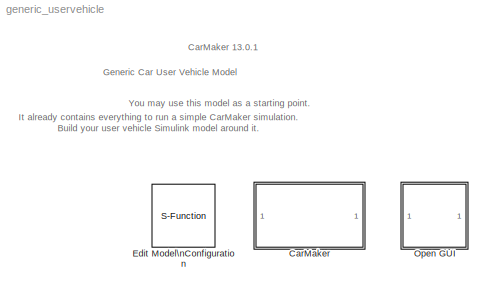
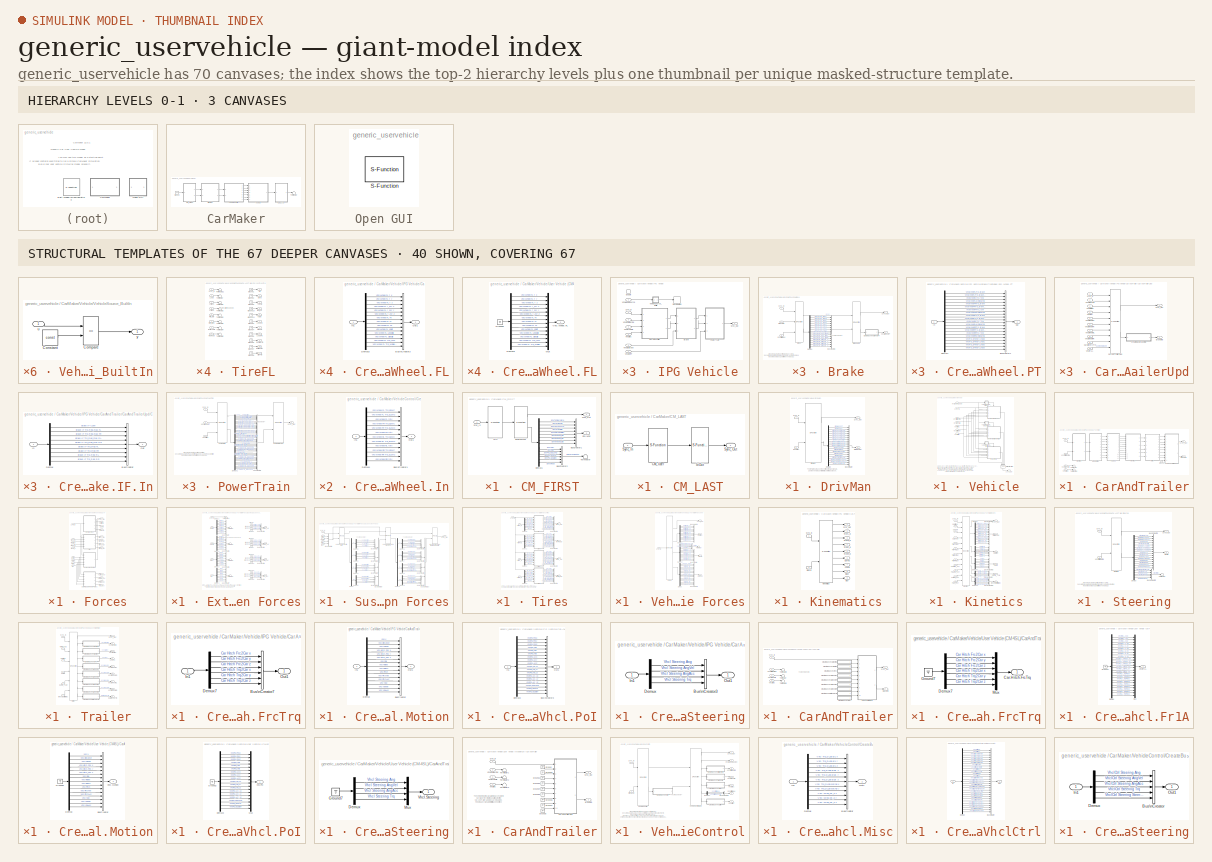
[diagram: thumbnail index - top-2 hierarchy levels (3 canvases) + 40 structural-template representatives of the remaining 67 canvases]
MODEL generic_uservehicle
KIND model
BLOCK [SubSystem] CarMaker
  Ports = []
  RequestExecContextInheritance = off
  SID = 1
  TreatAsAtomicUnit = on
BLOCK [SubSystem] CarMaker/CM_FIRST
  Ports = [1, 2]
  RequestExecContextInheritance = off
  SID = 1477
BLOCK [BusCreator] CarMaker/CM_FIRST/BusCreator1
  InheritFromInputs = on
  Inputs = 8
  Ports = [8, 1]
  SID = 1485
BLOCK [BusCreator] CarMaker/CM_FIRST/BusCreator2
  InheritFromInputs = on
  Inputs = 6
  Ports = [6, 1]
  SID = 1486
BLOCK [Demux] CarMaker/CM_FIRST/Demux1
  DisplayOption = none
  Outputs = 14
  Ports = [1, 14]
  SID = 1487
BLOCK [Outport] CarMaker/CM_FIRST/Env.Misc
  Port = 2
  SID = 1492
  VectorParamsAs1DForOutWhenUnconnected = off
BLOCK [S-Function] CarMaker/CM_FIRST/Environment
  EnableBusSupport = off
  FunctionName = CM_Sfun
  Parameters = 'Environment'
  Ports = [1, 2]
  SFcnIsStateOwnerBlock = off
  SFunctionDeploymentMode = off
  SID = 1488
BLOCK [S-Function] CarMaker/CM_FIRST/IoIn
  EnableBusSupport = off
  FunctionName = CM_Sfun
  Parameters = 'IoIn'
  Ports = [1, 1]
  SFcnIsStateOwnerBlock = off
  SFunctionDeploymentMode = off
  SID = 1489
BLOCK [Inport] CarMaker/CM_FIRST/Sync_In
  SID = 1484
BLOCK [Outport] CarMaker/CM_FIRST/Sync_Out
  SID = 1491
  VectorParamsAs1DForOutWhenUnconnected = off
BLOCK [Terminator] CarMaker/CM_FIRST/Terminator
  SID = 1490
BLOCK [SubSystem] CarMaker/CM_LAST
  Ports = [1, 1]
  RequestExecContextInheritance = off
  SID = 1478
BLOCK [S-Function] CarMaker/CM_LAST/CM_User
  EnableBusSupport = off
  FunctionName = CM_Sfun
  Parameters = 'CM_User'
  Ports = [1, 1]
  SFcnIsStateOwnerBlock = off
  SFunctionDeploymentMode = off
  SID = 1494
BLOCK [S-Function] CarMaker/CM_LAST/IoOut
  EnableBusSupport = off
  FunctionName = CM_Sfun
  Parameters = 'IoOut'
  Ports = [1, 1]
  SFcnIsStateOwnerBlock = off
  SFunctionDeploymentMode = off
  SID = 1495
BLOCK [Inport] CarMaker/CM_LAST/Sync_In
  SID = 1493
BLOCK [Outport] CarMaker/CM_LAST/Sync_Out
  SID = 1496
  VectorParamsAs1DForOutWhenUnconnected = off
BLOCK [SubSystem] CarMaker/DrivMan
  Ports = [2, 2]
  RequestExecContextInheritance = off
  SID = 1479
BLOCK [BusCreator] CarMaker/DrivMan/BusCreator
  InheritFromInputs = on
  Inputs = 20
  Ports = [20, 1]
  SID = 1499
BLOCK [Demux] CarMaker/DrivMan/Demux
  DisplayOption = none
  Outputs = 20
  Ports = [1, 20]
  SID = 1500
BLOCK [S-Function] CarMaker/DrivMan/DrivMan
  EnableBusSupport = off
  FunctionName = CM_Sfun
  Parameters = 'DrivMan'
  Ports = [2, 2]
  SFcnIsStateOwnerBlock = off
  SFunctionDeploymentMode = off
  SID = 1501
BLOCK [Outport] CarMaker/DrivMan/DrivMan.Out
  Port = 2
  SID = 1503
  VectorParamsAs1DForOutWhenUnconnected = off
BLOCK [Inport] CarMaker/DrivMan/Env.Misc
  Port = 2
  SID = 1498
BLOCK [Inport] CarMaker/DrivMan/Sync_In
  SID = 1497
BLOCK [Outport] CarMaker/DrivMan/Sync_Out
  SID = 1502
  VectorParamsAs1DForOutWhenUnconnected = off
BLOCK [Ground] CarMaker/Ground
  SID = 1480
BLOCK [Terminator] CarMaker/Terminator
  SID = 1482
BLOCK [SubSystem] CarMaker/Vehicle
  Ports = [7, 1]
  RequestExecContextInheritance = off
  SID = 1984
BLOCK [SubSystem] CarMaker/Vehicle/IPG Vehicle
  Ports = [7, 1, 1]
  RequestExecContextInheritance = off
  SID = 2639
BLOCK [SubSystem] CarMaker/Vehicle/IPG Vehicle/Brake
  Ports = [3, 2]
  RequestExecContextInheritance = off
  SID = 2648
BLOCK [S-Function] CarMaker/Vehicle/IPG Vehicle/Brake/Brake
  EnableBusSupport = off
  FunctionName = CM_Sfun
  Parameters = 'Brake'
  Ports = [3, 2]
  SFcnIsStateOwnerBlock = off
  SFunctionDeploymentMode = off
  SID = 2652
BLOCK [Inport] CarMaker/Vehicle/IPG Vehicle/Brake/Brake.IF.In
  Port = 2
  SID = 2650
BLOCK [S-Function] CarMaker/Vehicle/IPG Vehicle/Brake/BrakeUpd
  EnableBusSupport = off
  FunctionName = CM_Sfun
  Parameters = 'BrakeUpd'
  Ports = [2, 2]
  SFcnIsStateOwnerBlock = off
  SFunctionDeploymentMode = off
  SID = 2653
BLOCK [BusCreator] CarMaker/Vehicle/IPG Vehicle/Brake/BusCreator1
  InheritFromInputs = on
  Inputs = 16
  Ports = [16, 1]
  SID = 2654
BLOCK [SubSystem] CarMaker/Vehicle/IPG Vehicle/Brake/CreateBus Vhcl.Wheel.PT
  Ports = [1, 1]
  RequestExecContextInheritance = off
  SID = 2655
BLOCK [BusCreator] CarMaker/Vehicle/IPG Vehicle/Brake/CreateBus Vhcl.Wheel.PT/BusCreator1
  InheritFromInputs = on
  Inputs = 20
  Ports = [20, 1]
  SID = 2657
BLOCK [Demux] CarMaker/Vehicle/IPG Vehicle/Brake/CreateBus Vhcl.Wheel.PT/Demux1
  DisplayOption = none
  Outputs = 20
  Ports = [1, 20]
  SID = 2658
BLOCK [Inport] CarMaker/Vehicle/IPG Vehicle/Brake/CreateBus Vhcl.Wheel.PT/In
  SID = 2656
BLOCK [Outport] CarMaker/Vehicle/IPG Vehicle/Brake/CreateBus Vhcl.Wheel.PT/Out
  SID = 2659
  VectorParamsAs1DForOutWhenUnconnected = off
BLOCK [Demux] CarMaker/Vehicle/IPG Vehicle/Brake/Demux
  DisplayOption = none
  Outputs = 16
  Ports = [1, 16]
  SID = 2660
BLOCK [Inport] CarMaker/Vehicle/IPG Vehicle/Brake/Sync_In
  SID = 2649
BLOCK [Outport] CarMaker/Vehicle/IPG Vehicle/Brake/Sync_Out
  SID = 2661
  VectorParamsAs1DForOutWhenUnconnected = off
BLOCK [Outport] CarMaker/Vehicle/IPG Vehicle/Brake/Vhcl.Wheel.PT
  Port = 2
  SID = 2662
  VectorParamsAs1DForOutWhenUnconnected = off
BLOCK [Inport] CarMaker/Vehicle/IPG Vehicle/Brake/VhclCtrl.Brake
  Port = 3
  SID = 2651
BLOCK [SubSystem] CarMaker/Vehicle/IPG Vehicle/CarAndTrailer
  Ports = [4, 2]
  RequestExecContextInheritance = off
  SID = 2665
BLOCK [Outport] CarMaker/Vehicle/IPG Vehicle/CarAndTrailer/Brake.IF.In
  Port = 2
  SID = 3065
  VectorParamsAs1DForOutWhenUnconnected = off
BLOCK [SubSystem] CarMaker/Vehicle/IPG Vehicle/CarAndTrailer/CarAndTrailerUpd
  Ports = [10, 2]
  RequestExecContextInheritance = off
  SID = 2670
BLOCK [Outport] CarMaker/Vehicle/IPG Vehicle/CarAndTrailer/CarAndTrailerUpd/Brake.IF.In
  Port = 2
  SID = 2688
  VectorParamsAs1DForOutWhenUnconnected = off
BLOCK [Inport] CarMaker/Vehicle/IPG Vehicle/CarAndTrailer/CarAndTrailerUpd/Car.Hitch.FrcTrq
  Port = 9
  SID = 2679
BLOCK [S-Function] CarMaker/Vehicle/IPG Vehicle/CarAndTrailer/CarAndTrailerUpd/CarAndTrailerUpd
  EnableBusSupport = off
  FunctionName = CM_Sfun
  Parameters = 'CarAndTrUpd'
  Ports = [10, 2]
  SFcnIsStateOwnerBlock = off
  SFunctionDeploymentMode = off
  SID = 2681
BLOCK [SubSystem] CarMaker/Vehicle/IPG Vehicle/CarAndTrailer/CarAndTrailerUpd/CreateBus Brake.IF.In
  Ports = [1, 1]
  RequestExecContextInheritance = off
  SID = 2682
BLOCK [BusCreator] CarMaker/Vehicle/IPG Vehicle/CarAndTrailer/CarAndTrailerUpd/CreateBus Brake.IF.In/BusCreator
  InheritFromInputs = on
  Inputs = 9
  Ports = [9, 1]
  SID = 2684
BLOCK [Demux] CarMaker/Vehicle/IPG Vehicle/CarAndTrailer/CarAndTrailerUpd/CreateBus Brake.IF.In/Demux
  DisplayOption = none
  Outputs = 9
  Ports = [1, 9]
  SID = 2685
BLOCK [Inport] CarMaker/Vehicle/IPG Vehicle/CarAndTrailer/CarAndTrailerUpd/CreateBus Brake.IF.In/In
  SID = 2683
BLOCK [Outport] CarMaker/Vehicle/IPG Vehicle/CarAndTrailer/CarAndTrailerUpd/CreateBus Brake.IF.In/Out
  SID = 2686
  VectorParamsAs1DForOutWhenUnconnected = off
BLOCK [Inport] CarMaker/Vehicle/IPG Vehicle/CarAndTrailer/CarAndTrailerUpd/Sync_In
  SID = 2671
BLOCK [Outport] CarMaker/Vehicle/IPG Vehicle/CarAndTrailer/CarAndTrailerUpd/Sync_Out
  SID = 2687
  VectorParamsAs1DForOutWhenUnconnected = off
BLOCK [Inport] CarMaker/Vehicle/IPG Vehicle/CarAndTrailer/CarAndTrailerUpd/Vhcl.Fr1A
  Port = 10
  SID = 2680
BLOCK [Inport] CarMaker/Vehicle/IPG Vehicle/CarAndTrailer/CarAndTrailerUpd/Vhcl.Motion
  Port = 3
  SID = 2673
BLOCK [Inport] CarMaker/Vehicle/IPG Vehicle/CarAndTrailer/CarAndTrailerUpd/Vhcl.PoI
  Port = 4
  SID = 2674
BLOCK [Inport] CarMaker/Vehicle/IPG Vehicle/CarAndTrailer/CarAndTrailerUpd/Vhcl.Steering
  Port = 2
  SID = 2672
BLOCK [Inport] CarMaker/Vehicle/IPG Vehicle/CarAndTrailer/CarAndTrailerUpd/Vhcl.Wheel.FL
  Port = 5
  SID = 2675
BLOCK [Inport] CarMaker/Vehicle/IPG Vehicle/CarAndTrailer/CarAndTrailerUpd/Vhcl.Wheel.FR
  Port = 6
  SID = 2676
BLOCK [Inport] CarMaker/Vehicle/IPG Vehicle/CarAndTrailer/CarAndTrailerUpd/Vhcl.Wheel.RL
  Port = 7
  SID = 2677
BLOCK [Inport] CarMaker/Vehicle/IPG Vehicle/CarAndTrailer/CarAndTrailerUpd/Vhcl.Wheel.RR
  Port = 8
  SID = 2678
BLOCK [SubSystem] CarMaker/Vehicle/IPG Vehicle/CarAndTrailer/Forces
  Ports = [9, 12]
  RequestExecContextInheritance = off
  SID = 2689
BLOCK [Outport] CarMaker/Vehicle/IPG Vehicle/CarAndTrailer/Forces/Car.Aero
  Port = 3
  SID = 2940
  VectorParamsAs1DForOutWhenUnconnected = off
BLOCK [Outport] CarMaker/Vehicle/IPG Vehicle/CarAndTrailer/Forces/Car.Load
  Port = 4
  SID = 2941
  VectorParamsAs1DForOutWhenUnconnected = off
BLOCK [Outport] CarMaker/Vehicle/IPG Vehicle/CarAndTrailer/Forces/Car.Virtual
  Port = 2
  SID = 2939
  VectorParamsAs1DForOutWhenUnconnected = off
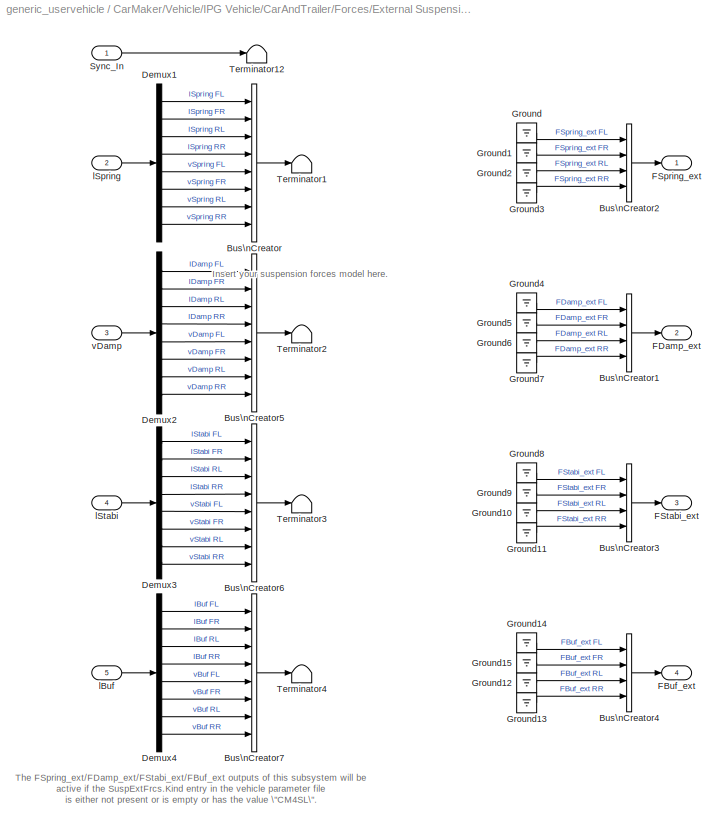
BLOCK [SubSystem] CarMaker/Vehicle/IPG Vehicle/CarAndTrailer/Forces/External Suspension Forces
  Ports = [5, 4]
  RequestExecContextInheritance = off
  SID = 2699
BLOCK [BusCreator] CarMaker/Vehicle/IPG Vehicle/CarAndTrailer/Forces/External Suspension Forces/Bus\nCreator
  DisplayOption = bar
  InheritFromInputs = on
  Inputs = 8
  Ports = [8, 1]
  SID = 2705
BLOCK [BusCreator] CarMaker/Vehicle/IPG Vehicle/CarAndTrailer/Forces/External Suspension Forces/Bus\nCreator1
  DisplayOption = bar
  InheritFromInputs = on
  Inputs = 4
  Ports = [4, 1]
  SID = 2706
BLOCK [BusCreator] CarMaker/Vehicle/IPG Vehicle/CarAndTrailer/Forces/External Suspension Forces/Bus\nCreator2
  DisplayOption = bar
  InheritFromInputs = on
  Inputs = 4
  Ports = [4, 1]
  SID = 2707
BLOCK [BusCreator] CarMaker/Vehicle/IPG Vehicle/CarAndTrailer/Forces/External Suspension Forces/Bus\nCreator3
  DisplayOption = bar
  InheritFromInputs = on
  Inputs = 4
  Ports = [4, 1]
  SID = 2708
BLOCK [BusCreator] CarMaker/Vehicle/IPG Vehicle/CarAndTrailer/Forces/External Suspension Forces/Bus\nCreator4
  DisplayOption = bar
  InheritFromInputs = on
  Inputs = 4
  Ports = [4, 1]
  SID = 2709
BLOCK [BusCreator] CarMaker/Vehicle/IPG Vehicle/CarAndTrailer/Forces/External Suspension Forces/Bus\nCreator5
  DisplayOption = bar
  InheritFromInputs = on
  Inputs = 8
  Ports = [8, 1]
  SID = 2710
BLOCK [BusCreator] CarMaker/Vehicle/IPG Vehicle/CarAndTrailer/Forces/External Suspension Forces/Bus\nCreator6
  DisplayOption = bar
  InheritFromInputs = on
  Inputs = 8
  Ports = [8, 1]
  SID = 2711
BLOCK [BusCreator] CarMaker/Vehicle/IPG Vehicle/CarAndTrailer/Forces/External Suspension Forces/Bus\nCreator7
  DisplayOption = bar
  InheritFromInputs = on
  Inputs = 8
  Ports = [8, 1]
  SID = 2712
BLOCK [Demux] CarMaker/Vehicle/IPG Vehicle/CarAndTrailer/Forces/External Suspension Forces/Demux1
  DisplayOption = none
  Outputs = 8
  Ports = [1, 8]
  SID = 2713
BLOCK [Demux] CarMaker/Vehicle/IPG Vehicle/CarAndTrailer/Forces/External Suspension Forces/Demux2
  DisplayOption = none
  Outputs = 8
  Ports = [1, 8]
  SID = 2714
BLOCK [Demux] CarMaker/Vehicle/IPG Vehicle/CarAndTrailer/Forces/External Suspension Forces/Demux3
  DisplayOption = none
  Outputs = 8
  Ports = [1, 8]
  SID = 2715
BLOCK [Demux] CarMaker/Vehicle/IPG Vehicle/CarAndTrailer/Forces/External Suspension Forces/Demux4
  DisplayOption = none
  Outputs = 8
  Ports = [1, 8]
  SID = 2716
BLOCK [Outport] CarMaker/Vehicle/IPG Vehicle/CarAndTrailer/Forces/External Suspension Forces/FBuf_ext
  Port = 4
  SID = 2741
  VectorParamsAs1DForOutWhenUnconnected = off
BLOCK [Outport] CarMaker/Vehicle/IPG Vehicle/CarAndTrailer/Forces/External Suspension Forces/FDamp_ext
  Port = 2
  SID = 2739
  VectorParamsAs1DForOutWhenUnconnected = off
BLOCK [Outport] CarMaker/Vehicle/IPG Vehicle/CarAndTrailer/Forces/External Suspension Forces/FSpring_ext
  SID = 2738
  VectorParamsAs1DForOutWhenUnconnected = off
BLOCK [Outport] CarMaker/Vehicle/IPG Vehicle/CarAndTrailer/Forces/External Suspension Forces/FStabi_ext
  Port = 3
  SID = 2740
  VectorParamsAs1DForOutWhenUnconnected = off
BLOCK [Ground] CarMaker/Vehicle/IPG Vehicle/CarAndTrailer/Forces/External Suspension Forces/Ground
  SID = 2717
BLOCK [Ground] CarMaker/Vehicle/IPG Vehicle/CarAndTrailer/Forces/External Suspension Forces/Ground1
  SID = 2718
BLOCK [Ground] CarMaker/Vehicle/IPG Vehicle/CarAndTrailer/Forces/External Suspension Forces/Ground10
  SID = 2719
BLOCK [Ground] CarMaker/Vehicle/IPG Vehicle/CarAndTrailer/Forces/External Suspension Forces/Ground11
  SID = 2720
BLOCK [Ground] CarMaker/Vehicle/IPG Vehicle/CarAndTrailer/Forces/External Suspension Forces/Ground12
  SID = 2721
BLOCK [Ground] CarMaker/Vehicle/IPG Vehicle/CarAndTrailer/Forces/External Suspension Forces/Ground13
  SID = 2722
BLOCK [Ground] CarMaker/Vehicle/IPG Vehicle/CarAndTrailer/Forces/External Suspension Forces/Ground14
  SID = 2723
BLOCK [Ground] CarMaker/Vehicle/IPG Vehicle/CarAndTrailer/Forces/External Suspension Forces/Ground15
  SID = 2724
BLOCK [Ground] CarMaker/Vehicle/IPG Vehicle/CarAndTrailer/Forces/External Suspension Forces/Ground2
  SID = 2725
BLOCK [Ground] CarMaker/Vehicle/IPG Vehicle/CarAndTrailer/Forces/External Suspension Forces/Ground3
  SID = 2726
BLOCK [Ground] CarMaker/Vehicle/IPG Vehicle/CarAndTrailer/Forces/External Suspension Forces/Ground4
  SID = 2727
BLOCK [Ground] CarMaker/Vehicle/IPG Vehicle/CarAndTrailer/Forces/External Suspension Forces/Ground5
  SID = 2728
BLOCK [Ground] CarMaker/Vehicle/IPG Vehicle/CarAndTrailer/Forces/External Suspension Forces/Ground6
  SID = 2729
BLOCK [Ground] CarMaker/Vehicle/IPG Vehicle/CarAndTrailer/Forces/External Suspension Forces/Ground7
  SID = 2730
BLOCK [Ground] CarMaker/Vehicle/IPG Vehicle/CarAndTrailer/Forces/External Suspension Forces/Ground8
  SID = 2731
BLOCK [Ground] CarMaker/Vehicle/IPG Vehicle/CarAndTrailer/Forces/External Suspension Forces/Ground9
  SID = 2732
BLOCK [Inport] CarMaker/Vehicle/IPG Vehicle/CarAndTrailer/Forces/External Suspension Forces/Sync_In
  SID = 2700
BLOCK [Terminator] CarMaker/Vehicle/IPG Vehicle/CarAndTrailer/Forces/External Suspension Forces/Terminator1
  SID = 2733
BLOCK [Terminator] CarMaker/Vehicle/IPG Vehicle/CarAndTrailer/Forces/External Suspension Forces/Terminator12
  SID = 2734
BLOCK [Terminator] CarMaker/Vehicle/IPG Vehicle/CarAndTrailer/Forces/External Suspension Forces/Terminator2
  SID = 2735
BLOCK [Terminator] CarMaker/Vehicle/IPG Vehicle/CarAndTrailer/Forces/External Suspension Forces/Terminator3
  SID = 2736
BLOCK [Terminator] CarMaker/Vehicle/IPG Vehicle/CarAndTrailer/Forces/External Suspension Forces/Terminator4
  SID = 2737
BLOCK [Inport] CarMaker/Vehicle/IPG Vehicle/CarAndTrailer/Forces/External Suspension Forces/lBuf
  Port = 5
  SID = 2704
BLOCK [Inport] CarMaker/Vehicle/IPG Vehicle/CarAndTrailer/Forces/External Suspension Forces/lSpring
  Port = 2
  SID = 2701
BLOCK [Inport] CarMaker/Vehicle/IPG Vehicle/CarAndTrailer/Forces/External Suspension Forces/lStabi
  Port = 4
  SID = 2703
BLOCK [Inport] CarMaker/Vehicle/IPG Vehicle/CarAndTrailer/Forces/External Suspension Forces/vDamp
  Port = 3
  SID = 2702
BLOCK [Outport] CarMaker/Vehicle/IPG Vehicle/CarAndTrailer/Forces/FBuf_ext
  Port = 12
  SID = 2949
  VectorParamsAs1DForOutWhenUnconnected = off
BLOCK [Outport] CarMaker/Vehicle/IPG Vehicle/CarAndTrailer/Forces/FDamp_ext
  Port = 10
  SID = 2947
  VectorParamsAs1DForOutWhenUnconnected = off
BLOCK [Outport] CarMaker/Vehicle/IPG Vehicle/CarAndTrailer/Forces/FSpring_ext
  Port = 9
  SID = 2946
  VectorParamsAs1DForOutWhenUnconnected = off
BLOCK [Outport] CarMaker/Vehicle/IPG Vehicle/CarAndTrailer/Forces/FStabi_ext
  Port = 11
  SID = 2948
  VectorParamsAs1DForOutWhenUnconnected = off
BLOCK [SubSystem] CarMaker/Vehicle/IPG Vehicle/CarAndTrailer/Forces/Suspension Forces
  Ports = [5, 1]
  RequestExecContextInheritance = off
  SID = 3176
BLOCK [BusCreator] CarMaker/Vehicle/IPG Vehicle/CarAndTrailer/Forces/Suspension Forces/Bus\nCreator
  DisplayOption = bar
  InheritFromInputs = on
  Inputs = 4
  Ports = [4, 1]
  SID = 3182
BLOCK [BusCreator] CarMaker/Vehicle/IPG Vehicle/CarAndTrailer/Forces/Suspension Forces/Bus\nCreator1
  DisplayOption = bar
  InheritFromInputs = on
  Inputs = 4
  Ports = [4, 1]
  SID = 3183
BLOCK [BusCreator] CarMaker/Vehicle/IPG Vehicle/CarAndTrailer/Forces/Suspension Forces/Bus\nCreator10
  DisplayOption = bar
  InheritFromInputs = on
  Inputs = 4
  Ports = [4, 1]
  SID = 3184
BLOCK [BusCreator] CarMaker/Vehicle/IPG Vehicle/CarAndTrailer/Forces/Suspension Forces/Bus\nCreator2
  DisplayOption = bar
  InheritFromInputs = on
  Inputs = 4
  Ports = [4, 1]
  SID = 3185
BLOCK [BusCreator] CarMaker/Vehicle/IPG Vehicle/CarAndTrailer/Forces/Suspension Forces/Bus\nCreator3
  DisplayOption = bar
  InheritFromInputs = on
  Inputs = 4
  Ports = [4, 1]
  SID = 3186
BLOCK [BusCreator] CarMaker/Vehicle/IPG Vehicle/CarAndTrailer/Forces/Suspension Forces/Bus\nCreator4
  DisplayOption = bar
  InheritFromInputs = on
  Inputs = 6
  Ports = [6, 1]
  SID = 3187
BLOCK [BusCreator] CarMaker/Vehicle/IPG Vehicle/CarAndTrailer/Forces/Suspension Forces/Bus\nCreator5
  DisplayOption = bar
  InheritFromInputs = on
  Inputs = 6
  Ports = [6, 1]
  SID = 3188
BLOCK [BusCreator] CarMaker/Vehicle/IPG Vehicle/CarAndTrailer/Forces/Suspension Forces/Bus\nCreator6
  DisplayOption = bar
  InheritFromInputs = on
  Inputs = 6
  Ports = [6, 1]
  SID = 3189
BLOCK [BusCreator] CarMaker/Vehicle/IPG Vehicle/CarAndTrailer/Forces/Suspension Forces/Bus\nCreator7
  DisplayOption = bar
  InheritFromInputs = on
  Inputs = 6
  Ports = [6, 1]
  SID = 3190
BLOCK [BusCreator] CarMaker/Vehicle/IPG Vehicle/CarAndTrailer/Forces/Suspension Forces/Bus\nCreator8
  DisplayOption = bar
  InheritFromInputs = on
  Inputs = 4
  Ports = [4, 1]
  SID = 3191
BLOCK [BusCreator] CarMaker/Vehicle/IPG Vehicle/CarAndTrailer/Forces/Suspension Forces/Bus\nCreator9
  DisplayOption = bar
  InheritFromInputs = on
  Inputs = 4
  Ports = [4, 1]
  SID = 3192
BLOCK [Demux] CarMaker/Vehicle/IPG Vehicle/CarAndTrailer/Forces/Suspension Forces/Demux
  Ports = [1, 4]
  SID = 3193
BLOCK [Demux] CarMaker/Vehicle/IPG Vehicle/CarAndTrailer/Forces/Suspension Forces/Demux1
  Ports = [1, 4]
  SID = 3194
BLOCK [Demux] CarMaker/Vehicle/IPG Vehicle/CarAndTrailer/Forces/Suspension Forces/Demux2
  Ports = [1, 4]
  SID = 3195
BLOCK [Demux] CarMaker/Vehicle/IPG Vehicle/CarAndTrailer/Forces/Suspension Forces/Demux3
  Ports = [1, 4]
  SID = 3196
BLOCK [Demux] CarMaker/Vehicle/IPG Vehicle/CarAndTrailer/Forces/Suspension Forces/Demux4
  Ports = [1, 4]
  SID = 3197
BLOCK [Demux] CarMaker/Vehicle/IPG Vehicle/CarAndTrailer/Forces/Suspension Forces/Demux5
  Ports = [1, 4]
  SID = 3198
BLOCK [Demux] CarMaker/Vehicle/IPG Vehicle/CarAndTrailer/Forces/Suspension Forces/Demux6
  Outputs = 6
  Ports = [1, 6]
  SID = 3199
BLOCK [Demux] CarMaker/Vehicle/IPG Vehicle/CarAndTrailer/Forces/Suspension Forces/Demux7
  Outputs = 6
  Ports = [1, 6]
  SID = 3200
BLOCK [Demux] CarMaker/Vehicle/IPG Vehicle/CarAndTrailer/Forces/Suspension Forces/Demux8
  Outputs = 6
  Ports = [1, 6]
  SID = 3201
BLOCK [Demux] CarMaker/Vehicle/IPG Vehicle/CarAndTrailer/Forces/Suspension Forces/Demux9
  Outputs = 6
  Ports = [1, 6]
  SID = 3202
BLOCK [S-Function] CarMaker/Vehicle/IPG Vehicle/CarAndTrailer/Forces/Suspension Forces/Suspension Control Unit
  EnableBusSupport = off
  FunctionName = CM_Sfun
  Parameters = 'ForcesSuspControl'
  Ports = [2, 2]
  SFcnIsStateOwnerBlock = off
  SFunctionDeploymentMode = off
  SID = 3203
BLOCK [S-Function] CarMaker/Vehicle/IPG Vehicle/CarAndTrailer/Forces/Suspension Forces/Suspension Force Elements
  EnableBusSupport = off
  FunctionName = CM_Sfun
  Parameters = 'ForcesSusp'
  Ports = [3, 2]
  SFcnIsStateOwnerBlock = off
  SFunctionDeploymentMode = off
  SID = 3204
BLOCK [S-Function] CarMaker/Vehicle/IPG Vehicle/CarAndTrailer/Forces/Suspension Forces/Suspension Force Elements Update
  EnableBusSupport = off
  FunctionName = CM_Sfun
  Parameters = 'ForcesSuspUpd'
  Ports = [2, 1]
  SFcnIsStateOwnerBlock = off
  SFunctionDeploymentMode = off
  SID = 3205
BLOCK [Inport] CarMaker/Vehicle/IPG Vehicle/CarAndTrailer/Forces/Suspension Forces/Sync_In
  SID = 3177
BLOCK [Outport] CarMaker/Vehicle/IPG Vehicle/CarAndTrailer/Forces/Suspension Forces/Sync_Out
  SID = 3206
  VectorParamsAs1DForOutWhenUnconnected = off
BLOCK [Inport] CarMaker/Vehicle/IPG Vehicle/CarAndTrailer/Forces/Suspension Forces/lBuf
  Port = 5
  SID = 3181
BLOCK [Inport] CarMaker/Vehicle/IPG Vehicle/CarAndTrailer/Forces/Suspension Forces/lSpring
  Port = 2
  SID = 3178
BLOCK [Inport] CarMaker/Vehicle/IPG Vehicle/CarAndTrailer/Forces/Suspension Forces/lStabi
  Port = 4
  SID = 3180
BLOCK [Inport] CarMaker/Vehicle/IPG Vehicle/CarAndTrailer/Forces/Suspension Forces/vDamp
  Port = 3
  SID = 3179
BLOCK [Inport] CarMaker/Vehicle/IPG Vehicle/CarAndTrailer/Forces/Sync_In
  SID = 2690
BLOCK [Outport] CarMaker/Vehicle/IPG Vehicle/CarAndTrailer/Forces/Sync_Out
  SID = 2938
  VectorParamsAs1DForOutWhenUnconnected = off
BLOCK [Inport] CarMaker/Vehicle/IPG Vehicle/CarAndTrailer/Forces/TireFL_In
  Port = 2
  SID = 2691
BLOCK [Outport] CarMaker/Vehicle/IPG Vehicle/CarAndTrailer/Forces/TireFL_Out
  Port = 5
  SID = 2942
  VectorParamsAs1DForOutWhenUnconnected = off
BLOCK [Inport] CarMaker/Vehicle/IPG Vehicle/CarAndTrailer/Forces/TireFR_In
  Port = 3
  SID = 2692
BLOCK [Outport] CarMaker/Vehicle/IPG Vehicle/CarAndTrailer/Forces/TireFR_Out
  Port = 6
  SID = 2943
  VectorParamsAs1DForOutWhenUnconnected = off
BLOCK [Inport] CarMaker/Vehicle/IPG Vehicle/CarAndTrailer/Forces/TireRL_In
  Port = 4
  SID = 2693
BLOCK [Outport] CarMaker/Vehicle/IPG Vehicle/CarAndTrailer/Forces/TireRL_Out
  Port = 7
  SID = 2944
  VectorParamsAs1DForOutWhenUnconnected = off
BLOCK [Inport] CarMaker/Vehicle/IPG Vehicle/CarAndTrailer/Forces/TireRR_In
  Port = 5
  SID = 2694
BLOCK [Outport] CarMaker/Vehicle/IPG Vehicle/CarAndTrailer/Forces/TireRR_Out
  Port = 8
  SID = 2945
  VectorParamsAs1DForOutWhenUnconnected = off
BLOCK [SubSystem] CarMaker/Vehicle/IPG Vehicle/CarAndTrailer/Forces/Tires
  Ports = [5, 4]
  RequestExecContextInheritance = off
  SID = 2744
BLOCK [BusCreator] CarMaker/Vehicle/IPG Vehicle/CarAndTrailer/Forces/Tires/Bus\nCreator1
  DisplayOption = bar
  InheritFromInputs = on
  Inputs = 11
  Ports = [11, 1]
  SID = 2750
BLOCK [BusCreator] CarMaker/Vehicle/IPG Vehicle/CarAndTrailer/Forces/Tires/Bus\nCreator2
  DisplayOption = bar
  InheritFromInputs = on
  Inputs = 11
  Ports = [11, 1]
  SID = 2751
BLOCK [BusCreator] CarMaker/Vehicle/IPG Vehicle/CarAndTrailer/Forces/Tires/Bus\nCreator3
  DisplayOption = bar
  InheritFromInputs = on
  Inputs = 11
  Ports = [11, 1]
  SID = 2752
BLOCK [BusCreator] CarMaker/Vehicle/IPG Vehicle/CarAndTrailer/Forces/Tires/Bus\nCreator4
  DisplayOption = bar
  InheritFromInputs = on
  Inputs = 11
  Ports = [11, 1]
  SID = 2753
BLOCK [Demux] CarMaker/Vehicle/IPG Vehicle/CarAndTrailer/Forces/Tires/Demux1
  DisplayOption = none
  Outputs = 7
  Ports = [1, 7]
  SID = 2754
BLOCK [Demux] CarMaker/Vehicle/IPG Vehicle/CarAndTrailer/Forces/Tires/Demux2
  DisplayOption = none
  Outputs = 7
  Ports = [1, 7]
  SID = 2755
BLOCK [Demux] CarMaker/Vehicle/IPG Vehicle/CarAndTrailer/Forces/Tires/Demux3
  DisplayOption = none
  Outputs = 7
  Ports = [1, 7]
  SID = 2756
BLOCK [Demux] CarMaker/Vehicle/IPG Vehicle/CarAndTrailer/Forces/Tires/Demux8
  DisplayOption = none
  Outputs = 7
  Ports = [1, 7]
  SID = 2757
BLOCK [Inport] CarMaker/Vehicle/IPG Vehicle/CarAndTrailer/Forces/Tires/Sync_In
  SID = 2745
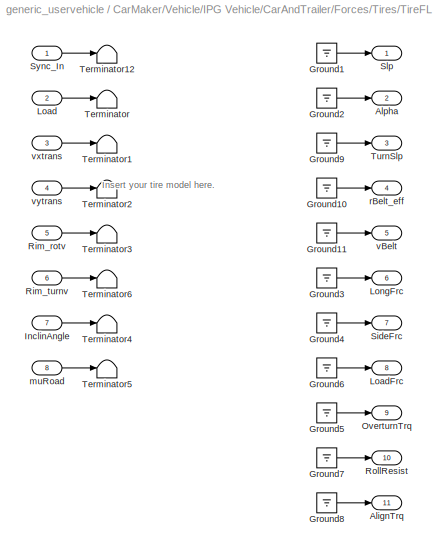
BLOCK [SubSystem] CarMaker/Vehicle/IPG Vehicle/CarAndTrailer/Forces/Tires/TireFL
  Ports = [8, 11]
  RequestExecContextInheritance = off
  SID = 2758
BLOCK [Outport] CarMaker/Vehicle/IPG Vehicle/CarAndTrailer/Forces/Tires/TireFL/AlignTrq
  Port = 11
  SID = 2796
  VectorParamsAs1DForOutWhenUnconnected = off
BLOCK [Outport] CarMaker/Vehicle/IPG Vehicle/CarAndTrailer/Forces/Tires/TireFL/Alpha
  Port = 2
  SID = 2787
  VectorParamsAs1DForOutWhenUnconnected = off
BLOCK [Ground] CarMaker/Vehicle/IPG Vehicle/CarAndTrailer/Forces/Tires/TireFL/Ground1
  SID = 2767
BLOCK [Ground] CarMaker/Vehicle/IPG Vehicle/CarAndTrailer/Forces/Tires/TireFL/Ground10
  SID = 2768
BLOCK [Ground] CarMaker/Vehicle/IPG Vehicle/CarAndTrailer/Forces/Tires/TireFL/Ground11
  SID = 2769
BLOCK [Ground] CarMaker/Vehicle/IPG Vehicle/CarAndTrailer/Forces/Tires/TireFL/Ground2
  SID = 2770
BLOCK [Ground] CarMaker/Vehicle/IPG Vehicle/CarAndTrailer/Forces/Tires/TireFL/Ground3
  SID = 2771
BLOCK [Ground] CarMaker/Vehicle/IPG Vehicle/CarAndTrailer/Forces/Tires/TireFL/Ground4
  SID = 2772
BLOCK [Ground] CarMaker/Vehicle/IPG Vehicle/CarAndTrailer/Forces/Tires/TireFL/Ground5
  SID = 2773
BLOCK [Ground] CarMaker/Vehicle/IPG Vehicle/CarAndTrailer/Forces/Tires/TireFL/Ground6
  SID = 2774
BLOCK [Ground] CarMaker/Vehicle/IPG Vehicle/CarAndTrailer/Forces/Tires/TireFL/Ground7
  SID = 2775
BLOCK [Ground] CarMaker/Vehicle/IPG Vehicle/CarAndTrailer/Forces/Tires/TireFL/Ground8
  SID = 2776
BLOCK [Ground] CarMaker/Vehicle/IPG Vehicle/CarAndTrailer/Forces/Tires/TireFL/Ground9
  SID = 2777
BLOCK [Inport] CarMaker/Vehicle/IPG Vehicle/CarAndTrailer/Forces/Tires/TireFL/InclinAngle
  Port = 7
  SID = 2765
BLOCK [Inport] CarMaker/Vehicle/IPG Vehicle/CarAndTrailer/Forces/Tires/TireFL/Load
  Port = 2
  SID = 2760
BLOCK [Outport] CarMaker/Vehicle/IPG Vehicle/CarAndTrailer/Forces/Tires/TireFL/LoadFrc
  Port = 8
  SID = 2793
  VectorParamsAs1DForOutWhenUnconnected = off
BLOCK [Outport] CarMaker/Vehicle/IPG Vehicle/CarAndTrailer/Forces/Tires/TireFL/LongFrc
  Port = 6
  SID = 2791
  VectorParamsAs1DForOutWhenUnconnected = off
BLOCK [Outport] CarMaker/Vehicle/IPG Vehicle/CarAndTrailer/Forces/Tires/TireFL/OverturnTrq
  Port = 9
  SID = 2794
  VectorParamsAs1DForOutWhenUnconnected = off
BLOCK [Inport] CarMaker/Vehicle/IPG Vehicle/CarAndTrailer/Forces/Tires/TireFL/Rim_rotv
  Port = 5
  SID = 2763
BLOCK [Inport] CarMaker/Vehicle/IPG Vehicle/CarAndTrailer/Forces/Tires/TireFL/Rim_turnv
  Port = 6
  SID = 2764
BLOCK [Outport] CarMaker/Vehicle/IPG Vehicle/CarAndTrailer/Forces/Tires/TireFL/RollResist
  Port = 10
  SID = 2795
  VectorParamsAs1DForOutWhenUnconnected = off
BLOCK [Outport] CarMaker/Vehicle/IPG Vehicle/CarAndTrailer/Forces/Tires/TireFL/SideFrc
  Port = 7
  SID = 2792
  VectorParamsAs1DForOutWhenUnconnected = off
BLOCK [Outport] CarMaker/Vehicle/IPG Vehicle/CarAndTrailer/Forces/Tires/TireFL/Slp
  SID = 2786
  VectorParamsAs1DForOutWhenUnconnected = off
BLOCK [Inport] CarMaker/Vehicle/IPG Vehicle/CarAndTrailer/Forces/Tires/TireFL/Sync_In
  SID = 2759
BLOCK [Terminator] CarMaker/Vehicle/IPG Vehicle/CarAndTrailer/Forces/Tires/TireFL/Terminator
  SID = 2778
BLOCK [Terminator] CarMaker/Vehicle/IPG Vehicle/CarAndTrailer/Forces/Tires/TireFL/Terminator1
  SID = 2779
BLOCK [Terminator] CarMaker/Vehicle/IPG Vehicle/CarAndTrailer/Forces/Tires/TireFL/Terminator12
  SID = 2780
BLOCK [Terminator] CarMaker/Vehicle/IPG Vehicle/CarAndTrailer/Forces/Tires/TireFL/Terminator2
  SID = 2781
BLOCK [Terminator] CarMaker/Vehicle/IPG Vehicle/CarAndTrailer/Forces/Tires/TireFL/Terminator3
  SID = 2782
BLOCK [Terminator] CarMaker/Vehicle/IPG Vehicle/CarAndTrailer/Forces/Tires/TireFL/Terminator4
  SID = 2783
BLOCK [Terminator] CarMaker/Vehicle/IPG Vehicle/CarAndTrailer/Forces/Tires/TireFL/Terminator5
  SID = 2784
BLOCK [Terminator] CarMaker/Vehicle/IPG Vehicle/CarAndTrailer/Forces/Tires/TireFL/Terminator6
  SID = 2785
BLOCK [Outport] CarMaker/Vehicle/IPG Vehicle/CarAndTrailer/Forces/Tires/TireFL/TurnSlp
  Port = 3
  SID = 2788
  VectorParamsAs1DForOutWhenUnconnected = off
BLOCK [Inport] CarMaker/Vehicle/IPG Vehicle/CarAndTrailer/Forces/Tires/TireFL/muRoad
  Port = 8
  SID = 2766
BLOCK [Outport] CarMaker/Vehicle/IPG Vehicle/CarAndTrailer/Forces/Tires/TireFL/rBelt_eff
  Port = 4
  SID = 2789
  VectorParamsAs1DForOutWhenUnconnected = off
BLOCK [Outport] CarMaker/Vehicle/IPG Vehicle/CarAndTrailer/Forces/Tires/TireFL/vBelt
  Port = 5
  SID = 2790
  VectorParamsAs1DForOutWhenUnconnected = off
BLOCK [Inport] CarMaker/Vehicle/IPG Vehicle/CarAndTrailer/Forces/Tires/TireFL/vxtrans
  Port = 3
  SID = 2761
BLOCK [Inport] CarMaker/Vehicle/IPG Vehicle/CarAndTrailer/Forces/Tires/TireFL/vytrans
  Port = 4
  SID = 2762
BLOCK [Inport] CarMaker/Vehicle/IPG Vehicle/CarAndTrailer/Forces/Tires/TireFL_In
  Port = 2
  SID = 2746
BLOCK [Outport] CarMaker/Vehicle/IPG Vehicle/CarAndTrailer/Forces/Tires/TireFL_Out
  SID = 2918
  VectorParamsAs1DForOutWhenUnconnected = off
BLOCK [SubSystem] CarMaker/Vehicle/IPG Vehicle/CarAndTrailer/Forces/Tires/TireFR
  Ports = [8, 11]
  RequestExecContextInheritance = off
  SID = 2798
BLOCK [Outport] CarMaker/Vehicle/IPG Vehicle/CarAndTrailer/Forces/Tires/TireFR/AlignTrq
  Port = 11
  SID = 2836
  VectorParamsAs1DForOutWhenUnconnected = off
BLOCK [Outport] CarMaker/Vehicle/IPG Vehicle/CarAndTrailer/Forces/Tires/TireFR/Alpha
  Port = 2
  SID = 2827
  VectorParamsAs1DForOutWhenUnconnected = off
BLOCK [Ground] CarMaker/Vehicle/IPG Vehicle/CarAndTrailer/Forces/Tires/TireFR/Ground1
  SID = 2807
BLOCK [Ground] CarMaker/Vehicle/IPG Vehicle/CarAndTrailer/Forces/Tires/TireFR/Ground10
  SID = 2808
BLOCK [Ground] CarMaker/Vehicle/IPG Vehicle/CarAndTrailer/Forces/Tires/TireFR/Ground11
  SID = 2809
BLOCK [Ground] CarMaker/Vehicle/IPG Vehicle/CarAndTrailer/Forces/Tires/TireFR/Ground2
  SID = 2810
BLOCK [Ground] CarMaker/Vehicle/IPG Vehicle/CarAndTrailer/Forces/Tires/TireFR/Ground3
  SID = 2811
BLOCK [Ground] CarMaker/Vehicle/IPG Vehicle/CarAndTrailer/Forces/Tires/TireFR/Ground4
  SID = 2812
BLOCK [Ground] CarMaker/Vehicle/IPG Vehicle/CarAndTrailer/Forces/Tires/TireFR/Ground5
  SID = 2813
BLOCK [Ground] CarMaker/Vehicle/IPG Vehicle/CarAndTrailer/Forces/Tires/TireFR/Ground6
  SID = 2814
BLOCK [Ground] CarMaker/Vehicle/IPG Vehicle/CarAndTrailer/Forces/Tires/TireFR/Ground7
  SID = 2815
BLOCK [Ground] CarMaker/Vehicle/IPG Vehicle/CarAndTrailer/Forces/Tires/TireFR/Ground8
  SID = 2816
BLOCK [Ground] CarMaker/Vehicle/IPG Vehicle/CarAndTrailer/Forces/Tires/TireFR/Ground9
  SID = 2817
BLOCK [Inport] CarMaker/Vehicle/IPG Vehicle/CarAndTrailer/Forces/Tires/TireFR/InclinAngle
  Port = 7
  SID = 2805
BLOCK [Inport] CarMaker/Vehicle/IPG Vehicle/CarAndTrailer/Forces/Tires/TireFR/Load
  Port = 2
  SID = 2800
BLOCK [Outport] CarMaker/Vehicle/IPG Vehicle/CarAndTrailer/Forces/Tires/TireFR/LoadFrc
  Port = 8
  SID = 2833
  VectorParamsAs1DForOutWhenUnconnected = off
BLOCK [Outport] CarMaker/Vehicle/IPG Vehicle/CarAndTrailer/Forces/Tires/TireFR/LongFrc
  Port = 6
  SID = 2831
  VectorParamsAs1DForOutWhenUnconnected = off
BLOCK [Outport] CarMaker/Vehicle/IPG Vehicle/CarAndTrailer/Forces/Tires/TireFR/OverturnTrq
  Port = 9
  SID = 2834
  VectorParamsAs1DForOutWhenUnconnected = off
BLOCK [Inport] CarMaker/Vehicle/IPG Vehicle/CarAndTrailer/Forces/Tires/TireFR/Rim_rotv
  Port = 5
  SID = 2803
BLOCK [Inport] CarMaker/Vehicle/IPG Vehicle/CarAndTrailer/Forces/Tires/TireFR/Rim_turnv
  Port = 6
  SID = 2804
BLOCK [Outport] CarMaker/Vehicle/IPG Vehicle/CarAndTrailer/Forces/Tires/TireFR/RollResist
  Port = 10
  SID = 2835
  VectorParamsAs1DForOutWhenUnconnected = off
BLOCK [Outport] CarMaker/Vehicle/IPG Vehicle/CarAndTrailer/Forces/Tires/TireFR/SideFrc
  Port = 7
  SID = 2832
  VectorParamsAs1DForOutWhenUnconnected = off
BLOCK [Outport] CarMaker/Vehicle/IPG Vehicle/CarAndTrailer/Forces/Tires/TireFR/Slp
  SID = 2826
  VectorParamsAs1DForOutWhenUnconnected = off
BLOCK [Inport] CarMaker/Vehicle/IPG Vehicle/CarAndTrailer/Forces/Tires/TireFR/Sync_In
  SID = 2799
BLOCK [Terminator] CarMaker/Vehicle/IPG Vehicle/CarAndTrailer/Forces/Tires/TireFR/Terminator
  SID = 2818
BLOCK [Terminator] CarMaker/Vehicle/IPG Vehicle/CarAndTrailer/Forces/Tires/TireFR/Terminator1
  SID = 2819
BLOCK [Terminator] CarMaker/Vehicle/IPG Vehicle/CarAndTrailer/Forces/Tires/TireFR/Terminator12
  SID = 2820
BLOCK [Terminator] CarMaker/Vehicle/IPG Vehicle/CarAndTrailer/Forces/Tires/TireFR/Terminator2
  SID = 2821
BLOCK [Terminator] CarMaker/Vehicle/IPG Vehicle/CarAndTrailer/Forces/Tires/TireFR/Terminator3
  SID = 2822
BLOCK [Terminator] CarMaker/Vehicle/IPG Vehicle/CarAndTrailer/Forces/Tires/TireFR/Terminator4
  SID = 2823
BLOCK [Terminator] CarMaker/Vehicle/IPG Vehicle/CarAndTrailer/Forces/Tires/TireFR/Terminator5
  SID = 2824
BLOCK [Terminator] CarMaker/Vehicle/IPG Vehicle/CarAndTrailer/Forces/Tires/TireFR/Terminator6
  SID = 2825
BLOCK [Outport] CarMaker/Vehicle/IPG Vehicle/CarAndTrailer/Forces/Tires/TireFR/TurnSlp
  Port = 3
  SID = 2828
  VectorParamsAs1DForOutWhenUnconnected = off
BLOCK [Inport] CarMaker/Vehicle/IPG Vehicle/CarAndTrailer/Forces/Tires/TireFR/muRoad
  Port = 8
  SID = 2806
BLOCK [Outport] CarMaker/Vehicle/IPG Vehicle/CarAndTrailer/Forces/Tires/TireFR/rBelt_eff
  Port = 4
  SID = 2829
  VectorParamsAs1DForOutWhenUnconnected = off
BLOCK [Outport] CarMaker/Vehicle/IPG Vehicle/CarAndTrailer/Forces/Tires/TireFR/vBelt
  Port = 5
  SID = 2830
  VectorParamsAs1DForOutWhenUnconnected = off
BLOCK [Inport] CarMaker/Vehicle/IPG Vehicle/CarAndTrailer/Forces/Tires/TireFR/vxtrans
  Port = 3
  SID = 2801
BLOCK [Inport] CarMaker/Vehicle/IPG Vehicle/CarAndTrailer/Forces/Tires/TireFR/vytrans
  Port = 4
  SID = 2802
BLOCK [Inport] CarMaker/Vehicle/IPG Vehicle/CarAndTrailer/Forces/Tires/TireFR_In
  Port = 3
  SID = 2747
BLOCK [Outport] CarMaker/Vehicle/IPG Vehicle/CarAndTrailer/Forces/Tires/TireFR_Out
  Port = 2
  SID = 2919
  VectorParamsAs1DForOutWhenUnconnected = off
BLOCK [SubSystem] CarMaker/Vehicle/IPG Vehicle/CarAndTrailer/Forces/Tires/TireRL
  Ports = [8, 11]
  RequestExecContextInheritance = off
  SID = 2838
BLOCK [Outport] CarMaker/Vehicle/IPG Vehicle/CarAndTrailer/Forces/Tires/TireRL/AlignTrq
  Port = 11
  SID = 2876
  VectorParamsAs1DForOutWhenUnconnected = off
BLOCK [Outport] CarMaker/Vehicle/IPG Vehicle/CarAndTrailer/Forces/Tires/TireRL/Alpha
  Port = 2
  SID = 2867
  VectorParamsAs1DForOutWhenUnconnected = off
BLOCK [Ground] CarMaker/Vehicle/IPG Vehicle/CarAndTrailer/Forces/Tires/TireRL/Ground1
  SID = 2847
BLOCK [Ground] CarMaker/Vehicle/IPG Vehicle/CarAndTrailer/Forces/Tires/TireRL/Ground10
  SID = 2848
BLOCK [Ground] CarMaker/Vehicle/IPG Vehicle/CarAndTrailer/Forces/Tires/TireRL/Ground11
  SID = 2849
BLOCK [Ground] CarMaker/Vehicle/IPG Vehicle/CarAndTrailer/Forces/Tires/TireRL/Ground2
  SID = 2850
BLOCK [Ground] CarMaker/Vehicle/IPG Vehicle/CarAndTrailer/Forces/Tires/TireRL/Ground3
  SID = 2851
BLOCK [Ground] CarMaker/Vehicle/IPG Vehicle/CarAndTrailer/Forces/Tires/TireRL/Ground4
  SID = 2852
BLOCK [Ground] CarMaker/Vehicle/IPG Vehicle/CarAndTrailer/Forces/Tires/TireRL/Ground5
  SID = 2853
BLOCK [Ground] CarMaker/Vehicle/IPG Vehicle/CarAndTrailer/Forces/Tires/TireRL/Ground6
  SID = 2854
BLOCK [Ground] CarMaker/Vehicle/IPG Vehicle/CarAndTrailer/Forces/Tires/TireRL/Ground7
  SID = 2855
BLOCK [Ground] CarMaker/Vehicle/IPG Vehicle/CarAndTrailer/Forces/Tires/TireRL/Ground8
  SID = 2856
BLOCK [Ground] CarMaker/Vehicle/IPG Vehicle/CarAndTrailer/Forces/Tires/TireRL/Ground9
  SID = 2857
BLOCK [Inport] CarMaker/Vehicle/IPG Vehicle/CarAndTrailer/Forces/Tires/TireRL/InclinAngle
  Port = 7
  SID = 2845
BLOCK [Inport] CarMaker/Vehicle/IPG Vehicle/CarAndTrailer/Forces/Tires/TireRL/Load
  Port = 2
  SID = 2840
BLOCK [Outport] CarMaker/Vehicle/IPG Vehicle/CarAndTrailer/Forces/Tires/TireRL/LoadFrc
  Port = 8
  SID = 2873
  VectorParamsAs1DForOutWhenUnconnected = off
BLOCK [Outport] CarMaker/Vehicle/IPG Vehicle/CarAndTrailer/Forces/Tires/TireRL/LongFrc
  Port = 6
  SID = 2871
  VectorParamsAs1DForOutWhenUnconnected = off
BLOCK [Outport] CarMaker/Vehicle/IPG Vehicle/CarAndTrailer/Forces/Tires/TireRL/OverturnTrq
  Port = 9
  SID = 2874
  VectorParamsAs1DForOutWhenUnconnected = off
BLOCK [Inport] CarMaker/Vehicle/IPG Vehicle/CarAndTrailer/Forces/Tires/TireRL/Rim_rotv
  Port = 5
  SID = 2843
BLOCK [Inport] CarMaker/Vehicle/IPG Vehicle/CarAndTrailer/Forces/Tires/TireRL/Rim_turnv
  Port = 6
  SID = 2844
BLOCK [Outport] CarMaker/Vehicle/IPG Vehicle/CarAndTrailer/Forces/Tires/TireRL/RollResist
  Port = 10
  SID = 2875
  VectorParamsAs1DForOutWhenUnconnected = off
BLOCK [Outport] CarMaker/Vehicle/IPG Vehicle/CarAndTrailer/Forces/Tires/TireRL/SideFrc
  Port = 7
  SID = 2872
  VectorParamsAs1DForOutWhenUnconnected = off
BLOCK [Outport] CarMaker/Vehicle/IPG Vehicle/CarAndTrailer/Forces/Tires/TireRL/Slp
  SID = 2866
  VectorParamsAs1DForOutWhenUnconnected = off
BLOCK [Inport] CarMaker/Vehicle/IPG Vehicle/CarAndTrailer/Forces/Tires/TireRL/Sync_In
  SID = 2839
BLOCK [Terminator] CarMaker/Vehicle/IPG Vehicle/CarAndTrailer/Forces/Tires/TireRL/Terminator
  SID = 2858
BLOCK [Terminator] CarMaker/Vehicle/IPG Vehicle/CarAndTrailer/Forces/Tires/TireRL/Terminator1
  SID = 2859
BLOCK [Terminator] CarMaker/Vehicle/IPG Vehicle/CarAndTrailer/Forces/Tires/TireRL/Terminator12
  SID = 2860
BLOCK [Terminator] CarMaker/Vehicle/IPG Vehicle/CarAndTrailer/Forces/Tires/TireRL/Terminator2
  SID = 2861
BLOCK [Terminator] CarMaker/Vehicle/IPG Vehicle/CarAndTrailer/Forces/Tires/TireRL/Terminator3
  SID = 2862
BLOCK [Terminator] CarMaker/Vehicle/IPG Vehicle/CarAndTrailer/Forces/Tires/TireRL/Terminator4
  SID = 2863
BLOCK [Terminator] CarMaker/Vehicle/IPG Vehicle/CarAndTrailer/Forces/Tires/TireRL/Terminator5
  SID = 2864
BLOCK [Terminator] CarMaker/Vehicle/IPG Vehicle/CarAndTrailer/Forces/Tires/TireRL/Terminator6
  SID = 2865
BLOCK [Outport] CarMaker/Vehicle/IPG Vehicle/CarAndTrailer/Forces/Tires/TireRL/TurnSlp
  Port = 3
  SID = 2868
  VectorParamsAs1DForOutWhenUnconnected = off
BLOCK [Inport] CarMaker/Vehicle/IPG Vehicle/CarAndTrailer/Forces/Tires/TireRL/muRoad
  Port = 8
  SID = 2846
BLOCK [Outport] CarMaker/Vehicle/IPG Vehicle/CarAndTrailer/Forces/Tires/TireRL/rBelt_eff
  Port = 4
  SID = 2869
  VectorParamsAs1DForOutWhenUnconnected = off
BLOCK [Outport] CarMaker/Vehicle/IPG Vehicle/CarAndTrailer/Forces/Tires/TireRL/vBelt
  Port = 5
  SID = 2870
  VectorParamsAs1DForOutWhenUnconnected = off
BLOCK [Inport] CarMaker/Vehicle/IPG Vehicle/CarAndTrailer/Forces/Tires/TireRL/vxtrans
  Port = 3
  SID = 2841
BLOCK [Inport] CarMaker/Vehicle/IPG Vehicle/CarAndTrailer/Forces/Tires/TireRL/vytrans
  Port = 4
  SID = 2842
BLOCK [Inport] CarMaker/Vehicle/IPG Vehicle/CarAndTrailer/Forces/Tires/TireRL_In
  Port = 4
  SID = 2748
BLOCK [Outport] CarMaker/Vehicle/IPG Vehicle/CarAndTrailer/Forces/Tires/TireRL_Out
  Port = 3
  SID = 2920
  VectorParamsAs1DForOutWhenUnconnected = off
BLOCK [SubSystem] CarMaker/Vehicle/IPG Vehicle/CarAndTrailer/Forces/Tires/TireRR
  Ports = [8, 11]
  RequestExecContextInheritance = off
  SID = 2878
BLOCK [Outport] CarMaker/Vehicle/IPG Vehicle/CarAndTrailer/Forces/Tires/TireRR/AlignTrq
  Port = 11
  SID = 2916
  VectorParamsAs1DForOutWhenUnconnected = off
BLOCK [Outport] CarMaker/Vehicle/IPG Vehicle/CarAndTrailer/Forces/Tires/TireRR/Alpha
  Port = 2
  SID = 2907
  VectorParamsAs1DForOutWhenUnconnected = off
BLOCK [Ground] CarMaker/Vehicle/IPG Vehicle/CarAndTrailer/Forces/Tires/TireRR/Ground1
  SID = 2887
BLOCK [Ground] CarMaker/Vehicle/IPG Vehicle/CarAndTrailer/Forces/Tires/TireRR/Ground10
  SID = 2888
BLOCK [Ground] CarMaker/Vehicle/IPG Vehicle/CarAndTrailer/Forces/Tires/TireRR/Ground11
  SID = 2889
BLOCK [Ground] CarMaker/Vehicle/IPG Vehicle/CarAndTrailer/Forces/Tires/TireRR/Ground2
  SID = 2890
BLOCK [Ground] CarMaker/Vehicle/IPG Vehicle/CarAndTrailer/Forces/Tires/TireRR/Ground3
  SID = 2891
BLOCK [Ground] CarMaker/Vehicle/IPG Vehicle/CarAndTrailer/Forces/Tires/TireRR/Ground4
  SID = 2892
BLOCK [Ground] CarMaker/Vehicle/IPG Vehicle/CarAndTrailer/Forces/Tires/TireRR/Ground5
  SID = 2893
BLOCK [Ground] CarMaker/Vehicle/IPG Vehicle/CarAndTrailer/Forces/Tires/TireRR/Ground6
  SID = 2894
BLOCK [Ground] CarMaker/Vehicle/IPG Vehicle/CarAndTrailer/Forces/Tires/TireRR/Ground7
  SID = 2895
BLOCK [Ground] CarMaker/Vehicle/IPG Vehicle/CarAndTrailer/Forces/Tires/TireRR/Ground8
  SID = 2896
BLOCK [Ground] CarMaker/Vehicle/IPG Vehicle/CarAndTrailer/Forces/Tires/TireRR/Ground9
  SID = 2897
BLOCK [Inport] CarMaker/Vehicle/IPG Vehicle/CarAndTrailer/Forces/Tires/TireRR/InclinAngle
  Port = 7
  SID = 2885
BLOCK [Inport] CarMaker/Vehicle/IPG Vehicle/CarAndTrailer/Forces/Tires/TireRR/Load
  Port = 2
  SID = 2880
BLOCK [Outport] CarMaker/Vehicle/IPG Vehicle/CarAndTrailer/Forces/Tires/TireRR/LoadFrc
  Port = 8
  SID = 2913
  VectorParamsAs1DForOutWhenUnconnected = off
BLOCK [Outport] CarMaker/Vehicle/IPG Vehicle/CarAndTrailer/Forces/Tires/TireRR/LongFrc
  Port = 6
  SID = 2911
  VectorParamsAs1DForOutWhenUnconnected = off
BLOCK [Outport] CarMaker/Vehicle/IPG Vehicle/CarAndTrailer/Forces/Tires/TireRR/OverturnTrq
  Port = 9
  SID = 2914
  VectorParamsAs1DForOutWhenUnconnected = off
BLOCK [Inport] CarMaker/Vehicle/IPG Vehicle/CarAndTrailer/Forces/Tires/TireRR/Rim_rotv
  Port = 5
  SID = 2883
BLOCK [Inport] CarMaker/Vehicle/IPG Vehicle/CarAndTrailer/Forces/Tires/TireRR/Rim_turnv
  Port = 6
  SID = 2884
BLOCK [Outport] CarMaker/Vehicle/IPG Vehicle/CarAndTrailer/Forces/Tires/TireRR/RollResist
  Port = 10
  SID = 2915
  VectorParamsAs1DForOutWhenUnconnected = off
BLOCK [Outport] CarMaker/Vehicle/IPG Vehicle/CarAndTrailer/Forces/Tires/TireRR/SideFrc
  Port = 7
  SID = 2912
  VectorParamsAs1DForOutWhenUnconnected = off
BLOCK [Outport] CarMaker/Vehicle/IPG Vehicle/CarAndTrailer/Forces/Tires/TireRR/Slp
  SID = 2906
  VectorParamsAs1DForOutWhenUnconnected = off
BLOCK [Inport] CarMaker/Vehicle/IPG Vehicle/CarAndTrailer/Forces/Tires/TireRR/Sync_In
  SID = 2879
BLOCK [Terminator] CarMaker/Vehicle/IPG Vehicle/CarAndTrailer/Forces/Tires/TireRR/Terminator
  SID = 2898
BLOCK [Terminator] CarMaker/Vehicle/IPG Vehicle/CarAndTrailer/Forces/Tires/TireRR/Terminator1
  SID = 2899
BLOCK [Terminator] CarMaker/Vehicle/IPG Vehicle/CarAndTrailer/Forces/Tires/TireRR/Terminator12
  SID = 2900
BLOCK [Terminator] CarMaker/Vehicle/IPG Vehicle/CarAndTrailer/Forces/Tires/TireRR/Terminator2
  SID = 2901
BLOCK [Terminator] CarMaker/Vehicle/IPG Vehicle/CarAndTrailer/Forces/Tires/TireRR/Terminator3
  SID = 2902
BLOCK [Terminator] CarMaker/Vehicle/IPG Vehicle/CarAndTrailer/Forces/Tires/TireRR/Terminator4
  SID = 2903
BLOCK [Terminator] CarMaker/Vehicle/IPG Vehicle/CarAndTrailer/Forces/Tires/TireRR/Terminator5
  SID = 2904
BLOCK [Terminator] CarMaker/Vehicle/IPG Vehicle/CarAndTrailer/Forces/Tires/TireRR/Terminator6
  SID = 2905
BLOCK [Outport] CarMaker/Vehicle/IPG Vehicle/CarAndTrailer/Forces/Tires/TireRR/TurnSlp
  Port = 3
  SID = 2908
  VectorParamsAs1DForOutWhenUnconnected = off
BLOCK [Inport] CarMaker/Vehicle/IPG Vehicle/CarAndTrailer/Forces/Tires/TireRR/muRoad
  Port = 8
  SID = 2886
BLOCK [Outport] CarMaker/Vehicle/IPG Vehicle/CarAndTrailer/Forces/Tires/TireRR/rBelt_eff
  Port = 4
  SID = 2909
  VectorParamsAs1DForOutWhenUnconnected = off
BLOCK [Outport] CarMaker/Vehicle/IPG Vehicle/CarAndTrailer/Forces/Tires/TireRR/vBelt
  Port = 5
  SID = 2910
  VectorParamsAs1DForOutWhenUnconnected = off
BLOCK [Inport] CarMaker/Vehicle/IPG Vehicle/CarAndTrailer/Forces/Tires/TireRR/vxtrans
  Port = 3
  SID = 2881
BLOCK [Inport] CarMaker/Vehicle/IPG Vehicle/CarAndTrailer/Forces/Tires/TireRR/vytrans
  Port = 4
  SID = 2882
BLOCK [Inport] CarMaker/Vehicle/IPG Vehicle/CarAndTrailer/Forces/Tires/TireRR_In
  Port = 5
  SID = 2749
BLOCK [Outport] CarMaker/Vehicle/IPG Vehicle/CarAndTrailer/Forces/Tires/TireRR_Out
  Port = 4
  SID = 2921
  VectorParamsAs1DForOutWhenUnconnected = off
BLOCK [SubSystem] CarMaker/Vehicle/IPG Vehicle/CarAndTrailer/Forces/Vehicle Forces
  Ports = [1, 4]
  RequestExecContextInheritance = off
  SID = 2923
BLOCK [BusCreator] CarMaker/Vehicle/IPG Vehicle/CarAndTrailer/Forces/Vehicle Forces/BusCreator1
  InheritFromInputs = on
  Inputs = 4
  Ports = [4, 1]
  SID = 2927
BLOCK [BusCreator] CarMaker/Vehicle/IPG Vehicle/CarAndTrailer/Forces/Vehicle Forces/BusCreator2
  InheritFromInputs = on
  Inputs = 9
  Ports = [9, 1]
  SID = 2928
BLOCK [BusCreator] CarMaker/Vehicle/IPG Vehicle/CarAndTrailer/Forces/Vehicle Forces/Bus\nCreator1
  DisplayOption = bar
  InheritFromInputs = on
  Inputs = 12
  Ports = [12, 1]
  SID = 2925
BLOCK [BusCreator] CarMaker/Vehicle/IPG Vehicle/CarAndTrailer/Forces/Vehicle Forces/Bus\nCreator8
  DisplayOption = bar
  InheritFromInputs = on
  Inputs = 16
  Ports = [16, 1]
  SID = 2926
BLOCK [Outport] CarMaker/Vehicle/IPG Vehicle/CarAndTrailer/Forces/Vehicle Forces/Car.Aero
  Port = 3
  SID = 2936
  VectorParamsAs1DForOutWhenUnconnected = off
BLOCK [Outport] CarMaker/Vehicle/IPG Vehicle/CarAndTrailer/Forces/Vehicle Forces/Car.Load
  Port = 4
  SID = 2937
  VectorParamsAs1DForOutWhenUnconnected = off
BLOCK [Outport] CarMaker/Vehicle/IPG Vehicle/CarAndTrailer/Forces/Vehicle Forces/Car.Virtual
  Port = 2
  SID = 2935
  VectorParamsAs1DForOutWhenUnconnected = off
BLOCK [Demux] CarMaker/Vehicle/IPG Vehicle/CarAndTrailer/Forces/Vehicle Forces/Demux
  DisplayOption = none
  Outputs = 16
  Ports = [1, 16]
  SID = 2929
BLOCK [Demux] CarMaker/Vehicle/IPG Vehicle/CarAndTrailer/Forces/Vehicle Forces/Demux1
  DisplayOption = none
  Outputs = 12
  Ports = [1, 12]
  SID = 2930
BLOCK [Demux] CarMaker/Vehicle/IPG Vehicle/CarAndTrailer/Forces/Vehicle Forces/Demux2
  DisplayOption = none
  Outputs = 13
  Ports = [1, 13]
  SID = 2931
BLOCK [S-Function] CarMaker/Vehicle/IPG Vehicle/CarAndTrailer/Forces/Vehicle Forces/Forces
  EnableBusSupport = off
  FunctionName = CM_Sfun
  Parameters = 'Forces'
  Ports = [1, 4]
  SFcnIsStateOwnerBlock = off
  SFunctionDeploymentMode = off
  SID = 2932
BLOCK [Inport] CarMaker/Vehicle/IPG Vehicle/CarAndTrailer/Forces/Vehicle Forces/Sync_In
  SID = 2924
BLOCK [Outport] CarMaker/Vehicle/IPG Vehicle/CarAndTrailer/Forces/Vehicle Forces/Sync_Out
  SID = 2934
  VectorParamsAs1DForOutWhenUnconnected = off
BLOCK [Terminator] CarMaker/Vehicle/IPG Vehicle/CarAndTrailer/Forces/Vehicle Forces/Terminator
  SID = 2933
BLOCK [Inport] CarMaker/Vehicle/IPG Vehicle/CarAndTrailer/Forces/lBuf
  Port = 9
  SID = 2698
BLOCK [Inport] CarMaker/Vehicle/IPG Vehicle/CarAndTrailer/Forces/lSpring
  Port = 6
  SID = 2695
BLOCK [Inport] CarMaker/Vehicle/IPG Vehicle/CarAndTrailer/Forces/lStabi
  Port = 8
  SID = 2697
BLOCK [Inport] CarMaker/Vehicle/IPG Vehicle/CarAndTrailer/Forces/vDamp
  Port = 7
  SID = 2696
BLOCK [Ground] CarMaker/Vehicle/IPG Vehicle/CarAndTrailer/Ground
  SID = 2950
BLOCK [SubSystem] CarMaker/Vehicle/IPG Vehicle/CarAndTrailer/Kinematics
  Ports = [2, 9]
  RequestExecContextInheritance = off
  SID = 2951
BLOCK [S-Function] CarMaker/Vehicle/IPG Vehicle/CarAndTrailer/Kinematics/Kinematics
  EnableBusSupport = off
  FunctionName = CM_Sfun
  Parameters = 'Kinematics'
  Ports = [2, 9]
  SFcnIsStateOwnerBlock = off
  SFunctionDeploymentMode = off
  SID = 2954
BLOCK [Inport] CarMaker/Vehicle/IPG Vehicle/CarAndTrailer/Kinematics/Steer.IF
  Port = 2
  SID = 2953
BLOCK [Inport] CarMaker/Vehicle/IPG Vehicle/CarAndTrailer/Kinematics/Sync_In
  SID = 2952
BLOCK [Outport] CarMaker/Vehicle/IPG Vehicle/CarAndTrailer/Kinematics/Sync_Out
  SID = 2955
  VectorParamsAs1DForOutWhenUnconnected = off
BLOCK [Outport] CarMaker/Vehicle/IPG Vehicle/CarAndTrailer/Kinematics/TireFL_In
  Port = 2
  SID = 2956
  VectorParamsAs1DForOutWhenUnconnected = off
BLOCK [Outport] CarMaker/Vehicle/IPG Vehicle/CarAndTrailer/Kinematics/TireFR_In
  Port = 3
  SID = 2957
  VectorParamsAs1DForOutWhenUnconnected = off
BLOCK [Outport] CarMaker/Vehicle/IPG Vehicle/CarAndTrailer/Kinematics/TireRL_In
  Port = 4
  SID = 2958
  VectorParamsAs1DForOutWhenUnconnected = off
BLOCK [Outport] CarMaker/Vehicle/IPG Vehicle/CarAndTrailer/Kinematics/TireRR_In
  Port = 5
  SID = 2959
  VectorParamsAs1DForOutWhenUnconnected = off
BLOCK [Outport] CarMaker/Vehicle/IPG Vehicle/CarAndTrailer/Kinematics/lBuf
  Port = 9
  SID = 2963
  VectorParamsAs1DForOutWhenUnconnected = off
BLOCK [Outport] CarMaker/Vehicle/IPG Vehicle/CarAndTrailer/Kinematics/lSpring
  Port = 6
  SID = 2960
  VectorParamsAs1DForOutWhenUnconnected = off
BLOCK [Outport] CarMaker/Vehicle/IPG Vehicle/CarAndTrailer/Kinematics/lStabi
  Port = 8
  SID = 2962
  VectorParamsAs1DForOutWhenUnconnected = off
BLOCK [Outport] CarMaker/Vehicle/IPG Vehicle/CarAndTrailer/Kinematics/vDamp
  Port = 7
  SID = 2961
  VectorParamsAs1DForOutWhenUnconnected = off
BLOCK [SubSystem] CarMaker/Vehicle/IPG Vehicle/CarAndTrailer/Kinetics
  Ports = [12, 6]
  RequestExecContextInheritance = off
  SID = 2964
BLOCK [BusCreator] CarMaker/Vehicle/IPG Vehicle/CarAndTrailer/Kinetics/Bus\nCreator
  DisplayOption = bar
  InheritFromInputs = on
  Inputs = 4
  Ports = [4, 1]
  SID = 2977
BLOCK [BusCreator] CarMaker/Vehicle/IPG Vehicle/CarAndTrailer/Kinetics/Bus\nCreator1
  DisplayOption = bar
  InheritFromInputs = on
  Inputs = 12
  Ports = [12, 1]
  SID = 2978
BLOCK [BusCreator] CarMaker/Vehicle/IPG Vehicle/CarAndTrailer/Kinetics/Bus\nCreator2
  DisplayOption = bar
  InheritFromInputs = on
  Inputs = 6
  Ports = [6, 1]
  SID = 2979
BLOCK [BusCreator] CarMaker/Vehicle/IPG Vehicle/CarAndTrailer/Kinetics/Bus\nCreator3
  DisplayOption = bar
  InheritFromInputs = on
  Inputs = 6
  Ports = [6, 1]
  SID = 2980
BLOCK [BusCreator] CarMaker/Vehicle/IPG Vehicle/CarAndTrailer/Kinetics/Bus\nCreator4
  DisplayOption = bar
  InheritFromInputs = on
  Inputs = 4
  Ports = [4, 1]
  SID = 2981
BLOCK [Inport] CarMaker/Vehicle/IPG Vehicle/CarAndTrailer/Kinetics/Car.Aero
  Port = 3
  SID = 2967
BLOCK [Outport] CarMaker/Vehicle/IPG Vehicle/CarAndTrailer/Kinetics/Car.Fr1
  Port = 4
  SID = 2991
  VectorParamsAs1DForOutWhenUnconnected = off
BLOCK [Outport] CarMaker/Vehicle/IPG Vehicle/CarAndTrailer/Kinetics/Car.Hitch
  Port = 3
  SID = 2990
  VectorParamsAs1DForOutWhenUnconnected = off
BLOCK [Inport] CarMaker/Vehicle/IPG Vehicle/CarAndTrailer/Kinetics/Car.Load
  Port = 4
  SID = 2968
BLOCK [Outport] CarMaker/Vehicle/IPG Vehicle/CarAndTrailer/Kinetics/Car.Trq_T2W
  Port = 5
  SID = 2992
  VectorParamsAs1DForOutWhenUnconnected = off
BLOCK [Inport] CarMaker/Vehicle/IPG Vehicle/CarAndTrailer/Kinetics/Car.Virtual
  Port = 2
  SID = 2966
BLOCK [Demux] CarMaker/Vehicle/IPG Vehicle/CarAndTrailer/Kinetics/Demux
  DisplayOption = none
  Outputs = 12
  Ports = [1, 12]
  SID = 2982
BLOCK [Demux] CarMaker/Vehicle/IPG Vehicle/CarAndTrailer/Kinetics/Demux1
  DisplayOption = none
  Outputs = 6
  Ports = [1, 6]
  SID = 2983
BLOCK [Demux] CarMaker/Vehicle/IPG Vehicle/CarAndTrailer/Kinetics/Demux2
  DisplayOption = none
  Outputs = 6
  Ports = [1, 6]
  SID = 2984
BLOCK [Demux] CarMaker/Vehicle/IPG Vehicle/CarAndTrailer/Kinetics/Demux3
  DisplayOption = none
  Ports = [1, 4]
  SID = 2985
BLOCK [Demux] CarMaker/Vehicle/IPG Vehicle/CarAndTrailer/Kinetics/Demux4
  DisplayOption = none
  Ports = [1, 4]
  SID = 2986
BLOCK [Inport] CarMaker/Vehicle/IPG Vehicle/CarAndTrailer/Kinetics/FBuf_ext
  Port = 12
  SID = 2976
BLOCK [Inport] CarMaker/Vehicle/IPG Vehicle/CarAndTrailer/Kinetics/FDamp_ext
  Port = 10
  SID = 2974
BLOCK [Inport] CarMaker/Vehicle/IPG Vehicle/CarAndTrailer/Kinetics/FSpring_ext
  Port = 9
  SID = 2973
BLOCK [Inport] CarMaker/Vehicle/IPG Vehicle/CarAndTrailer/Kinetics/FStabi_ext
  Port = 11
  SID = 2975
BLOCK [S-Function] CarMaker/Vehicle/IPG Vehicle/CarAndTrailer/Kinetics/Kinetics
  EnableBusSupport = off
  FunctionName = CM_Sfun
  Parameters = 'Kinetics'
  Ports = [12, 6]
  SFcnIsStateOwnerBlock = off
  SFunctionDeploymentMode = off
  SID = 2987
BLOCK [Inport] CarMaker/Vehicle/IPG Vehicle/CarAndTrailer/Kinetics/Sync_In
  SID = 2965
BLOCK [Outport] CarMaker/Vehicle/IPG Vehicle/CarAndTrailer/Kinetics/Sync_Out
  SID = 2988
  VectorParamsAs1DForOutWhenUnconnected = off
BLOCK [Inport] CarMaker/Vehicle/IPG Vehicle/CarAndTrailer/Kinetics/TireFL.Out
  Port = 5
  SID = 2969
BLOCK [Inport] CarMaker/Vehicle/IPG Vehicle/CarAndTrailer/Kinetics/TireFR.Out
  Port = 6
  SID = 2970
BLOCK [Inport] CarMaker/Vehicle/IPG Vehicle/CarAndTrailer/Kinetics/TireRL.Out
  Port = 7
  SID = 2971
BLOCK [Inport] CarMaker/Vehicle/IPG Vehicle/CarAndTrailer/Kinetics/TireRR.Out
  Port = 8
  SID = 2972
BLOCK [Outport] CarMaker/Vehicle/IPG Vehicle/CarAndTrailer/Kinetics/Trailer.Load
  Port = 2
  SID = 2989
  VectorParamsAs1DForOutWhenUnconnected = off
BLOCK [Outport] CarMaker/Vehicle/IPG Vehicle/CarAndTrailer/Kinetics/WheelCarrier.Misc
  Port = 6
  SID = 2993
  VectorParamsAs1DForOutWhenUnconnected = off
BLOCK [SubSystem] CarMaker/Vehicle/IPG Vehicle/CarAndTrailer/Steering
  Ports = [2, 2]
  RequestExecContextInheritance = off
  SID = 2994
BLOCK [BusCreator] CarMaker/Vehicle/IPG Vehicle/CarAndTrailer/Steering/Bus\nCreator1
  DisplayOption = bar
  InheritFromInputs = on
  Inputs = 16
  Ports = [16, 1]
  SID = 2997
BLOCK [BusCreator] CarMaker/Vehicle/IPG Vehicle/CarAndTrailer/Steering/Bus\nCreator2
  DisplayOption = bar
  InheritFromInputs = on
  Inputs = 5
  Ports = [5, 1]
  SID = 2998
BLOCK [Demux] CarMaker/Vehicle/IPG Vehicle/CarAndTrailer/Steering/Demux
  DisplayOption = none
  Outputs = 21
  Ports = [1, 21]
  SID = 2999
BLOCK [Outport] CarMaker/Vehicle/IPG Vehicle/CarAndTrailer/Steering/Steer.IF
  Port = 2
  SID = 3003
  VectorParamsAs1DForOutWhenUnconnected = off
BLOCK [S-Function] CarMaker/Vehicle/IPG Vehicle/CarAndTrailer/Steering/Steering
  EnableBusSupport = off
  FunctionName = CM_Sfun
  Parameters = 'Steering'
  Ports = [2, 2]
  SFcnIsStateOwnerBlock = off
  SFunctionDeploymentMode = off
  SID = 3000
BLOCK [Inport] CarMaker/Vehicle/IPG Vehicle/CarAndTrailer/Steering/Sync_In
  SID = 2995
BLOCK [Outport] CarMaker/Vehicle/IPG Vehicle/CarAndTrailer/Steering/Sync_Out
  SID = 3002
  VectorParamsAs1DForOutWhenUnconnected = off
BLOCK [Terminator] CarMaker/Vehicle/IPG Vehicle/CarAndTrailer/Steering/Terminator
  SID = 3001
BLOCK [Inport] CarMaker/Vehicle/IPG Vehicle/CarAndTrailer/Steering/VhclCtrl.Steering
  Port = 2
  SID = 2996
BLOCK [Inport] CarMaker/Vehicle/IPG Vehicle/CarAndTrailer/Sync_In
  SID = 2666
BLOCK [Outport] CarMaker/Vehicle/IPG Vehicle/CarAndTrailer/Sync_Out
  SID = 3064
  VectorParamsAs1DForOutWhenUnconnected = off
BLOCK [Terminator] CarMaker/Vehicle/IPG Vehicle/CarAndTrailer/Terminator
  SID = 3005
BLOCK [Terminator] CarMaker/Vehicle/IPG Vehicle/CarAndTrailer/Terminator1
  SID = 3006
BLOCK [SubSystem] CarMaker/Vehicle/IPG Vehicle/CarAndTrailer/Trailer
  Ports = [6, 9]
  RequestExecContextInheritance = off
  SID = 3007
BLOCK [Inport] CarMaker/Vehicle/IPG Vehicle/CarAndTrailer/Trailer/Car.Fr1
  Port = 4
  SID = 3011
BLOCK [Inport] CarMaker/Vehicle/IPG Vehicle/CarAndTrailer/Trailer/Car.Hitch
  Port = 3
  SID = 3010
BLOCK [Outport] CarMaker/Vehicle/IPG Vehicle/CarAndTrailer/Trailer/Car.Hitch.FrcTrq
  Port = 9
  SID = 3063
  VectorParamsAs1DForOutWhenUnconnected = off
BLOCK [Inport] CarMaker/Vehicle/IPG Vehicle/CarAndTrailer/Trailer/Car.Trq_T2W
  Port = 5
  SID = 3012
BLOCK [SubSystem] CarMaker/Vehicle/IPG Vehicle/CarAndTrailer/Trailer/CreateBus Car.Hitch.FrcTrq
  Ports = [1, 1]
  RequestExecContextInheritance = off
  SID = 3014
BLOCK [BusCreator] CarMaker/Vehicle/IPG Vehicle/CarAndTrailer/Trailer/CreateBus Car.Hitch.FrcTrq/Bus\nCreator7
  DisplayOption = bar
  InheritFromInputs = on
  Inputs = 6
  Ports = [6, 1]
  SID = 3016
BLOCK [Demux] CarMaker/Vehicle/IPG Vehicle/CarAndTrailer/Trailer/CreateBus Car.Hitch.FrcTrq/Demux7
  DisplayOption = none
  Outputs = 6
  Ports = [1, 6]
  SID = 3017
BLOCK [Inport] CarMaker/Vehicle/IPG Vehicle/CarAndTrailer/Trailer/CreateBus Car.Hitch.FrcTrq/In1
  SID = 3015
BLOCK [Outport] CarMaker/Vehicle/IPG Vehicle/CarAndTrailer/Trailer/CreateBus Car.Hitch.FrcTrq/Out1
  SID = 3018
  VectorParamsAs1DForOutWhenUnconnected = off
BLOCK [SubSystem] CarMaker/Vehicle/IPG Vehicle/CarAndTrailer/Trailer/CreateBus Vhcl.Motion
  Ports = [1, 1]
  RequestExecContextInheritance = off
  SID = 3019
BLOCK [BusCreator] CarMaker/Vehicle/IPG Vehicle/CarAndTrailer/Trailer/CreateBus Vhcl.Motion/BusCreator
  InheritFromInputs = on
  Inputs = 15
  Ports = [15, 1]
  SID = 3021
BLOCK [Demux] CarMaker/Vehicle/IPG Vehicle/CarAndTrailer/Trailer/CreateBus Vhcl.Motion/Demux
  DisplayOption = none
  Outputs = 15
  Ports = [1, 15]
  SID = 3022
BLOCK [Inport] CarMaker/Vehicle/IPG Vehicle/CarAndTrailer/Trailer/CreateBus Vhcl.Motion/In1
  SID = 3020
BLOCK [Outport] CarMaker/Vehicle/IPG Vehicle/CarAndTrailer/Trailer/CreateBus Vhcl.Motion/Out1
  SID = 3023
  VectorParamsAs1DForOutWhenUnconnected = off
BLOCK [SubSystem] CarMaker/Vehicle/IPG Vehicle/CarAndTrailer/Trailer/CreateBus Vhcl.PoI
  Ports = [1, 1]
  RequestExecContextInheritance = off
  SID = 3024
BLOCK [BusCreator] CarMaker/Vehicle/IPG Vehicle/CarAndTrailer/Trailer/CreateBus Vhcl.PoI/Bus\nCreator3
  DisplayOption = bar
  InheritFromInputs = on
  Inputs = 18
  Ports = [18, 1]
  SID = 3026
BLOCK [Demux] CarMaker/Vehicle/IPG Vehicle/CarAndTrailer/Trailer/CreateBus Vhcl.PoI/Demux3
  DisplayOption = none
  Outputs = 18
  Ports = [1, 18]
  SID = 3027
BLOCK [Inport] CarMaker/Vehicle/IPG Vehicle/CarAndTrailer/Trailer/CreateBus Vhcl.PoI/In1
  SID = 3025
BLOCK [Outport] CarMaker/Vehicle/IPG Vehicle/CarAndTrailer/Trailer/CreateBus Vhcl.PoI/Out1
  SID = 3028
  VectorParamsAs1DForOutWhenUnconnected = off
BLOCK [SubSystem] CarMaker/Vehicle/IPG Vehicle/CarAndTrailer/Trailer/CreateBus Vhcl.Steering
  Ports = [1, 1]
  RequestExecContextInheritance = off
  SID = 3029
BLOCK [BusCreator] CarMaker/Vehicle/IPG Vehicle/CarAndTrailer/Trailer/CreateBus Vhcl.Steering/Bus\nCreator3
  DisplayOption = bar
  InheritFromInputs = on
  Inputs = 4
  Ports = [4, 1]
  SID = 3031
BLOCK [Demux] CarMaker/Vehicle/IPG Vehicle/CarAndTrailer/Trailer/CreateBus Vhcl.Steering/Demux
  DisplayOption = none
  Ports = [1, 4]
  SID = 3032
BLOCK [Inport] CarMaker/Vehicle/IPG Vehicle/CarAndTrailer/Trailer/CreateBus Vhcl.Steering/In1
  SID = 3030
BLOCK [Outport] CarMaker/Vehicle/IPG Vehicle/CarAndTrailer/Trailer/CreateBus Vhcl.Steering/Out1
  SID = 3033
  VectorParamsAs1DForOutWhenUnconnected = off
BLOCK [SubSystem] CarMaker/Vehicle/IPG Vehicle/CarAndTrailer/Trailer/CreateBus Vhcl.Wheel.FL
  Ports = [1, 1]
  RequestExecContextInheritance = off
  SID = 3034
BLOCK [BusCreator] CarMaker/Vehicle/IPG Vehicle/CarAndTrailer/Trailer/CreateBus Vhcl.Wheel.FL/Bus\nCreator3
  DisplayOption = bar
  InheritFromInputs = on
  Inputs = 14
  Ports = [14, 1]
  SID = 3036
BLOCK [Demux] CarMaker/Vehicle/IPG Vehicle/CarAndTrailer/Trailer/CreateBus Vhcl.Wheel.FL/Demux3
  DisplayOption = none
  Outputs = 14
  Ports = [1, 14]
  SID = 3037
BLOCK [Inport] CarMaker/Vehicle/IPG Vehicle/CarAndTrailer/Trailer/CreateBus Vhcl.Wheel.FL/In1
  SID = 3035
BLOCK [Outport] CarMaker/Vehicle/IPG Vehicle/CarAndTrailer/Trailer/CreateBus Vhcl.Wheel.FL/Out1
  SID = 3038
  VectorParamsAs1DForOutWhenUnconnected = off
BLOCK [SubSystem] CarMaker/Vehicle/IPG Vehicle/CarAndTrailer/Trailer/CreateBus Vhcl.Wheel.FR
  Ports = [1, 1]
  RequestExecContextInheritance = off
  SID = 3039
BLOCK [BusCreator] CarMaker/Vehicle/IPG Vehicle/CarAndTrailer/Trailer/CreateBus Vhcl.Wheel.FR/Bus\nCreator3
  DisplayOption = bar
  InheritFromInputs = on
  Inputs = 14
  Ports = [14, 1]
  SID = 3041
BLOCK [Demux] CarMaker/Vehicle/IPG Vehicle/CarAndTrailer/Trailer/CreateBus Vhcl.Wheel.FR/Demux3
  DisplayOption = none
  Outputs = 14
  Ports = [1, 14]
  SID = 3042
BLOCK [Inport] CarMaker/Vehicle/IPG Vehicle/CarAndTrailer/Trailer/CreateBus Vhcl.Wheel.FR/In1
  SID = 3040
BLOCK [Outport] CarMaker/Vehicle/IPG Vehicle/CarAndTrailer/Trailer/CreateBus Vhcl.Wheel.FR/Out1
  SID = 3043
  VectorParamsAs1DForOutWhenUnconnected = off
BLOCK [SubSystem] CarMaker/Vehicle/IPG Vehicle/CarAndTrailer/Trailer/CreateBus Vhcl.Wheel.RL
  Ports = [1, 1]
  RequestExecContextInheritance = off
  SID = 3044
BLOCK [BusCreator] CarMaker/Vehicle/IPG Vehicle/CarAndTrailer/Trailer/CreateBus Vhcl.Wheel.RL/Bus\nCreator3
  DisplayOption = bar
  InheritFromInputs = on
  Inputs = 14
  Ports = [14, 1]
  SID = 3046
BLOCK [Demux] CarMaker/Vehicle/IPG Vehicle/CarAndTrailer/Trailer/CreateBus Vhcl.Wheel.RL/Demux3
  DisplayOption = none
  Outputs = 14
  Ports = [1, 14]
  SID = 3047
BLOCK [Inport] CarMaker/Vehicle/IPG Vehicle/CarAndTrailer/Trailer/CreateBus Vhcl.Wheel.RL/In1
  SID = 3045
BLOCK [Outport] CarMaker/Vehicle/IPG Vehicle/CarAndTrailer/Trailer/CreateBus Vhcl.Wheel.RL/Out1
  SID = 3048
  VectorParamsAs1DForOutWhenUnconnected = off
BLOCK [SubSystem] CarMaker/Vehicle/IPG Vehicle/CarAndTrailer/Trailer/CreateBus Vhcl.Wheel.RR
  Ports = [1, 1]
  RequestExecContextInheritance = off
  SID = 3049
BLOCK [BusCreator] CarMaker/Vehicle/IPG Vehicle/CarAndTrailer/Trailer/CreateBus Vhcl.Wheel.RR/Bus\nCreator3
  DisplayOption = bar
  InheritFromInputs = on
  Inputs = 14
  Ports = [14, 1]
  SID = 3051
BLOCK [Demux] CarMaker/Vehicle/IPG Vehicle/CarAndTrailer/Trailer/CreateBus Vhcl.Wheel.RR/Demux3
  DisplayOption = none
  Outputs = 14
  Ports = [1, 14]
  SID = 3052
BLOCK [Inport] CarMaker/Vehicle/IPG Vehicle/CarAndTrailer/Trailer/CreateBus Vhcl.Wheel.RR/In1
  SID = 3050
BLOCK [Outport] CarMaker/Vehicle/IPG Vehicle/CarAndTrailer/Trailer/CreateBus Vhcl.Wheel.RR/Out1
  SID = 3053
  VectorParamsAs1DForOutWhenUnconnected = off
BLOCK [Inport] CarMaker/Vehicle/IPG Vehicle/CarAndTrailer/Trailer/Sync_In
  SID = 3008
BLOCK [Outport] CarMaker/Vehicle/IPG Vehicle/CarAndTrailer/Trailer/Sync_Out
  SID = 3055
  VectorParamsAs1DForOutWhenUnconnected = off
BLOCK [S-Function] CarMaker/Vehicle/IPG Vehicle/CarAndTrailer/Trailer/Trailer
  EnableBusSupport = off
  FunctionName = CM_Sfun
  Parameters = 'Trailer'
  Ports = [6, 9]
  SFcnIsStateOwnerBlock = off
  SFunctionDeploymentMode = off
  SID = 3054
BLOCK [Inport] CarMaker/Vehicle/IPG Vehicle/CarAndTrailer/Trailer/Trailer.Load
  Port = 2
  SID = 3009
BLOCK [Outport] CarMaker/Vehicle/IPG Vehicle/CarAndTrailer/Trailer/Vhcl.Motion
  Port = 3
  SID = 3057
  VectorParamsAs1DForOutWhenUnconnected = off
BLOCK [Outport] CarMaker/Vehicle/IPG Vehicle/CarAndTrailer/Trailer/Vhcl.PoI
  Port = 4
  SID = 3058
  VectorParamsAs1DForOutWhenUnconnected = off
BLOCK [Outport] CarMaker/Vehicle/IPG Vehicle/CarAndTrailer/Trailer/Vhcl.Steering
  Port = 2
  SID = 3056
  VectorParamsAs1DForOutWhenUnconnected = off
BLOCK [Outport] CarMaker/Vehicle/IPG Vehicle/CarAndTrailer/Trailer/Vhcl.Wheel.FL
  Port = 5
  SID = 3059
  VectorParamsAs1DForOutWhenUnconnected = off
BLOCK [Outport] CarMaker/Vehicle/IPG Vehicle/CarAndTrailer/Trailer/Vhcl.Wheel.FR
  Port = 6
  SID = 3060
  VectorParamsAs1DForOutWhenUnconnected = off
BLOCK [Outport] CarMaker/Vehicle/IPG Vehicle/CarAndTrailer/Trailer/Vhcl.Wheel.RL
  Port = 7
  SID = 3061
  VectorParamsAs1DForOutWhenUnconnected = off
BLOCK [Outport] CarMaker/Vehicle/IPG Vehicle/CarAndTrailer/Trailer/Vhcl.Wheel.RR
  Port = 8
  SID = 3062
  VectorParamsAs1DForOutWhenUnconnected = off
BLOCK [Inport] CarMaker/Vehicle/IPG Vehicle/CarAndTrailer/Trailer/WheelCarrier.Misc
  Port = 6
  SID = 3013
BLOCK [Inport] CarMaker/Vehicle/IPG Vehicle/CarAndTrailer/Vhcl.Misc
  Port = 4
  SID = 2669
BLOCK [Inport] CarMaker/Vehicle/IPG Vehicle/CarAndTrailer/Vhcl.Wheel.In
  Port = 3
  SID = 2668
BLOCK [Inport] CarMaker/Vehicle/IPG Vehicle/CarAndTrailer/VhclCtrl.Steering
  Port = 2
  SID = 2667
BLOCK [EnablePort] CarMaker/Vehicle/IPG Vehicle/Enable
  Ports = []
  SID = 2647
BLOCK [SubSystem] CarMaker/Vehicle/IPG Vehicle/PowerTrain
  Ports = [3, 1]
  RequestExecContextInheritance = off
  SID = 3066
BLOCK [BusCreator] CarMaker/Vehicle/IPG Vehicle/PowerTrain/BusCreator1
  InheritFromInputs = on
  Inputs = 42
  Ports = [42, 1]
  SID = 3070
BLOCK [Demux] CarMaker/Vehicle/IPG Vehicle/PowerTrain/Demux1
  DisplayOption = none
  Outputs = 42
  Ports = [1, 42]
  SID = 3071
BLOCK [S-Function] CarMaker/Vehicle/IPG Vehicle/PowerTrain/PowerTrain
  EnableBusSupport = off
  FunctionName = CM_Sfun
  Parameters = 'PowerTrain'
  Ports = [3, 2]
  SFcnIsStateOwnerBlock = off
  SFunctionDeploymentMode = off
  SID = 3072
BLOCK [S-Function] CarMaker/Vehicle/IPG Vehicle/PowerTrain/PowerTrainUpd
  EnableBusSupport = off
  FunctionName = CM_Sfun
  Parameters = 'PowerTrainUpd'
  Ports = [2, 1]
  SFcnIsStateOwnerBlock = off
  SFunctionDeploymentMode = off
  SID = 3073
BLOCK [Inport] CarMaker/Vehicle/IPG Vehicle/PowerTrain/Sync_In
  SID = 3067
BLOCK [Outport] CarMaker/Vehicle/IPG Vehicle/PowerTrain/Sync_Out
  SID = 3074
  VectorParamsAs1DForOutWhenUnconnected = off
BLOCK [Inport] CarMaker/Vehicle/IPG Vehicle/PowerTrain/Vhcl.Wheel.PT
  Port = 2
  SID = 3068
BLOCK [Inport] CarMaker/Vehicle/IPG Vehicle/PowerTrain/VhclCtrl.PT
  Port = 3
  SID = 3069
BLOCK [Stop] CarMaker/Vehicle/IPG Vehicle/Stop Simulation
  SID = 3077
BLOCK [Inport] CarMaker/Vehicle/IPG Vehicle/Sync_In
  SID = 2640
BLOCK [Outport] CarMaker/Vehicle/IPG Vehicle/Sync_Out
  SID = 3079
  VectorParamsAs1DForOutWhenUnconnected = off
BLOCK [SubSystem] CarMaker/Vehicle/IPG Vehicle/VehicleSource_BuiltIn
  Ports = [1, 1]
  RequestExecContextInheritance = off
  SID = 3078
BLOCK [RelationalOperator] CarMaker/Vehicle/IPG Vehicle/VehicleSource_BuiltIn/Compare
  Operator = ~=
  OutDataTypeStr = boolean
  Ports = [2, 1]
  SID = 3078:2
  ZeroCross = off
BLOCK [Constant] CarMaker/Vehicle/IPG Vehicle/VehicleSource_BuiltIn/Constant
  DisableCoverage = on
  OutDataTypeStr = Inherit: Inherit via back propagation
  SID = 3078:3
  Value = const
BLOCK [Inport] CarMaker/Vehicle/IPG Vehicle/VehicleSource_BuiltIn/u
  SID = 3078:1
BLOCK [Outport] CarMaker/Vehicle/IPG Vehicle/VehicleSource_BuiltIn/y
  SID = 3078:4
  VectorParamsAs1DForOutWhenUnconnected = off
BLOCK [Inport] CarMaker/Vehicle/IPG Vehicle/Vhcl.Misc
  Port = 5
  SID = 2644
BLOCK [Inport] CarMaker/Vehicle/IPG Vehicle/Vhcl.Model.Source
  Port = 2
  SID = 2641
BLOCK [Inport] CarMaker/Vehicle/IPG Vehicle/Vhcl.Wheel.In
  Port = 4
  SID = 2643
BLOCK [Inport] CarMaker/Vehicle/IPG Vehicle/VhclCtrl.Brake
  Port = 6
  SID = 2645
BLOCK [Inport] CarMaker/Vehicle/IPG Vehicle/VhclCtrl.PT
  Port = 7
  SID = 2646
BLOCK [Inport] CarMaker/Vehicle/IPG Vehicle/VhclCtrl.Steering
  Port = 3
  SID = 2642
BLOCK [MultiPortSwitch] CarMaker/Vehicle/Multiport\nSwitch
  NameLocation = left
  Ports = [4, 1]
  SID = 2439
  SaturateOnIntegerOverflow = off
BLOCK [Inport] CarMaker/Vehicle/Sync_In
  SID = 1985
BLOCK [Outport] CarMaker/Vehicle/Sync_Out
  SID = 2637
  VectorParamsAs1DForOutWhenUnconnected = off
BLOCK [SubSystem] CarMaker/Vehicle/User Vehicle (CM4SL)
  Ports = [7, 1, 1]
  RequestExecContextInheritance = off
  SID = 2440
  TreatAsAtomicUnit = on
BLOCK [SubSystem] CarMaker/Vehicle/User Vehicle (CM4SL)/Brake
  Ports = [3, 2]
  RequestExecContextInheritance = off
  SID = 3081
BLOCK [S-Function] CarMaker/Vehicle/User Vehicle (CM4SL)/Brake/Brake
  EnableBusSupport = off
  FunctionName = CM_Sfun
  Parameters = 'Brake'
  Ports = [3, 2]
  SFcnIsStateOwnerBlock = off
  SFunctionDeploymentMode = off
  SID = 3091
BLOCK [Inport] CarMaker/Vehicle/User Vehicle (CM4SL)/Brake/Brake.IF.In
  Port = 2
  SID = 3089
BLOCK [S-Function] CarMaker/Vehicle/User Vehicle (CM4SL)/Brake/BrakeUpd
  EnableBusSupport = off
  FunctionName = CM_Sfun
  Parameters = 'BrakeUpd'
  Ports = [2, 2]
  SFcnIsStateOwnerBlock = off
  SFunctionDeploymentMode = off
  SID = 3092
BLOCK [BusCreator] CarMaker/Vehicle/User Vehicle (CM4SL)/Brake/BusCreator1
  InheritFromInputs = on
  Inputs = 16
  Ports = [16, 1]
  SID = 3093
BLOCK [SubSystem] CarMaker/Vehicle/User Vehicle (CM4SL)/Brake/CreateBus Vhcl.Wheel.PT
  Ports = [1, 1]
  RequestExecContextInheritance = off
  SID = 3094
BLOCK [BusCreator] CarMaker/Vehicle/User Vehicle (CM4SL)/Brake/CreateBus Vhcl.Wheel.PT/BusCreator1
  InheritFromInputs = on
  Inputs = 20
  Ports = [20, 1]
  SID = 3096
BLOCK [Demux] CarMaker/Vehicle/User Vehicle (CM4SL)/Brake/CreateBus Vhcl.Wheel.PT/Demux1
  DisplayOption = none
  Outputs = 20
  Ports = [1, 20]
  SID = 3097
BLOCK [Inport] CarMaker/Vehicle/User Vehicle (CM4SL)/Brake/CreateBus Vhcl.Wheel.PT/In
  SID = 3095
BLOCK [Outport] CarMaker/Vehicle/User Vehicle (CM4SL)/Brake/CreateBus Vhcl.Wheel.PT/Out
  SID = 3098
  VectorParamsAs1DForOutWhenUnconnected = off
BLOCK [Demux] CarMaker/Vehicle/User Vehicle (CM4SL)/Brake/Demux
  DisplayOption = none
  Outputs = 16
  Ports = [1, 16]
  SID = 3099
BLOCK [Inport] CarMaker/Vehicle/User Vehicle (CM4SL)/Brake/Sync_In
  SID = 3088
BLOCK [Outport] CarMaker/Vehicle/User Vehicle (CM4SL)/Brake/Sync_Out
  SID = 3100
  VectorParamsAs1DForOutWhenUnconnected = off
BLOCK [Outport] CarMaker/Vehicle/User Vehicle (CM4SL)/Brake/Vhcl.Wheel.PT
  Port = 2
  SID = 3101
  VectorParamsAs1DForOutWhenUnconnected = off
BLOCK [Inport] CarMaker/Vehicle/User Vehicle (CM4SL)/Brake/VhclCtrl.Brake
  Port = 3
  SID = 3090
BLOCK [SubSystem] CarMaker/Vehicle/User Vehicle (CM4SL)/CarAndTrailer
  Ports = [4, 2]
  RequestExecContextInheritance = off
  SID = 2466
BLOCK [Outport] CarMaker/Vehicle/User Vehicle (CM4SL)/CarAndTrailer/Brake.IF.In
  Port = 2
  SID = 2539
  VectorParamsAs1DForOutWhenUnconnected = off
BLOCK [SubSystem] CarMaker/Vehicle/User Vehicle (CM4SL)/CarAndTrailer/CarAndTrailerUpd
  Ports = [10, 2]
  RequestExecContextInheritance = off
  SID = 3080
BLOCK [Outport] CarMaker/Vehicle/User Vehicle (CM4SL)/CarAndTrailer/CarAndTrailerUpd/Brake.IF.In
  Port = 2
  SID = 3121
  VectorParamsAs1DForOutWhenUnconnected = off
BLOCK [Inport] CarMaker/Vehicle/User Vehicle (CM4SL)/CarAndTrailer/CarAndTrailerUpd/Car.Hitch.FrcTrq
  Port = 9
  SID = 3112
BLOCK [S-Function] CarMaker/Vehicle/User Vehicle (CM4SL)/CarAndTrailer/CarAndTrailerUpd/CarAndTrailerUpd
  EnableBusSupport = off
  FunctionName = CM_Sfun
  Parameters = 'CarAndTrUpd'
  Ports = [10, 2]
  SFcnIsStateOwnerBlock = off
  SFunctionDeploymentMode = off
  SID = 3114
BLOCK [SubSystem] CarMaker/Vehicle/User Vehicle (CM4SL)/CarAndTrailer/CarAndTrailerUpd/CreateBus Brake.IF.In
  Ports = [1, 1]
  RequestExecContextInheritance = off
  SID = 3115
BLOCK [BusCreator] CarMaker/Vehicle/User Vehicle (CM4SL)/CarAndTrailer/CarAndTrailerUpd/CreateBus Brake.IF.In/BusCreator
  InheritFromInputs = on
  Inputs = 9
  Ports = [9, 1]
  SID = 3117
BLOCK [Demux] CarMaker/Vehicle/User Vehicle (CM4SL)/CarAndTrailer/CarAndTrailerUpd/CreateBus Brake.IF.In/Demux
  DisplayOption = none
  Outputs = 9
  Ports = [1, 9]
  SID = 3118
BLOCK [Inport] CarMaker/Vehicle/User Vehicle (CM4SL)/CarAndTrailer/CarAndTrailerUpd/CreateBus Brake.IF.In/In
  SID = 3116
BLOCK [Outport] CarMaker/Vehicle/User Vehicle (CM4SL)/CarAndTrailer/CarAndTrailerUpd/CreateBus Brake.IF.In/Out
  SID = 3119
  VectorParamsAs1DForOutWhenUnconnected = off
BLOCK [Inport] CarMaker/Vehicle/User Vehicle (CM4SL)/CarAndTrailer/CarAndTrailerUpd/Sync_In
  SID = 3104
BLOCK [Outport] CarMaker/Vehicle/User Vehicle (CM4SL)/CarAndTrailer/CarAndTrailerUpd/Sync_Out
  SID = 3120
  VectorParamsAs1DForOutWhenUnconnected = off
BLOCK [Inport] CarMaker/Vehicle/User Vehicle (CM4SL)/CarAndTrailer/CarAndTrailerUpd/Vhcl.Fr1A
  Port = 10
  SID = 3113
BLOCK [Inport] CarMaker/Vehicle/User Vehicle (CM4SL)/CarAndTrailer/CarAndTrailerUpd/Vhcl.Motion
  Port = 3
  SID = 3106
BLOCK [Inport] CarMaker/Vehicle/User Vehicle (CM4SL)/CarAndTrailer/CarAndTrailerUpd/Vhcl.PoI
  Port = 4
  SID = 3107
BLOCK [Inport] CarMaker/Vehicle/User Vehicle (CM4SL)/CarAndTrailer/CarAndTrailerUpd/Vhcl.Steering
  Port = 2
  SID = 3105
BLOCK [Inport] CarMaker/Vehicle/User Vehicle (CM4SL)/CarAndTrailer/CarAndTrailerUpd/Vhcl.Wheel.FL
  Port = 5
  SID = 3108
BLOCK [Inport] CarMaker/Vehicle/User Vehicle (CM4SL)/CarAndTrailer/CarAndTrailerUpd/Vhcl.Wheel.FR
  Port = 6
  SID = 3109
BLOCK [Inport] CarMaker/Vehicle/User Vehicle (CM4SL)/CarAndTrailer/CarAndTrailerUpd/Vhcl.Wheel.RL
  Port = 7
  SID = 3110
BLOCK [Inport] CarMaker/Vehicle/User Vehicle (CM4SL)/CarAndTrailer/CarAndTrailerUpd/Vhcl.Wheel.RR
  Port = 8
  SID = 3111
BLOCK [SubSystem] CarMaker/Vehicle/User Vehicle (CM4SL)/CarAndTrailer/CreateBus Car.Hitch.FrcTrq
  Ports = [0, 1]
  RequestExecContextInheritance = off
  SID = 2490
BLOCK [Outport] CarMaker/Vehicle/User Vehicle (CM4SL)/CarAndTrailer/CreateBus Car.Hitch.FrcTrq/Car.Hitch.FrcTrq
  SID = 2494
  VectorParamsAs1DForOutWhenUnconnected = off
BLOCK [Demux] CarMaker/Vehicle/User Vehicle (CM4SL)/CarAndTrailer/CreateBus Car.Hitch.FrcTrq/Demux7
  DisplayOption = none
  Outputs = 6
  Ports = [1, 6]
  SID = 2491
BLOCK [Ground] CarMaker/Vehicle/User Vehicle (CM4SL)/CarAndTrailer/CreateBus Car.Hitch.FrcTrq/Ground7
  SID = 2492
BLOCK [Mux] CarMaker/Vehicle/User Vehicle (CM4SL)/CarAndTrailer/CreateBus Car.Hitch.FrcTrq/Mux
  DisplayOption = bar
  Inputs = 6
  Ports = [6, 1]
  SID = 2493
BLOCK [SubSystem] CarMaker/Vehicle/User Vehicle (CM4SL)/CarAndTrailer/CreateBus Vhcl.Fr1A
  Ports = [0, 1]
  RequestExecContextInheritance = off
  SID = 2495
BLOCK [Demux] CarMaker/Vehicle/User Vehicle (CM4SL)/CarAndTrailer/CreateBus Vhcl.Fr1A/Demux
  Outputs = 24
  Ports = [1, 24]
  SID = 2496
BLOCK [Ground] CarMaker/Vehicle/User Vehicle (CM4SL)/CarAndTrailer/CreateBus Vhcl.Fr1A/Ground7
  SID = 2497
BLOCK [Mux] CarMaker/Vehicle/User Vehicle (CM4SL)/CarAndTrailer/CreateBus Vhcl.Fr1A/Mux
  DisplayOption = bar
  Inputs = 24
  Ports = [24, 1]
  SID = 2498
BLOCK [Outport] CarMaker/Vehicle/User Vehicle (CM4SL)/CarAndTrailer/CreateBus Vhcl.Fr1A/Vhcl.Fr1A
  SID = 2499
  VectorParamsAs1DForOutWhenUnconnected = off
BLOCK [SubSystem] CarMaker/Vehicle/User Vehicle (CM4SL)/CarAndTrailer/CreateBus Vhcl.Motion
  Ports = [0, 1]
  RequestExecContextInheritance = off
  SID = 2500
BLOCK [BusCreator] CarMaker/Vehicle/User Vehicle (CM4SL)/CarAndTrailer/CreateBus Vhcl.Motion/BusCreator
  InheritFromInputs = on
  Inputs = 15
  Ports = [15, 1]
  SID = 3086
BLOCK [Demux] CarMaker/Vehicle/User Vehicle (CM4SL)/CarAndTrailer/CreateBus Vhcl.Motion/Demux
  DisplayOption = none
  Outputs = 15
  Ports = [1, 15]
  SID = 3087
BLOCK [Ground] CarMaker/Vehicle/User Vehicle (CM4SL)/CarAndTrailer/CreateBus Vhcl.Motion/Ground1
  SID = 2502
BLOCK [Outport] CarMaker/Vehicle/User Vehicle (CM4SL)/CarAndTrailer/CreateBus Vhcl.Motion/Vhcl .Motion
  SID = 2504
  VectorParamsAs1DForOutWhenUnconnected = off
BLOCK [SubSystem] CarMaker/Vehicle/User Vehicle (CM4SL)/CarAndTrailer/CreateBus Vhcl.PoI
  Ports = [0, 1]
  RequestExecContextInheritance = off
  SID = 2505
BLOCK [Demux] CarMaker/Vehicle/User Vehicle (CM4SL)/CarAndTrailer/CreateBus Vhcl.PoI/Demux3
  DisplayOption = none
  Outputs = 18
  Ports = [1, 18]
  SID = 2506
BLOCK [Ground] CarMaker/Vehicle/User Vehicle (CM4SL)/CarAndTrailer/CreateBus Vhcl.PoI/Ground2
  SID = 2507
BLOCK [Mux] CarMaker/Vehicle/User Vehicle (CM4SL)/CarAndTrailer/CreateBus Vhcl.PoI/Mux
  DisplayOption = bar
  Inputs = 18
  Ports = [18, 1]
  SID = 2508
BLOCK [Outport] CarMaker/Vehicle/User Vehicle (CM4SL)/CarAndTrailer/CreateBus Vhcl.PoI/Vhcl.PoI
  SID = 2509
  VectorParamsAs1DForOutWhenUnconnected = off
BLOCK [SubSystem] CarMaker/Vehicle/User Vehicle (CM4SL)/CarAndTrailer/CreateBus Vhcl.Steering
  Ports = [0, 1]
  RequestExecContextInheritance = off
  SID = 2510
BLOCK [Demux] CarMaker/Vehicle/User Vehicle (CM4SL)/CarAndTrailer/CreateBus Vhcl.Steering/Demux
  DisplayOption = none
  Ports = [1, 4]
  SID = 2511
BLOCK [Ground] CarMaker/Vehicle/User Vehicle (CM4SL)/CarAndTrailer/CreateBus Vhcl.Steering/Ground7
  SID = 2512
BLOCK [Mux] CarMaker/Vehicle/User Vehicle (CM4SL)/CarAndTrailer/CreateBus Vhcl.Steering/Mux
  DisplayOption = bar
  Ports = [4, 1]
  SID = 2513
BLOCK [Outport] CarMaker/Vehicle/User Vehicle (CM4SL)/CarAndTrailer/CreateBus Vhcl.Steering/Vhcl.Steering
  SID = 2514
  VectorParamsAs1DForOutWhenUnconnected = off
BLOCK [SubSystem] CarMaker/Vehicle/User Vehicle (CM4SL)/CarAndTrailer/CreateBus Vhcl.Wheel.FL
  Ports = [0, 1]
  RequestExecContextInheritance = off
  SID = 2515
BLOCK [Demux] CarMaker/Vehicle/User Vehicle (CM4SL)/CarAndTrailer/CreateBus Vhcl.Wheel.FL/Demux3
  DisplayOption = none
  Outputs = 14
  Ports = [1, 14]
  SID = 2516
BLOCK [Ground] CarMaker/Vehicle/User Vehicle (CM4SL)/CarAndTrailer/CreateBus Vhcl.Wheel.FL/Ground3
  SID = 2517
BLOCK [Mux] CarMaker/Vehicle/User Vehicle (CM4SL)/CarAndTrailer/CreateBus Vhcl.Wheel.FL/Mux
  DisplayOption = bar
  Inputs = 14
  Ports = [14, 1]
  SID = 2518
BLOCK [Outport] CarMaker/Vehicle/User Vehicle (CM4SL)/CarAndTrailer/CreateBus Vhcl.Wheel.FL/Vhcl.Wheel.FL
  SID = 2519
  VectorParamsAs1DForOutWhenUnconnected = off
BLOCK [SubSystem] CarMaker/Vehicle/User Vehicle (CM4SL)/CarAndTrailer/CreateBus Vhcl.Wheel.FR
  Ports = [0, 1]
  RequestExecContextInheritance = off
  SID = 2520
BLOCK [Demux] CarMaker/Vehicle/User Vehicle (CM4SL)/CarAndTrailer/CreateBus Vhcl.Wheel.FR/Demux3
  DisplayOption = none
  Outputs = 14
  Ports = [1, 14]
  SID = 2521
BLOCK [Ground] CarMaker/Vehicle/User Vehicle (CM4SL)/CarAndTrailer/CreateBus Vhcl.Wheel.FR/Ground4
  SID = 2522
BLOCK [Mux] CarMaker/Vehicle/User Vehicle (CM4SL)/CarAndTrailer/CreateBus Vhcl.Wheel.FR/Mux
  DisplayOption = bar
  Inputs = 14
  Ports = [14, 1]
  SID = 2523
BLOCK [Outport] CarMaker/Vehicle/User Vehicle (CM4SL)/CarAndTrailer/CreateBus Vhcl.Wheel.FR/Vhcl.Wheel.FR
  SID = 2524
  VectorParamsAs1DForOutWhenUnconnected = off
BLOCK [SubSystem] CarMaker/Vehicle/User Vehicle (CM4SL)/CarAndTrailer/CreateBus Vhcl.Wheel.RL
  Ports = [0, 1]
  RequestExecContextInheritance = off
  SID = 2525
BLOCK [Demux] CarMaker/Vehicle/User Vehicle (CM4SL)/CarAndTrailer/CreateBus Vhcl.Wheel.RL/Demux3
  DisplayOption = none
  Outputs = 14
  Ports = [1, 14]
  SID = 2526
BLOCK [Ground] CarMaker/Vehicle/User Vehicle (CM4SL)/CarAndTrailer/CreateBus Vhcl.Wheel.RL/Ground5
  SID = 2527
BLOCK [Mux] CarMaker/Vehicle/User Vehicle (CM4SL)/CarAndTrailer/CreateBus Vhcl.Wheel.RL/Mux
  DisplayOption = bar
  Inputs = 14
  Ports = [14, 1]
  SID = 2528
BLOCK [Outport] CarMaker/Vehicle/User Vehicle (CM4SL)/CarAndTrailer/CreateBus Vhcl.Wheel.RL/Vhcl.Wheel.RL
  SID = 2529
  VectorParamsAs1DForOutWhenUnconnected = off
BLOCK [SubSystem] CarMaker/Vehicle/User Vehicle (CM4SL)/CarAndTrailer/CreateBus Vhcl.Wheel.RR
  Ports = [0, 1]
  RequestExecContextInheritance = off
  SID = 2530
BLOCK [Demux] CarMaker/Vehicle/User Vehicle (CM4SL)/CarAndTrailer/CreateBus Vhcl.Wheel.RR/Demux3
  DisplayOption = none
  Outputs = 14
  Ports = [1, 14]
  SID = 2531
BLOCK [Ground] CarMaker/Vehicle/User Vehicle (CM4SL)/CarAndTrailer/CreateBus Vhcl.Wheel.RR/Ground6
  SID = 2532
BLOCK [Mux] CarMaker/Vehicle/User Vehicle (CM4SL)/CarAndTrailer/CreateBus Vhcl.Wheel.RR/Mux
  DisplayOption = bar
  Inputs = 14
  Ports = [14, 1]
  SID = 2533
BLOCK [Outport] CarMaker/Vehicle/User Vehicle (CM4SL)/CarAndTrailer/CreateBus Vhcl.Wheel.RR/Vhcl.Wheel.RR
  SID = 2534
  VectorParamsAs1DForOutWhenUnconnected = off
BLOCK [Inport] CarMaker/Vehicle/User Vehicle (CM4SL)/CarAndTrailer/Sync_In
  SID = 2467
BLOCK [Outport] CarMaker/Vehicle/User Vehicle (CM4SL)/CarAndTrailer/Sync_Out
  SID = 2538
  VectorParamsAs1DForOutWhenUnconnected = off
BLOCK [Terminator] CarMaker/Vehicle/User Vehicle (CM4SL)/CarAndTrailer/Terminator
  SID = 2535
BLOCK [Terminator] CarMaker/Vehicle/User Vehicle (CM4SL)/CarAndTrailer/Terminator1
  SID = 2536
BLOCK [Terminator] CarMaker/Vehicle/User Vehicle (CM4SL)/CarAndTrailer/Terminator3
  SID = 2537
BLOCK [Inport] CarMaker/Vehicle/User Vehicle (CM4SL)/CarAndTrailer/Vhcl.Misc
  Port = 4
  SID = 2470
BLOCK [Inport] CarMaker/Vehicle/User Vehicle (CM4SL)/CarAndTrailer/Vhcl.Wheel.In
  Port = 3
  SID = 2469
BLOCK [Inport] CarMaker/Vehicle/User Vehicle (CM4SL)/CarAndTrailer/VhclCtrl.Steering
  Port = 2
  SID = 2468
BLOCK [EnablePort] CarMaker/Vehicle/User Vehicle (CM4SL)/Enable
  Ports = []
  SID = 2448
BLOCK [SubSystem] CarMaker/Vehicle/User Vehicle (CM4SL)/PowerTrain
  Ports = [3, 1]
  RequestExecContextInheritance = off
  SID = 3082
BLOCK [BusCreator] CarMaker/Vehicle/User Vehicle (CM4SL)/PowerTrain/BusCreator1
  InheritFromInputs = on
  Inputs = 42
  Ports = [42, 1]
  SID = 3125
BLOCK [Demux] CarMaker/Vehicle/User Vehicle (CM4SL)/PowerTrain/Demux1
  DisplayOption = none
  Outputs = 42
  Ports = [1, 42]
  SID = 3126
BLOCK [S-Function] CarMaker/Vehicle/User Vehicle (CM4SL)/PowerTrain/PowerTrain
  EnableBusSupport = off
  FunctionName = CM_Sfun
  Parameters = 'PowerTrain'
  Ports = [3, 2]
  SFcnIsStateOwnerBlock = off
  SFunctionDeploymentMode = off
  SID = 3127
BLOCK [S-Function] CarMaker/Vehicle/User Vehicle (CM4SL)/PowerTrain/PowerTrainUpd
  EnableBusSupport = off
  FunctionName = CM_Sfun
  Parameters = 'PowerTrainUpd'
  Ports = [2, 1]
  SFcnIsStateOwnerBlock = off
  SFunctionDeploymentMode = off
  SID = 3128
BLOCK [Inport] CarMaker/Vehicle/User Vehicle (CM4SL)/PowerTrain/Sync_In
  SID = 3122
BLOCK [Outport] CarMaker/Vehicle/User Vehicle (CM4SL)/PowerTrain/Sync_Out
  SID = 3129
  VectorParamsAs1DForOutWhenUnconnected = off
BLOCK [Inport] CarMaker/Vehicle/User Vehicle (CM4SL)/PowerTrain/Vhcl.Wheel.PT
  Port = 2
  SID = 3123
BLOCK [Inport] CarMaker/Vehicle/User Vehicle (CM4SL)/PowerTrain/VhclCtrl.PT
  Port = 3
  SID = 3124
BLOCK [Stop] CarMaker/Vehicle/User Vehicle (CM4SL)/Stop Simulation
  SID = 2552
BLOCK [Inport] CarMaker/Vehicle/User Vehicle (CM4SL)/Sync_In
  SID = 2441
BLOCK [Outport] CarMaker/Vehicle/User Vehicle (CM4SL)/Sync_Out
  SID = 2554
  VectorParamsAs1DForOutWhenUnconnected = off
BLOCK [SubSystem] CarMaker/Vehicle/User Vehicle (CM4SL)/VehicleSource_CM4SL
  Ports = [1, 1]
  RequestExecContextInheritance = off
  SID = 2553
BLOCK [RelationalOperator] CarMaker/Vehicle/User Vehicle (CM4SL)/VehicleSource_CM4SL/Compare
  Operator = ~=
  OutDataTypeStr = boolean
  Ports = [2, 1]
  SID = 2553:2
  ZeroCross = off
BLOCK [Constant] CarMaker/Vehicle/User Vehicle (CM4SL)/VehicleSource_CM4SL/Constant
  DisableCoverage = on
  OutDataTypeStr = Inherit: Inherit via back propagation
  SID = 2553:3
  Value = const
BLOCK [Inport] CarMaker/Vehicle/User Vehicle (CM4SL)/VehicleSource_CM4SL/u
  SID = 2553:1
BLOCK [Outport] CarMaker/Vehicle/User Vehicle (CM4SL)/VehicleSource_CM4SL/y
  SID = 2553:4
  VectorParamsAs1DForOutWhenUnconnected = off
BLOCK [Inport] CarMaker/Vehicle/User Vehicle (CM4SL)/Vhcl.Misc
  Port = 5
  SID = 2445
BLOCK [Inport] CarMaker/Vehicle/User Vehicle (CM4SL)/Vhcl.Model.Source
  Port = 2
  SID = 2442
BLOCK [Inport] CarMaker/Vehicle/User Vehicle (CM4SL)/Vhcl.Wheel.In
  Port = 4
  SID = 2444
BLOCK [Inport] CarMaker/Vehicle/User Vehicle (CM4SL)/VhclCtrl.Brake
  Port = 6
  SID = 2446
BLOCK [Inport] CarMaker/Vehicle/User Vehicle (CM4SL)/VhclCtrl.PT
  Port = 7
  SID = 2447
BLOCK [Inport] CarMaker/Vehicle/User Vehicle (CM4SL)/VhclCtrl.Steering
  Port = 3
  SID = 2443
BLOCK [SubSystem] CarMaker/Vehicle/User Vehicle (ModelMgr)
  Ports = [7, 1, 1]
  RequestExecContextInheritance = off
  SID = 2555
  TreatAsAtomicUnit = on
BLOCK [SubSystem] CarMaker/Vehicle/User Vehicle (ModelMgr)/Brake
  Ports = [3, 2]
  RequestExecContextInheritance = off
  SID = 3084
BLOCK [S-Function] CarMaker/Vehicle/User Vehicle (ModelMgr)/Brake/Brake
  EnableBusSupport = off
  FunctionName = CM_Sfun
  Parameters = 'Brake'
  Ports = [3, 2]
  SFcnIsStateOwnerBlock = off
  SFunctionDeploymentMode = off
  SID = 3135
BLOCK [Inport] CarMaker/Vehicle/User Vehicle (ModelMgr)/Brake/Brake.IF.In
  Port = 2
  SID = 3133
BLOCK [S-Function] CarMaker/Vehicle/User Vehicle (ModelMgr)/Brake/BrakeUpd
  EnableBusSupport = off
  FunctionName = CM_Sfun
  Parameters = 'BrakeUpd'
  Ports = [2, 2]
  SFcnIsStateOwnerBlock = off
  SFunctionDeploymentMode = off
  SID = 3136
BLOCK [BusCreator] CarMaker/Vehicle/User Vehicle (ModelMgr)/Brake/BusCreator1
  InheritFromInputs = on
  Inputs = 16
  Ports = [16, 1]
  SID = 3137
BLOCK [SubSystem] CarMaker/Vehicle/User Vehicle (ModelMgr)/Brake/CreateBus Vhcl.Wheel.PT
  Ports = [1, 1]
  RequestExecContextInheritance = off
  SID = 3138
BLOCK [BusCreator] CarMaker/Vehicle/User Vehicle (ModelMgr)/Brake/CreateBus Vhcl.Wheel.PT/BusCreator1
  InheritFromInputs = on
  Inputs = 20
  Ports = [20, 1]
  SID = 3140
BLOCK [Demux] CarMaker/Vehicle/User Vehicle (ModelMgr)/Brake/CreateBus Vhcl.Wheel.PT/Demux1
  DisplayOption = none
  Outputs = 20
  Ports = [1, 20]
  SID = 3141
BLOCK [Inport] CarMaker/Vehicle/User Vehicle (ModelMgr)/Brake/CreateBus Vhcl.Wheel.PT/In
  SID = 3139
BLOCK [Outport] CarMaker/Vehicle/User Vehicle (ModelMgr)/Brake/CreateBus Vhcl.Wheel.PT/Out
  SID = 3142
  VectorParamsAs1DForOutWhenUnconnected = off
BLOCK [Demux] CarMaker/Vehicle/User Vehicle (ModelMgr)/Brake/Demux
  DisplayOption = none
  Outputs = 16
  Ports = [1, 16]
  SID = 3143
BLOCK [Inport] CarMaker/Vehicle/User Vehicle (ModelMgr)/Brake/Sync_In
  SID = 3132
BLOCK [Outport] CarMaker/Vehicle/User Vehicle (ModelMgr)/Brake/Sync_Out
  SID = 3144
  VectorParamsAs1DForOutWhenUnconnected = off
BLOCK [Outport] CarMaker/Vehicle/User Vehicle (ModelMgr)/Brake/Vhcl.Wheel.PT
  Port = 2
  SID = 3145
  VectorParamsAs1DForOutWhenUnconnected = off
BLOCK [Inport] CarMaker/Vehicle/User Vehicle (ModelMgr)/Brake/VhclCtrl.Brake
  Port = 3
  SID = 3134
BLOCK [SubSystem] CarMaker/Vehicle/User Vehicle (ModelMgr)/CarAndTrailer
  Ports = [4, 2]
  RequestExecContextInheritance = off
  SID = 2581
BLOCK [Outport] CarMaker/Vehicle/User Vehicle (ModelMgr)/CarAndTrailer/Brake.IF.In
  Port = 2
  SID = 2618
  VectorParamsAs1DForOutWhenUnconnected = off
BLOCK [SubSystem] CarMaker/Vehicle/User Vehicle (ModelMgr)/CarAndTrailer/CarAndTrailerUpd
  Ports = [10, 2]
  RequestExecContextInheritance = off
  SID = 3083
BLOCK [Outport] CarMaker/Vehicle/User Vehicle (ModelMgr)/CarAndTrailer/CarAndTrailerUpd/Brake.IF.In
  Port = 2
  SID = 3165
  VectorParamsAs1DForOutWhenUnconnected = off
BLOCK [Inport] CarMaker/Vehicle/User Vehicle (ModelMgr)/CarAndTrailer/CarAndTrailerUpd/Car.Hitch.FrcTrq
  Port = 9
  SID = 3156
BLOCK [S-Function] CarMaker/Vehicle/User Vehicle (ModelMgr)/CarAndTrailer/CarAndTrailerUpd/CarAndTrailerUpd
  EnableBusSupport = off
  FunctionName = CM_Sfun
  Parameters = 'CarAndTrUpd'
  Ports = [10, 2]
  SFcnIsStateOwnerBlock = off
  SFunctionDeploymentMode = off
  SID = 3158
BLOCK [SubSystem] CarMaker/Vehicle/User Vehicle (ModelMgr)/CarAndTrailer/CarAndTrailerUpd/CreateBus Brake.IF.In
  Ports = [1, 1]
  RequestExecContextInheritance = off
  SID = 3159
BLOCK [BusCreator] CarMaker/Vehicle/User Vehicle (ModelMgr)/CarAndTrailer/CarAndTrailerUpd/CreateBus Brake.IF.In/BusCreator
  InheritFromInputs = on
  Inputs = 9
  Ports = [9, 1]
  SID = 3161
BLOCK [Demux] CarMaker/Vehicle/User Vehicle (ModelMgr)/CarAndTrailer/CarAndTrailerUpd/CreateBus Brake.IF.In/Demux
  DisplayOption = none
  Outputs = 9
  Ports = [1, 9]
  SID = 3162
BLOCK [Inport] CarMaker/Vehicle/User Vehicle (ModelMgr)/CarAndTrailer/CarAndTrailerUpd/CreateBus Brake.IF.In/In
  SID = 3160
BLOCK [Outport] CarMaker/Vehicle/User Vehicle (ModelMgr)/CarAndTrailer/CarAndTrailerUpd/CreateBus Brake.IF.In/Out
  SID = 3163
  VectorParamsAs1DForOutWhenUnconnected = off
BLOCK [Inport] CarMaker/Vehicle/User Vehicle (ModelMgr)/CarAndTrailer/CarAndTrailerUpd/Sync_In
  SID = 3148
BLOCK [Outport] CarMaker/Vehicle/User Vehicle (ModelMgr)/CarAndTrailer/CarAndTrailerUpd/Sync_Out
  SID = 3164
  VectorParamsAs1DForOutWhenUnconnected = off
BLOCK [Inport] CarMaker/Vehicle/User Vehicle (ModelMgr)/CarAndTrailer/CarAndTrailerUpd/Vhcl.Fr1A
  Port = 10
  SID = 3157
BLOCK [Inport] CarMaker/Vehicle/User Vehicle (ModelMgr)/CarAndTrailer/CarAndTrailerUpd/Vhcl.Motion
  Port = 3
  SID = 3150
BLOCK [Inport] CarMaker/Vehicle/User Vehicle (ModelMgr)/CarAndTrailer/CarAndTrailerUpd/Vhcl.PoI
  Port = 4
  SID = 3151
BLOCK [Inport] CarMaker/Vehicle/User Vehicle (ModelMgr)/CarAndTrailer/CarAndTrailerUpd/Vhcl.Steering
  Port = 2
  SID = 3149
BLOCK [Inport] CarMaker/Vehicle/User Vehicle (ModelMgr)/CarAndTrailer/CarAndTrailerUpd/Vhcl.Wheel.FL
  Port = 5
  SID = 3152
BLOCK [Inport] CarMaker/Vehicle/User Vehicle (ModelMgr)/CarAndTrailer/CarAndTrailerUpd/Vhcl.Wheel.FR
  Port = 6
  SID = 3153
BLOCK [Inport] CarMaker/Vehicle/User Vehicle (ModelMgr)/CarAndTrailer/CarAndTrailerUpd/Vhcl.Wheel.RL
  Port = 7
  SID = 3154
BLOCK [Inport] CarMaker/Vehicle/User Vehicle (ModelMgr)/CarAndTrailer/CarAndTrailerUpd/Vhcl.Wheel.RR
  Port = 8
  SID = 3155
BLOCK [Ground] CarMaker/Vehicle/User Vehicle (ModelMgr)/CarAndTrailer/Ground
  SID = 2605
BLOCK [Ground] CarMaker/Vehicle/User Vehicle (ModelMgr)/CarAndTrailer/Ground1
  SID = 2606
BLOCK [Ground] CarMaker/Vehicle/User Vehicle (ModelMgr)/CarAndTrailer/Ground2
  SID = 2607
BLOCK [Ground] CarMaker/Vehicle/User Vehicle (ModelMgr)/CarAndTrailer/Ground3
  SID = 2608
BLOCK [Ground] CarMaker/Vehicle/User Vehicle (ModelMgr)/CarAndTrailer/Ground4
  SID = 2609
BLOCK [Ground] CarMaker/Vehicle/User Vehicle (ModelMgr)/CarAndTrailer/Ground5
  SID = 2610
BLOCK [Ground] CarMaker/Vehicle/User Vehicle (ModelMgr)/CarAndTrailer/Ground6
  SID = 2611
BLOCK [Ground] CarMaker/Vehicle/User Vehicle (ModelMgr)/CarAndTrailer/Ground7
  SID = 2612
BLOCK [Ground] CarMaker/Vehicle/User Vehicle (ModelMgr)/CarAndTrailer/Ground8
  SID = 2613
BLOCK [Inport] CarMaker/Vehicle/User Vehicle (ModelMgr)/CarAndTrailer/Sync_In
  SID = 2582
BLOCK [Outport] CarMaker/Vehicle/User Vehicle (ModelMgr)/CarAndTrailer/Sync_Out
  SID = 2617
  VectorParamsAs1DForOutWhenUnconnected = off
BLOCK [Terminator] CarMaker/Vehicle/User Vehicle (ModelMgr)/CarAndTrailer/Terminator1
  SID = 2614
BLOCK [Terminator] CarMaker/Vehicle/User Vehicle (ModelMgr)/CarAndTrailer/Terminator2
  SID = 2615
BLOCK [Terminator] CarMaker/Vehicle/User Vehicle (ModelMgr)/CarAndTrailer/Terminator3
  SID = 2616
BLOCK [Inport] CarMaker/Vehicle/User Vehicle (ModelMgr)/CarAndTrailer/Vhcl.Misc
  Port = 4
  SID = 2585
BLOCK [Inport] CarMaker/Vehicle/User Vehicle (ModelMgr)/CarAndTrailer/Vhcl.Wheel.In
  Port = 3
  SID = 2584
BLOCK [Inport] CarMaker/Vehicle/User Vehicle (ModelMgr)/CarAndTrailer/VhclCtrl.Steering
  Port = 2
  SID = 2583
BLOCK [EnablePort] CarMaker/Vehicle/User Vehicle (ModelMgr)/Enable
  Ports = []
  SID = 2563
BLOCK [SubSystem] CarMaker/Vehicle/User Vehicle (ModelMgr)/PowerTrain
  Ports = [3, 1]
  RequestExecContextInheritance = off
  SID = 3085
BLOCK [BusCreator] CarMaker/Vehicle/User Vehicle (ModelMgr)/PowerTrain/BusCreator1
  InheritFromInputs = on
  Inputs = 42
  Ports = [42, 1]
  SID = 3169
BLOCK [Demux] CarMaker/Vehicle/User Vehicle (ModelMgr)/PowerTrain/Demux1
  DisplayOption = none
  Outputs = 42
  Ports = [1, 42]
  SID = 3170
BLOCK [S-Function] CarMaker/Vehicle/User Vehicle (ModelMgr)/PowerTrain/PowerTrain
  EnableBusSupport = off
  FunctionName = CM_Sfun
  Parameters = 'PowerTrain'
  Ports = [3, 2]
  SFcnIsStateOwnerBlock = off
  SFunctionDeploymentMode = off
  SID = 3171
BLOCK [S-Function] CarMaker/Vehicle/User Vehicle (ModelMgr)/PowerTrain/PowerTrainUpd
  EnableBusSupport = off
  FunctionName = CM_Sfun
  Parameters = 'PowerTrainUpd'
  Ports = [2, 1]
  SFcnIsStateOwnerBlock = off
  SFunctionDeploymentMode = off
  SID = 3172
BLOCK [Inport] CarMaker/Vehicle/User Vehicle (ModelMgr)/PowerTrain/Sync_In
  SID = 3166
BLOCK [Outport] CarMaker/Vehicle/User Vehicle (ModelMgr)/PowerTrain/Sync_Out
  SID = 3173
  VectorParamsAs1DForOutWhenUnconnected = off
BLOCK [Inport] CarMaker/Vehicle/User Vehicle (ModelMgr)/PowerTrain/Vhcl.Wheel.PT
  Port = 2
  SID = 3167
BLOCK [Inport] CarMaker/Vehicle/User Vehicle (ModelMgr)/PowerTrain/VhclCtrl.PT
  Port = 3
  SID = 3168
BLOCK [Stop] CarMaker/Vehicle/User Vehicle (ModelMgr)/Stop Simulation
  SID = 2631
BLOCK [Inport] CarMaker/Vehicle/User Vehicle (ModelMgr)/Sync_In
  SID = 2556
BLOCK [Outport] CarMaker/Vehicle/User Vehicle (ModelMgr)/Sync_Out
  SID = 2633
  VectorParamsAs1DForOutWhenUnconnected = off
BLOCK [SubSystem] CarMaker/Vehicle/User Vehicle (ModelMgr)/VehicleSource_ModelMgr
  Ports = [1, 1]
  RequestExecContextInheritance = off
  SID = 2632
BLOCK [RelationalOperator] CarMaker/Vehicle/User Vehicle (ModelMgr)/VehicleSource_ModelMgr/Compare
  Operator = ~=
  OutDataTypeStr = boolean
  Ports = [2, 1]
  SID = 2632:2
  ZeroCross = off
BLOCK [Constant] CarMaker/Vehicle/User Vehicle (ModelMgr)/VehicleSource_ModelMgr/Constant
  DisableCoverage = on
  OutDataTypeStr = Inherit: Inherit via back propagation
  SID = 2632:3
  Value = const
BLOCK [Inport] CarMaker/Vehicle/User Vehicle (ModelMgr)/VehicleSource_ModelMgr/u
  SID = 2632:1
BLOCK [Outport] CarMaker/Vehicle/User Vehicle (ModelMgr)/VehicleSource_ModelMgr/y
  SID = 2632:4
  VectorParamsAs1DForOutWhenUnconnected = off
BLOCK [Inport] CarMaker/Vehicle/User Vehicle (ModelMgr)/Vhcl.Misc
  Port = 5
  SID = 2560
BLOCK [Inport] CarMaker/Vehicle/User Vehicle (ModelMgr)/Vhcl.Model.Source
  Port = 2
  SID = 2557
BLOCK [Inport] CarMaker/Vehicle/User Vehicle (ModelMgr)/Vhcl.Wheel.In
  Port = 4
  SID = 2559
BLOCK [Inport] CarMaker/Vehicle/User Vehicle (ModelMgr)/VhclCtrl.Brake
  Port = 6
  SID = 2561
BLOCK [Inport] CarMaker/Vehicle/User Vehicle (ModelMgr)/VhclCtrl.PT
  Port = 7
  SID = 2562
BLOCK [Inport] CarMaker/Vehicle/User Vehicle (ModelMgr)/VhclCtrl.Steering
  Port = 3
  SID = 2558
BLOCK [SubSystem] CarMaker/Vehicle/VehicleSource_BuiltIn
  Ports = [1, 1]
  RequestExecContextInheritance = off
  SID = 2634
BLOCK [RelationalOperator] CarMaker/Vehicle/VehicleSource_BuiltIn/Compare
  Operator = ==
  OutDataTypeStr = boolean
  Ports = [2, 1]
  SID = 2634:2
  ZeroCross = off
BLOCK [Constant] CarMaker/Vehicle/VehicleSource_BuiltIn/Constant
  DisableCoverage = on
  OutDataTypeStr = Inherit: Inherit via back propagation
  SID = 2634:3
  Value = const
BLOCK [Inport] CarMaker/Vehicle/VehicleSource_BuiltIn/u
  SID = 2634:1
BLOCK [Outport] CarMaker/Vehicle/VehicleSource_BuiltIn/y
  SID = 2634:4
  VectorParamsAs1DForOutWhenUnconnected = off
BLOCK [SubSystem] CarMaker/Vehicle/VehicleSource_CM4SL
  Ports = [1, 1]
  RequestExecContextInheritance = off
  SID = 2635
BLOCK [RelationalOperator] CarMaker/Vehicle/VehicleSource_CM4SL/Compare
  Operator = ==
  OutDataTypeStr = boolean
  Ports = [2, 1]
  SID = 2635:2
  ZeroCross = off
BLOCK [Constant] CarMaker/Vehicle/VehicleSource_CM4SL/Constant
  DisableCoverage = on
  OutDataTypeStr = Inherit: Inherit via back propagation
  SID = 2635:3
  Value = const
BLOCK [Inport] CarMaker/Vehicle/VehicleSource_CM4SL/u
  SID = 2635:1
BLOCK [Outport] CarMaker/Vehicle/VehicleSource_CM4SL/y
  SID = 2635:4
  VectorParamsAs1DForOutWhenUnconnected = off
BLOCK [SubSystem] CarMaker/Vehicle/VehicleSource_ModelMgr
  Ports = [1, 1]
  RequestExecContextInheritance = off
  SID = 2636
BLOCK [RelationalOperator] CarMaker/Vehicle/VehicleSource_ModelMgr/Compare
  Operator = ==
  OutDataTypeStr = boolean
  Ports = [2, 1]
  SID = 2636:2
  ZeroCross = off
BLOCK [Constant] CarMaker/Vehicle/VehicleSource_ModelMgr/Constant
  DisableCoverage = on
  OutDataTypeStr = Inherit: Inherit via back propagation
  SID = 2636:3
  Value = const
BLOCK [Inport] CarMaker/Vehicle/VehicleSource_ModelMgr/u
  SID = 2636:1
BLOCK [Outport] CarMaker/Vehicle/VehicleSource_ModelMgr/y
  SID = 2636:4
  VectorParamsAs1DForOutWhenUnconnected = off
BLOCK [Inport] CarMaker/Vehicle/Vhcl.Misc
  Port = 5
  SID = 1989
BLOCK [Inport] CarMaker/Vehicle/Vhcl.Model.Source
  Port = 2
  SID = 1986
BLOCK [Inport] CarMaker/Vehicle/Vhcl.Wheel.In
  Port = 4
  SID = 1988
BLOCK [Inport] CarMaker/Vehicle/VhclCtrl.Brake
  Port = 6
  SID = 1990
BLOCK [Inport] CarMaker/Vehicle/VhclCtrl.PT
  Port = 7
  SID = 1991
BLOCK [Inport] CarMaker/Vehicle/VhclCtrl.Steering
  Port = 3
  SID = 1987
BLOCK [SubSystem] CarMaker/VehicleControl
  Ports = [2, 7]
  RequestExecContextInheritance = off
  SID = 1483
BLOCK [BusCreator] CarMaker/VehicleControl/Bus\nCreator2
  DisplayOption = bar
  InheritFromInputs = on
  Inputs = 2
  Ports = [2, 1]
  SID = 1946
BLOCK [SubSystem] CarMaker/VehicleControl/CreateBus Vhcl.Misc
  Ports = [1, 1]
  RequestExecContextInheritance = off
  SID = 1947
BLOCK [BusCreator] CarMaker/VehicleControl/CreateBus Vhcl.Misc/BusCreator
  InheritFromInputs = on
  Inputs = 11
  Ports = [11, 1]
  SID = 1949
BLOCK [Demux] CarMaker/VehicleControl/CreateBus Vhcl.Misc/Demux
  DisplayOption = none
  Outputs = 11
  Ports = [1, 11]
  SID = 1950
BLOCK [Inport] CarMaker/VehicleControl/CreateBus Vhcl.Misc/In1
  SID = 1948
BLOCK [Outport] CarMaker/VehicleControl/CreateBus Vhcl.Misc/Out1
  SID = 1951
  VectorParamsAs1DForOutWhenUnconnected = off
BLOCK [SubSystem] CarMaker/VehicleControl/CreateBus Vhcl.Wheel.In
  Ports = [1, 1]
  RequestExecContextInheritance = off
  SID = 1952
BLOCK [BusCreator] CarMaker/VehicleControl/CreateBus Vhcl.Wheel.In/Bus\nCreator1
  DisplayOption = bar
  InheritFromInputs = on
  Inputs = 12
  Ports = [12, 1]
  SID = 1954
BLOCK [Demux] CarMaker/VehicleControl/CreateBus Vhcl.Wheel.In/Demux1
  DisplayOption = none
  Outputs = 12
  Ports = [1, 12]
  SID = 1955
BLOCK [Inport] CarMaker/VehicleControl/CreateBus Vhcl.Wheel.In/In1
  SID = 1953
BLOCK [Outport] CarMaker/VehicleControl/CreateBus Vhcl.Wheel.In/Out1
  SID = 1956
  VectorParamsAs1DForOutWhenUnconnected = off
BLOCK [SubSystem] CarMaker/VehicleControl/CreateBus VhclCtrl
  Ports = [1, 1]
  RequestExecContextInheritance = off
  SID = 1957
BLOCK [SubSystem] CarMaker/VehicleControl/CreateBus VhclCtrl.PT
  Ports = [1, 1]
  RequestExecContextInheritance = off
  SID = 1962
BLOCK [BusCreator] CarMaker/VehicleControl/CreateBus VhclCtrl.PT/BusCreator1
  InheritFromInputs = on
  Inputs = 12
  Ports = [12, 1]
  SID = 1964
BLOCK [Demux] CarMaker/VehicleControl/CreateBus VhclCtrl.PT/Demux1
  DisplayOption = none
  Outputs = 12
  Ports = [1, 12]
  SID = 1965
BLOCK [Inport] CarMaker/VehicleControl/CreateBus VhclCtrl.PT/In1
  SID = 1963
BLOCK [Outport] CarMaker/VehicleControl/CreateBus VhclCtrl.PT/Out1
  SID = 1966
  VectorParamsAs1DForOutWhenUnconnected = off
BLOCK [SubSystem] CarMaker/VehicleControl/CreateBus VhclCtrl.Steering
  Ports = [1, 1]
  RequestExecContextInheritance = off
  SID = 1967
BLOCK [BusCreator] CarMaker/VehicleControl/CreateBus VhclCtrl.Steering/Bus\nCreator
  DisplayOption = bar
  InheritFromInputs = on
  Inputs = 5
  Ports = [5, 1]
  SID = 1969
BLOCK [Demux] CarMaker/VehicleControl/CreateBus VhclCtrl.Steering/Demux
  DisplayOption = none
  Outputs = 5
  Ports = [1, 5]
  SID = 1970
BLOCK [Inport] CarMaker/VehicleControl/CreateBus VhclCtrl.Steering/In1
  SID = 1968
BLOCK [Outport] CarMaker/VehicleControl/CreateBus VhclCtrl.Steering/Out1
  SID = 1971
  VectorParamsAs1DForOutWhenUnconnected = off
BLOCK [BusCreator] CarMaker/VehicleControl/CreateBus VhclCtrl/BusCreator
  InheritFromInputs = on
  Inputs = 29
  Ports = [29, 1]
  SID = 1959
BLOCK [Demux] CarMaker/VehicleControl/CreateBus VhclCtrl/Demux
  DisplayOption = none
  Outputs = 29
  Ports = [1, 29]
  SID = 1960
BLOCK [Inport] CarMaker/VehicleControl/CreateBus VhclCtrl/In
  SID = 1958
BLOCK [Outport] CarMaker/VehicleControl/CreateBus VhclCtrl/Out
  SID = 1961
  VectorParamsAs1DForOutWhenUnconnected = off
BLOCK [Demux] CarMaker/VehicleControl/Demux2
  DisplayOption = none
  Outputs = 2
  Ports = [1, 2]
  SID = 1972
BLOCK [Inport] CarMaker/VehicleControl/DrivMan.In
  Port = 2
  SID = 1945
BLOCK [Inport] CarMaker/VehicleControl/Sync_In
  SID = 1944
BLOCK [Outport] CarMaker/VehicleControl/Sync_Out
  SID = 1975
  VectorParamsAs1DForOutWhenUnconnected = off
BLOCK [S-Function] CarMaker/VehicleControl/VehicleControl
  EnableBusSupport = off
  FunctionName = CM_Sfun
  Parameters = 'VehicleControl'
  Ports = [2, 2]
  SFcnIsStateOwnerBlock = off
  SFunctionDeploymentMode = off
  SID = 1973
BLOCK [S-Function] CarMaker/VehicleControl/VehicleControlUpd
  EnableBusSupport = off
  FunctionName = CM_Sfun
  Parameters = 'VehicleControlUpd'
  Ports = [2, 7]
  SFcnIsStateOwnerBlock = off
  SFunctionDeploymentMode = off
  SID = 1974
BLOCK [Outport] CarMaker/VehicleControl/Vhcl.Misc
  Port = 5
  SID = 1979
  VectorParamsAs1DForOutWhenUnconnected = off
BLOCK [Outport] CarMaker/VehicleControl/Vhcl.Model.Source
  Port = 2
  SID = 1976
  VectorParamsAs1DForOutWhenUnconnected = off
BLOCK [Outport] CarMaker/VehicleControl/Vhcl.Wheel.In
  Port = 4
  SID = 1978
  VectorParamsAs1DForOutWhenUnconnected = off
BLOCK [Outport] CarMaker/VehicleControl/VhclCtrl.Brake
  Port = 6
  SID = 1980
  VectorParamsAs1DForOutWhenUnconnected = off
BLOCK [Outport] CarMaker/VehicleControl/VhclCtrl.PT
  Port = 7
  SID = 1981
  VectorParamsAs1DForOutWhenUnconnected = off
BLOCK [Outport] CarMaker/VehicleControl/VhclCtrl.Steering
  Port = 3
  SID = 1977
  VectorParamsAs1DForOutWhenUnconnected = off
BLOCK [S-Function] Edit Model\nConfiguration
  EnableBusSupport = off
  FunctionName = cm_gui
  OpenFcn = cmmodelconf('edit');
  Ports = []
  SFcnIsStateOwnerBlock = off
  SFunctionDeploymentMode = off
  SID = 675
  UserDataPersistent = on
BLOCK [SubSystem] Open GUI
  LoadFcn = if ~length(which('cmself')), cmenv; end
  OpenFcn = cmblockmagic('gui_fix_display'); CM_Simulink
  Ports = []
  RequestExecContextInheritance = off
  SID = 676
BLOCK [S-Function] Open GUI/S-Function
  EnableBusSupport = off
  FunctionName = cm_gui
  Ports = []
  SFcnIsStateOwnerBlock = off
  SFunctionDeploymentMode = off
  SID = 677
ANNOTATION (root): CarMaker 13.0.1
ANNOTATION (root): Generic Car User Vehicle Model
ANNOTATION (root): It already contains everything to run a simple CarMaker simulation.\nBuild your user vehicle Simulink model around it.
ANNOTATION (root): You may use this model as a starting point.
ANNOTATION CarMaker/DrivMan: There's rarely a reason to override DrivMan signals.\nUse the VehicleControl interface for this purpose.
ANNOTATION CarMaker/Vehicle: The enabled subsystems allow for simultaneous availability of more than one vehicle.\nWhich one to use will be determined by the vehicle data set of the Test Run.\nIf this functionality is not needed, you may simplify your model by using\nthe relevant subsystem of the three as a drop-in replacement for the\n'Vehicle' subsystem you're currently looking at, as is done in most of the\nCarMaker for Si...<+244ch>
ANNOTATION CarMaker/Vehicle/IPG Vehicle/Brake: When replacing the entire braking system,\nbe sure to disable the IPG brake model by using the brake\nmodel 'Model Manager off' in the vehicle GUI.
ANNOTATION CarMaker/Vehicle/IPG Vehicle/CarAndTrailer/Forces/External Suspension Forces: Insert your suspension forces model here.
ANNOTATION CarMaker/Vehicle/IPG Vehicle/CarAndTrailer/Forces/External Suspension Forces: The FSpring_ext/FDamp_ext/FStabi_ext/FBuf_ext outputs of this subsystem will be\nactive if the SuspExtFrcs.Kind entry in the vehicle parameter file\nis either not present or is empty or has the value \"CM4SL\".
ANNOTATION CarMaker/Vehicle/IPG Vehicle/CarAndTrailer/Forces/Tires: The TireXX_Out signals will only be used if FileIdent is \"CarMaker-Tire-CM4SL\" in the tire parameter file!\nAn example parameter file can be found in Data/Tire/DT_CM4SL_UserTire.
ANNOTATION CarMaker/Vehicle/IPG Vehicle/CarAndTrailer/Forces/Tires/TireFL: Insert your tire model here.
ANNOTATION CarMaker/Vehicle/IPG Vehicle/CarAndTrailer/Forces/Tires/TireFR: Insert your tire model here.
ANNOTATION CarMaker/Vehicle/IPG Vehicle/CarAndTrailer/Forces/Tires/TireRL: Insert your tire model here.
ANNOTATION CarMaker/Vehicle/IPG Vehicle/CarAndTrailer/Forces/Tires/TireRR: Insert your tire model here.
ANNOTATION CarMaker/Vehicle/IPG Vehicle/CarAndTrailer/Steering: When replacing the entire steering system,\nbe sure to disable the IPG steering model by using the steering\nmodel 'Model Manager off' in the vehicle GUI.
ANNOTATION CarMaker/Vehicle/IPG Vehicle/PowerTrain: When replacing the entire powertrain,\nbe sure to disable the IPG powertrain model by using the powertrain\nmodel 'Model Manager off' in the vehicle GUI.
ANNOTATION CarMaker/Vehicle/User Vehicle (CM4SL)/Brake: When replacing the entire braking system,\nbe sure to disable the IPG brake model by using the brake\nmodel 'Model Manager off' in the vehicle GUI.
ANNOTATION CarMaker/Vehicle/User Vehicle (CM4SL)/CarAndTrailer: Your vehicle here.
ANNOTATION CarMaker/Vehicle/User Vehicle (CM4SL)/PowerTrain: When replacing the entire powertrain,\nbe sure to disable the IPG powertrain model by using the powertrain\nmodel 'Model Manager off' in the vehicle GUI.
ANNOTATION CarMaker/Vehicle/User Vehicle (ModelMgr)/Brake: When replacing the entire braking system,\nbe sure to disable the IPG brake model by using the brake\nmodel 'Model Manager off' in the vehicle GUI.
ANNOTATION CarMaker/Vehicle/User Vehicle (ModelMgr)/CarAndTrailer: The vehicle model is calculated inaccessibly to \nCarMaker for Simulink, so all inputs of the \nCarAndTrailerUpd block are disabled.\nFeeding any signals into it will have no effect.
ANNOTATION CarMaker/Vehicle/User Vehicle (ModelMgr)/PowerTrain: When replacing the entire powertrain,\nbe sure to disable the IPG powertrain model by using the powertrain\nmodel 'Model Manager off' in the vehicle GUI.
ANNOTATION CarMaker/VehicleControl: When implementing a vehicle control model,\nbe sure to add '-disablevehiclecontrol' to the command line arguments\nin the CarMaker Model Configuration block.\nOtherwise your model will possibly not see the original DrivMan signals\non its inputs, but those of a currently activated C-coded vehicle control model instead.
LINE CarMaker/CM_FIRST/BusCreator1:1 -> CarMaker/CM_FIRST/Env.Misc:1
LINE CarMaker/CM_FIRST/BusCreator2:1 -> CarMaker/CM_FIRST/Terminator:1
LINE CarMaker/CM_FIRST/Demux1:1 -> CarMaker/CM_FIRST/BusCreator1:1
LINE CarMaker/CM_FIRST/Demux1:10 -> CarMaker/CM_FIRST/BusCreator2:2
LINE CarMaker/CM_FIRST/Demux1:11 -> CarMaker/CM_FIRST/BusCreator2:3
LINE CarMaker/CM_FIRST/Demux1:12 -> CarMaker/CM_FIRST/BusCreator2:4
LINE CarMaker/CM_FIRST/Demux1:13 -> CarMaker/CM_FIRST/BusCreator2:5
LINE CarMaker/CM_FIRST/Demux1:14 -> CarMaker/CM_FIRST/BusCreator2:6
LINE CarMaker/CM_FIRST/Demux1:2 -> CarMaker/CM_FIRST/BusCreator1:2
LINE CarMaker/CM_FIRST/Demux1:3 -> CarMaker/CM_FIRST/BusCreator1:3
LINE CarMaker/CM_FIRST/Demux1:4 -> CarMaker/CM_FIRST/BusCreator1:4
LINE CarMaker/CM_FIRST/Demux1:5 -> CarMaker/CM_FIRST/BusCreator1:5
LINE CarMaker/CM_FIRST/Demux1:6 -> CarMaker/CM_FIRST/BusCreator1:6
LINE CarMaker/CM_FIRST/Demux1:7 -> CarMaker/CM_FIRST/BusCreator1:7
LINE CarMaker/CM_FIRST/Demux1:8 -> CarMaker/CM_FIRST/BusCreator1:8
LINE CarMaker/CM_FIRST/Demux1:9 -> CarMaker/CM_FIRST/BusCreator2:1
LINE CarMaker/CM_FIRST/Environment:1 -> CarMaker/CM_FIRST/Sync_Out:1
LINE CarMaker/CM_FIRST/Environment:2 -> CarMaker/CM_FIRST/Demux1:1
LINE CarMaker/CM_FIRST/IoIn:1 -> CarMaker/CM_FIRST/Environment:1
LINE CarMaker/CM_FIRST/Sync_In:1 -> CarMaker/CM_FIRST/IoIn:1
LINE CarMaker/CM_FIRST:1 -> CarMaker/DrivMan:1
LINE CarMaker/CM_FIRST:2 -> CarMaker/DrivMan:2
LINE CarMaker/CM_LAST/CM_User:1 -> CarMaker/CM_LAST/IoOut:1
LINE CarMaker/CM_LAST/IoOut:1 -> CarMaker/CM_LAST/Sync_Out:1
LINE CarMaker/CM_LAST/Sync_In:1 -> CarMaker/CM_LAST/CM_User:1
LINE CarMaker/CM_LAST:1 -> CarMaker/Terminator:1
LINE CarMaker/DrivMan/BusCreator:1 -> CarMaker/DrivMan/DrivMan.Out:1
LINE CarMaker/DrivMan/Demux:1 -> CarMaker/DrivMan/BusCreator:1
LINE CarMaker/DrivMan/Demux:10 -> CarMaker/DrivMan/BusCreator:10
LINE CarMaker/DrivMan/Demux:11 -> CarMaker/DrivMan/BusCreator:11
LINE CarMaker/DrivMan/Demux:12 -> CarMaker/DrivMan/BusCreator:12
LINE CarMaker/DrivMan/Demux:13 -> CarMaker/DrivMan/BusCreator:13
LINE CarMaker/DrivMan/Demux:14 -> CarMaker/DrivMan/BusCreator:14
LINE CarMaker/DrivMan/Demux:15 -> CarMaker/DrivMan/BusCreator:15
LINE CarMaker/DrivMan/Demux:16 -> CarMaker/DrivMan/BusCreator:16
LINE CarMaker/DrivMan/Demux:17 -> CarMaker/DrivMan/BusCreator:17
LINE CarMaker/DrivMan/Demux:18 -> CarMaker/DrivMan/BusCreator:18
LINE CarMaker/DrivMan/Demux:19 -> CarMaker/DrivMan/BusCreator:19
LINE CarMaker/DrivMan/Demux:2 -> CarMaker/DrivMan/BusCreator:2
LINE CarMaker/DrivMan/Demux:20 -> CarMaker/DrivMan/BusCreator:20
LINE CarMaker/DrivMan/Demux:3 -> CarMaker/DrivMan/BusCreator:3
LINE CarMaker/DrivMan/Demux:4 -> CarMaker/DrivMan/BusCreator:4
LINE CarMaker/DrivMan/Demux:5 -> CarMaker/DrivMan/BusCreator:5
LINE CarMaker/DrivMan/Demux:6 -> CarMaker/DrivMan/BusCreator:6
LINE CarMaker/DrivMan/Demux:7 -> CarMaker/DrivMan/BusCreator:7
LINE CarMaker/DrivMan/Demux:8 -> CarMaker/DrivMan/BusCreator:8
LINE CarMaker/DrivMan/Demux:9 -> CarMaker/DrivMan/BusCreator:9
LINE CarMaker/DrivMan/DrivMan:1 -> CarMaker/DrivMan/Sync_Out:1
LINE CarMaker/DrivMan/DrivMan:2 -> CarMaker/DrivMan/Demux:1
LINE CarMaker/DrivMan/Env.Misc:1 -> CarMaker/DrivMan/DrivMan:2
LINE CarMaker/DrivMan/Sync_In:1 -> CarMaker/DrivMan/DrivMan:1
LINE CarMaker/DrivMan:1 -> CarMaker/VehicleControl:1
LINE CarMaker/DrivMan:2 -> CarMaker/VehicleControl:2
LINE CarMaker/Ground:1 -> CarMaker/CM_FIRST:1
LINE CarMaker/Vehicle/IPG Vehicle/Brake/Brake.IF.In:1 -> CarMaker/Vehicle/IPG Vehicle/Brake/Brake:2
LINE CarMaker/Vehicle/IPG Vehicle/Brake/Brake:1 -> CarMaker/Vehicle/IPG Vehicle/Brake/BrakeUpd:1
LINE CarMaker/Vehicle/IPG Vehicle/Brake/Brake:2 -> CarMaker/Vehicle/IPG Vehicle/Brake/Demux:1
LINE CarMaker/Vehicle/IPG Vehicle/Brake/BrakeUpd:1 -> CarMaker/Vehicle/IPG Vehicle/Brake/Sync_Out:1
LINE CarMaker/Vehicle/IPG Vehicle/Brake/BrakeUpd:2 -> CarMaker/Vehicle/IPG Vehicle/Brake/CreateBus Vhcl.Wheel.PT:1
LINE CarMaker/Vehicle/IPG Vehicle/Brake/BusCreator1:1 -> CarMaker/Vehicle/IPG Vehicle/Brake/BrakeUpd:2
LINE CarMaker/Vehicle/IPG Vehicle/Brake/CreateBus Vhcl.Wheel.PT/BusCreator1:1 -> CarMaker/Vehicle/IPG Vehicle/Brake/CreateBus Vhcl.Wheel.PT/Out:1
LINE CarMaker/Vehicle/IPG Vehicle/Brake/CreateBus Vhcl.Wheel.PT/Demux1:1 -> CarMaker/Vehicle/IPG Vehicle/Brake/CreateBus Vhcl.Wheel.PT/BusCreator1:1
LINE CarMaker/Vehicle/IPG Vehicle/Brake/CreateBus Vhcl.Wheel.PT/Demux1:10 -> CarMaker/Vehicle/IPG Vehicle/Brake/CreateBus Vhcl.Wheel.PT/BusCreator1:10
LINE CarMaker/Vehicle/IPG Vehicle/Brake/CreateBus Vhcl.Wheel.PT/Demux1:11 -> CarMaker/Vehicle/IPG Vehicle/Brake/CreateBus Vhcl.Wheel.PT/BusCreator1:11
LINE CarMaker/Vehicle/IPG Vehicle/Brake/CreateBus Vhcl.Wheel.PT/Demux1:12 -> CarMaker/Vehicle/IPG Vehicle/Brake/CreateBus Vhcl.Wheel.PT/BusCreator1:12
LINE CarMaker/Vehicle/IPG Vehicle/Brake/CreateBus Vhcl.Wheel.PT/Demux1:13 -> CarMaker/Vehicle/IPG Vehicle/Brake/CreateBus Vhcl.Wheel.PT/BusCreator1:13
LINE CarMaker/Vehicle/IPG Vehicle/Brake/CreateBus Vhcl.Wheel.PT/Demux1:14 -> CarMaker/Vehicle/IPG Vehicle/Brake/CreateBus Vhcl.Wheel.PT/BusCreator1:14
LINE CarMaker/Vehicle/IPG Vehicle/Brake/CreateBus Vhcl.Wheel.PT/Demux1:15 -> CarMaker/Vehicle/IPG Vehicle/Brake/CreateBus Vhcl.Wheel.PT/BusCreator1:15
LINE CarMaker/Vehicle/IPG Vehicle/Brake/CreateBus Vhcl.Wheel.PT/Demux1:16 -> CarMaker/Vehicle/IPG Vehicle/Brake/CreateBus Vhcl.Wheel.PT/BusCreator1:16
LINE CarMaker/Vehicle/IPG Vehicle/Brake/CreateBus Vhcl.Wheel.PT/Demux1:17 -> CarMaker/Vehicle/IPG Vehicle/Brake/CreateBus Vhcl.Wheel.PT/BusCreator1:17
LINE CarMaker/Vehicle/IPG Vehicle/Brake/CreateBus Vhcl.Wheel.PT/Demux1:18 -> CarMaker/Vehicle/IPG Vehicle/Brake/CreateBus Vhcl.Wheel.PT/BusCreator1:18
LINE CarMaker/Vehicle/IPG Vehicle/Brake/CreateBus Vhcl.Wheel.PT/Demux1:19 -> CarMaker/Vehicle/IPG Vehicle/Brake/CreateBus Vhcl.Wheel.PT/BusCreator1:19
LINE CarMaker/Vehicle/IPG Vehicle/Brake/CreateBus Vhcl.Wheel.PT/Demux1:2 -> CarMaker/Vehicle/IPG Vehicle/Brake/CreateBus Vhcl.Wheel.PT/BusCreator1:2
LINE CarMaker/Vehicle/IPG Vehicle/Brake/CreateBus Vhcl.Wheel.PT/Demux1:20 -> CarMaker/Vehicle/IPG Vehicle/Brake/CreateBus Vhcl.Wheel.PT/BusCreator1:20
LINE CarMaker/Vehicle/IPG Vehicle/Brake/CreateBus Vhcl.Wheel.PT/Demux1:3 -> CarMaker/Vehicle/IPG Vehicle/Brake/CreateBus Vhcl.Wheel.PT/BusCreator1:3
LINE CarMaker/Vehicle/IPG Vehicle/Brake/CreateBus Vhcl.Wheel.PT/Demux1:4 -> CarMaker/Vehicle/IPG Vehicle/Brake/CreateBus Vhcl.Wheel.PT/BusCreator1:4
LINE CarMaker/Vehicle/IPG Vehicle/Brake/CreateBus Vhcl.Wheel.PT/Demux1:5 -> CarMaker/Vehicle/IPG Vehicle/Brake/CreateBus Vhcl.Wheel.PT/BusCreator1:5
LINE CarMaker/Vehicle/IPG Vehicle/Brake/CreateBus Vhcl.Wheel.PT/Demux1:6 -> CarMaker/Vehicle/IPG Vehicle/Brake/CreateBus Vhcl.Wheel.PT/BusCreator1:6
LINE CarMaker/Vehicle/IPG Vehicle/Brake/CreateBus Vhcl.Wheel.PT/Demux1:7 -> CarMaker/Vehicle/IPG Vehicle/Brake/CreateBus Vhcl.Wheel.PT/BusCreator1:7
LINE CarMaker/Vehicle/IPG Vehicle/Brake/CreateBus Vhcl.Wheel.PT/Demux1:8 -> CarMaker/Vehicle/IPG Vehicle/Brake/CreateBus Vhcl.Wheel.PT/BusCreator1:8
LINE CarMaker/Vehicle/IPG Vehicle/Brake/CreateBus Vhcl.Wheel.PT/Demux1:9 -> CarMaker/Vehicle/IPG Vehicle/Brake/CreateBus Vhcl.Wheel.PT/BusCreator1:9
LINE CarMaker/Vehicle/IPG Vehicle/Brake/CreateBus Vhcl.Wheel.PT/In:1 -> CarMaker/Vehicle/IPG Vehicle/Brake/CreateBus Vhcl.Wheel.PT/Demux1:1
LINE CarMaker/Vehicle/IPG Vehicle/Brake/CreateBus Vhcl.Wheel.PT:1 -> CarMaker/Vehicle/IPG Vehicle/Brake/Vhcl.Wheel.PT:1
LINE CarMaker/Vehicle/IPG Vehicle/Brake/Demux:1 -> CarMaker/Vehicle/IPG Vehicle/Brake/BusCreator1:1
LINE CarMaker/Vehicle/IPG Vehicle/Brake/Demux:10 -> CarMaker/Vehicle/IPG Vehicle/Brake/BusCreator1:10
LINE CarMaker/Vehicle/IPG Vehicle/Brake/Demux:11 -> CarMaker/Vehicle/IPG Vehicle/Brake/BusCreator1:11
LINE CarMaker/Vehicle/IPG Vehicle/Brake/Demux:12 -> CarMaker/Vehicle/IPG Vehicle/Brake/BusCreator1:12
LINE CarMaker/Vehicle/IPG Vehicle/Brake/Demux:13 -> CarMaker/Vehicle/IPG Vehicle/Brake/BusCreator1:13
LINE CarMaker/Vehicle/IPG Vehicle/Brake/Demux:14 -> CarMaker/Vehicle/IPG Vehicle/Brake/BusCreator1:14
LINE CarMaker/Vehicle/IPG Vehicle/Brake/Demux:15 -> CarMaker/Vehicle/IPG Vehicle/Brake/BusCreator1:15
LINE CarMaker/Vehicle/IPG Vehicle/Brake/Demux:16 -> CarMaker/Vehicle/IPG Vehicle/Brake/BusCreator1:16
LINE CarMaker/Vehicle/IPG Vehicle/Brake/Demux:2 -> CarMaker/Vehicle/IPG Vehicle/Brake/BusCreator1:2
LINE CarMaker/Vehicle/IPG Vehicle/Brake/Demux:3 -> CarMaker/Vehicle/IPG Vehicle/Brake/BusCreator1:3
LINE CarMaker/Vehicle/IPG Vehicle/Brake/Demux:4 -> CarMaker/Vehicle/IPG Vehicle/Brake/BusCreator1:4
LINE CarMaker/Vehicle/IPG Vehicle/Brake/Demux:5 -> CarMaker/Vehicle/IPG Vehicle/Brake/BusCreator1:5
LINE CarMaker/Vehicle/IPG Vehicle/Brake/Demux:6 -> CarMaker/Vehicle/IPG Vehicle/Brake/BusCreator1:6
LINE CarMaker/Vehicle/IPG Vehicle/Brake/Demux:7 -> CarMaker/Vehicle/IPG Vehicle/Brake/BusCreator1:7
LINE CarMaker/Vehicle/IPG Vehicle/Brake/Demux:8 -> CarMaker/Vehicle/IPG Vehicle/Brake/BusCreator1:8
LINE CarMaker/Vehicle/IPG Vehicle/Brake/Demux:9 -> CarMaker/Vehicle/IPG Vehicle/Brake/BusCreator1:9
LINE CarMaker/Vehicle/IPG Vehicle/Brake/Sync_In:1 -> CarMaker/Vehicle/IPG Vehicle/Brake/Brake:1
LINE CarMaker/Vehicle/IPG Vehicle/Brake/VhclCtrl.Brake:1 -> CarMaker/Vehicle/IPG Vehicle/Brake/Brake:3
LINE CarMaker/Vehicle/IPG Vehicle/Brake:1 -> CarMaker/Vehicle/IPG Vehicle/PowerTrain:1
LINE CarMaker/Vehicle/IPG Vehicle/Brake:2 -> CarMaker/Vehicle/IPG Vehicle/PowerTrain:2
LINE CarMaker/Vehicle/IPG Vehicle/CarAndTrailer/CarAndTrailerUpd/Car.Hitch.FrcTrq:1 -> CarMaker/Vehicle/IPG Vehicle/CarAndTrailer/CarAndTrailerUpd/CarAndTrailerUpd:9
LINE CarMaker/Vehicle/IPG Vehicle/CarAndTrailer/CarAndTrailerUpd/CarAndTrailerUpd:1 -> CarMaker/Vehicle/IPG Vehicle/CarAndTrailer/CarAndTrailerUpd/Sync_Out:1
LINE CarMaker/Vehicle/IPG Vehicle/CarAndTrailer/CarAndTrailerUpd/CarAndTrailerUpd:2 -> CarMaker/Vehicle/IPG Vehicle/CarAndTrailer/CarAndTrailerUpd/CreateBus Brake.IF.In:1
LINE CarMaker/Vehicle/IPG Vehicle/CarAndTrailer/CarAndTrailerUpd/CreateBus Brake.IF.In/BusCreator:1 -> CarMaker/Vehicle/IPG Vehicle/CarAndTrailer/CarAndTrailerUpd/CreateBus Brake.IF.In/Out:1
LINE CarMaker/Vehicle/IPG Vehicle/CarAndTrailer/CarAndTrailerUpd/CreateBus Brake.IF.In/Demux:1 -> CarMaker/Vehicle/IPG Vehicle/CarAndTrailer/CarAndTrailerUpd/CreateBus Brake.IF.In/BusCreator:1
LINE CarMaker/Vehicle/IPG Vehicle/CarAndTrailer/CarAndTrailerUpd/CreateBus Brake.IF.In/Demux:2 -> CarMaker/Vehicle/IPG Vehicle/CarAndTrailer/CarAndTrailerUpd/CreateBus Brake.IF.In/BusCreator:2
LINE CarMaker/Vehicle/IPG Vehicle/CarAndTrailer/CarAndTrailerUpd/CreateBus Brake.IF.In/Demux:3 -> CarMaker/Vehicle/IPG Vehicle/CarAndTrailer/CarAndTrailerUpd/CreateBus Brake.IF.In/BusCreator:3
LINE CarMaker/Vehicle/IPG Vehicle/CarAndTrailer/CarAndTrailerUpd/CreateBus Brake.IF.In/Demux:4 -> CarMaker/Vehicle/IPG Vehicle/CarAndTrailer/CarAndTrailerUpd/CreateBus Brake.IF.In/BusCreator:4
LINE CarMaker/Vehicle/IPG Vehicle/CarAndTrailer/CarAndTrailerUpd/CreateBus Brake.IF.In/Demux:5 -> CarMaker/Vehicle/IPG Vehicle/CarAndTrailer/CarAndTrailerUpd/CreateBus Brake.IF.In/BusCreator:5
LINE CarMaker/Vehicle/IPG Vehicle/CarAndTrailer/CarAndTrailerUpd/CreateBus Brake.IF.In/Demux:6 -> CarMaker/Vehicle/IPG Vehicle/CarAndTrailer/CarAndTrailerUpd/CreateBus Brake.IF.In/BusCreator:6
LINE CarMaker/Vehicle/IPG Vehicle/CarAndTrailer/CarAndTrailerUpd/CreateBus Brake.IF.In/Demux:7 -> CarMaker/Vehicle/IPG Vehicle/CarAndTrailer/CarAndTrailerUpd/CreateBus Brake.IF.In/BusCreator:7
LINE CarMaker/Vehicle/IPG Vehicle/CarAndTrailer/CarAndTrailerUpd/CreateBus Brake.IF.In/Demux:8 -> CarMaker/Vehicle/IPG Vehicle/CarAndTrailer/CarAndTrailerUpd/CreateBus Brake.IF.In/BusCreator:8
LINE CarMaker/Vehicle/IPG Vehicle/CarAndTrailer/CarAndTrailerUpd/CreateBus Brake.IF.In/Demux:9 -> CarMaker/Vehicle/IPG Vehicle/CarAndTrailer/CarAndTrailerUpd/CreateBus Brake.IF.In/BusCreator:9
LINE CarMaker/Vehicle/IPG Vehicle/CarAndTrailer/CarAndTrailerUpd/CreateBus Brake.IF.In/In:1 -> CarMaker/Vehicle/IPG Vehicle/CarAndTrailer/CarAndTrailerUpd/CreateBus Brake.IF.In/Demux:1
LINE CarMaker/Vehicle/IPG Vehicle/CarAndTrailer/CarAndTrailerUpd/CreateBus Brake.IF.In:1 -> CarMaker/Vehicle/IPG Vehicle/CarAndTrailer/CarAndTrailerUpd/Brake.IF.In:1
LINE CarMaker/Vehicle/IPG Vehicle/CarAndTrailer/CarAndTrailerUpd/Sync_In:1 -> CarMaker/Vehicle/IPG Vehicle/CarAndTrailer/CarAndTrailerUpd/CarAndTrailerUpd:1
LINE CarMaker/Vehicle/IPG Vehicle/CarAndTrailer/CarAndTrailerUpd/Vhcl.Fr1A:1 -> CarMaker/Vehicle/IPG Vehicle/CarAndTrailer/CarAndTrailerUpd/CarAndTrailerUpd:10
LINE CarMaker/Vehicle/IPG Vehicle/CarAndTrailer/CarAndTrailerUpd/Vhcl.Motion:1 -> CarMaker/Vehicle/IPG Vehicle/CarAndTrailer/CarAndTrailerUpd/CarAndTrailerUpd:3
LINE CarMaker/Vehicle/IPG Vehicle/CarAndTrailer/CarAndTrailerUpd/Vhcl.PoI:1 -> CarMaker/Vehicle/IPG Vehicle/CarAndTrailer/CarAndTrailerUpd/CarAndTrailerUpd:4
LINE CarMaker/Vehicle/IPG Vehicle/CarAndTrailer/CarAndTrailerUpd/Vhcl.Steering:1 -> CarMaker/Vehicle/IPG Vehicle/CarAndTrailer/CarAndTrailerUpd/CarAndTrailerUpd:2
LINE CarMaker/Vehicle/IPG Vehicle/CarAndTrailer/CarAndTrailerUpd/Vhcl.Wheel.FL:1 -> CarMaker/Vehicle/IPG Vehicle/CarAndTrailer/CarAndTrailerUpd/CarAndTrailerUpd:5
LINE CarMaker/Vehicle/IPG Vehicle/CarAndTrailer/CarAndTrailerUpd/Vhcl.Wheel.FR:1 -> CarMaker/Vehicle/IPG Vehicle/CarAndTrailer/CarAndTrailerUpd/CarAndTrailerUpd:6
LINE CarMaker/Vehicle/IPG Vehicle/CarAndTrailer/CarAndTrailerUpd/Vhcl.Wheel.RL:1 -> CarMaker/Vehicle/IPG Vehicle/CarAndTrailer/CarAndTrailerUpd/CarAndTrailerUpd:7
LINE CarMaker/Vehicle/IPG Vehicle/CarAndTrailer/CarAndTrailerUpd/Vhcl.Wheel.RR:1 -> CarMaker/Vehicle/IPG Vehicle/CarAndTrailer/CarAndTrailerUpd/CarAndTrailerUpd:8
LINE CarMaker/Vehicle/IPG Vehicle/CarAndTrailer/CarAndTrailerUpd:1 -> CarMaker/Vehicle/IPG Vehicle/CarAndTrailer/Sync_Out:1
LINE CarMaker/Vehicle/IPG Vehicle/CarAndTrailer/CarAndTrailerUpd:2 -> CarMaker/Vehicle/IPG Vehicle/CarAndTrailer/Brake.IF.In:1
LINE CarMaker/Vehicle/IPG Vehicle/CarAndTrailer/Forces/External Suspension Forces/Bus\nCreator1:1 -> CarMaker/Vehicle/IPG Vehicle/CarAndTrailer/Forces/External Suspension Forces/FDamp_ext:1
LINE CarMaker/Vehicle/IPG Vehicle/CarAndTrailer/Forces/External Suspension Forces/Bus\nCreator2:1 -> CarMaker/Vehicle/IPG Vehicle/CarAndTrailer/Forces/External Suspension Forces/FSpring_ext:1
LINE CarMaker/Vehicle/IPG Vehicle/CarAndTrailer/Forces/External Suspension Forces/Bus\nCreator3:1 -> CarMaker/Vehicle/IPG Vehicle/CarAndTrailer/Forces/External Suspension Forces/FStabi_ext:1
LINE CarMaker/Vehicle/IPG Vehicle/CarAndTrailer/Forces/External Suspension Forces/Bus\nCreator4:1 -> CarMaker/Vehicle/IPG Vehicle/CarAndTrailer/Forces/External Suspension Forces/FBuf_ext:1
LINE CarMaker/Vehicle/IPG Vehicle/CarAndTrailer/Forces/External Suspension Forces/Bus\nCreator5:1 -> CarMaker/Vehicle/IPG Vehicle/CarAndTrailer/Forces/External Suspension Forces/Terminator2:1
LINE CarMaker/Vehicle/IPG Vehicle/CarAndTrailer/Forces/External Suspension Forces/Bus\nCreator6:1 -> CarMaker/Vehicle/IPG Vehicle/CarAndTrailer/Forces/External Suspension Forces/Terminator3:1
LINE CarMaker/Vehicle/IPG Vehicle/CarAndTrailer/Forces/External Suspension Forces/Bus\nCreator7:1 -> CarMaker/Vehicle/IPG Vehicle/CarAndTrailer/Forces/External Suspension Forces/Terminator4:1
LINE CarMaker/Vehicle/IPG Vehicle/CarAndTrailer/Forces/External Suspension Forces/Bus\nCreator:1 -> CarMaker/Vehicle/IPG Vehicle/CarAndTrailer/Forces/External Suspension Forces/Terminator1:1
LINE CarMaker/Vehicle/IPG Vehicle/CarAndTrailer/Forces/External Suspension Forces/Demux1:1 -> CarMaker/Vehicle/IPG Vehicle/CarAndTrailer/Forces/External Suspension Forces/Bus\nCreator:1
LINE CarMaker/Vehicle/IPG Vehicle/CarAndTrailer/Forces/External Suspension Forces/Demux1:2 -> CarMaker/Vehicle/IPG Vehicle/CarAndTrailer/Forces/External Suspension Forces/Bus\nCreator:2
LINE CarMaker/Vehicle/IPG Vehicle/CarAndTrailer/Forces/External Suspension Forces/Demux1:3 -> CarMaker/Vehicle/IPG Vehicle/CarAndTrailer/Forces/External Suspension Forces/Bus\nCreator:3
LINE CarMaker/Vehicle/IPG Vehicle/CarAndTrailer/Forces/External Suspension Forces/Demux1:4 -> CarMaker/Vehicle/IPG Vehicle/CarAndTrailer/Forces/External Suspension Forces/Bus\nCreator:4
LINE CarMaker/Vehicle/IPG Vehicle/CarAndTrailer/Forces/External Suspension Forces/Demux1:5 -> CarMaker/Vehicle/IPG Vehicle/CarAndTrailer/Forces/External Suspension Forces/Bus\nCreator:5
LINE CarMaker/Vehicle/IPG Vehicle/CarAndTrailer/Forces/External Suspension Forces/Demux1:6 -> CarMaker/Vehicle/IPG Vehicle/CarAndTrailer/Forces/External Suspension Forces/Bus\nCreator:6
LINE CarMaker/Vehicle/IPG Vehicle/CarAndTrailer/Forces/External Suspension Forces/Demux1:7 -> CarMaker/Vehicle/IPG Vehicle/CarAndTrailer/Forces/External Suspension Forces/Bus\nCreator:7
LINE CarMaker/Vehicle/IPG Vehicle/CarAndTrailer/Forces/External Suspension Forces/Demux1:8 -> CarMaker/Vehicle/IPG Vehicle/CarAndTrailer/Forces/External Suspension Forces/Bus\nCreator:8
LINE CarMaker/Vehicle/IPG Vehicle/CarAndTrailer/Forces/External Suspension Forces/Demux2:1 -> CarMaker/Vehicle/IPG Vehicle/CarAndTrailer/Forces/External Suspension Forces/Bus\nCreator5:1
LINE CarMaker/Vehicle/IPG Vehicle/CarAndTrailer/Forces/External Suspension Forces/Demux2:2 -> CarMaker/Vehicle/IPG Vehicle/CarAndTrailer/Forces/External Suspension Forces/Bus\nCreator5:2
LINE CarMaker/Vehicle/IPG Vehicle/CarAndTrailer/Forces/External Suspension Forces/Demux2:3 -> CarMaker/Vehicle/IPG Vehicle/CarAndTrailer/Forces/External Suspension Forces/Bus\nCreator5:3
LINE CarMaker/Vehicle/IPG Vehicle/CarAndTrailer/Forces/External Suspension Forces/Demux2:4 -> CarMaker/Vehicle/IPG Vehicle/CarAndTrailer/Forces/External Suspension Forces/Bus\nCreator5:4
LINE CarMaker/Vehicle/IPG Vehicle/CarAndTrailer/Forces/External Suspension Forces/Demux2:5 -> CarMaker/Vehicle/IPG Vehicle/CarAndTrailer/Forces/External Suspension Forces/Bus\nCreator5:5
LINE CarMaker/Vehicle/IPG Vehicle/CarAndTrailer/Forces/External Suspension Forces/Demux2:6 -> CarMaker/Vehicle/IPG Vehicle/CarAndTrailer/Forces/External Suspension Forces/Bus\nCreator5:6
LINE CarMaker/Vehicle/IPG Vehicle/CarAndTrailer/Forces/External Suspension Forces/Demux2:7 -> CarMaker/Vehicle/IPG Vehicle/CarAndTrailer/Forces/External Suspension Forces/Bus\nCreator5:7
LINE CarMaker/Vehicle/IPG Vehicle/CarAndTrailer/Forces/External Suspension Forces/Demux2:8 -> CarMaker/Vehicle/IPG Vehicle/CarAndTrailer/Forces/External Suspension Forces/Bus\nCreator5:8
LINE CarMaker/Vehicle/IPG Vehicle/CarAndTrailer/Forces/External Suspension Forces/Demux3:1 -> CarMaker/Vehicle/IPG Vehicle/CarAndTrailer/Forces/External Suspension Forces/Bus\nCreator6:1
LINE CarMaker/Vehicle/IPG Vehicle/CarAndTrailer/Forces/External Suspension Forces/Demux3:2 -> CarMaker/Vehicle/IPG Vehicle/CarAndTrailer/Forces/External Suspension Forces/Bus\nCreator6:2
LINE CarMaker/Vehicle/IPG Vehicle/CarAndTrailer/Forces/External Suspension Forces/Demux3:3 -> CarMaker/Vehicle/IPG Vehicle/CarAndTrailer/Forces/External Suspension Forces/Bus\nCreator6:3
LINE CarMaker/Vehicle/IPG Vehicle/CarAndTrailer/Forces/External Suspension Forces/Demux3:4 -> CarMaker/Vehicle/IPG Vehicle/CarAndTrailer/Forces/External Suspension Forces/Bus\nCreator6:4
LINE CarMaker/Vehicle/IPG Vehicle/CarAndTrailer/Forces/External Suspension Forces/Demux3:5 -> CarMaker/Vehicle/IPG Vehicle/CarAndTrailer/Forces/External Suspension Forces/Bus\nCreator6:5
LINE CarMaker/Vehicle/IPG Vehicle/CarAndTrailer/Forces/External Suspension Forces/Demux3:6 -> CarMaker/Vehicle/IPG Vehicle/CarAndTrailer/Forces/External Suspension Forces/Bus\nCreator6:6
LINE CarMaker/Vehicle/IPG Vehicle/CarAndTrailer/Forces/External Suspension Forces/Demux3:7 -> CarMaker/Vehicle/IPG Vehicle/CarAndTrailer/Forces/External Suspension Forces/Bus\nCreator6:7
LINE CarMaker/Vehicle/IPG Vehicle/CarAndTrailer/Forces/External Suspension Forces/Demux3:8 -> CarMaker/Vehicle/IPG Vehicle/CarAndTrailer/Forces/External Suspension Forces/Bus\nCreator6:8
LINE CarMaker/Vehicle/IPG Vehicle/CarAndTrailer/Forces/External Suspension Forces/Demux4:1 -> CarMaker/Vehicle/IPG Vehicle/CarAndTrailer/Forces/External Suspension Forces/Bus\nCreator7:1
LINE CarMaker/Vehicle/IPG Vehicle/CarAndTrailer/Forces/External Suspension Forces/Demux4:2 -> CarMaker/Vehicle/IPG Vehicle/CarAndTrailer/Forces/External Suspension Forces/Bus\nCreator7:2
LINE CarMaker/Vehicle/IPG Vehicle/CarAndTrailer/Forces/External Suspension Forces/Demux4:3 -> CarMaker/Vehicle/IPG Vehicle/CarAndTrailer/Forces/External Suspension Forces/Bus\nCreator7:3
LINE CarMaker/Vehicle/IPG Vehicle/CarAndTrailer/Forces/External Suspension Forces/Demux4:4 -> CarMaker/Vehicle/IPG Vehicle/CarAndTrailer/Forces/External Suspension Forces/Bus\nCreator7:4
LINE CarMaker/Vehicle/IPG Vehicle/CarAndTrailer/Forces/External Suspension Forces/Demux4:5 -> CarMaker/Vehicle/IPG Vehicle/CarAndTrailer/Forces/External Suspension Forces/Bus\nCreator7:5
LINE CarMaker/Vehicle/IPG Vehicle/CarAndTrailer/Forces/External Suspension Forces/Demux4:6 -> CarMaker/Vehicle/IPG Vehicle/CarAndTrailer/Forces/External Suspension Forces/Bus\nCreator7:6
LINE CarMaker/Vehicle/IPG Vehicle/CarAndTrailer/Forces/External Suspension Forces/Demux4:7 -> CarMaker/Vehicle/IPG Vehicle/CarAndTrailer/Forces/External Suspension Forces/Bus\nCreator7:7
LINE CarMaker/Vehicle/IPG Vehicle/CarAndTrailer/Forces/External Suspension Forces/Demux4:8 -> CarMaker/Vehicle/IPG Vehicle/CarAndTrailer/Forces/External Suspension Forces/Bus\nCreator7:8
LINE CarMaker/Vehicle/IPG Vehicle/CarAndTrailer/Forces/External Suspension Forces/Ground10:1 -> CarMaker/Vehicle/IPG Vehicle/CarAndTrailer/Forces/External Suspension Forces/Bus\nCreator3:3
LINE CarMaker/Vehicle/IPG Vehicle/CarAndTrailer/Forces/External Suspension Forces/Ground11:1 -> CarMaker/Vehicle/IPG Vehicle/CarAndTrailer/Forces/External Suspension Forces/Bus\nCreator3:4
LINE CarMaker/Vehicle/IPG Vehicle/CarAndTrailer/Forces/External Suspension Forces/Ground12:1 -> CarMaker/Vehicle/IPG Vehicle/CarAndTrailer/Forces/External Suspension Forces/Bus\nCreator4:3
LINE CarMaker/Vehicle/IPG Vehicle/CarAndTrailer/Forces/External Suspension Forces/Ground13:1 -> CarMaker/Vehicle/IPG Vehicle/CarAndTrailer/Forces/External Suspension Forces/Bus\nCreator4:4
LINE CarMaker/Vehicle/IPG Vehicle/CarAndTrailer/Forces/External Suspension Forces/Ground14:1 -> CarMaker/Vehicle/IPG Vehicle/CarAndTrailer/Forces/External Suspension Forces/Bus\nCreator4:1
LINE CarMaker/Vehicle/IPG Vehicle/CarAndTrailer/Forces/External Suspension Forces/Ground15:1 -> CarMaker/Vehicle/IPG Vehicle/CarAndTrailer/Forces/External Suspension Forces/Bus\nCreator4:2
LINE CarMaker/Vehicle/IPG Vehicle/CarAndTrailer/Forces/External Suspension Forces/Ground1:1 -> CarMaker/Vehicle/IPG Vehicle/CarAndTrailer/Forces/External Suspension Forces/Bus\nCreator2:2
LINE CarMaker/Vehicle/IPG Vehicle/CarAndTrailer/Forces/External Suspension Forces/Ground2:1 -> CarMaker/Vehicle/IPG Vehicle/CarAndTrailer/Forces/External Suspension Forces/Bus\nCreator2:3
LINE CarMaker/Vehicle/IPG Vehicle/CarAndTrailer/Forces/External Suspension Forces/Ground3:1 -> CarMaker/Vehicle/IPG Vehicle/CarAndTrailer/Forces/External Suspension Forces/Bus\nCreator2:4
LINE CarMaker/Vehicle/IPG Vehicle/CarAndTrailer/Forces/External Suspension Forces/Ground4:1 -> CarMaker/Vehicle/IPG Vehicle/CarAndTrailer/Forces/External Suspension Forces/Bus\nCreator1:1
LINE CarMaker/Vehicle/IPG Vehicle/CarAndTrailer/Forces/External Suspension Forces/Ground5:1 -> CarMaker/Vehicle/IPG Vehicle/CarAndTrailer/Forces/External Suspension Forces/Bus\nCreator1:2
LINE CarMaker/Vehicle/IPG Vehicle/CarAndTrailer/Forces/External Suspension Forces/Ground6:1 -> CarMaker/Vehicle/IPG Vehicle/CarAndTrailer/Forces/External Suspension Forces/Bus\nCreator1:3
LINE CarMaker/Vehicle/IPG Vehicle/CarAndTrailer/Forces/External Suspension Forces/Ground7:1 -> CarMaker/Vehicle/IPG Vehicle/CarAndTrailer/Forces/External Suspension Forces/Bus\nCreator1:4
LINE CarMaker/Vehicle/IPG Vehicle/CarAndTrailer/Forces/External Suspension Forces/Ground8:1 -> CarMaker/Vehicle/IPG Vehicle/CarAndTrailer/Forces/External Suspension Forces/Bus\nCreator3:1
LINE CarMaker/Vehicle/IPG Vehicle/CarAndTrailer/Forces/External Suspension Forces/Ground9:1 -> CarMaker/Vehicle/IPG Vehicle/CarAndTrailer/Forces/External Suspension Forces/Bus\nCreator3:2
LINE CarMaker/Vehicle/IPG Vehicle/CarAndTrailer/Forces/External Suspension Forces/Ground:1 -> CarMaker/Vehicle/IPG Vehicle/CarAndTrailer/Forces/External Suspension Forces/Bus\nCreator2:1
LINE CarMaker/Vehicle/IPG Vehicle/CarAndTrailer/Forces/External Suspension Forces/Sync_In:1 -> CarMaker/Vehicle/IPG Vehicle/CarAndTrailer/Forces/External Suspension Forces/Terminator12:1
LINE CarMaker/Vehicle/IPG Vehicle/CarAndTrailer/Forces/External Suspension Forces/lBuf:1 -> CarMaker/Vehicle/IPG Vehicle/CarAndTrailer/Forces/External Suspension Forces/Demux4:1
LINE CarMaker/Vehicle/IPG Vehicle/CarAndTrailer/Forces/External Suspension Forces/lSpring:1 -> CarMaker/Vehicle/IPG Vehicle/CarAndTrailer/Forces/External Suspension Forces/Demux1:1
LINE CarMaker/Vehicle/IPG Vehicle/CarAndTrailer/Forces/External Suspension Forces/lStabi:1 -> CarMaker/Vehicle/IPG Vehicle/CarAndTrailer/Forces/External Suspension Forces/Demux3:1
LINE CarMaker/Vehicle/IPG Vehicle/CarAndTrailer/Forces/External Suspension Forces/vDamp:1 -> CarMaker/Vehicle/IPG Vehicle/CarAndTrailer/Forces/External Suspension Forces/Demux2:1
LINE CarMaker/Vehicle/IPG Vehicle/CarAndTrailer/Forces/External Suspension Forces:1 -> CarMaker/Vehicle/IPG Vehicle/CarAndTrailer/Forces/FSpring_ext:1
LINE CarMaker/Vehicle/IPG Vehicle/CarAndTrailer/Forces/External Suspension Forces:2 -> CarMaker/Vehicle/IPG Vehicle/CarAndTrailer/Forces/FDamp_ext:1
LINE CarMaker/Vehicle/IPG Vehicle/CarAndTrailer/Forces/External Suspension Forces:3 -> CarMaker/Vehicle/IPG Vehicle/CarAndTrailer/Forces/FStabi_ext:1
LINE CarMaker/Vehicle/IPG Vehicle/CarAndTrailer/Forces/External Suspension Forces:4 -> CarMaker/Vehicle/IPG Vehicle/CarAndTrailer/Forces/FBuf_ext:1
LINE CarMaker/Vehicle/IPG Vehicle/CarAndTrailer/Forces/Suspension Forces/Bus\nCreator10:1 -> CarMaker/Vehicle/IPG Vehicle/CarAndTrailer/Forces/Suspension Forces/Suspension Force Elements Update:2
LINE CarMaker/Vehicle/IPG Vehicle/CarAndTrailer/Forces/Suspension Forces/Bus\nCreator1:1 -> CarMaker/Vehicle/IPG Vehicle/CarAndTrailer/Forces/Suspension Forces/Bus\nCreator9:2
LINE CarMaker/Vehicle/IPG Vehicle/CarAndTrailer/Forces/Suspension Forces/Bus\nCreator2:1 -> CarMaker/Vehicle/IPG Vehicle/CarAndTrailer/Forces/Suspension Forces/Bus\nCreator9:3
LINE CarMaker/Vehicle/IPG Vehicle/CarAndTrailer/Forces/Suspension Forces/Bus\nCreator3:1 -> CarMaker/Vehicle/IPG Vehicle/CarAndTrailer/Forces/Suspension Forces/Bus\nCreator9:4
LINE CarMaker/Vehicle/IPG Vehicle/CarAndTrailer/Forces/Suspension Forces/Bus\nCreator4:1 -> CarMaker/Vehicle/IPG Vehicle/CarAndTrailer/Forces/Suspension Forces/Bus\nCreator10:1
LINE CarMaker/Vehicle/IPG Vehicle/CarAndTrailer/Forces/Suspension Forces/Bus\nCreator5:1 -> CarMaker/Vehicle/IPG Vehicle/CarAndTrailer/Forces/Suspension Forces/Bus\nCreator10:2
LINE CarMaker/Vehicle/IPG Vehicle/CarAndTrailer/Forces/Suspension Forces/Bus\nCreator6:1 -> CarMaker/Vehicle/IPG Vehicle/CarAndTrailer/Forces/Suspension Forces/Bus\nCreator10:3
LINE CarMaker/Vehicle/IPG Vehicle/CarAndTrailer/Forces/Suspension Forces/Bus\nCreator7:1 -> CarMaker/Vehicle/IPG Vehicle/CarAndTrailer/Forces/Suspension Forces/Bus\nCreator10:4
NET CarMaker/Vehicle/IPG Vehicle/CarAndTrailer/Forces/Suspension Forces/Bus\nCreator8:1 -> CarMaker/Vehicle/IPG Vehicle/CarAndTrailer/Forces/Suspension Forces/Suspension Control Unit:2, CarMaker/Vehicle/IPG Vehicle/CarAndTrailer/Forces/Suspension Forces/Suspension Force Elements:2
LINE CarMaker/Vehicle/IPG Vehicle/CarAndTrailer/Forces/Suspension Forces/Bus\nCreator9:1 -> CarMaker/Vehicle/IPG Vehicle/CarAndTrailer/Forces/Suspension Forces/Suspension Force Elements:3
LINE CarMaker/Vehicle/IPG Vehicle/CarAndTrailer/Forces/Suspension Forces/Bus\nCreator:1 -> CarMaker/Vehicle/IPG Vehicle/CarAndTrailer/Forces/Suspension Forces/Bus\nCreator9:1
LINE CarMaker/Vehicle/IPG Vehicle/CarAndTrailer/Forces/Suspension Forces/Demux1:1 -> CarMaker/Vehicle/IPG Vehicle/CarAndTrailer/Forces/Suspension Forces/Demux6:1
LINE CarMaker/Vehicle/IPG Vehicle/CarAndTrailer/Forces/Suspension Forces/Demux1:2 -> CarMaker/Vehicle/IPG Vehicle/CarAndTrailer/Forces/Suspension Forces/Demux7:1
LINE CarMaker/Vehicle/IPG Vehicle/CarAndTrailer/Forces/Suspension Forces/Demux1:3 -> CarMaker/Vehicle/IPG Vehicle/CarAndTrailer/Forces/Suspension Forces/Demux8:1
LINE CarMaker/Vehicle/IPG Vehicle/CarAndTrailer/Forces/Suspension Forces/Demux1:4 -> CarMaker/Vehicle/IPG Vehicle/CarAndTrailer/Forces/Suspension Forces/Demux9:1
LINE CarMaker/Vehicle/IPG Vehicle/CarAndTrailer/Forces/Suspension Forces/Demux2:1 -> CarMaker/Vehicle/IPG Vehicle/CarAndTrailer/Forces/Suspension Forces/Bus\nCreator:1
LINE CarMaker/Vehicle/IPG Vehicle/CarAndTrailer/Forces/Suspension Forces/Demux2:2 -> CarMaker/Vehicle/IPG Vehicle/CarAndTrailer/Forces/Suspension Forces/Bus\nCreator:2
LINE CarMaker/Vehicle/IPG Vehicle/CarAndTrailer/Forces/Suspension Forces/Demux2:3 -> CarMaker/Vehicle/IPG Vehicle/CarAndTrailer/Forces/Suspension Forces/Bus\nCreator:3
LINE CarMaker/Vehicle/IPG Vehicle/CarAndTrailer/Forces/Suspension Forces/Demux2:4 -> CarMaker/Vehicle/IPG Vehicle/CarAndTrailer/Forces/Suspension Forces/Bus\nCreator:4
LINE CarMaker/Vehicle/IPG Vehicle/CarAndTrailer/Forces/Suspension Forces/Demux3:1 -> CarMaker/Vehicle/IPG Vehicle/CarAndTrailer/Forces/Suspension Forces/Bus\nCreator1:1
LINE CarMaker/Vehicle/IPG Vehicle/CarAndTrailer/Forces/Suspension Forces/Demux3:2 -> CarMaker/Vehicle/IPG Vehicle/CarAndTrailer/Forces/Suspension Forces/Bus\nCreator1:2
LINE CarMaker/Vehicle/IPG Vehicle/CarAndTrailer/Forces/Suspension Forces/Demux3:3 -> CarMaker/Vehicle/IPG Vehicle/CarAndTrailer/Forces/Suspension Forces/Bus\nCreator1:3
LINE CarMaker/Vehicle/IPG Vehicle/CarAndTrailer/Forces/Suspension Forces/Demux3:4 -> CarMaker/Vehicle/IPG Vehicle/CarAndTrailer/Forces/Suspension Forces/Bus\nCreator1:4
LINE CarMaker/Vehicle/IPG Vehicle/CarAndTrailer/Forces/Suspension Forces/Demux4:1 -> CarMaker/Vehicle/IPG Vehicle/CarAndTrailer/Forces/Suspension Forces/Bus\nCreator2:1
LINE CarMaker/Vehicle/IPG Vehicle/CarAndTrailer/Forces/Suspension Forces/Demux4:2 -> CarMaker/Vehicle/IPG Vehicle/CarAndTrailer/Forces/Suspension Forces/Bus\nCreator2:2
LINE CarMaker/Vehicle/IPG Vehicle/CarAndTrailer/Forces/Suspension Forces/Demux4:3 -> CarMaker/Vehicle/IPG Vehicle/CarAndTrailer/Forces/Suspension Forces/Bus\nCreator2:3
LINE CarMaker/Vehicle/IPG Vehicle/CarAndTrailer/Forces/Suspension Forces/Demux4:4 -> CarMaker/Vehicle/IPG Vehicle/CarAndTrailer/Forces/Suspension Forces/Bus\nCreator2:4
LINE CarMaker/Vehicle/IPG Vehicle/CarAndTrailer/Forces/Suspension Forces/Demux5:1 -> CarMaker/Vehicle/IPG Vehicle/CarAndTrailer/Forces/Suspension Forces/Bus\nCreator3:1
LINE CarMaker/Vehicle/IPG Vehicle/CarAndTrailer/Forces/Suspension Forces/Demux5:2 -> CarMaker/Vehicle/IPG Vehicle/CarAndTrailer/Forces/Suspension Forces/Bus\nCreator3:2
LINE CarMaker/Vehicle/IPG Vehicle/CarAndTrailer/Forces/Suspension Forces/Demux5:3 -> CarMaker/Vehicle/IPG Vehicle/CarAndTrailer/Forces/Suspension Forces/Bus\nCreator3:3
LINE CarMaker/Vehicle/IPG Vehicle/CarAndTrailer/Forces/Suspension Forces/Demux5:4 -> CarMaker/Vehicle/IPG Vehicle/CarAndTrailer/Forces/Suspension Forces/Bus\nCreator3:4
LINE CarMaker/Vehicle/IPG Vehicle/CarAndTrailer/Forces/Suspension Forces/Demux6:1 -> CarMaker/Vehicle/IPG Vehicle/CarAndTrailer/Forces/Suspension Forces/Bus\nCreator4:1
LINE CarMaker/Vehicle/IPG Vehicle/CarAndTrailer/Forces/Suspension Forces/Demux6:2 -> CarMaker/Vehicle/IPG Vehicle/CarAndTrailer/Forces/Suspension Forces/Bus\nCreator4:2
LINE CarMaker/Vehicle/IPG Vehicle/CarAndTrailer/Forces/Suspension Forces/Demux6:3 -> CarMaker/Vehicle/IPG Vehicle/CarAndTrailer/Forces/Suspension Forces/Bus\nCreator4:3
LINE CarMaker/Vehicle/IPG Vehicle/CarAndTrailer/Forces/Suspension Forces/Demux6:4 -> CarMaker/Vehicle/IPG Vehicle/CarAndTrailer/Forces/Suspension Forces/Bus\nCreator4:4
LINE CarMaker/Vehicle/IPG Vehicle/CarAndTrailer/Forces/Suspension Forces/Demux6:5 -> CarMaker/Vehicle/IPG Vehicle/CarAndTrailer/Forces/Suspension Forces/Bus\nCreator4:5
LINE CarMaker/Vehicle/IPG Vehicle/CarAndTrailer/Forces/Suspension Forces/Demux6:6 -> CarMaker/Vehicle/IPG Vehicle/CarAndTrailer/Forces/Suspension Forces/Bus\nCreator4:6
LINE CarMaker/Vehicle/IPG Vehicle/CarAndTrailer/Forces/Suspension Forces/Demux7:1 -> CarMaker/Vehicle/IPG Vehicle/CarAndTrailer/Forces/Suspension Forces/Bus\nCreator5:1
LINE CarMaker/Vehicle/IPG Vehicle/CarAndTrailer/Forces/Suspension Forces/Demux7:2 -> CarMaker/Vehicle/IPG Vehicle/CarAndTrailer/Forces/Suspension Forces/Bus\nCreator5:2
LINE CarMaker/Vehicle/IPG Vehicle/CarAndTrailer/Forces/Suspension Forces/Demux7:3 -> CarMaker/Vehicle/IPG Vehicle/CarAndTrailer/Forces/Suspension Forces/Bus\nCreator5:3
LINE CarMaker/Vehicle/IPG Vehicle/CarAndTrailer/Forces/Suspension Forces/Demux7:4 -> CarMaker/Vehicle/IPG Vehicle/CarAndTrailer/Forces/Suspension Forces/Bus\nCreator5:4
LINE CarMaker/Vehicle/IPG Vehicle/CarAndTrailer/Forces/Suspension Forces/Demux7:5 -> CarMaker/Vehicle/IPG Vehicle/CarAndTrailer/Forces/Suspension Forces/Bus\nCreator5:5
LINE CarMaker/Vehicle/IPG Vehicle/CarAndTrailer/Forces/Suspension Forces/Demux7:6 -> CarMaker/Vehicle/IPG Vehicle/CarAndTrailer/Forces/Suspension Forces/Bus\nCreator5:6
LINE CarMaker/Vehicle/IPG Vehicle/CarAndTrailer/Forces/Suspension Forces/Demux8:1 -> CarMaker/Vehicle/IPG Vehicle/CarAndTrailer/Forces/Suspension Forces/Bus\nCreator6:1
LINE CarMaker/Vehicle/IPG Vehicle/CarAndTrailer/Forces/Suspension Forces/Demux8:2 -> CarMaker/Vehicle/IPG Vehicle/CarAndTrailer/Forces/Suspension Forces/Bus\nCreator6:2
LINE CarMaker/Vehicle/IPG Vehicle/CarAndTrailer/Forces/Suspension Forces/Demux8:3 -> CarMaker/Vehicle/IPG Vehicle/CarAndTrailer/Forces/Suspension Forces/Bus\nCreator6:3
LINE CarMaker/Vehicle/IPG Vehicle/CarAndTrailer/Forces/Suspension Forces/Demux8:4 -> CarMaker/Vehicle/IPG Vehicle/CarAndTrailer/Forces/Suspension Forces/Bus\nCreator6:4
LINE CarMaker/Vehicle/IPG Vehicle/CarAndTrailer/Forces/Suspension Forces/Demux8:5 -> CarMaker/Vehicle/IPG Vehicle/CarAndTrailer/Forces/Suspension Forces/Bus\nCreator6:5
LINE CarMaker/Vehicle/IPG Vehicle/CarAndTrailer/Forces/Suspension Forces/Demux8:6 -> CarMaker/Vehicle/IPG Vehicle/CarAndTrailer/Forces/Suspension Forces/Bus\nCreator6:6
LINE CarMaker/Vehicle/IPG Vehicle/CarAndTrailer/Forces/Suspension Forces/Demux9:1 -> CarMaker/Vehicle/IPG Vehicle/CarAndTrailer/Forces/Suspension Forces/Bus\nCreator7:1
LINE CarMaker/Vehicle/IPG Vehicle/CarAndTrailer/Forces/Suspension Forces/Demux9:2 -> CarMaker/Vehicle/IPG Vehicle/CarAndTrailer/Forces/Suspension Forces/Bus\nCreator7:2
LINE CarMaker/Vehicle/IPG Vehicle/CarAndTrailer/Forces/Suspension Forces/Demux9:3 -> CarMaker/Vehicle/IPG Vehicle/CarAndTrailer/Forces/Suspension Forces/Bus\nCreator7:3
LINE CarMaker/Vehicle/IPG Vehicle/CarAndTrailer/Forces/Suspension Forces/Demux9:4 -> CarMaker/Vehicle/IPG Vehicle/CarAndTrailer/Forces/Suspension Forces/Bus\nCreator7:4
LINE CarMaker/Vehicle/IPG Vehicle/CarAndTrailer/Forces/Suspension Forces/Demux9:5 -> CarMaker/Vehicle/IPG Vehicle/CarAndTrailer/Forces/Suspension Forces/Bus\nCreator7:5
LINE CarMaker/Vehicle/IPG Vehicle/CarAndTrailer/Forces/Suspension Forces/Demux9:6 -> CarMaker/Vehicle/IPG Vehicle/CarAndTrailer/Forces/Suspension Forces/Bus\nCreator7:6
LINE CarMaker/Vehicle/IPG Vehicle/CarAndTrailer/Forces/Suspension Forces/Demux:1 -> CarMaker/Vehicle/IPG Vehicle/CarAndTrailer/Forces/Suspension Forces/Demux2:1
LINE CarMaker/Vehicle/IPG Vehicle/CarAndTrailer/Forces/Suspension Forces/Demux:2 -> CarMaker/Vehicle/IPG Vehicle/CarAndTrailer/Forces/Suspension Forces/Demux3:1
LINE CarMaker/Vehicle/IPG Vehicle/CarAndTrailer/Forces/Suspension Forces/Demux:3 -> CarMaker/Vehicle/IPG Vehicle/CarAndTrailer/Forces/Suspension Forces/Demux4:1
LINE CarMaker/Vehicle/IPG Vehicle/CarAndTrailer/Forces/Suspension Forces/Demux:4 -> CarMaker/Vehicle/IPG Vehicle/CarAndTrailer/Forces/Suspension Forces/Demux5:1
LINE CarMaker/Vehicle/IPG Vehicle/CarAndTrailer/Forces/Suspension Forces/Suspension Control Unit:1 -> CarMaker/Vehicle/IPG Vehicle/CarAndTrailer/Forces/Suspension Forces/Suspension Force Elements:1
LINE CarMaker/Vehicle/IPG Vehicle/CarAndTrailer/Forces/Suspension Forces/Suspension Control Unit:2 -> CarMaker/Vehicle/IPG Vehicle/CarAndTrailer/Forces/Suspension Forces/Demux:1
LINE CarMaker/Vehicle/IPG Vehicle/CarAndTrailer/Forces/Suspension Forces/Suspension Force Elements Update:1 -> CarMaker/Vehicle/IPG Vehicle/CarAndTrailer/Forces/Suspension Forces/Sync_Out:1
LINE CarMaker/Vehicle/IPG Vehicle/CarAndTrailer/Forces/Suspension Forces/Suspension Force Elements:1 -> CarMaker/Vehicle/IPG Vehicle/CarAndTrailer/Forces/Suspension Forces/Suspension Force Elements Update:1
LINE CarMaker/Vehicle/IPG Vehicle/CarAndTrailer/Forces/Suspension Forces/Suspension Force Elements:2 -> CarMaker/Vehicle/IPG Vehicle/CarAndTrailer/Forces/Suspension Forces/Demux1:1
LINE CarMaker/Vehicle/IPG Vehicle/CarAndTrailer/Forces/Suspension Forces/Sync_In:1 -> CarMaker/Vehicle/IPG Vehicle/CarAndTrailer/Forces/Suspension Forces/Suspension Control Unit:1
LINE CarMaker/Vehicle/IPG Vehicle/CarAndTrailer/Forces/Suspension Forces/lBuf:1 -> CarMaker/Vehicle/IPG Vehicle/CarAndTrailer/Forces/Suspension Forces/Bus\nCreator8:4
LINE CarMaker/Vehicle/IPG Vehicle/CarAndTrailer/Forces/Suspension Forces/lSpring:1 -> CarMaker/Vehicle/IPG Vehicle/CarAndTrailer/Forces/Suspension Forces/Bus\nCreator8:1
LINE CarMaker/Vehicle/IPG Vehicle/CarAndTrailer/Forces/Suspension Forces/lStabi:1 -> CarMaker/Vehicle/IPG Vehicle/CarAndTrailer/Forces/Suspension Forces/Bus\nCreator8:3
LINE CarMaker/Vehicle/IPG Vehicle/CarAndTrailer/Forces/Suspension Forces/vDamp:1 -> CarMaker/Vehicle/IPG Vehicle/CarAndTrailer/Forces/Suspension Forces/Bus\nCreator8:2
LINE CarMaker/Vehicle/IPG Vehicle/CarAndTrailer/Forces/Suspension Forces:1 -> CarMaker/Vehicle/IPG Vehicle/CarAndTrailer/Forces/Sync_Out:1
NET CarMaker/Vehicle/IPG Vehicle/CarAndTrailer/Forces/Sync_In:1 -> CarMaker/Vehicle/IPG Vehicle/CarAndTrailer/Forces/External Suspension Forces:1, CarMaker/Vehicle/IPG Vehicle/CarAndTrailer/Forces/Tires:1, CarMaker/Vehicle/IPG Vehicle/CarAndTrailer/Forces/Vehicle Forces:1
LINE CarMaker/Vehicle/IPG Vehicle/CarAndTrailer/Forces/TireFL_In:1 -> CarMaker/Vehicle/IPG Vehicle/CarAndTrailer/Forces/Tires:2
LINE CarMaker/Vehicle/IPG Vehicle/CarAndTrailer/Forces/TireFR_In:1 -> CarMaker/Vehicle/IPG Vehicle/CarAndTrailer/Forces/Tires:3
LINE CarMaker/Vehicle/IPG Vehicle/CarAndTrailer/Forces/TireRL_In:1 -> CarMaker/Vehicle/IPG Vehicle/CarAndTrailer/Forces/Tires:4
LINE CarMaker/Vehicle/IPG Vehicle/CarAndTrailer/Forces/TireRR_In:1 -> CarMaker/Vehicle/IPG Vehicle/CarAndTrailer/Forces/Tires:5
LINE CarMaker/Vehicle/IPG Vehicle/CarAndTrailer/Forces/Tires/Bus\nCreator1:1 -> CarMaker/Vehicle/IPG Vehicle/CarAndTrailer/Forces/Tires/TireFR_Out:1
LINE CarMaker/Vehicle/IPG Vehicle/CarAndTrailer/Forces/Tires/Bus\nCreator2:1 -> CarMaker/Vehicle/IPG Vehicle/CarAndTrailer/Forces/Tires/TireRL_Out:1
LINE CarMaker/Vehicle/IPG Vehicle/CarAndTrailer/Forces/Tires/Bus\nCreator3:1 -> CarMaker/Vehicle/IPG Vehicle/CarAndTrailer/Forces/Tires/TireFL_Out:1
LINE CarMaker/Vehicle/IPG Vehicle/CarAndTrailer/Forces/Tires/Bus\nCreator4:1 -> CarMaker/Vehicle/IPG Vehicle/CarAndTrailer/Forces/Tires/TireRR_Out:1
LINE CarMaker/Vehicle/IPG Vehicle/CarAndTrailer/Forces/Tires/Demux1:1 -> CarMaker/Vehicle/IPG Vehicle/CarAndTrailer/Forces/Tires/TireFR:2
LINE CarMaker/Vehicle/IPG Vehicle/CarAndTrailer/Forces/Tires/Demux1:2 -> CarMaker/Vehicle/IPG Vehicle/CarAndTrailer/Forces/Tires/TireFR:3
LINE CarMaker/Vehicle/IPG Vehicle/CarAndTrailer/Forces/Tires/Demux1:3 -> CarMaker/Vehicle/IPG Vehicle/CarAndTrailer/Forces/Tires/TireFR:4
LINE CarMaker/Vehicle/IPG Vehicle/CarAndTrailer/Forces/Tires/Demux1:4 -> CarMaker/Vehicle/IPG Vehicle/CarAndTrailer/Forces/Tires/TireFR:5
LINE CarMaker/Vehicle/IPG Vehicle/CarAndTrailer/Forces/Tires/Demux1:5 -> CarMaker/Vehicle/IPG Vehicle/CarAndTrailer/Forces/Tires/TireFR:6
LINE CarMaker/Vehicle/IPG Vehicle/CarAndTrailer/Forces/Tires/Demux1:6 -> CarMaker/Vehicle/IPG Vehicle/CarAndTrailer/Forces/Tires/TireFR:7
LINE CarMaker/Vehicle/IPG Vehicle/CarAndTrailer/Forces/Tires/Demux1:7 -> CarMaker/Vehicle/IPG Vehicle/CarAndTrailer/Forces/Tires/TireFR:8
LINE CarMaker/Vehicle/IPG Vehicle/CarAndTrailer/Forces/Tires/Demux2:1 -> CarMaker/Vehicle/IPG Vehicle/CarAndTrailer/Forces/Tires/TireRL:2
LINE CarMaker/Vehicle/IPG Vehicle/CarAndTrailer/Forces/Tires/Demux2:2 -> CarMaker/Vehicle/IPG Vehicle/CarAndTrailer/Forces/Tires/TireRL:3
LINE CarMaker/Vehicle/IPG Vehicle/CarAndTrailer/Forces/Tires/Demux2:3 -> CarMaker/Vehicle/IPG Vehicle/CarAndTrailer/Forces/Tires/TireRL:4
LINE CarMaker/Vehicle/IPG Vehicle/CarAndTrailer/Forces/Tires/Demux2:4 -> CarMaker/Vehicle/IPG Vehicle/CarAndTrailer/Forces/Tires/TireRL:5
LINE CarMaker/Vehicle/IPG Vehicle/CarAndTrailer/Forces/Tires/Demux2:5 -> CarMaker/Vehicle/IPG Vehicle/CarAndTrailer/Forces/Tires/TireRL:6
LINE CarMaker/Vehicle/IPG Vehicle/CarAndTrailer/Forces/Tires/Demux2:6 -> CarMaker/Vehicle/IPG Vehicle/CarAndTrailer/Forces/Tires/TireRL:7
LINE CarMaker/Vehicle/IPG Vehicle/CarAndTrailer/Forces/Tires/Demux2:7 -> CarMaker/Vehicle/IPG Vehicle/CarAndTrailer/Forces/Tires/TireRL:8
LINE CarMaker/Vehicle/IPG Vehicle/CarAndTrailer/Forces/Tires/Demux3:1 -> CarMaker/Vehicle/IPG Vehicle/CarAndTrailer/Forces/Tires/TireRR:2
LINE CarMaker/Vehicle/IPG Vehicle/CarAndTrailer/Forces/Tires/Demux3:2 -> CarMaker/Vehicle/IPG Vehicle/CarAndTrailer/Forces/Tires/TireRR:3
LINE CarMaker/Vehicle/IPG Vehicle/CarAndTrailer/Forces/Tires/Demux3:3 -> CarMaker/Vehicle/IPG Vehicle/CarAndTrailer/Forces/Tires/TireRR:4
LINE CarMaker/Vehicle/IPG Vehicle/CarAndTrailer/Forces/Tires/Demux3:4 -> CarMaker/Vehicle/IPG Vehicle/CarAndTrailer/Forces/Tires/TireRR:5
LINE CarMaker/Vehicle/IPG Vehicle/CarAndTrailer/Forces/Tires/Demux3:5 -> CarMaker/Vehicle/IPG Vehicle/CarAndTrailer/Forces/Tires/TireRR:6
LINE CarMaker/Vehicle/IPG Vehicle/CarAndTrailer/Forces/Tires/Demux3:6 -> CarMaker/Vehicle/IPG Vehicle/CarAndTrailer/Forces/Tires/TireRR:7
LINE CarMaker/Vehicle/IPG Vehicle/CarAndTrailer/Forces/Tires/Demux3:7 -> CarMaker/Vehicle/IPG Vehicle/CarAndTrailer/Forces/Tires/TireRR:8
LINE CarMaker/Vehicle/IPG Vehicle/CarAndTrailer/Forces/Tires/Demux8:1 -> CarMaker/Vehicle/IPG Vehicle/CarAndTrailer/Forces/Tires/TireFL:2
LINE CarMaker/Vehicle/IPG Vehicle/CarAndTrailer/Forces/Tires/Demux8:2 -> CarMaker/Vehicle/IPG Vehicle/CarAndTrailer/Forces/Tires/TireFL:3
LINE CarMaker/Vehicle/IPG Vehicle/CarAndTrailer/Forces/Tires/Demux8:3 -> CarMaker/Vehicle/IPG Vehicle/CarAndTrailer/Forces/Tires/TireFL:4
LINE CarMaker/Vehicle/IPG Vehicle/CarAndTrailer/Forces/Tires/Demux8:4 -> CarMaker/Vehicle/IPG Vehicle/CarAndTrailer/Forces/Tires/TireFL:5
LINE CarMaker/Vehicle/IPG Vehicle/CarAndTrailer/Forces/Tires/Demux8:5 -> CarMaker/Vehicle/IPG Vehicle/CarAndTrailer/Forces/Tires/TireFL:6
LINE CarMaker/Vehicle/IPG Vehicle/CarAndTrailer/Forces/Tires/Demux8:6 -> CarMaker/Vehicle/IPG Vehicle/CarAndTrailer/Forces/Tires/TireFL:7
LINE CarMaker/Vehicle/IPG Vehicle/CarAndTrailer/Forces/Tires/Demux8:7 -> CarMaker/Vehicle/IPG Vehicle/CarAndTrailer/Forces/Tires/TireFL:8
NET CarMaker/Vehicle/IPG Vehicle/CarAndTrailer/Forces/Tires/Sync_In:1 -> CarMaker/Vehicle/IPG Vehicle/CarAndTrailer/Forces/Tires/TireFL:1, CarMaker/Vehicle/IPG Vehicle/CarAndTrailer/Forces/Tires/TireFR:1, CarMaker/Vehicle/IPG Vehicle/CarAndTrailer/Forces/Tires/TireRL:1, CarMaker/Vehicle/IPG Vehicle/CarAndTrailer/Forces/Tires/TireRR:1
LINE CarMaker/Vehicle/IPG Vehicle/CarAndTrailer/Forces/Tires/TireFL/Ground10:1 -> CarMaker/Vehicle/IPG Vehicle/CarAndTrailer/Forces/Tires/TireFL/rBelt_eff:1
LINE CarMaker/Vehicle/IPG Vehicle/CarAndTrailer/Forces/Tires/TireFL/Ground11:1 -> CarMaker/Vehicle/IPG Vehicle/CarAndTrailer/Forces/Tires/TireFL/vBelt:1
LINE CarMaker/Vehicle/IPG Vehicle/CarAndTrailer/Forces/Tires/TireFL/Ground1:1 -> CarMaker/Vehicle/IPG Vehicle/CarAndTrailer/Forces/Tires/TireFL/Slp:1
LINE CarMaker/Vehicle/IPG Vehicle/CarAndTrailer/Forces/Tires/TireFL/Ground2:1 -> CarMaker/Vehicle/IPG Vehicle/CarAndTrailer/Forces/Tires/TireFL/Alpha:1
LINE CarMaker/Vehicle/IPG Vehicle/CarAndTrailer/Forces/Tires/TireFL/Ground3:1 -> CarMaker/Vehicle/IPG Vehicle/CarAndTrailer/Forces/Tires/TireFL/LongFrc:1
LINE CarMaker/Vehicle/IPG Vehicle/CarAndTrailer/Forces/Tires/TireFL/Ground4:1 -> CarMaker/Vehicle/IPG Vehicle/CarAndTrailer/Forces/Tires/TireFL/SideFrc:1
LINE CarMaker/Vehicle/IPG Vehicle/CarAndTrailer/Forces/Tires/TireFL/Ground5:1 -> CarMaker/Vehicle/IPG Vehicle/CarAndTrailer/Forces/Tires/TireFL/OverturnTrq:1
LINE CarMaker/Vehicle/IPG Vehicle/CarAndTrailer/Forces/Tires/TireFL/Ground6:1 -> CarMaker/Vehicle/IPG Vehicle/CarAndTrailer/Forces/Tires/TireFL/LoadFrc:1
LINE CarMaker/Vehicle/IPG Vehicle/CarAndTrailer/Forces/Tires/TireFL/Ground7:1 -> CarMaker/Vehicle/IPG Vehicle/CarAndTrailer/Forces/Tires/TireFL/RollResist:1
LINE CarMaker/Vehicle/IPG Vehicle/CarAndTrailer/Forces/Tires/TireFL/Ground8:1 -> CarMaker/Vehicle/IPG Vehicle/CarAndTrailer/Forces/Tires/TireFL/AlignTrq:1
LINE CarMaker/Vehicle/IPG Vehicle/CarAndTrailer/Forces/Tires/TireFL/Ground9:1 -> CarMaker/Vehicle/IPG Vehicle/CarAndTrailer/Forces/Tires/TireFL/TurnSlp:1
LINE CarMaker/Vehicle/IPG Vehicle/CarAndTrailer/Forces/Tires/TireFL/InclinAngle:1 -> CarMaker/Vehicle/IPG Vehicle/CarAndTrailer/Forces/Tires/TireFL/Terminator4:1
LINE CarMaker/Vehicle/IPG Vehicle/CarAndTrailer/Forces/Tires/TireFL/Load:1 -> CarMaker/Vehicle/IPG Vehicle/CarAndTrailer/Forces/Tires/TireFL/Terminator:1
LINE CarMaker/Vehicle/IPG Vehicle/CarAndTrailer/Forces/Tires/TireFL/Rim_rotv:1 -> CarMaker/Vehicle/IPG Vehicle/CarAndTrailer/Forces/Tires/TireFL/Terminator3:1
LINE CarMaker/Vehicle/IPG Vehicle/CarAndTrailer/Forces/Tires/TireFL/Rim_turnv:1 -> CarMaker/Vehicle/IPG Vehicle/CarAndTrailer/Forces/Tires/TireFL/Terminator6:1
LINE CarMaker/Vehicle/IPG Vehicle/CarAndTrailer/Forces/Tires/TireFL/Sync_In:1 -> CarMaker/Vehicle/IPG Vehicle/CarAndTrailer/Forces/Tires/TireFL/Terminator12:1
LINE CarMaker/Vehicle/IPG Vehicle/CarAndTrailer/Forces/Tires/TireFL/muRoad:1 -> CarMaker/Vehicle/IPG Vehicle/CarAndTrailer/Forces/Tires/TireFL/Terminator5:1
LINE CarMaker/Vehicle/IPG Vehicle/CarAndTrailer/Forces/Tires/TireFL/vxtrans:1 -> CarMaker/Vehicle/IPG Vehicle/CarAndTrailer/Forces/Tires/TireFL/Terminator1:1
LINE CarMaker/Vehicle/IPG Vehicle/CarAndTrailer/Forces/Tires/TireFL/vytrans:1 -> CarMaker/Vehicle/IPG Vehicle/CarAndTrailer/Forces/Tires/TireFL/Terminator2:1
LINE CarMaker/Vehicle/IPG Vehicle/CarAndTrailer/Forces/Tires/TireFL:1 -> CarMaker/Vehicle/IPG Vehicle/CarAndTrailer/Forces/Tires/Bus\nCreator3:1
LINE CarMaker/Vehicle/IPG Vehicle/CarAndTrailer/Forces/Tires/TireFL:10 -> CarMaker/Vehicle/IPG Vehicle/CarAndTrailer/Forces/Tires/Bus\nCreator3:10
LINE CarMaker/Vehicle/IPG Vehicle/CarAndTrailer/Forces/Tires/TireFL:11 -> CarMaker/Vehicle/IPG Vehicle/CarAndTrailer/Forces/Tires/Bus\nCreator3:11
LINE CarMaker/Vehicle/IPG Vehicle/CarAndTrailer/Forces/Tires/TireFL:2 -> CarMaker/Vehicle/IPG Vehicle/CarAndTrailer/Forces/Tires/Bus\nCreator3:2
LINE CarMaker/Vehicle/IPG Vehicle/CarAndTrailer/Forces/Tires/TireFL:3 -> CarMaker/Vehicle/IPG Vehicle/CarAndTrailer/Forces/Tires/Bus\nCreator3:3
LINE CarMaker/Vehicle/IPG Vehicle/CarAndTrailer/Forces/Tires/TireFL:4 -> CarMaker/Vehicle/IPG Vehicle/CarAndTrailer/Forces/Tires/Bus\nCreator3:4
LINE CarMaker/Vehicle/IPG Vehicle/CarAndTrailer/Forces/Tires/TireFL:5 -> CarMaker/Vehicle/IPG Vehicle/CarAndTrailer/Forces/Tires/Bus\nCreator3:5
LINE CarMaker/Vehicle/IPG Vehicle/CarAndTrailer/Forces/Tires/TireFL:6 -> CarMaker/Vehicle/IPG Vehicle/CarAndTrailer/Forces/Tires/Bus\nCreator3:6
LINE CarMaker/Vehicle/IPG Vehicle/CarAndTrailer/Forces/Tires/TireFL:7 -> CarMaker/Vehicle/IPG Vehicle/CarAndTrailer/Forces/Tires/Bus\nCreator3:7
LINE CarMaker/Vehicle/IPG Vehicle/CarAndTrailer/Forces/Tires/TireFL:8 -> CarMaker/Vehicle/IPG Vehicle/CarAndTrailer/Forces/Tires/Bus\nCreator3:8
LINE CarMaker/Vehicle/IPG Vehicle/CarAndTrailer/Forces/Tires/TireFL:9 -> CarMaker/Vehicle/IPG Vehicle/CarAndTrailer/Forces/Tires/Bus\nCreator3:9
LINE CarMaker/Vehicle/IPG Vehicle/CarAndTrailer/Forces/Tires/TireFL_In:1 -> CarMaker/Vehicle/IPG Vehicle/CarAndTrailer/Forces/Tires/Demux8:1
LINE CarMaker/Vehicle/IPG Vehicle/CarAndTrailer/Forces/Tires/TireFR/Ground10:1 -> CarMaker/Vehicle/IPG Vehicle/CarAndTrailer/Forces/Tires/TireFR/rBelt_eff:1
LINE CarMaker/Vehicle/IPG Vehicle/CarAndTrailer/Forces/Tires/TireFR/Ground11:1 -> CarMaker/Vehicle/IPG Vehicle/CarAndTrailer/Forces/Tires/TireFR/vBelt:1
LINE CarMaker/Vehicle/IPG Vehicle/CarAndTrailer/Forces/Tires/TireFR/Ground1:1 -> CarMaker/Vehicle/IPG Vehicle/CarAndTrailer/Forces/Tires/TireFR/Slp:1
LINE CarMaker/Vehicle/IPG Vehicle/CarAndTrailer/Forces/Tires/TireFR/Ground2:1 -> CarMaker/Vehicle/IPG Vehicle/CarAndTrailer/Forces/Tires/TireFR/Alpha:1
LINE CarMaker/Vehicle/IPG Vehicle/CarAndTrailer/Forces/Tires/TireFR/Ground3:1 -> CarMaker/Vehicle/IPG Vehicle/CarAndTrailer/Forces/Tires/TireFR/LongFrc:1
LINE CarMaker/Vehicle/IPG Vehicle/CarAndTrailer/Forces/Tires/TireFR/Ground4:1 -> CarMaker/Vehicle/IPG Vehicle/CarAndTrailer/Forces/Tires/TireFR/SideFrc:1
LINE CarMaker/Vehicle/IPG Vehicle/CarAndTrailer/Forces/Tires/TireFR/Ground5:1 -> CarMaker/Vehicle/IPG Vehicle/CarAndTrailer/Forces/Tires/TireFR/OverturnTrq:1
LINE CarMaker/Vehicle/IPG Vehicle/CarAndTrailer/Forces/Tires/TireFR/Ground6:1 -> CarMaker/Vehicle/IPG Vehicle/CarAndTrailer/Forces/Tires/TireFR/LoadFrc:1
LINE CarMaker/Vehicle/IPG Vehicle/CarAndTrailer/Forces/Tires/TireFR/Ground7:1 -> CarMaker/Vehicle/IPG Vehicle/CarAndTrailer/Forces/Tires/TireFR/RollResist:1
LINE CarMaker/Vehicle/IPG Vehicle/CarAndTrailer/Forces/Tires/TireFR/Ground8:1 -> CarMaker/Vehicle/IPG Vehicle/CarAndTrailer/Forces/Tires/TireFR/AlignTrq:1
LINE CarMaker/Vehicle/IPG Vehicle/CarAndTrailer/Forces/Tires/TireFR/Ground9:1 -> CarMaker/Vehicle/IPG Vehicle/CarAndTrailer/Forces/Tires/TireFR/TurnSlp:1
LINE CarMaker/Vehicle/IPG Vehicle/CarAndTrailer/Forces/Tires/TireFR/InclinAngle:1 -> CarMaker/Vehicle/IPG Vehicle/CarAndTrailer/Forces/Tires/TireFR/Terminator4:1
LINE CarMaker/Vehicle/IPG Vehicle/CarAndTrailer/Forces/Tires/TireFR/Load:1 -> CarMaker/Vehicle/IPG Vehicle/CarAndTrailer/Forces/Tires/TireFR/Terminator:1
LINE CarMaker/Vehicle/IPG Vehicle/CarAndTrailer/Forces/Tires/TireFR/Rim_rotv:1 -> CarMaker/Vehicle/IPG Vehicle/CarAndTrailer/Forces/Tires/TireFR/Terminator3:1
LINE CarMaker/Vehicle/IPG Vehicle/CarAndTrailer/Forces/Tires/TireFR/Rim_turnv:1 -> CarMaker/Vehicle/IPG Vehicle/CarAndTrailer/Forces/Tires/TireFR/Terminator6:1
LINE CarMaker/Vehicle/IPG Vehicle/CarAndTrailer/Forces/Tires/TireFR/Sync_In:1 -> CarMaker/Vehicle/IPG Vehicle/CarAndTrailer/Forces/Tires/TireFR/Terminator12:1
LINE CarMaker/Vehicle/IPG Vehicle/CarAndTrailer/Forces/Tires/TireFR/muRoad:1 -> CarMaker/Vehicle/IPG Vehicle/CarAndTrailer/Forces/Tires/TireFR/Terminator5:1
LINE CarMaker/Vehicle/IPG Vehicle/CarAndTrailer/Forces/Tires/TireFR/vxtrans:1 -> CarMaker/Vehicle/IPG Vehicle/CarAndTrailer/Forces/Tires/TireFR/Terminator1:1
LINE CarMaker/Vehicle/IPG Vehicle/CarAndTrailer/Forces/Tires/TireFR/vytrans:1 -> CarMaker/Vehicle/IPG Vehicle/CarAndTrailer/Forces/Tires/TireFR/Terminator2:1
LINE CarMaker/Vehicle/IPG Vehicle/CarAndTrailer/Forces/Tires/TireFR:1 -> CarMaker/Vehicle/IPG Vehicle/CarAndTrailer/Forces/Tires/Bus\nCreator1:1
LINE CarMaker/Vehicle/IPG Vehicle/CarAndTrailer/Forces/Tires/TireFR:10 -> CarMaker/Vehicle/IPG Vehicle/CarAndTrailer/Forces/Tires/Bus\nCreator1:10
LINE CarMaker/Vehicle/IPG Vehicle/CarAndTrailer/Forces/Tires/TireFR:11 -> CarMaker/Vehicle/IPG Vehicle/CarAndTrailer/Forces/Tires/Bus\nCreator1:11
LINE CarMaker/Vehicle/IPG Vehicle/CarAndTrailer/Forces/Tires/TireFR:2 -> CarMaker/Vehicle/IPG Vehicle/CarAndTrailer/Forces/Tires/Bus\nCreator1:2
LINE CarMaker/Vehicle/IPG Vehicle/CarAndTrailer/Forces/Tires/TireFR:3 -> CarMaker/Vehicle/IPG Vehicle/CarAndTrailer/Forces/Tires/Bus\nCreator1:3
LINE CarMaker/Vehicle/IPG Vehicle/CarAndTrailer/Forces/Tires/TireFR:4 -> CarMaker/Vehicle/IPG Vehicle/CarAndTrailer/Forces/Tires/Bus\nCreator1:4
LINE CarMaker/Vehicle/IPG Vehicle/CarAndTrailer/Forces/Tires/TireFR:5 -> CarMaker/Vehicle/IPG Vehicle/CarAndTrailer/Forces/Tires/Bus\nCreator1:5
LINE CarMaker/Vehicle/IPG Vehicle/CarAndTrailer/Forces/Tires/TireFR:6 -> CarMaker/Vehicle/IPG Vehicle/CarAndTrailer/Forces/Tires/Bus\nCreator1:6
LINE CarMaker/Vehicle/IPG Vehicle/CarAndTrailer/Forces/Tires/TireFR:7 -> CarMaker/Vehicle/IPG Vehicle/CarAndTrailer/Forces/Tires/Bus\nCreator1:7
LINE CarMaker/Vehicle/IPG Vehicle/CarAndTrailer/Forces/Tires/TireFR:8 -> CarMaker/Vehicle/IPG Vehicle/CarAndTrailer/Forces/Tires/Bus\nCreator1:8
LINE CarMaker/Vehicle/IPG Vehicle/CarAndTrailer/Forces/Tires/TireFR:9 -> CarMaker/Vehicle/IPG Vehicle/CarAndTrailer/Forces/Tires/Bus\nCreator1:9
LINE CarMaker/Vehicle/IPG Vehicle/CarAndTrailer/Forces/Tires/TireFR_In:1 -> CarMaker/Vehicle/IPG Vehicle/CarAndTrailer/Forces/Tires/Demux1:1
LINE CarMaker/Vehicle/IPG Vehicle/CarAndTrailer/Forces/Tires/TireRL/Ground10:1 -> CarMaker/Vehicle/IPG Vehicle/CarAndTrailer/Forces/Tires/TireRL/rBelt_eff:1
LINE CarMaker/Vehicle/IPG Vehicle/CarAndTrailer/Forces/Tires/TireRL/Ground11:1 -> CarMaker/Vehicle/IPG Vehicle/CarAndTrailer/Forces/Tires/TireRL/vBelt:1
LINE CarMaker/Vehicle/IPG Vehicle/CarAndTrailer/Forces/Tires/TireRL/Ground1:1 -> CarMaker/Vehicle/IPG Vehicle/CarAndTrailer/Forces/Tires/TireRL/Slp:1
LINE CarMaker/Vehicle/IPG Vehicle/CarAndTrailer/Forces/Tires/TireRL/Ground2:1 -> CarMaker/Vehicle/IPG Vehicle/CarAndTrailer/Forces/Tires/TireRL/Alpha:1
LINE CarMaker/Vehicle/IPG Vehicle/CarAndTrailer/Forces/Tires/TireRL/Ground3:1 -> CarMaker/Vehicle/IPG Vehicle/CarAndTrailer/Forces/Tires/TireRL/LongFrc:1
LINE CarMaker/Vehicle/IPG Vehicle/CarAndTrailer/Forces/Tires/TireRL/Ground4:1 -> CarMaker/Vehicle/IPG Vehicle/CarAndTrailer/Forces/Tires/TireRL/SideFrc:1
LINE CarMaker/Vehicle/IPG Vehicle/CarAndTrailer/Forces/Tires/TireRL/Ground5:1 -> CarMaker/Vehicle/IPG Vehicle/CarAndTrailer/Forces/Tires/TireRL/OverturnTrq:1
LINE CarMaker/Vehicle/IPG Vehicle/CarAndTrailer/Forces/Tires/TireRL/Ground6:1 -> CarMaker/Vehicle/IPG Vehicle/CarAndTrailer/Forces/Tires/TireRL/LoadFrc:1
LINE CarMaker/Vehicle/IPG Vehicle/CarAndTrailer/Forces/Tires/TireRL/Ground7:1 -> CarMaker/Vehicle/IPG Vehicle/CarAndTrailer/Forces/Tires/TireRL/RollResist:1
LINE CarMaker/Vehicle/IPG Vehicle/CarAndTrailer/Forces/Tires/TireRL/Ground8:1 -> CarMaker/Vehicle/IPG Vehicle/CarAndTrailer/Forces/Tires/TireRL/AlignTrq:1
LINE CarMaker/Vehicle/IPG Vehicle/CarAndTrailer/Forces/Tires/TireRL/Ground9:1 -> CarMaker/Vehicle/IPG Vehicle/CarAndTrailer/Forces/Tires/TireRL/TurnSlp:1
LINE CarMaker/Vehicle/IPG Vehicle/CarAndTrailer/Forces/Tires/TireRL/InclinAngle:1 -> CarMaker/Vehicle/IPG Vehicle/CarAndTrailer/Forces/Tires/TireRL/Terminator4:1
LINE CarMaker/Vehicle/IPG Vehicle/CarAndTrailer/Forces/Tires/TireRL/Load:1 -> CarMaker/Vehicle/IPG Vehicle/CarAndTrailer/Forces/Tires/TireRL/Terminator:1
LINE CarMaker/Vehicle/IPG Vehicle/CarAndTrailer/Forces/Tires/TireRL/Rim_rotv:1 -> CarMaker/Vehicle/IPG Vehicle/CarAndTrailer/Forces/Tires/TireRL/Terminator3:1
LINE CarMaker/Vehicle/IPG Vehicle/CarAndTrailer/Forces/Tires/TireRL/Rim_turnv:1 -> CarMaker/Vehicle/IPG Vehicle/CarAndTrailer/Forces/Tires/TireRL/Terminator6:1
LINE CarMaker/Vehicle/IPG Vehicle/CarAndTrailer/Forces/Tires/TireRL/Sync_In:1 -> CarMaker/Vehicle/IPG Vehicle/CarAndTrailer/Forces/Tires/TireRL/Terminator12:1
LINE CarMaker/Vehicle/IPG Vehicle/CarAndTrailer/Forces/Tires/TireRL/muRoad:1 -> CarMaker/Vehicle/IPG Vehicle/CarAndTrailer/Forces/Tires/TireRL/Terminator5:1
LINE CarMaker/Vehicle/IPG Vehicle/CarAndTrailer/Forces/Tires/TireRL/vxtrans:1 -> CarMaker/Vehicle/IPG Vehicle/CarAndTrailer/Forces/Tires/TireRL/Terminator1:1
LINE CarMaker/Vehicle/IPG Vehicle/CarAndTrailer/Forces/Tires/TireRL/vytrans:1 -> CarMaker/Vehicle/IPG Vehicle/CarAndTrailer/Forces/Tires/TireRL/Terminator2:1
LINE CarMaker/Vehicle/IPG Vehicle/CarAndTrailer/Forces/Tires/TireRL:1 -> CarMaker/Vehicle/IPG Vehicle/CarAndTrailer/Forces/Tires/Bus\nCreator2:1
LINE CarMaker/Vehicle/IPG Vehicle/CarAndTrailer/Forces/Tires/TireRL:10 -> CarMaker/Vehicle/IPG Vehicle/CarAndTrailer/Forces/Tires/Bus\nCreator2:10
LINE CarMaker/Vehicle/IPG Vehicle/CarAndTrailer/Forces/Tires/TireRL:11 -> CarMaker/Vehicle/IPG Vehicle/CarAndTrailer/Forces/Tires/Bus\nCreator2:11
LINE CarMaker/Vehicle/IPG Vehicle/CarAndTrailer/Forces/Tires/TireRL:2 -> CarMaker/Vehicle/IPG Vehicle/CarAndTrailer/Forces/Tires/Bus\nCreator2:2
LINE CarMaker/Vehicle/IPG Vehicle/CarAndTrailer/Forces/Tires/TireRL:3 -> CarMaker/Vehicle/IPG Vehicle/CarAndTrailer/Forces/Tires/Bus\nCreator2:3
LINE CarMaker/Vehicle/IPG Vehicle/CarAndTrailer/Forces/Tires/TireRL:4 -> CarMaker/Vehicle/IPG Vehicle/CarAndTrailer/Forces/Tires/Bus\nCreator2:4
LINE CarMaker/Vehicle/IPG Vehicle/CarAndTrailer/Forces/Tires/TireRL:5 -> CarMaker/Vehicle/IPG Vehicle/CarAndTrailer/Forces/Tires/Bus\nCreator2:5
LINE CarMaker/Vehicle/IPG Vehicle/CarAndTrailer/Forces/Tires/TireRL:6 -> CarMaker/Vehicle/IPG Vehicle/CarAndTrailer/Forces/Tires/Bus\nCreator2:6
LINE CarMaker/Vehicle/IPG Vehicle/CarAndTrailer/Forces/Tires/TireRL:7 -> CarMaker/Vehicle/IPG Vehicle/CarAndTrailer/Forces/Tires/Bus\nCreator2:7
LINE CarMaker/Vehicle/IPG Vehicle/CarAndTrailer/Forces/Tires/TireRL:8 -> CarMaker/Vehicle/IPG Vehicle/CarAndTrailer/Forces/Tires/Bus\nCreator2:8
LINE CarMaker/Vehicle/IPG Vehicle/CarAndTrailer/Forces/Tires/TireRL:9 -> CarMaker/Vehicle/IPG Vehicle/CarAndTrailer/Forces/Tires/Bus\nCreator2:9
LINE CarMaker/Vehicle/IPG Vehicle/CarAndTrailer/Forces/Tires/TireRL_In:1 -> CarMaker/Vehicle/IPG Vehicle/CarAndTrailer/Forces/Tires/Demux2:1
LINE CarMaker/Vehicle/IPG Vehicle/CarAndTrailer/Forces/Tires/TireRR/Ground10:1 -> CarMaker/Vehicle/IPG Vehicle/CarAndTrailer/Forces/Tires/TireRR/rBelt_eff:1
LINE CarMaker/Vehicle/IPG Vehicle/CarAndTrailer/Forces/Tires/TireRR/Ground11:1 -> CarMaker/Vehicle/IPG Vehicle/CarAndTrailer/Forces/Tires/TireRR/vBelt:1
LINE CarMaker/Vehicle/IPG Vehicle/CarAndTrailer/Forces/Tires/TireRR/Ground1:1 -> CarMaker/Vehicle/IPG Vehicle/CarAndTrailer/Forces/Tires/TireRR/Slp:1
LINE CarMaker/Vehicle/IPG Vehicle/CarAndTrailer/Forces/Tires/TireRR/Ground2:1 -> CarMaker/Vehicle/IPG Vehicle/CarAndTrailer/Forces/Tires/TireRR/Alpha:1
LINE CarMaker/Vehicle/IPG Vehicle/CarAndTrailer/Forces/Tires/TireRR/Ground3:1 -> CarMaker/Vehicle/IPG Vehicle/CarAndTrailer/Forces/Tires/TireRR/LongFrc:1
LINE CarMaker/Vehicle/IPG Vehicle/CarAndTrailer/Forces/Tires/TireRR/Ground4:1 -> CarMaker/Vehicle/IPG Vehicle/CarAndTrailer/Forces/Tires/TireRR/SideFrc:1
LINE CarMaker/Vehicle/IPG Vehicle/CarAndTrailer/Forces/Tires/TireRR/Ground5:1 -> CarMaker/Vehicle/IPG Vehicle/CarAndTrailer/Forces/Tires/TireRR/OverturnTrq:1
LINE CarMaker/Vehicle/IPG Vehicle/CarAndTrailer/Forces/Tires/TireRR/Ground6:1 -> CarMaker/Vehicle/IPG Vehicle/CarAndTrailer/Forces/Tires/TireRR/LoadFrc:1
LINE CarMaker/Vehicle/IPG Vehicle/CarAndTrailer/Forces/Tires/TireRR/Ground7:1 -> CarMaker/Vehicle/IPG Vehicle/CarAndTrailer/Forces/Tires/TireRR/RollResist:1
LINE CarMaker/Vehicle/IPG Vehicle/CarAndTrailer/Forces/Tires/TireRR/Ground8:1 -> CarMaker/Vehicle/IPG Vehicle/CarAndTrailer/Forces/Tires/TireRR/AlignTrq:1
LINE CarMaker/Vehicle/IPG Vehicle/CarAndTrailer/Forces/Tires/TireRR/Ground9:1 -> CarMaker/Vehicle/IPG Vehicle/CarAndTrailer/Forces/Tires/TireRR/TurnSlp:1
LINE CarMaker/Vehicle/IPG Vehicle/CarAndTrailer/Forces/Tires/TireRR/InclinAngle:1 -> CarMaker/Vehicle/IPG Vehicle/CarAndTrailer/Forces/Tires/TireRR/Terminator4:1
LINE CarMaker/Vehicle/IPG Vehicle/CarAndTrailer/Forces/Tires/TireRR/Load:1 -> CarMaker/Vehicle/IPG Vehicle/CarAndTrailer/Forces/Tires/TireRR/Terminator:1
LINE CarMaker/Vehicle/IPG Vehicle/CarAndTrailer/Forces/Tires/TireRR/Rim_rotv:1 -> CarMaker/Vehicle/IPG Vehicle/CarAndTrailer/Forces/Tires/TireRR/Terminator3:1
LINE CarMaker/Vehicle/IPG Vehicle/CarAndTrailer/Forces/Tires/TireRR/Rim_turnv:1 -> CarMaker/Vehicle/IPG Vehicle/CarAndTrailer/Forces/Tires/TireRR/Terminator6:1
LINE CarMaker/Vehicle/IPG Vehicle/CarAndTrailer/Forces/Tires/TireRR/Sync_In:1 -> CarMaker/Vehicle/IPG Vehicle/CarAndTrailer/Forces/Tires/TireRR/Terminator12:1
LINE CarMaker/Vehicle/IPG Vehicle/CarAndTrailer/Forces/Tires/TireRR/muRoad:1 -> CarMaker/Vehicle/IPG Vehicle/CarAndTrailer/Forces/Tires/TireRR/Terminator5:1
LINE CarMaker/Vehicle/IPG Vehicle/CarAndTrailer/Forces/Tires/TireRR/vxtrans:1 -> CarMaker/Vehicle/IPG Vehicle/CarAndTrailer/Forces/Tires/TireRR/Terminator1:1
LINE CarMaker/Vehicle/IPG Vehicle/CarAndTrailer/Forces/Tires/TireRR/vytrans:1 -> CarMaker/Vehicle/IPG Vehicle/CarAndTrailer/Forces/Tires/TireRR/Terminator2:1
LINE CarMaker/Vehicle/IPG Vehicle/CarAndTrailer/Forces/Tires/TireRR:1 -> CarMaker/Vehicle/IPG Vehicle/CarAndTrailer/Forces/Tires/Bus\nCreator4:1
LINE CarMaker/Vehicle/IPG Vehicle/CarAndTrailer/Forces/Tires/TireRR:10 -> CarMaker/Vehicle/IPG Vehicle/CarAndTrailer/Forces/Tires/Bus\nCreator4:10
LINE CarMaker/Vehicle/IPG Vehicle/CarAndTrailer/Forces/Tires/TireRR:11 -> CarMaker/Vehicle/IPG Vehicle/CarAndTrailer/Forces/Tires/Bus\nCreator4:11
LINE CarMaker/Vehicle/IPG Vehicle/CarAndTrailer/Forces/Tires/TireRR:2 -> CarMaker/Vehicle/IPG Vehicle/CarAndTrailer/Forces/Tires/Bus\nCreator4:2
LINE CarMaker/Vehicle/IPG Vehicle/CarAndTrailer/Forces/Tires/TireRR:3 -> CarMaker/Vehicle/IPG Vehicle/CarAndTrailer/Forces/Tires/Bus\nCreator4:3
LINE CarMaker/Vehicle/IPG Vehicle/CarAndTrailer/Forces/Tires/TireRR:4 -> CarMaker/Vehicle/IPG Vehicle/CarAndTrailer/Forces/Tires/Bus\nCreator4:4
LINE CarMaker/Vehicle/IPG Vehicle/CarAndTrailer/Forces/Tires/TireRR:5 -> CarMaker/Vehicle/IPG Vehicle/CarAndTrailer/Forces/Tires/Bus\nCreator4:5
LINE CarMaker/Vehicle/IPG Vehicle/CarAndTrailer/Forces/Tires/TireRR:6 -> CarMaker/Vehicle/IPG Vehicle/CarAndTrailer/Forces/Tires/Bus\nCreator4:6
LINE CarMaker/Vehicle/IPG Vehicle/CarAndTrailer/Forces/Tires/TireRR:7 -> CarMaker/Vehicle/IPG Vehicle/CarAndTrailer/Forces/Tires/Bus\nCreator4:7
LINE CarMaker/Vehicle/IPG Vehicle/CarAndTrailer/Forces/Tires/TireRR:8 -> CarMaker/Vehicle/IPG Vehicle/CarAndTrailer/Forces/Tires/Bus\nCreator4:8
LINE CarMaker/Vehicle/IPG Vehicle/CarAndTrailer/Forces/Tires/TireRR:9 -> CarMaker/Vehicle/IPG Vehicle/CarAndTrailer/Forces/Tires/Bus\nCreator4:9
LINE CarMaker/Vehicle/IPG Vehicle/CarAndTrailer/Forces/Tires/TireRR_In:1 -> CarMaker/Vehicle/IPG Vehicle/CarAndTrailer/Forces/Tires/Demux3:1
LINE CarMaker/Vehicle/IPG Vehicle/CarAndTrailer/Forces/Tires:1 -> CarMaker/Vehicle/IPG Vehicle/CarAndTrailer/Forces/TireFL_Out:1
LINE CarMaker/Vehicle/IPG Vehicle/CarAndTrailer/Forces/Tires:2 -> CarMaker/Vehicle/IPG Vehicle/CarAndTrailer/Forces/TireFR_Out:1
LINE CarMaker/Vehicle/IPG Vehicle/CarAndTrailer/Forces/Tires:3 -> CarMaker/Vehicle/IPG Vehicle/CarAndTrailer/Forces/TireRL_Out:1
LINE CarMaker/Vehicle/IPG Vehicle/CarAndTrailer/Forces/Tires:4 -> CarMaker/Vehicle/IPG Vehicle/CarAndTrailer/Forces/TireRR_Out:1
LINE CarMaker/Vehicle/IPG Vehicle/CarAndTrailer/Forces/Vehicle Forces/BusCreator1:1 -> CarMaker/Vehicle/IPG Vehicle/CarAndTrailer/Forces/Vehicle Forces/Terminator:1
LINE CarMaker/Vehicle/IPG Vehicle/CarAndTrailer/Forces/Vehicle Forces/BusCreator2:1 -> CarMaker/Vehicle/IPG Vehicle/CarAndTrailer/Forces/Vehicle Forces/Car.Aero:1
LINE CarMaker/Vehicle/IPG Vehicle/CarAndTrailer/Forces/Vehicle Forces/Bus\nCreator1:1 -> CarMaker/Vehicle/IPG Vehicle/CarAndTrailer/Forces/Vehicle Forces/Car.Virtual:1
LINE CarMaker/Vehicle/IPG Vehicle/CarAndTrailer/Forces/Vehicle Forces/Bus\nCreator8:1 -> CarMaker/Vehicle/IPG Vehicle/CarAndTrailer/Forces/Vehicle Forces/Car.Load:1
LINE CarMaker/Vehicle/IPG Vehicle/CarAndTrailer/Forces/Vehicle Forces/Demux1:1 -> CarMaker/Vehicle/IPG Vehicle/CarAndTrailer/Forces/Vehicle Forces/Bus\nCreator1:1
LINE CarMaker/Vehicle/IPG Vehicle/CarAndTrailer/Forces/Vehicle Forces/Demux1:10 -> CarMaker/Vehicle/IPG Vehicle/CarAndTrailer/Forces/Vehicle Forces/Bus\nCreator1:10
LINE CarMaker/Vehicle/IPG Vehicle/CarAndTrailer/Forces/Vehicle Forces/Demux1:11 -> CarMaker/Vehicle/IPG Vehicle/CarAndTrailer/Forces/Vehicle Forces/Bus\nCreator1:11
LINE CarMaker/Vehicle/IPG Vehicle/CarAndTrailer/Forces/Vehicle Forces/Demux1:12 -> CarMaker/Vehicle/IPG Vehicle/CarAndTrailer/Forces/Vehicle Forces/Bus\nCreator1:12
LINE CarMaker/Vehicle/IPG Vehicle/CarAndTrailer/Forces/Vehicle Forces/Demux1:2 -> CarMaker/Vehicle/IPG Vehicle/CarAndTrailer/Forces/Vehicle Forces/Bus\nCreator1:2
LINE CarMaker/Vehicle/IPG Vehicle/CarAndTrailer/Forces/Vehicle Forces/Demux1:3 -> CarMaker/Vehicle/IPG Vehicle/CarAndTrailer/Forces/Vehicle Forces/Bus\nCreator1:3
LINE CarMaker/Vehicle/IPG Vehicle/CarAndTrailer/Forces/Vehicle Forces/Demux1:4 -> CarMaker/Vehicle/IPG Vehicle/CarAndTrailer/Forces/Vehicle Forces/Bus\nCreator1:4
LINE CarMaker/Vehicle/IPG Vehicle/CarAndTrailer/Forces/Vehicle Forces/Demux1:5 -> CarMaker/Vehicle/IPG Vehicle/CarAndTrailer/Forces/Vehicle Forces/Bus\nCreator1:5
LINE CarMaker/Vehicle/IPG Vehicle/CarAndTrailer/Forces/Vehicle Forces/Demux1:6 -> CarMaker/Vehicle/IPG Vehicle/CarAndTrailer/Forces/Vehicle Forces/Bus\nCreator1:6
LINE CarMaker/Vehicle/IPG Vehicle/CarAndTrailer/Forces/Vehicle Forces/Demux1:7 -> CarMaker/Vehicle/IPG Vehicle/CarAndTrailer/Forces/Vehicle Forces/Bus\nCreator1:7
LINE CarMaker/Vehicle/IPG Vehicle/CarAndTrailer/Forces/Vehicle Forces/Demux1:8 -> CarMaker/Vehicle/IPG Vehicle/CarAndTrailer/Forces/Vehicle Forces/Bus\nCreator1:8
LINE CarMaker/Vehicle/IPG Vehicle/CarAndTrailer/Forces/Vehicle Forces/Demux1:9 -> CarMaker/Vehicle/IPG Vehicle/CarAndTrailer/Forces/Vehicle Forces/Bus\nCreator1:9
LINE CarMaker/Vehicle/IPG Vehicle/CarAndTrailer/Forces/Vehicle Forces/Demux2:1 -> CarMaker/Vehicle/IPG Vehicle/CarAndTrailer/Forces/Vehicle Forces/BusCreator1:1
LINE CarMaker/Vehicle/IPG Vehicle/CarAndTrailer/Forces/Vehicle Forces/Demux2:10 -> CarMaker/Vehicle/IPG Vehicle/CarAndTrailer/Forces/Vehicle Forces/BusCreator2:6
LINE CarMaker/Vehicle/IPG Vehicle/CarAndTrailer/Forces/Vehicle Forces/Demux2:11 -> CarMaker/Vehicle/IPG Vehicle/CarAndTrailer/Forces/Vehicle Forces/BusCreator2:7
LINE CarMaker/Vehicle/IPG Vehicle/CarAndTrailer/Forces/Vehicle Forces/Demux2:12 -> CarMaker/Vehicle/IPG Vehicle/CarAndTrailer/Forces/Vehicle Forces/BusCreator2:8
LINE CarMaker/Vehicle/IPG Vehicle/CarAndTrailer/Forces/Vehicle Forces/Demux2:13 -> CarMaker/Vehicle/IPG Vehicle/CarAndTrailer/Forces/Vehicle Forces/BusCreator2:9
LINE CarMaker/Vehicle/IPG Vehicle/CarAndTrailer/Forces/Vehicle Forces/Demux2:2 -> CarMaker/Vehicle/IPG Vehicle/CarAndTrailer/Forces/Vehicle Forces/BusCreator1:2
LINE CarMaker/Vehicle/IPG Vehicle/CarAndTrailer/Forces/Vehicle Forces/Demux2:3 -> CarMaker/Vehicle/IPG Vehicle/CarAndTrailer/Forces/Vehicle Forces/BusCreator1:3
LINE CarMaker/Vehicle/IPG Vehicle/CarAndTrailer/Forces/Vehicle Forces/Demux2:4 -> CarMaker/Vehicle/IPG Vehicle/CarAndTrailer/Forces/Vehicle Forces/BusCreator1:4
LINE CarMaker/Vehicle/IPG Vehicle/CarAndTrailer/Forces/Vehicle Forces/Demux2:5 -> CarMaker/Vehicle/IPG Vehicle/CarAndTrailer/Forces/Vehicle Forces/BusCreator2:1
LINE CarMaker/Vehicle/IPG Vehicle/CarAndTrailer/Forces/Vehicle Forces/Demux2:6 -> CarMaker/Vehicle/IPG Vehicle/CarAndTrailer/Forces/Vehicle Forces/BusCreator2:2
LINE CarMaker/Vehicle/IPG Vehicle/CarAndTrailer/Forces/Vehicle Forces/Demux2:7 -> CarMaker/Vehicle/IPG Vehicle/CarAndTrailer/Forces/Vehicle Forces/BusCreator2:3
LINE CarMaker/Vehicle/IPG Vehicle/CarAndTrailer/Forces/Vehicle Forces/Demux2:8 -> CarMaker/Vehicle/IPG Vehicle/CarAndTrailer/Forces/Vehicle Forces/BusCreator2:4
LINE CarMaker/Vehicle/IPG Vehicle/CarAndTrailer/Forces/Vehicle Forces/Demux2:9 -> CarMaker/Vehicle/IPG Vehicle/CarAndTrailer/Forces/Vehicle Forces/BusCreator2:5
LINE CarMaker/Vehicle/IPG Vehicle/CarAndTrailer/Forces/Vehicle Forces/Demux:1 -> CarMaker/Vehicle/IPG Vehicle/CarAndTrailer/Forces/Vehicle Forces/Bus\nCreator8:1
LINE CarMaker/Vehicle/IPG Vehicle/CarAndTrailer/Forces/Vehicle Forces/Demux:10 -> CarMaker/Vehicle/IPG Vehicle/CarAndTrailer/Forces/Vehicle Forces/Bus\nCreator8:10
LINE CarMaker/Vehicle/IPG Vehicle/CarAndTrailer/Forces/Vehicle Forces/Demux:11 -> CarMaker/Vehicle/IPG Vehicle/CarAndTrailer/Forces/Vehicle Forces/Bus\nCreator8:11
LINE CarMaker/Vehicle/IPG Vehicle/CarAndTrailer/Forces/Vehicle Forces/Demux:12 -> CarMaker/Vehicle/IPG Vehicle/CarAndTrailer/Forces/Vehicle Forces/Bus\nCreator8:12
LINE CarMaker/Vehicle/IPG Vehicle/CarAndTrailer/Forces/Vehicle Forces/Demux:13 -> CarMaker/Vehicle/IPG Vehicle/CarAndTrailer/Forces/Vehicle Forces/Bus\nCreator8:13
LINE CarMaker/Vehicle/IPG Vehicle/CarAndTrailer/Forces/Vehicle Forces/Demux:14 -> CarMaker/Vehicle/IPG Vehicle/CarAndTrailer/Forces/Vehicle Forces/Bus\nCreator8:14
LINE CarMaker/Vehicle/IPG Vehicle/CarAndTrailer/Forces/Vehicle Forces/Demux:15 -> CarMaker/Vehicle/IPG Vehicle/CarAndTrailer/Forces/Vehicle Forces/Bus\nCreator8:15
LINE CarMaker/Vehicle/IPG Vehicle/CarAndTrailer/Forces/Vehicle Forces/Demux:16 -> CarMaker/Vehicle/IPG Vehicle/CarAndTrailer/Forces/Vehicle Forces/Bus\nCreator8:16
LINE CarMaker/Vehicle/IPG Vehicle/CarAndTrailer/Forces/Vehicle Forces/Demux:2 -> CarMaker/Vehicle/IPG Vehicle/CarAndTrailer/Forces/Vehicle Forces/Bus\nCreator8:2
LINE CarMaker/Vehicle/IPG Vehicle/CarAndTrailer/Forces/Vehicle Forces/Demux:3 -> CarMaker/Vehicle/IPG Vehicle/CarAndTrailer/Forces/Vehicle Forces/Bus\nCreator8:3
LINE CarMaker/Vehicle/IPG Vehicle/CarAndTrailer/Forces/Vehicle Forces/Demux:4 -> CarMaker/Vehicle/IPG Vehicle/CarAndTrailer/Forces/Vehicle Forces/Bus\nCreator8:4
LINE CarMaker/Vehicle/IPG Vehicle/CarAndTrailer/Forces/Vehicle Forces/Demux:5 -> CarMaker/Vehicle/IPG Vehicle/CarAndTrailer/Forces/Vehicle Forces/Bus\nCreator8:5
LINE CarMaker/Vehicle/IPG Vehicle/CarAndTrailer/Forces/Vehicle Forces/Demux:6 -> CarMaker/Vehicle/IPG Vehicle/CarAndTrailer/Forces/Vehicle Forces/Bus\nCreator8:6
LINE CarMaker/Vehicle/IPG Vehicle/CarAndTrailer/Forces/Vehicle Forces/Demux:7 -> CarMaker/Vehicle/IPG Vehicle/CarAndTrailer/Forces/Vehicle Forces/Bus\nCreator8:7
LINE CarMaker/Vehicle/IPG Vehicle/CarAndTrailer/Forces/Vehicle Forces/Demux:8 -> CarMaker/Vehicle/IPG Vehicle/CarAndTrailer/Forces/Vehicle Forces/Bus\nCreator8:8
LINE CarMaker/Vehicle/IPG Vehicle/CarAndTrailer/Forces/Vehicle Forces/Demux:9 -> CarMaker/Vehicle/IPG Vehicle/CarAndTrailer/Forces/Vehicle Forces/Bus\nCreator8:9
LINE CarMaker/Vehicle/IPG Vehicle/CarAndTrailer/Forces/Vehicle Forces/Forces:1 -> CarMaker/Vehicle/IPG Vehicle/CarAndTrailer/Forces/Vehicle Forces/Sync_Out:1
LINE CarMaker/Vehicle/IPG Vehicle/CarAndTrailer/Forces/Vehicle Forces/Forces:2 -> CarMaker/Vehicle/IPG Vehicle/CarAndTrailer/Forces/Vehicle Forces/Demux1:1
LINE CarMaker/Vehicle/IPG Vehicle/CarAndTrailer/Forces/Vehicle Forces/Forces:3 -> CarMaker/Vehicle/IPG Vehicle/CarAndTrailer/Forces/Vehicle Forces/Demux2:1
LINE CarMaker/Vehicle/IPG Vehicle/CarAndTrailer/Forces/Vehicle Forces/Forces:4 -> CarMaker/Vehicle/IPG Vehicle/CarAndTrailer/Forces/Vehicle Forces/Demux:1
LINE CarMaker/Vehicle/IPG Vehicle/CarAndTrailer/Forces/Vehicle Forces/Sync_In:1 -> CarMaker/Vehicle/IPG Vehicle/CarAndTrailer/Forces/Vehicle Forces/Forces:1
LINE CarMaker/Vehicle/IPG Vehicle/CarAndTrailer/Forces/Vehicle Forces:1 -> CarMaker/Vehicle/IPG Vehicle/CarAndTrailer/Forces/Suspension Forces:1
LINE CarMaker/Vehicle/IPG Vehicle/CarAndTrailer/Forces/Vehicle Forces:2 -> CarMaker/Vehicle/IPG Vehicle/CarAndTrailer/Forces/Car.Virtual:1
LINE CarMaker/Vehicle/IPG Vehicle/CarAndTrailer/Forces/Vehicle Forces:3 -> CarMaker/Vehicle/IPG Vehicle/CarAndTrailer/Forces/Car.Aero:1
LINE CarMaker/Vehicle/IPG Vehicle/CarAndTrailer/Forces/Vehicle Forces:4 -> CarMaker/Vehicle/IPG Vehicle/CarAndTrailer/Forces/Car.Load:1
NET CarMaker/Vehicle/IPG Vehicle/CarAndTrailer/Forces/lBuf:1 -> CarMaker/Vehicle/IPG Vehicle/CarAndTrailer/Forces/External Suspension Forces:5, CarMaker/Vehicle/IPG Vehicle/CarAndTrailer/Forces/Suspension Forces:5
NET CarMaker/Vehicle/IPG Vehicle/CarAndTrailer/Forces/lSpring:1 -> CarMaker/Vehicle/IPG Vehicle/CarAndTrailer/Forces/External Suspension Forces:2, CarMaker/Vehicle/IPG Vehicle/CarAndTrailer/Forces/Suspension Forces:2
NET CarMaker/Vehicle/IPG Vehicle/CarAndTrailer/Forces/lStabi:1 -> CarMaker/Vehicle/IPG Vehicle/CarAndTrailer/Forces/External Suspension Forces:4, CarMaker/Vehicle/IPG Vehicle/CarAndTrailer/Forces/Suspension Forces:4
NET CarMaker/Vehicle/IPG Vehicle/CarAndTrailer/Forces/vDamp:1 -> CarMaker/Vehicle/IPG Vehicle/CarAndTrailer/Forces/External Suspension Forces:3, CarMaker/Vehicle/IPG Vehicle/CarAndTrailer/Forces/Suspension Forces:3
LINE CarMaker/Vehicle/IPG Vehicle/CarAndTrailer/Forces:1 -> CarMaker/Vehicle/IPG Vehicle/CarAndTrailer/Kinetics:1
LINE CarMaker/Vehicle/IPG Vehicle/CarAndTrailer/Forces:10 -> CarMaker/Vehicle/IPG Vehicle/CarAndTrailer/Kinetics:10
LINE CarMaker/Vehicle/IPG Vehicle/CarAndTrailer/Forces:11 -> CarMaker/Vehicle/IPG Vehicle/CarAndTrailer/Kinetics:11
LINE CarMaker/Vehicle/IPG Vehicle/CarAndTrailer/Forces:12 -> CarMaker/Vehicle/IPG Vehicle/CarAndTrailer/Kinetics:12
LINE CarMaker/Vehicle/IPG Vehicle/CarAndTrailer/Forces:2 -> CarMaker/Vehicle/IPG Vehicle/CarAndTrailer/Kinetics:2
LINE CarMaker/Vehicle/IPG Vehicle/CarAndTrailer/Forces:3 -> CarMaker/Vehicle/IPG Vehicle/CarAndTrailer/Kinetics:3
LINE CarMaker/Vehicle/IPG Vehicle/CarAndTrailer/Forces:4 -> CarMaker/Vehicle/IPG Vehicle/CarAndTrailer/Kinetics:4
LINE CarMaker/Vehicle/IPG Vehicle/CarAndTrailer/Forces:5 -> CarMaker/Vehicle/IPG Vehicle/CarAndTrailer/Kinetics:5
LINE CarMaker/Vehicle/IPG Vehicle/CarAndTrailer/Forces:6 -> CarMaker/Vehicle/IPG Vehicle/CarAndTrailer/Kinetics:6
LINE CarMaker/Vehicle/IPG Vehicle/CarAndTrailer/Forces:7 -> CarMaker/Vehicle/IPG Vehicle/CarAndTrailer/Kinetics:7
LINE CarMaker/Vehicle/IPG Vehicle/CarAndTrailer/Forces:8 -> CarMaker/Vehicle/IPG Vehicle/CarAndTrailer/Kinetics:8
LINE CarMaker/Vehicle/IPG Vehicle/CarAndTrailer/Forces:9 -> CarMaker/Vehicle/IPG Vehicle/CarAndTrailer/Kinetics:9
LINE CarMaker/Vehicle/IPG Vehicle/CarAndTrailer/Ground:1 -> CarMaker/Vehicle/IPG Vehicle/CarAndTrailer/CarAndTrailerUpd:10
LINE CarMaker/Vehicle/IPG Vehicle/CarAndTrailer/Kinematics/Kinematics:1 -> CarMaker/Vehicle/IPG Vehicle/CarAndTrailer/Kinematics/Sync_Out:1
LINE CarMaker/Vehicle/IPG Vehicle/CarAndTrailer/Kinematics/Kinematics:2 -> CarMaker/Vehicle/IPG Vehicle/CarAndTrailer/Kinematics/TireFL_In:1
LINE CarMaker/Vehicle/IPG Vehicle/CarAndTrailer/Kinematics/Kinematics:3 -> CarMaker/Vehicle/IPG Vehicle/CarAndTrailer/Kinematics/TireFR_In:1
LINE CarMaker/Vehicle/IPG Vehicle/CarAndTrailer/Kinematics/Kinematics:4 -> CarMaker/Vehicle/IPG Vehicle/CarAndTrailer/Kinematics/TireRL_In:1
LINE CarMaker/Vehicle/IPG Vehicle/CarAndTrailer/Kinematics/Kinematics:5 -> CarMaker/Vehicle/IPG Vehicle/CarAndTrailer/Kinematics/TireRR_In:1
LINE CarMaker/Vehicle/IPG Vehicle/CarAndTrailer/Kinematics/Kinematics:6 -> CarMaker/Vehicle/IPG Vehicle/CarAndTrailer/Kinematics/lSpring:1
LINE CarMaker/Vehicle/IPG Vehicle/CarAndTrailer/Kinematics/Kinematics:7 -> CarMaker/Vehicle/IPG Vehicle/CarAndTrailer/Kinematics/vDamp:1
LINE CarMaker/Vehicle/IPG Vehicle/CarAndTrailer/Kinematics/Kinematics:8 -> CarMaker/Vehicle/IPG Vehicle/CarAndTrailer/Kinematics/lStabi:1
LINE CarMaker/Vehicle/IPG Vehicle/CarAndTrailer/Kinematics/Kinematics:9 -> CarMaker/Vehicle/IPG Vehicle/CarAndTrailer/Kinematics/lBuf:1
LINE CarMaker/Vehicle/IPG Vehicle/CarAndTrailer/Kinematics/Steer.IF:1 -> CarMaker/Vehicle/IPG Vehicle/CarAndTrailer/Kinematics/Kinematics:2
LINE CarMaker/Vehicle/IPG Vehicle/CarAndTrailer/Kinematics/Sync_In:1 -> CarMaker/Vehicle/IPG Vehicle/CarAndTrailer/Kinematics/Kinematics:1
LINE CarMaker/Vehicle/IPG Vehicle/CarAndTrailer/Kinematics:1 -> CarMaker/Vehicle/IPG Vehicle/CarAndTrailer/Forces:1
LINE CarMaker/Vehicle/IPG Vehicle/CarAndTrailer/Kinematics:2 -> CarMaker/Vehicle/IPG Vehicle/CarAndTrailer/Forces:2
LINE CarMaker/Vehicle/IPG Vehicle/CarAndTrailer/Kinematics:3 -> CarMaker/Vehicle/IPG Vehicle/CarAndTrailer/Forces:3
LINE CarMaker/Vehicle/IPG Vehicle/CarAndTrailer/Kinematics:4 -> CarMaker/Vehicle/IPG Vehicle/CarAndTrailer/Forces:4
LINE CarMaker/Vehicle/IPG Vehicle/CarAndTrailer/Kinematics:5 -> CarMaker/Vehicle/IPG Vehicle/CarAndTrailer/Forces:5
LINE CarMaker/Vehicle/IPG Vehicle/CarAndTrailer/Kinematics:6 -> CarMaker/Vehicle/IPG Vehicle/CarAndTrailer/Forces:6
LINE CarMaker/Vehicle/IPG Vehicle/CarAndTrailer/Kinematics:7 -> CarMaker/Vehicle/IPG Vehicle/CarAndTrailer/Forces:7
LINE CarMaker/Vehicle/IPG Vehicle/CarAndTrailer/Kinematics:8 -> CarMaker/Vehicle/IPG Vehicle/CarAndTrailer/Forces:8
LINE CarMaker/Vehicle/IPG Vehicle/CarAndTrailer/Kinematics:9 -> CarMaker/Vehicle/IPG Vehicle/CarAndTrailer/Forces:9
LINE CarMaker/Vehicle/IPG Vehicle/CarAndTrailer/Kinetics/Bus\nCreator1:1 -> CarMaker/Vehicle/IPG Vehicle/CarAndTrailer/Kinetics/Trailer.Load:1
LINE CarMaker/Vehicle/IPG Vehicle/CarAndTrailer/Kinetics/Bus\nCreator2:1 -> CarMaker/Vehicle/IPG Vehicle/CarAndTrailer/Kinetics/Car.Hitch:1
LINE CarMaker/Vehicle/IPG Vehicle/CarAndTrailer/Kinetics/Bus\nCreator3:1 -> CarMaker/Vehicle/IPG Vehicle/CarAndTrailer/Kinetics/Car.Fr1:1
LINE CarMaker/Vehicle/IPG Vehicle/CarAndTrailer/Kinetics/Bus\nCreator4:1 -> CarMaker/Vehicle/IPG Vehicle/CarAndTrailer/Kinetics/WheelCarrier.Misc:1
LINE CarMaker/Vehicle/IPG Vehicle/CarAndTrailer/Kinetics/Bus\nCreator:1 -> CarMaker/Vehicle/IPG Vehicle/CarAndTrailer/Kinetics/Car.Trq_T2W:1
LINE CarMaker/Vehicle/IPG Vehicle/CarAndTrailer/Kinetics/Car.Aero:1 -> CarMaker/Vehicle/IPG Vehicle/CarAndTrailer/Kinetics/Kinetics:3
LINE CarMaker/Vehicle/IPG Vehicle/CarAndTrailer/Kinetics/Car.Load:1 -> CarMaker/Vehicle/IPG Vehicle/CarAndTrailer/Kinetics/Kinetics:4
LINE CarMaker/Vehicle/IPG Vehicle/CarAndTrailer/Kinetics/Car.Virtual:1 -> CarMaker/Vehicle/IPG Vehicle/CarAndTrailer/Kinetics/Kinetics:2
LINE CarMaker/Vehicle/IPG Vehicle/CarAndTrailer/Kinetics/Demux1:1 -> CarMaker/Vehicle/IPG Vehicle/CarAndTrailer/Kinetics/Bus\nCreator2:1
LINE CarMaker/Vehicle/IPG Vehicle/CarAndTrailer/Kinetics/Demux1:2 -> CarMaker/Vehicle/IPG Vehicle/CarAndTrailer/Kinetics/Bus\nCreator2:2
LINE CarMaker/Vehicle/IPG Vehicle/CarAndTrailer/Kinetics/Demux1:3 -> CarMaker/Vehicle/IPG Vehicle/CarAndTrailer/Kinetics/Bus\nCreator2:3
LINE CarMaker/Vehicle/IPG Vehicle/CarAndTrailer/Kinetics/Demux1:4 -> CarMaker/Vehicle/IPG Vehicle/CarAndTrailer/Kinetics/Bus\nCreator2:4
LINE CarMaker/Vehicle/IPG Vehicle/CarAndTrailer/Kinetics/Demux1:5 -> CarMaker/Vehicle/IPG Vehicle/CarAndTrailer/Kinetics/Bus\nCreator2:5
LINE CarMaker/Vehicle/IPG Vehicle/CarAndTrailer/Kinetics/Demux1:6 -> CarMaker/Vehicle/IPG Vehicle/CarAndTrailer/Kinetics/Bus\nCreator2:6
LINE CarMaker/Vehicle/IPG Vehicle/CarAndTrailer/Kinetics/Demux2:1 -> CarMaker/Vehicle/IPG Vehicle/CarAndTrailer/Kinetics/Bus\nCreator3:1
LINE CarMaker/Vehicle/IPG Vehicle/CarAndTrailer/Kinetics/Demux2:2 -> CarMaker/Vehicle/IPG Vehicle/CarAndTrailer/Kinetics/Bus\nCreator3:2
LINE CarMaker/Vehicle/IPG Vehicle/CarAndTrailer/Kinetics/Demux2:3 -> CarMaker/Vehicle/IPG Vehicle/CarAndTrailer/Kinetics/Bus\nCreator3:3
LINE CarMaker/Vehicle/IPG Vehicle/CarAndTrailer/Kinetics/Demux2:4 -> CarMaker/Vehicle/IPG Vehicle/CarAndTrailer/Kinetics/Bus\nCreator3:4
LINE CarMaker/Vehicle/IPG Vehicle/CarAndTrailer/Kinetics/Demux2:5 -> CarMaker/Vehicle/IPG Vehicle/CarAndTrailer/Kinetics/Bus\nCreator3:5
LINE CarMaker/Vehicle/IPG Vehicle/CarAndTrailer/Kinetics/Demux2:6 -> CarMaker/Vehicle/IPG Vehicle/CarAndTrailer/Kinetics/Bus\nCreator3:6
LINE CarMaker/Vehicle/IPG Vehicle/CarAndTrailer/Kinetics/Demux3:1 -> CarMaker/Vehicle/IPG Vehicle/CarAndTrailer/Kinetics/Bus\nCreator4:1
LINE CarMaker/Vehicle/IPG Vehicle/CarAndTrailer/Kinetics/Demux3:2 -> CarMaker/Vehicle/IPG Vehicle/CarAndTrailer/Kinetics/Bus\nCreator4:2
LINE CarMaker/Vehicle/IPG Vehicle/CarAndTrailer/Kinetics/Demux3:3 -> CarMaker/Vehicle/IPG Vehicle/CarAndTrailer/Kinetics/Bus\nCreator4:3
LINE CarMaker/Vehicle/IPG Vehicle/CarAndTrailer/Kinetics/Demux3:4 -> CarMaker/Vehicle/IPG Vehicle/CarAndTrailer/Kinetics/Bus\nCreator4:4
LINE CarMaker/Vehicle/IPG Vehicle/CarAndTrailer/Kinetics/Demux4:1 -> CarMaker/Vehicle/IPG Vehicle/CarAndTrailer/Kinetics/Bus\nCreator:1
LINE CarMaker/Vehicle/IPG Vehicle/CarAndTrailer/Kinetics/Demux4:2 -> CarMaker/Vehicle/IPG Vehicle/CarAndTrailer/Kinetics/Bus\nCreator:2
LINE CarMaker/Vehicle/IPG Vehicle/CarAndTrailer/Kinetics/Demux4:3 -> CarMaker/Vehicle/IPG Vehicle/CarAndTrailer/Kinetics/Bus\nCreator:3
LINE CarMaker/Vehicle/IPG Vehicle/CarAndTrailer/Kinetics/Demux4:4 -> CarMaker/Vehicle/IPG Vehicle/CarAndTrailer/Kinetics/Bus\nCreator:4
LINE CarMaker/Vehicle/IPG Vehicle/CarAndTrailer/Kinetics/Demux:1 -> CarMaker/Vehicle/IPG Vehicle/CarAndTrailer/Kinetics/Bus\nCreator1:1
LINE CarMaker/Vehicle/IPG Vehicle/CarAndTrailer/Kinetics/Demux:10 -> CarMaker/Vehicle/IPG Vehicle/CarAndTrailer/Kinetics/Bus\nCreator1:10
LINE CarMaker/Vehicle/IPG Vehicle/CarAndTrailer/Kinetics/Demux:11 -> CarMaker/Vehicle/IPG Vehicle/CarAndTrailer/Kinetics/Bus\nCreator1:11
LINE CarMaker/Vehicle/IPG Vehicle/CarAndTrailer/Kinetics/Demux:12 -> CarMaker/Vehicle/IPG Vehicle/CarAndTrailer/Kinetics/Bus\nCreator1:12
LINE CarMaker/Vehicle/IPG Vehicle/CarAndTrailer/Kinetics/Demux:2 -> CarMaker/Vehicle/IPG Vehicle/CarAndTrailer/Kinetics/Bus\nCreator1:2
LINE CarMaker/Vehicle/IPG Vehicle/CarAndTrailer/Kinetics/Demux:3 -> CarMaker/Vehicle/IPG Vehicle/CarAndTrailer/Kinetics/Bus\nCreator1:3
LINE CarMaker/Vehicle/IPG Vehicle/CarAndTrailer/Kinetics/Demux:4 -> CarMaker/Vehicle/IPG Vehicle/CarAndTrailer/Kinetics/Bus\nCreator1:4
LINE CarMaker/Vehicle/IPG Vehicle/CarAndTrailer/Kinetics/Demux:5 -> CarMaker/Vehicle/IPG Vehicle/CarAndTrailer/Kinetics/Bus\nCreator1:5
LINE CarMaker/Vehicle/IPG Vehicle/CarAndTrailer/Kinetics/Demux:6 -> CarMaker/Vehicle/IPG Vehicle/CarAndTrailer/Kinetics/Bus\nCreator1:6
LINE CarMaker/Vehicle/IPG Vehicle/CarAndTrailer/Kinetics/Demux:7 -> CarMaker/Vehicle/IPG Vehicle/CarAndTrailer/Kinetics/Bus\nCreator1:7
LINE CarMaker/Vehicle/IPG Vehicle/CarAndTrailer/Kinetics/Demux:8 -> CarMaker/Vehicle/IPG Vehicle/CarAndTrailer/Kinetics/Bus\nCreator1:8
LINE CarMaker/Vehicle/IPG Vehicle/CarAndTrailer/Kinetics/Demux:9 -> CarMaker/Vehicle/IPG Vehicle/CarAndTrailer/Kinetics/Bus\nCreator1:9
LINE CarMaker/Vehicle/IPG Vehicle/CarAndTrailer/Kinetics/FBuf_ext:1 -> CarMaker/Vehicle/IPG Vehicle/CarAndTrailer/Kinetics/Kinetics:12
LINE CarMaker/Vehicle/IPG Vehicle/CarAndTrailer/Kinetics/FDamp_ext:1 -> CarMaker/Vehicle/IPG Vehicle/CarAndTrailer/Kinetics/Kinetics:10
LINE CarMaker/Vehicle/IPG Vehicle/CarAndTrailer/Kinetics/FSpring_ext:1 -> CarMaker/Vehicle/IPG Vehicle/CarAndTrailer/Kinetics/Kinetics:9
LINE CarMaker/Vehicle/IPG Vehicle/CarAndTrailer/Kinetics/FStabi_ext:1 -> CarMaker/Vehicle/IPG Vehicle/CarAndTrailer/Kinetics/Kinetics:11
LINE CarMaker/Vehicle/IPG Vehicle/CarAndTrailer/Kinetics/Kinetics:1 -> CarMaker/Vehicle/IPG Vehicle/CarAndTrailer/Kinetics/Sync_Out:1
LINE CarMaker/Vehicle/IPG Vehicle/CarAndTrailer/Kinetics/Kinetics:2 -> CarMaker/Vehicle/IPG Vehicle/CarAndTrailer/Kinetics/Demux:1
LINE CarMaker/Vehicle/IPG Vehicle/CarAndTrailer/Kinetics/Kinetics:3 -> CarMaker/Vehicle/IPG Vehicle/CarAndTrailer/Kinetics/Demux1:1
LINE CarMaker/Vehicle/IPG Vehicle/CarAndTrailer/Kinetics/Kinetics:4 -> CarMaker/Vehicle/IPG Vehicle/CarAndTrailer/Kinetics/Demux2:1
LINE CarMaker/Vehicle/IPG Vehicle/CarAndTrailer/Kinetics/Kinetics:5 -> CarMaker/Vehicle/IPG Vehicle/CarAndTrailer/Kinetics/Demux4:1
LINE CarMaker/Vehicle/IPG Vehicle/CarAndTrailer/Kinetics/Kinetics:6 -> CarMaker/Vehicle/IPG Vehicle/CarAndTrailer/Kinetics/Demux3:1
LINE CarMaker/Vehicle/IPG Vehicle/CarAndTrailer/Kinetics/Sync_In:1 -> CarMaker/Vehicle/IPG Vehicle/CarAndTrailer/Kinetics/Kinetics:1
LINE CarMaker/Vehicle/IPG Vehicle/CarAndTrailer/Kinetics/TireFL.Out:1 -> CarMaker/Vehicle/IPG Vehicle/CarAndTrailer/Kinetics/Kinetics:5
LINE CarMaker/Vehicle/IPG Vehicle/CarAndTrailer/Kinetics/TireFR.Out:1 -> CarMaker/Vehicle/IPG Vehicle/CarAndTrailer/Kinetics/Kinetics:6
LINE CarMaker/Vehicle/IPG Vehicle/CarAndTrailer/Kinetics/TireRL.Out:1 -> CarMaker/Vehicle/IPG Vehicle/CarAndTrailer/Kinetics/Kinetics:7
LINE CarMaker/Vehicle/IPG Vehicle/CarAndTrailer/Kinetics/TireRR.Out:1 -> CarMaker/Vehicle/IPG Vehicle/CarAndTrailer/Kinetics/Kinetics:8
LINE CarMaker/Vehicle/IPG Vehicle/CarAndTrailer/Kinetics:1 -> CarMaker/Vehicle/IPG Vehicle/CarAndTrailer/Trailer:1
LINE CarMaker/Vehicle/IPG Vehicle/CarAndTrailer/Kinetics:2 -> CarMaker/Vehicle/IPG Vehicle/CarAndTrailer/Trailer:2
LINE CarMaker/Vehicle/IPG Vehicle/CarAndTrailer/Kinetics:3 -> CarMaker/Vehicle/IPG Vehicle/CarAndTrailer/Trailer:3
LINE CarMaker/Vehicle/IPG Vehicle/CarAndTrailer/Kinetics:4 -> CarMaker/Vehicle/IPG Vehicle/CarAndTrailer/Trailer:4
LINE CarMaker/Vehicle/IPG Vehicle/CarAndTrailer/Kinetics:5 -> CarMaker/Vehicle/IPG Vehicle/CarAndTrailer/Trailer:5
LINE CarMaker/Vehicle/IPG Vehicle/CarAndTrailer/Kinetics:6 -> CarMaker/Vehicle/IPG Vehicle/CarAndTrailer/Trailer:6
LINE CarMaker/Vehicle/IPG Vehicle/CarAndTrailer/Steering/Bus\nCreator1:1 -> CarMaker/Vehicle/IPG Vehicle/CarAndTrailer/Steering/Steer.IF:1
LINE CarMaker/Vehicle/IPG Vehicle/CarAndTrailer/Steering/Bus\nCreator2:1 -> CarMaker/Vehicle/IPG Vehicle/CarAndTrailer/Steering/Terminator:1
LINE CarMaker/Vehicle/IPG Vehicle/CarAndTrailer/Steering/Demux:1 -> CarMaker/Vehicle/IPG Vehicle/CarAndTrailer/Steering/Bus\nCreator1:1
LINE CarMaker/Vehicle/IPG Vehicle/CarAndTrailer/Steering/Demux:10 -> CarMaker/Vehicle/IPG Vehicle/CarAndTrailer/Steering/Bus\nCreator1:10
LINE CarMaker/Vehicle/IPG Vehicle/CarAndTrailer/Steering/Demux:11 -> CarMaker/Vehicle/IPG Vehicle/CarAndTrailer/Steering/Bus\nCreator1:11
LINE CarMaker/Vehicle/IPG Vehicle/CarAndTrailer/Steering/Demux:12 -> CarMaker/Vehicle/IPG Vehicle/CarAndTrailer/Steering/Bus\nCreator1:12
LINE CarMaker/Vehicle/IPG Vehicle/CarAndTrailer/Steering/Demux:13 -> CarMaker/Vehicle/IPG Vehicle/CarAndTrailer/Steering/Bus\nCreator1:13
LINE CarMaker/Vehicle/IPG Vehicle/CarAndTrailer/Steering/Demux:14 -> CarMaker/Vehicle/IPG Vehicle/CarAndTrailer/Steering/Bus\nCreator1:14
LINE CarMaker/Vehicle/IPG Vehicle/CarAndTrailer/Steering/Demux:15 -> CarMaker/Vehicle/IPG Vehicle/CarAndTrailer/Steering/Bus\nCreator1:15
LINE CarMaker/Vehicle/IPG Vehicle/CarAndTrailer/Steering/Demux:16 -> CarMaker/Vehicle/IPG Vehicle/CarAndTrailer/Steering/Bus\nCreator1:16
LINE CarMaker/Vehicle/IPG Vehicle/CarAndTrailer/Steering/Demux:17 -> CarMaker/Vehicle/IPG Vehicle/CarAndTrailer/Steering/Bus\nCreator2:1
LINE CarMaker/Vehicle/IPG Vehicle/CarAndTrailer/Steering/Demux:18 -> CarMaker/Vehicle/IPG Vehicle/CarAndTrailer/Steering/Bus\nCreator2:2
LINE CarMaker/Vehicle/IPG Vehicle/CarAndTrailer/Steering/Demux:19 -> CarMaker/Vehicle/IPG Vehicle/CarAndTrailer/Steering/Bus\nCreator2:3
LINE CarMaker/Vehicle/IPG Vehicle/CarAndTrailer/Steering/Demux:2 -> CarMaker/Vehicle/IPG Vehicle/CarAndTrailer/Steering/Bus\nCreator1:2
LINE CarMaker/Vehicle/IPG Vehicle/CarAndTrailer/Steering/Demux:20 -> CarMaker/Vehicle/IPG Vehicle/CarAndTrailer/Steering/Bus\nCreator2:4
LINE CarMaker/Vehicle/IPG Vehicle/CarAndTrailer/Steering/Demux:21 -> CarMaker/Vehicle/IPG Vehicle/CarAndTrailer/Steering/Bus\nCreator2:5
LINE CarMaker/Vehicle/IPG Vehicle/CarAndTrailer/Steering/Demux:3 -> CarMaker/Vehicle/IPG Vehicle/CarAndTrailer/Steering/Bus\nCreator1:3
LINE CarMaker/Vehicle/IPG Vehicle/CarAndTrailer/Steering/Demux:4 -> CarMaker/Vehicle/IPG Vehicle/CarAndTrailer/Steering/Bus\nCreator1:4
LINE CarMaker/Vehicle/IPG Vehicle/CarAndTrailer/Steering/Demux:5 -> CarMaker/Vehicle/IPG Vehicle/CarAndTrailer/Steering/Bus\nCreator1:5
LINE CarMaker/Vehicle/IPG Vehicle/CarAndTrailer/Steering/Demux:6 -> CarMaker/Vehicle/IPG Vehicle/CarAndTrailer/Steering/Bus\nCreator1:6
LINE CarMaker/Vehicle/IPG Vehicle/CarAndTrailer/Steering/Demux:7 -> CarMaker/Vehicle/IPG Vehicle/CarAndTrailer/Steering/Bus\nCreator1:7
LINE CarMaker/Vehicle/IPG Vehicle/CarAndTrailer/Steering/Demux:8 -> CarMaker/Vehicle/IPG Vehicle/CarAndTrailer/Steering/Bus\nCreator1:8
LINE CarMaker/Vehicle/IPG Vehicle/CarAndTrailer/Steering/Demux:9 -> CarMaker/Vehicle/IPG Vehicle/CarAndTrailer/Steering/Bus\nCreator1:9
LINE CarMaker/Vehicle/IPG Vehicle/CarAndTrailer/Steering/Steering:1 -> CarMaker/Vehicle/IPG Vehicle/CarAndTrailer/Steering/Sync_Out:1
LINE CarMaker/Vehicle/IPG Vehicle/CarAndTrailer/Steering/Steering:2 -> CarMaker/Vehicle/IPG Vehicle/CarAndTrailer/Steering/Demux:1
LINE CarMaker/Vehicle/IPG Vehicle/CarAndTrailer/Steering/Sync_In:1 -> CarMaker/Vehicle/IPG Vehicle/CarAndTrailer/Steering/Steering:1
LINE CarMaker/Vehicle/IPG Vehicle/CarAndTrailer/Steering/VhclCtrl.Steering:1 -> CarMaker/Vehicle/IPG Vehicle/CarAndTrailer/Steering/Steering:2
LINE CarMaker/Vehicle/IPG Vehicle/CarAndTrailer/Steering:1 -> CarMaker/Vehicle/IPG Vehicle/CarAndTrailer/Kinematics:1
LINE CarMaker/Vehicle/IPG Vehicle/CarAndTrailer/Steering:2 -> CarMaker/Vehicle/IPG Vehicle/CarAndTrailer/Kinematics:2
LINE CarMaker/Vehicle/IPG Vehicle/CarAndTrailer/Sync_In:1 -> CarMaker/Vehicle/IPG Vehicle/CarAndTrailer/Steering:1
LINE CarMaker/Vehicle/IPG Vehicle/CarAndTrailer/Trailer/Car.Fr1:1 -> CarMaker/Vehicle/IPG Vehicle/CarAndTrailer/Trailer/Trailer:4
LINE CarMaker/Vehicle/IPG Vehicle/CarAndTrailer/Trailer/Car.Hitch:1 -> CarMaker/Vehicle/IPG Vehicle/CarAndTrailer/Trailer/Trailer:3
LINE CarMaker/Vehicle/IPG Vehicle/CarAndTrailer/Trailer/Car.Trq_T2W:1 -> CarMaker/Vehicle/IPG Vehicle/CarAndTrailer/Trailer/Trailer:5
LINE CarMaker/Vehicle/IPG Vehicle/CarAndTrailer/Trailer/CreateBus Car.Hitch.FrcTrq/Bus\nCreator7:1 -> CarMaker/Vehicle/IPG Vehicle/CarAndTrailer/Trailer/CreateBus Car.Hitch.FrcTrq/Out1:1
LINE CarMaker/Vehicle/IPG Vehicle/CarAndTrailer/Trailer/CreateBus Car.Hitch.FrcTrq/Demux7:1 -> CarMaker/Vehicle/IPG Vehicle/CarAndTrailer/Trailer/CreateBus Car.Hitch.FrcTrq/Bus\nCreator7:1
LINE CarMaker/Vehicle/IPG Vehicle/CarAndTrailer/Trailer/CreateBus Car.Hitch.FrcTrq/Demux7:2 -> CarMaker/Vehicle/IPG Vehicle/CarAndTrailer/Trailer/CreateBus Car.Hitch.FrcTrq/Bus\nCreator7:2
LINE CarMaker/Vehicle/IPG Vehicle/CarAndTrailer/Trailer/CreateBus Car.Hitch.FrcTrq/Demux7:3 -> CarMaker/Vehicle/IPG Vehicle/CarAndTrailer/Trailer/CreateBus Car.Hitch.FrcTrq/Bus\nCreator7:3
LINE CarMaker/Vehicle/IPG Vehicle/CarAndTrailer/Trailer/CreateBus Car.Hitch.FrcTrq/Demux7:4 -> CarMaker/Vehicle/IPG Vehicle/CarAndTrailer/Trailer/CreateBus Car.Hitch.FrcTrq/Bus\nCreator7:4
LINE CarMaker/Vehicle/IPG Vehicle/CarAndTrailer/Trailer/CreateBus Car.Hitch.FrcTrq/Demux7:5 -> CarMaker/Vehicle/IPG Vehicle/CarAndTrailer/Trailer/CreateBus Car.Hitch.FrcTrq/Bus\nCreator7:5
LINE CarMaker/Vehicle/IPG Vehicle/CarAndTrailer/Trailer/CreateBus Car.Hitch.FrcTrq/Demux7:6 -> CarMaker/Vehicle/IPG Vehicle/CarAndTrailer/Trailer/CreateBus Car.Hitch.FrcTrq/Bus\nCreator7:6
LINE CarMaker/Vehicle/IPG Vehicle/CarAndTrailer/Trailer/CreateBus Car.Hitch.FrcTrq/In1:1 -> CarMaker/Vehicle/IPG Vehicle/CarAndTrailer/Trailer/CreateBus Car.Hitch.FrcTrq/Demux7:1
LINE CarMaker/Vehicle/IPG Vehicle/CarAndTrailer/Trailer/CreateBus Car.Hitch.FrcTrq:1 -> CarMaker/Vehicle/IPG Vehicle/CarAndTrailer/Trailer/Car.Hitch.FrcTrq:1
LINE CarMaker/Vehicle/IPG Vehicle/CarAndTrailer/Trailer/CreateBus Vhcl.Motion/BusCreator:1 -> CarMaker/Vehicle/IPG Vehicle/CarAndTrailer/Trailer/CreateBus Vhcl.Motion/Out1:1
LINE CarMaker/Vehicle/IPG Vehicle/CarAndTrailer/Trailer/CreateBus Vhcl.Motion/Demux:1 -> CarMaker/Vehicle/IPG Vehicle/CarAndTrailer/Trailer/CreateBus Vhcl.Motion/BusCreator:1
LINE CarMaker/Vehicle/IPG Vehicle/CarAndTrailer/Trailer/CreateBus Vhcl.Motion/Demux:10 -> CarMaker/Vehicle/IPG Vehicle/CarAndTrailer/Trailer/CreateBus Vhcl.Motion/BusCreator:10
LINE CarMaker/Vehicle/IPG Vehicle/CarAndTrailer/Trailer/CreateBus Vhcl.Motion/Demux:11 -> CarMaker/Vehicle/IPG Vehicle/CarAndTrailer/Trailer/CreateBus Vhcl.Motion/BusCreator:11
LINE CarMaker/Vehicle/IPG Vehicle/CarAndTrailer/Trailer/CreateBus Vhcl.Motion/Demux:12 -> CarMaker/Vehicle/IPG Vehicle/CarAndTrailer/Trailer/CreateBus Vhcl.Motion/BusCreator:12
LINE CarMaker/Vehicle/IPG Vehicle/CarAndTrailer/Trailer/CreateBus Vhcl.Motion/Demux:13 -> CarMaker/Vehicle/IPG Vehicle/CarAndTrailer/Trailer/CreateBus Vhcl.Motion/BusCreator:13
LINE CarMaker/Vehicle/IPG Vehicle/CarAndTrailer/Trailer/CreateBus Vhcl.Motion/Demux:14 -> CarMaker/Vehicle/IPG Vehicle/CarAndTrailer/Trailer/CreateBus Vhcl.Motion/BusCreator:14
LINE CarMaker/Vehicle/IPG Vehicle/CarAndTrailer/Trailer/CreateBus Vhcl.Motion/Demux:15 -> CarMaker/Vehicle/IPG Vehicle/CarAndTrailer/Trailer/CreateBus Vhcl.Motion/BusCreator:15
LINE CarMaker/Vehicle/IPG Vehicle/CarAndTrailer/Trailer/CreateBus Vhcl.Motion/Demux:2 -> CarMaker/Vehicle/IPG Vehicle/CarAndTrailer/Trailer/CreateBus Vhcl.Motion/BusCreator:2
LINE CarMaker/Vehicle/IPG Vehicle/CarAndTrailer/Trailer/CreateBus Vhcl.Motion/Demux:3 -> CarMaker/Vehicle/IPG Vehicle/CarAndTrailer/Trailer/CreateBus Vhcl.Motion/BusCreator:3
LINE CarMaker/Vehicle/IPG Vehicle/CarAndTrailer/Trailer/CreateBus Vhcl.Motion/Demux:4 -> CarMaker/Vehicle/IPG Vehicle/CarAndTrailer/Trailer/CreateBus Vhcl.Motion/BusCreator:4
LINE CarMaker/Vehicle/IPG Vehicle/CarAndTrailer/Trailer/CreateBus Vhcl.Motion/Demux:5 -> CarMaker/Vehicle/IPG Vehicle/CarAndTrailer/Trailer/CreateBus Vhcl.Motion/BusCreator:5
LINE CarMaker/Vehicle/IPG Vehicle/CarAndTrailer/Trailer/CreateBus Vhcl.Motion/Demux:6 -> CarMaker/Vehicle/IPG Vehicle/CarAndTrailer/Trailer/CreateBus Vhcl.Motion/BusCreator:6
LINE CarMaker/Vehicle/IPG Vehicle/CarAndTrailer/Trailer/CreateBus Vhcl.Motion/Demux:7 -> CarMaker/Vehicle/IPG Vehicle/CarAndTrailer/Trailer/CreateBus Vhcl.Motion/BusCreator:7
LINE CarMaker/Vehicle/IPG Vehicle/CarAndTrailer/Trailer/CreateBus Vhcl.Motion/Demux:8 -> CarMaker/Vehicle/IPG Vehicle/CarAndTrailer/Trailer/CreateBus Vhcl.Motion/BusCreator:8
LINE CarMaker/Vehicle/IPG Vehicle/CarAndTrailer/Trailer/CreateBus Vhcl.Motion/Demux:9 -> CarMaker/Vehicle/IPG Vehicle/CarAndTrailer/Trailer/CreateBus Vhcl.Motion/BusCreator:9
LINE CarMaker/Vehicle/IPG Vehicle/CarAndTrailer/Trailer/CreateBus Vhcl.Motion/In1:1 -> CarMaker/Vehicle/IPG Vehicle/CarAndTrailer/Trailer/CreateBus Vhcl.Motion/Demux:1
LINE CarMaker/Vehicle/IPG Vehicle/CarAndTrailer/Trailer/CreateBus Vhcl.Motion:1 -> CarMaker/Vehicle/IPG Vehicle/CarAndTrailer/Trailer/Vhcl.Motion:1
LINE CarMaker/Vehicle/IPG Vehicle/CarAndTrailer/Trailer/CreateBus Vhcl.PoI/Bus\nCreator3:1 -> CarMaker/Vehicle/IPG Vehicle/CarAndTrailer/Trailer/CreateBus Vhcl.PoI/Out1:1
LINE CarMaker/Vehicle/IPG Vehicle/CarAndTrailer/Trailer/CreateBus Vhcl.PoI/Demux3:1 -> CarMaker/Vehicle/IPG Vehicle/CarAndTrailer/Trailer/CreateBus Vhcl.PoI/Bus\nCreator3:1
LINE CarMaker/Vehicle/IPG Vehicle/CarAndTrailer/Trailer/CreateBus Vhcl.PoI/Demux3:10 -> CarMaker/Vehicle/IPG Vehicle/CarAndTrailer/Trailer/CreateBus Vhcl.PoI/Bus\nCreator3:10
LINE CarMaker/Vehicle/IPG Vehicle/CarAndTrailer/Trailer/CreateBus Vhcl.PoI/Demux3:11 -> CarMaker/Vehicle/IPG Vehicle/CarAndTrailer/Trailer/CreateBus Vhcl.PoI/Bus\nCreator3:11
LINE CarMaker/Vehicle/IPG Vehicle/CarAndTrailer/Trailer/CreateBus Vhcl.PoI/Demux3:12 -> CarMaker/Vehicle/IPG Vehicle/CarAndTrailer/Trailer/CreateBus Vhcl.PoI/Bus\nCreator3:12
LINE CarMaker/Vehicle/IPG Vehicle/CarAndTrailer/Trailer/CreateBus Vhcl.PoI/Demux3:13 -> CarMaker/Vehicle/IPG Vehicle/CarAndTrailer/Trailer/CreateBus Vhcl.PoI/Bus\nCreator3:13
LINE CarMaker/Vehicle/IPG Vehicle/CarAndTrailer/Trailer/CreateBus Vhcl.PoI/Demux3:14 -> CarMaker/Vehicle/IPG Vehicle/CarAndTrailer/Trailer/CreateBus Vhcl.PoI/Bus\nCreator3:14
LINE CarMaker/Vehicle/IPG Vehicle/CarAndTrailer/Trailer/CreateBus Vhcl.PoI/Demux3:15 -> CarMaker/Vehicle/IPG Vehicle/CarAndTrailer/Trailer/CreateBus Vhcl.PoI/Bus\nCreator3:15
LINE CarMaker/Vehicle/IPG Vehicle/CarAndTrailer/Trailer/CreateBus Vhcl.PoI/Demux3:16 -> CarMaker/Vehicle/IPG Vehicle/CarAndTrailer/Trailer/CreateBus Vhcl.PoI/Bus\nCreator3:16
LINE CarMaker/Vehicle/IPG Vehicle/CarAndTrailer/Trailer/CreateBus Vhcl.PoI/Demux3:17 -> CarMaker/Vehicle/IPG Vehicle/CarAndTrailer/Trailer/CreateBus Vhcl.PoI/Bus\nCreator3:17
LINE CarMaker/Vehicle/IPG Vehicle/CarAndTrailer/Trailer/CreateBus Vhcl.PoI/Demux3:18 -> CarMaker/Vehicle/IPG Vehicle/CarAndTrailer/Trailer/CreateBus Vhcl.PoI/Bus\nCreator3:18
LINE CarMaker/Vehicle/IPG Vehicle/CarAndTrailer/Trailer/CreateBus Vhcl.PoI/Demux3:2 -> CarMaker/Vehicle/IPG Vehicle/CarAndTrailer/Trailer/CreateBus Vhcl.PoI/Bus\nCreator3:2
LINE CarMaker/Vehicle/IPG Vehicle/CarAndTrailer/Trailer/CreateBus Vhcl.PoI/Demux3:3 -> CarMaker/Vehicle/IPG Vehicle/CarAndTrailer/Trailer/CreateBus Vhcl.PoI/Bus\nCreator3:3
LINE CarMaker/Vehicle/IPG Vehicle/CarAndTrailer/Trailer/CreateBus Vhcl.PoI/Demux3:4 -> CarMaker/Vehicle/IPG Vehicle/CarAndTrailer/Trailer/CreateBus Vhcl.PoI/Bus\nCreator3:4
LINE CarMaker/Vehicle/IPG Vehicle/CarAndTrailer/Trailer/CreateBus Vhcl.PoI/Demux3:5 -> CarMaker/Vehicle/IPG Vehicle/CarAndTrailer/Trailer/CreateBus Vhcl.PoI/Bus\nCreator3:5
LINE CarMaker/Vehicle/IPG Vehicle/CarAndTrailer/Trailer/CreateBus Vhcl.PoI/Demux3:6 -> CarMaker/Vehicle/IPG Vehicle/CarAndTrailer/Trailer/CreateBus Vhcl.PoI/Bus\nCreator3:6
LINE CarMaker/Vehicle/IPG Vehicle/CarAndTrailer/Trailer/CreateBus Vhcl.PoI/Demux3:7 -> CarMaker/Vehicle/IPG Vehicle/CarAndTrailer/Trailer/CreateBus Vhcl.PoI/Bus\nCreator3:7
LINE CarMaker/Vehicle/IPG Vehicle/CarAndTrailer/Trailer/CreateBus Vhcl.PoI/Demux3:8 -> CarMaker/Vehicle/IPG Vehicle/CarAndTrailer/Trailer/CreateBus Vhcl.PoI/Bus\nCreator3:8
LINE CarMaker/Vehicle/IPG Vehicle/CarAndTrailer/Trailer/CreateBus Vhcl.PoI/Demux3:9 -> CarMaker/Vehicle/IPG Vehicle/CarAndTrailer/Trailer/CreateBus Vhcl.PoI/Bus\nCreator3:9
LINE CarMaker/Vehicle/IPG Vehicle/CarAndTrailer/Trailer/CreateBus Vhcl.PoI/In1:1 -> CarMaker/Vehicle/IPG Vehicle/CarAndTrailer/Trailer/CreateBus Vhcl.PoI/Demux3:1
LINE CarMaker/Vehicle/IPG Vehicle/CarAndTrailer/Trailer/CreateBus Vhcl.PoI:1 -> CarMaker/Vehicle/IPG Vehicle/CarAndTrailer/Trailer/Vhcl.PoI:1
LINE CarMaker/Vehicle/IPG Vehicle/CarAndTrailer/Trailer/CreateBus Vhcl.Steering/Bus\nCreator3:1 -> CarMaker/Vehicle/IPG Vehicle/CarAndTrailer/Trailer/CreateBus Vhcl.Steering/Out1:1
LINE CarMaker/Vehicle/IPG Vehicle/CarAndTrailer/Trailer/CreateBus Vhcl.Steering/Demux:1 -> CarMaker/Vehicle/IPG Vehicle/CarAndTrailer/Trailer/CreateBus Vhcl.Steering/Bus\nCreator3:1
LINE CarMaker/Vehicle/IPG Vehicle/CarAndTrailer/Trailer/CreateBus Vhcl.Steering/Demux:2 -> CarMaker/Vehicle/IPG Vehicle/CarAndTrailer/Trailer/CreateBus Vhcl.Steering/Bus\nCreator3:2
LINE CarMaker/Vehicle/IPG Vehicle/CarAndTrailer/Trailer/CreateBus Vhcl.Steering/Demux:3 -> CarMaker/Vehicle/IPG Vehicle/CarAndTrailer/Trailer/CreateBus Vhcl.Steering/Bus\nCreator3:3
LINE CarMaker/Vehicle/IPG Vehicle/CarAndTrailer/Trailer/CreateBus Vhcl.Steering/Demux:4 -> CarMaker/Vehicle/IPG Vehicle/CarAndTrailer/Trailer/CreateBus Vhcl.Steering/Bus\nCreator3:4
LINE CarMaker/Vehicle/IPG Vehicle/CarAndTrailer/Trailer/CreateBus Vhcl.Steering/In1:1 -> CarMaker/Vehicle/IPG Vehicle/CarAndTrailer/Trailer/CreateBus Vhcl.Steering/Demux:1
LINE CarMaker/Vehicle/IPG Vehicle/CarAndTrailer/Trailer/CreateBus Vhcl.Steering:1 -> CarMaker/Vehicle/IPG Vehicle/CarAndTrailer/Trailer/Vhcl.Steering:1
LINE CarMaker/Vehicle/IPG Vehicle/CarAndTrailer/Trailer/CreateBus Vhcl.Wheel.FL/Bus\nCreator3:1 -> CarMaker/Vehicle/IPG Vehicle/CarAndTrailer/Trailer/CreateBus Vhcl.Wheel.FL/Out1:1
LINE CarMaker/Vehicle/IPG Vehicle/CarAndTrailer/Trailer/CreateBus Vhcl.Wheel.FL/Demux3:1 -> CarMaker/Vehicle/IPG Vehicle/CarAndTrailer/Trailer/CreateBus Vhcl.Wheel.FL/Bus\nCreator3:1
LINE CarMaker/Vehicle/IPG Vehicle/CarAndTrailer/Trailer/CreateBus Vhcl.Wheel.FL/Demux3:10 -> CarMaker/Vehicle/IPG Vehicle/CarAndTrailer/Trailer/CreateBus Vhcl.Wheel.FL/Bus\nCreator3:10
LINE CarMaker/Vehicle/IPG Vehicle/CarAndTrailer/Trailer/CreateBus Vhcl.Wheel.FL/Demux3:11 -> CarMaker/Vehicle/IPG Vehicle/CarAndTrailer/Trailer/CreateBus Vhcl.Wheel.FL/Bus\nCreator3:11
LINE CarMaker/Vehicle/IPG Vehicle/CarAndTrailer/Trailer/CreateBus Vhcl.Wheel.FL/Demux3:12 -> CarMaker/Vehicle/IPG Vehicle/CarAndTrailer/Trailer/CreateBus Vhcl.Wheel.FL/Bus\nCreator3:12
LINE CarMaker/Vehicle/IPG Vehicle/CarAndTrailer/Trailer/CreateBus Vhcl.Wheel.FL/Demux3:13 -> CarMaker/Vehicle/IPG Vehicle/CarAndTrailer/Trailer/CreateBus Vhcl.Wheel.FL/Bus\nCreator3:13
LINE CarMaker/Vehicle/IPG Vehicle/CarAndTrailer/Trailer/CreateBus Vhcl.Wheel.FL/Demux3:14 -> CarMaker/Vehicle/IPG Vehicle/CarAndTrailer/Trailer/CreateBus Vhcl.Wheel.FL/Bus\nCreator3:14
LINE CarMaker/Vehicle/IPG Vehicle/CarAndTrailer/Trailer/CreateBus Vhcl.Wheel.FL/Demux3:2 -> CarMaker/Vehicle/IPG Vehicle/CarAndTrailer/Trailer/CreateBus Vhcl.Wheel.FL/Bus\nCreator3:2
LINE CarMaker/Vehicle/IPG Vehicle/CarAndTrailer/Trailer/CreateBus Vhcl.Wheel.FL/Demux3:3 -> CarMaker/Vehicle/IPG Vehicle/CarAndTrailer/Trailer/CreateBus Vhcl.Wheel.FL/Bus\nCreator3:3
LINE CarMaker/Vehicle/IPG Vehicle/CarAndTrailer/Trailer/CreateBus Vhcl.Wheel.FL/Demux3:4 -> CarMaker/Vehicle/IPG Vehicle/CarAndTrailer/Trailer/CreateBus Vhcl.Wheel.FL/Bus\nCreator3:4
LINE CarMaker/Vehicle/IPG Vehicle/CarAndTrailer/Trailer/CreateBus Vhcl.Wheel.FL/Demux3:5 -> CarMaker/Vehicle/IPG Vehicle/CarAndTrailer/Trailer/CreateBus Vhcl.Wheel.FL/Bus\nCreator3:5
LINE CarMaker/Vehicle/IPG Vehicle/CarAndTrailer/Trailer/CreateBus Vhcl.Wheel.FL/Demux3:6 -> CarMaker/Vehicle/IPG Vehicle/CarAndTrailer/Trailer/CreateBus Vhcl.Wheel.FL/Bus\nCreator3:6
LINE CarMaker/Vehicle/IPG Vehicle/CarAndTrailer/Trailer/CreateBus Vhcl.Wheel.FL/Demux3:7 -> CarMaker/Vehicle/IPG Vehicle/CarAndTrailer/Trailer/CreateBus Vhcl.Wheel.FL/Bus\nCreator3:7
LINE CarMaker/Vehicle/IPG Vehicle/CarAndTrailer/Trailer/CreateBus Vhcl.Wheel.FL/Demux3:8 -> CarMaker/Vehicle/IPG Vehicle/CarAndTrailer/Trailer/CreateBus Vhcl.Wheel.FL/Bus\nCreator3:8
LINE CarMaker/Vehicle/IPG Vehicle/CarAndTrailer/Trailer/CreateBus Vhcl.Wheel.FL/Demux3:9 -> CarMaker/Vehicle/IPG Vehicle/CarAndTrailer/Trailer/CreateBus Vhcl.Wheel.FL/Bus\nCreator3:9
LINE CarMaker/Vehicle/IPG Vehicle/CarAndTrailer/Trailer/CreateBus Vhcl.Wheel.FL/In1:1 -> CarMaker/Vehicle/IPG Vehicle/CarAndTrailer/Trailer/CreateBus Vhcl.Wheel.FL/Demux3:1
LINE CarMaker/Vehicle/IPG Vehicle/CarAndTrailer/Trailer/CreateBus Vhcl.Wheel.FL:1 -> CarMaker/Vehicle/IPG Vehicle/CarAndTrailer/Trailer/Vhcl.Wheel.FL:1
LINE CarMaker/Vehicle/IPG Vehicle/CarAndTrailer/Trailer/CreateBus Vhcl.Wheel.FR/Bus\nCreator3:1 -> CarMaker/Vehicle/IPG Vehicle/CarAndTrailer/Trailer/CreateBus Vhcl.Wheel.FR/Out1:1
LINE CarMaker/Vehicle/IPG Vehicle/CarAndTrailer/Trailer/CreateBus Vhcl.Wheel.FR/Demux3:1 -> CarMaker/Vehicle/IPG Vehicle/CarAndTrailer/Trailer/CreateBus Vhcl.Wheel.FR/Bus\nCreator3:1
LINE CarMaker/Vehicle/IPG Vehicle/CarAndTrailer/Trailer/CreateBus Vhcl.Wheel.FR/Demux3:10 -> CarMaker/Vehicle/IPG Vehicle/CarAndTrailer/Trailer/CreateBus Vhcl.Wheel.FR/Bus\nCreator3:10
LINE CarMaker/Vehicle/IPG Vehicle/CarAndTrailer/Trailer/CreateBus Vhcl.Wheel.FR/Demux3:11 -> CarMaker/Vehicle/IPG Vehicle/CarAndTrailer/Trailer/CreateBus Vhcl.Wheel.FR/Bus\nCreator3:11
LINE CarMaker/Vehicle/IPG Vehicle/CarAndTrailer/Trailer/CreateBus Vhcl.Wheel.FR/Demux3:12 -> CarMaker/Vehicle/IPG Vehicle/CarAndTrailer/Trailer/CreateBus Vhcl.Wheel.FR/Bus\nCreator3:12
LINE CarMaker/Vehicle/IPG Vehicle/CarAndTrailer/Trailer/CreateBus Vhcl.Wheel.FR/Demux3:13 -> CarMaker/Vehicle/IPG Vehicle/CarAndTrailer/Trailer/CreateBus Vhcl.Wheel.FR/Bus\nCreator3:13
LINE CarMaker/Vehicle/IPG Vehicle/CarAndTrailer/Trailer/CreateBus Vhcl.Wheel.FR/Demux3:14 -> CarMaker/Vehicle/IPG Vehicle/CarAndTrailer/Trailer/CreateBus Vhcl.Wheel.FR/Bus\nCreator3:14
LINE CarMaker/Vehicle/IPG Vehicle/CarAndTrailer/Trailer/CreateBus Vhcl.Wheel.FR/Demux3:2 -> CarMaker/Vehicle/IPG Vehicle/CarAndTrailer/Trailer/CreateBus Vhcl.Wheel.FR/Bus\nCreator3:2
LINE CarMaker/Vehicle/IPG Vehicle/CarAndTrailer/Trailer/CreateBus Vhcl.Wheel.FR/Demux3:3 -> CarMaker/Vehicle/IPG Vehicle/CarAndTrailer/Trailer/CreateBus Vhcl.Wheel.FR/Bus\nCreator3:3
LINE CarMaker/Vehicle/IPG Vehicle/CarAndTrailer/Trailer/CreateBus Vhcl.Wheel.FR/Demux3:4 -> CarMaker/Vehicle/IPG Vehicle/CarAndTrailer/Trailer/CreateBus Vhcl.Wheel.FR/Bus\nCreator3:4
LINE CarMaker/Vehicle/IPG Vehicle/CarAndTrailer/Trailer/CreateBus Vhcl.Wheel.FR/Demux3:5 -> CarMaker/Vehicle/IPG Vehicle/CarAndTrailer/Trailer/CreateBus Vhcl.Wheel.FR/Bus\nCreator3:5
LINE CarMaker/Vehicle/IPG Vehicle/CarAndTrailer/Trailer/CreateBus Vhcl.Wheel.FR/Demux3:6 -> CarMaker/Vehicle/IPG Vehicle/CarAndTrailer/Trailer/CreateBus Vhcl.Wheel.FR/Bus\nCreator3:6
LINE CarMaker/Vehicle/IPG Vehicle/CarAndTrailer/Trailer/CreateBus Vhcl.Wheel.FR/Demux3:7 -> CarMaker/Vehicle/IPG Vehicle/CarAndTrailer/Trailer/CreateBus Vhcl.Wheel.FR/Bus\nCreator3:7
LINE CarMaker/Vehicle/IPG Vehicle/CarAndTrailer/Trailer/CreateBus Vhcl.Wheel.FR/Demux3:8 -> CarMaker/Vehicle/IPG Vehicle/CarAndTrailer/Trailer/CreateBus Vhcl.Wheel.FR/Bus\nCreator3:8
LINE CarMaker/Vehicle/IPG Vehicle/CarAndTrailer/Trailer/CreateBus Vhcl.Wheel.FR/Demux3:9 -> CarMaker/Vehicle/IPG Vehicle/CarAndTrailer/Trailer/CreateBus Vhcl.Wheel.FR/Bus\nCreator3:9
LINE CarMaker/Vehicle/IPG Vehicle/CarAndTrailer/Trailer/CreateBus Vhcl.Wheel.FR/In1:1 -> CarMaker/Vehicle/IPG Vehicle/CarAndTrailer/Trailer/CreateBus Vhcl.Wheel.FR/Demux3:1
LINE CarMaker/Vehicle/IPG Vehicle/CarAndTrailer/Trailer/CreateBus Vhcl.Wheel.FR:1 -> CarMaker/Vehicle/IPG Vehicle/CarAndTrailer/Trailer/Vhcl.Wheel.FR:1
LINE CarMaker/Vehicle/IPG Vehicle/CarAndTrailer/Trailer/CreateBus Vhcl.Wheel.RL/Bus\nCreator3:1 -> CarMaker/Vehicle/IPG Vehicle/CarAndTrailer/Trailer/CreateBus Vhcl.Wheel.RL/Out1:1
LINE CarMaker/Vehicle/IPG Vehicle/CarAndTrailer/Trailer/CreateBus Vhcl.Wheel.RL/Demux3:1 -> CarMaker/Vehicle/IPG Vehicle/CarAndTrailer/Trailer/CreateBus Vhcl.Wheel.RL/Bus\nCreator3:1
LINE CarMaker/Vehicle/IPG Vehicle/CarAndTrailer/Trailer/CreateBus Vhcl.Wheel.RL/Demux3:10 -> CarMaker/Vehicle/IPG Vehicle/CarAndTrailer/Trailer/CreateBus Vhcl.Wheel.RL/Bus\nCreator3:10
LINE CarMaker/Vehicle/IPG Vehicle/CarAndTrailer/Trailer/CreateBus Vhcl.Wheel.RL/Demux3:11 -> CarMaker/Vehicle/IPG Vehicle/CarAndTrailer/Trailer/CreateBus Vhcl.Wheel.RL/Bus\nCreator3:11
LINE CarMaker/Vehicle/IPG Vehicle/CarAndTrailer/Trailer/CreateBus Vhcl.Wheel.RL/Demux3:12 -> CarMaker/Vehicle/IPG Vehicle/CarAndTrailer/Trailer/CreateBus Vhcl.Wheel.RL/Bus\nCreator3:12
LINE CarMaker/Vehicle/IPG Vehicle/CarAndTrailer/Trailer/CreateBus Vhcl.Wheel.RL/Demux3:13 -> CarMaker/Vehicle/IPG Vehicle/CarAndTrailer/Trailer/CreateBus Vhcl.Wheel.RL/Bus\nCreator3:13
LINE CarMaker/Vehicle/IPG Vehicle/CarAndTrailer/Trailer/CreateBus Vhcl.Wheel.RL/Demux3:14 -> CarMaker/Vehicle/IPG Vehicle/CarAndTrailer/Trailer/CreateBus Vhcl.Wheel.RL/Bus\nCreator3:14
LINE CarMaker/Vehicle/IPG Vehicle/CarAndTrailer/Trailer/CreateBus Vhcl.Wheel.RL/Demux3:2 -> CarMaker/Vehicle/IPG Vehicle/CarAndTrailer/Trailer/CreateBus Vhcl.Wheel.RL/Bus\nCreator3:2
LINE CarMaker/Vehicle/IPG Vehicle/CarAndTrailer/Trailer/CreateBus Vhcl.Wheel.RL/Demux3:3 -> CarMaker/Vehicle/IPG Vehicle/CarAndTrailer/Trailer/CreateBus Vhcl.Wheel.RL/Bus\nCreator3:3
LINE CarMaker/Vehicle/IPG Vehicle/CarAndTrailer/Trailer/CreateBus Vhcl.Wheel.RL/Demux3:4 -> CarMaker/Vehicle/IPG Vehicle/CarAndTrailer/Trailer/CreateBus Vhcl.Wheel.RL/Bus\nCreator3:4
LINE CarMaker/Vehicle/IPG Vehicle/CarAndTrailer/Trailer/CreateBus Vhcl.Wheel.RL/Demux3:5 -> CarMaker/Vehicle/IPG Vehicle/CarAndTrailer/Trailer/CreateBus Vhcl.Wheel.RL/Bus\nCreator3:5
LINE CarMaker/Vehicle/IPG Vehicle/CarAndTrailer/Trailer/CreateBus Vhcl.Wheel.RL/Demux3:6 -> CarMaker/Vehicle/IPG Vehicle/CarAndTrailer/Trailer/CreateBus Vhcl.Wheel.RL/Bus\nCreator3:6
LINE CarMaker/Vehicle/IPG Vehicle/CarAndTrailer/Trailer/CreateBus Vhcl.Wheel.RL/Demux3:7 -> CarMaker/Vehicle/IPG Vehicle/CarAndTrailer/Trailer/CreateBus Vhcl.Wheel.RL/Bus\nCreator3:7
LINE CarMaker/Vehicle/IPG Vehicle/CarAndTrailer/Trailer/CreateBus Vhcl.Wheel.RL/Demux3:8 -> CarMaker/Vehicle/IPG Vehicle/CarAndTrailer/Trailer/CreateBus Vhcl.Wheel.RL/Bus\nCreator3:8
LINE CarMaker/Vehicle/IPG Vehicle/CarAndTrailer/Trailer/CreateBus Vhcl.Wheel.RL/Demux3:9 -> CarMaker/Vehicle/IPG Vehicle/CarAndTrailer/Trailer/CreateBus Vhcl.Wheel.RL/Bus\nCreator3:9
LINE CarMaker/Vehicle/IPG Vehicle/CarAndTrailer/Trailer/CreateBus Vhcl.Wheel.RL/In1:1 -> CarMaker/Vehicle/IPG Vehicle/CarAndTrailer/Trailer/CreateBus Vhcl.Wheel.RL/Demux3:1
LINE CarMaker/Vehicle/IPG Vehicle/CarAndTrailer/Trailer/CreateBus Vhcl.Wheel.RL:1 -> CarMaker/Vehicle/IPG Vehicle/CarAndTrailer/Trailer/Vhcl.Wheel.RL:1
LINE CarMaker/Vehicle/IPG Vehicle/CarAndTrailer/Trailer/CreateBus Vhcl.Wheel.RR/Bus\nCreator3:1 -> CarMaker/Vehicle/IPG Vehicle/CarAndTrailer/Trailer/CreateBus Vhcl.Wheel.RR/Out1:1
LINE CarMaker/Vehicle/IPG Vehicle/CarAndTrailer/Trailer/CreateBus Vhcl.Wheel.RR/Demux3:1 -> CarMaker/Vehicle/IPG Vehicle/CarAndTrailer/Trailer/CreateBus Vhcl.Wheel.RR/Bus\nCreator3:1
LINE CarMaker/Vehicle/IPG Vehicle/CarAndTrailer/Trailer/CreateBus Vhcl.Wheel.RR/Demux3:10 -> CarMaker/Vehicle/IPG Vehicle/CarAndTrailer/Trailer/CreateBus Vhcl.Wheel.RR/Bus\nCreator3:10
LINE CarMaker/Vehicle/IPG Vehicle/CarAndTrailer/Trailer/CreateBus Vhcl.Wheel.RR/Demux3:11 -> CarMaker/Vehicle/IPG Vehicle/CarAndTrailer/Trailer/CreateBus Vhcl.Wheel.RR/Bus\nCreator3:11
LINE CarMaker/Vehicle/IPG Vehicle/CarAndTrailer/Trailer/CreateBus Vhcl.Wheel.RR/Demux3:12 -> CarMaker/Vehicle/IPG Vehicle/CarAndTrailer/Trailer/CreateBus Vhcl.Wheel.RR/Bus\nCreator3:12
LINE CarMaker/Vehicle/IPG Vehicle/CarAndTrailer/Trailer/CreateBus Vhcl.Wheel.RR/Demux3:13 -> CarMaker/Vehicle/IPG Vehicle/CarAndTrailer/Trailer/CreateBus Vhcl.Wheel.RR/Bus\nCreator3:13
LINE CarMaker/Vehicle/IPG Vehicle/CarAndTrailer/Trailer/CreateBus Vhcl.Wheel.RR/Demux3:14 -> CarMaker/Vehicle/IPG Vehicle/CarAndTrailer/Trailer/CreateBus Vhcl.Wheel.RR/Bus\nCreator3:14
LINE CarMaker/Vehicle/IPG Vehicle/CarAndTrailer/Trailer/CreateBus Vhcl.Wheel.RR/Demux3:2 -> CarMaker/Vehicle/IPG Vehicle/CarAndTrailer/Trailer/CreateBus Vhcl.Wheel.RR/Bus\nCreator3:2
LINE CarMaker/Vehicle/IPG Vehicle/CarAndTrailer/Trailer/CreateBus Vhcl.Wheel.RR/Demux3:3 -> CarMaker/Vehicle/IPG Vehicle/CarAndTrailer/Trailer/CreateBus Vhcl.Wheel.RR/Bus\nCreator3:3
LINE CarMaker/Vehicle/IPG Vehicle/CarAndTrailer/Trailer/CreateBus Vhcl.Wheel.RR/Demux3:4 -> CarMaker/Vehicle/IPG Vehicle/CarAndTrailer/Trailer/CreateBus Vhcl.Wheel.RR/Bus\nCreator3:4
LINE CarMaker/Vehicle/IPG Vehicle/CarAndTrailer/Trailer/CreateBus Vhcl.Wheel.RR/Demux3:5 -> CarMaker/Vehicle/IPG Vehicle/CarAndTrailer/Trailer/CreateBus Vhcl.Wheel.RR/Bus\nCreator3:5
LINE CarMaker/Vehicle/IPG Vehicle/CarAndTrailer/Trailer/CreateBus Vhcl.Wheel.RR/Demux3:6 -> CarMaker/Vehicle/IPG Vehicle/CarAndTrailer/Trailer/CreateBus Vhcl.Wheel.RR/Bus\nCreator3:6
LINE CarMaker/Vehicle/IPG Vehicle/CarAndTrailer/Trailer/CreateBus Vhcl.Wheel.RR/Demux3:7 -> CarMaker/Vehicle/IPG Vehicle/CarAndTrailer/Trailer/CreateBus Vhcl.Wheel.RR/Bus\nCreator3:7
LINE CarMaker/Vehicle/IPG Vehicle/CarAndTrailer/Trailer/CreateBus Vhcl.Wheel.RR/Demux3:8 -> CarMaker/Vehicle/IPG Vehicle/CarAndTrailer/Trailer/CreateBus Vhcl.Wheel.RR/Bus\nCreator3:8
LINE CarMaker/Vehicle/IPG Vehicle/CarAndTrailer/Trailer/CreateBus Vhcl.Wheel.RR/Demux3:9 -> CarMaker/Vehicle/IPG Vehicle/CarAndTrailer/Trailer/CreateBus Vhcl.Wheel.RR/Bus\nCreator3:9
LINE CarMaker/Vehicle/IPG Vehicle/CarAndTrailer/Trailer/CreateBus Vhcl.Wheel.RR/In1:1 -> CarMaker/Vehicle/IPG Vehicle/CarAndTrailer/Trailer/CreateBus Vhcl.Wheel.RR/Demux3:1
LINE CarMaker/Vehicle/IPG Vehicle/CarAndTrailer/Trailer/CreateBus Vhcl.Wheel.RR:1 -> CarMaker/Vehicle/IPG Vehicle/CarAndTrailer/Trailer/Vhcl.Wheel.RR:1
LINE CarMaker/Vehicle/IPG Vehicle/CarAndTrailer/Trailer/Sync_In:1 -> CarMaker/Vehicle/IPG Vehicle/CarAndTrailer/Trailer/Trailer:1
LINE CarMaker/Vehicle/IPG Vehicle/CarAndTrailer/Trailer/Trailer.Load:1 -> CarMaker/Vehicle/IPG Vehicle/CarAndTrailer/Trailer/Trailer:2
LINE CarMaker/Vehicle/IPG Vehicle/CarAndTrailer/Trailer/Trailer:1 -> CarMaker/Vehicle/IPG Vehicle/CarAndTrailer/Trailer/Sync_Out:1
LINE CarMaker/Vehicle/IPG Vehicle/CarAndTrailer/Trailer/Trailer:2 -> CarMaker/Vehicle/IPG Vehicle/CarAndTrailer/Trailer/CreateBus Vhcl.Steering:1
LINE CarMaker/Vehicle/IPG Vehicle/CarAndTrailer/Trailer/Trailer:3 -> CarMaker/Vehicle/IPG Vehicle/CarAndTrailer/Trailer/CreateBus Vhcl.Motion:1
LINE CarMaker/Vehicle/IPG Vehicle/CarAndTrailer/Trailer/Trailer:4 -> CarMaker/Vehicle/IPG Vehicle/CarAndTrailer/Trailer/CreateBus Vhcl.PoI:1
LINE CarMaker/Vehicle/IPG Vehicle/CarAndTrailer/Trailer/Trailer:5 -> CarMaker/Vehicle/IPG Vehicle/CarAndTrailer/Trailer/CreateBus Vhcl.Wheel.FL:1
LINE CarMaker/Vehicle/IPG Vehicle/CarAndTrailer/Trailer/Trailer:6 -> CarMaker/Vehicle/IPG Vehicle/CarAndTrailer/Trailer/CreateBus Vhcl.Wheel.FR:1
LINE CarMaker/Vehicle/IPG Vehicle/CarAndTrailer/Trailer/Trailer:7 -> CarMaker/Vehicle/IPG Vehicle/CarAndTrailer/Trailer/CreateBus Vhcl.Wheel.RL:1
LINE CarMaker/Vehicle/IPG Vehicle/CarAndTrailer/Trailer/Trailer:8 -> CarMaker/Vehicle/IPG Vehicle/CarAndTrailer/Trailer/CreateBus Vhcl.Wheel.RR:1
LINE CarMaker/Vehicle/IPG Vehicle/CarAndTrailer/Trailer/Trailer:9 -> CarMaker/Vehicle/IPG Vehicle/CarAndTrailer/Trailer/CreateBus Car.Hitch.FrcTrq:1
LINE CarMaker/Vehicle/IPG Vehicle/CarAndTrailer/Trailer/WheelCarrier.Misc:1 -> CarMaker/Vehicle/IPG Vehicle/CarAndTrailer/Trailer/Trailer:6
LINE CarMaker/Vehicle/IPG Vehicle/CarAndTrailer/Trailer:1 -> CarMaker/Vehicle/IPG Vehicle/CarAndTrailer/CarAndTrailerUpd:1
LINE CarMaker/Vehicle/IPG Vehicle/CarAndTrailer/Trailer:2 -> CarMaker/Vehicle/IPG Vehicle/CarAndTrailer/CarAndTrailerUpd:2
LINE CarMaker/Vehicle/IPG Vehicle/CarAndTrailer/Trailer:3 -> CarMaker/Vehicle/IPG Vehicle/CarAndTrailer/CarAndTrailerUpd:3
LINE CarMaker/Vehicle/IPG Vehicle/CarAndTrailer/Trailer:4 -> CarMaker/Vehicle/IPG Vehicle/CarAndTrailer/CarAndTrailerUpd:4
LINE CarMaker/Vehicle/IPG Vehicle/CarAndTrailer/Trailer:5 -> CarMaker/Vehicle/IPG Vehicle/CarAndTrailer/CarAndTrailerUpd:5
LINE CarMaker/Vehicle/IPG Vehicle/CarAndTrailer/Trailer:6 -> CarMaker/Vehicle/IPG Vehicle/CarAndTrailer/CarAndTrailerUpd:6
LINE CarMaker/Vehicle/IPG Vehicle/CarAndTrailer/Trailer:7 -> CarMaker/Vehicle/IPG Vehicle/CarAndTrailer/CarAndTrailerUpd:7
LINE CarMaker/Vehicle/IPG Vehicle/CarAndTrailer/Trailer:8 -> CarMaker/Vehicle/IPG Vehicle/CarAndTrailer/CarAndTrailerUpd:8
LINE CarMaker/Vehicle/IPG Vehicle/CarAndTrailer/Trailer:9 -> CarMaker/Vehicle/IPG Vehicle/CarAndTrailer/CarAndTrailerUpd:9
LINE CarMaker/Vehicle/IPG Vehicle/CarAndTrailer/Vhcl.Misc:1 -> CarMaker/Vehicle/IPG Vehicle/CarAndTrailer/Terminator1:1
LINE CarMaker/Vehicle/IPG Vehicle/CarAndTrailer/Vhcl.Wheel.In:1 -> CarMaker/Vehicle/IPG Vehicle/CarAndTrailer/Terminator:1
LINE CarMaker/Vehicle/IPG Vehicle/CarAndTrailer/VhclCtrl.Steering:1 -> CarMaker/Vehicle/IPG Vehicle/CarAndTrailer/Steering:2
LINE CarMaker/Vehicle/IPG Vehicle/CarAndTrailer:1 -> CarMaker/Vehicle/IPG Vehicle/Brake:1
LINE CarMaker/Vehicle/IPG Vehicle/CarAndTrailer:2 -> CarMaker/Vehicle/IPG Vehicle/Brake:2
LINE CarMaker/Vehicle/IPG Vehicle/PowerTrain/BusCreator1:1 -> CarMaker/Vehicle/IPG Vehicle/PowerTrain/PowerTrainUpd:2
LINE CarMaker/Vehicle/IPG Vehicle/PowerTrain/Demux1:1 -> CarMaker/Vehicle/IPG Vehicle/PowerTrain/BusCreator1:1
LINE CarMaker/Vehicle/IPG Vehicle/PowerTrain/Demux1:10 -> CarMaker/Vehicle/IPG Vehicle/PowerTrain/BusCreator1:10
LINE CarMaker/Vehicle/IPG Vehicle/PowerTrain/Demux1:11 -> CarMaker/Vehicle/IPG Vehicle/PowerTrain/BusCreator1:11
LINE CarMaker/Vehicle/IPG Vehicle/PowerTrain/Demux1:12 -> CarMaker/Vehicle/IPG Vehicle/PowerTrain/BusCreator1:12
LINE CarMaker/Vehicle/IPG Vehicle/PowerTrain/Demux1:13 -> CarMaker/Vehicle/IPG Vehicle/PowerTrain/BusCreator1:13
LINE CarMaker/Vehicle/IPG Vehicle/PowerTrain/Demux1:14 -> CarMaker/Vehicle/IPG Vehicle/PowerTrain/BusCreator1:14
LINE CarMaker/Vehicle/IPG Vehicle/PowerTrain/Demux1:15 -> CarMaker/Vehicle/IPG Vehicle/PowerTrain/BusCreator1:15
LINE CarMaker/Vehicle/IPG Vehicle/PowerTrain/Demux1:16 -> CarMaker/Vehicle/IPG Vehicle/PowerTrain/BusCreator1:16
LINE CarMaker/Vehicle/IPG Vehicle/PowerTrain/Demux1:17 -> CarMaker/Vehicle/IPG Vehicle/PowerTrain/BusCreator1:17
LINE CarMaker/Vehicle/IPG Vehicle/PowerTrain/Demux1:18 -> CarMaker/Vehicle/IPG Vehicle/PowerTrain/BusCreator1:18
LINE CarMaker/Vehicle/IPG Vehicle/PowerTrain/Demux1:19 -> CarMaker/Vehicle/IPG Vehicle/PowerTrain/BusCreator1:19
LINE CarMaker/Vehicle/IPG Vehicle/PowerTrain/Demux1:2 -> CarMaker/Vehicle/IPG Vehicle/PowerTrain/BusCreator1:2
LINE CarMaker/Vehicle/IPG Vehicle/PowerTrain/Demux1:20 -> CarMaker/Vehicle/IPG Vehicle/PowerTrain/BusCreator1:20
LINE CarMaker/Vehicle/IPG Vehicle/PowerTrain/Demux1:21 -> CarMaker/Vehicle/IPG Vehicle/PowerTrain/BusCreator1:21
LINE CarMaker/Vehicle/IPG Vehicle/PowerTrain/Demux1:22 -> CarMaker/Vehicle/IPG Vehicle/PowerTrain/BusCreator1:22
LINE CarMaker/Vehicle/IPG Vehicle/PowerTrain/Demux1:23 -> CarMaker/Vehicle/IPG Vehicle/PowerTrain/BusCreator1:23
LINE CarMaker/Vehicle/IPG Vehicle/PowerTrain/Demux1:24 -> CarMaker/Vehicle/IPG Vehicle/PowerTrain/BusCreator1:24
LINE CarMaker/Vehicle/IPG Vehicle/PowerTrain/Demux1:25 -> CarMaker/Vehicle/IPG Vehicle/PowerTrain/BusCreator1:25
LINE CarMaker/Vehicle/IPG Vehicle/PowerTrain/Demux1:26 -> CarMaker/Vehicle/IPG Vehicle/PowerTrain/BusCreator1:26
LINE CarMaker/Vehicle/IPG Vehicle/PowerTrain/Demux1:27 -> CarMaker/Vehicle/IPG Vehicle/PowerTrain/BusCreator1:27
LINE CarMaker/Vehicle/IPG Vehicle/PowerTrain/Demux1:28 -> CarMaker/Vehicle/IPG Vehicle/PowerTrain/BusCreator1:28
LINE CarMaker/Vehicle/IPG Vehicle/PowerTrain/Demux1:29 -> CarMaker/Vehicle/IPG Vehicle/PowerTrain/BusCreator1:29
LINE CarMaker/Vehicle/IPG Vehicle/PowerTrain/Demux1:3 -> CarMaker/Vehicle/IPG Vehicle/PowerTrain/BusCreator1:3
LINE CarMaker/Vehicle/IPG Vehicle/PowerTrain/Demux1:30 -> CarMaker/Vehicle/IPG Vehicle/PowerTrain/BusCreator1:30
LINE CarMaker/Vehicle/IPG Vehicle/PowerTrain/Demux1:31 -> CarMaker/Vehicle/IPG Vehicle/PowerTrain/BusCreator1:31
LINE CarMaker/Vehicle/IPG Vehicle/PowerTrain/Demux1:32 -> CarMaker/Vehicle/IPG Vehicle/PowerTrain/BusCreator1:32
LINE CarMaker/Vehicle/IPG Vehicle/PowerTrain/Demux1:33 -> CarMaker/Vehicle/IPG Vehicle/PowerTrain/BusCreator1:33
LINE CarMaker/Vehicle/IPG Vehicle/PowerTrain/Demux1:34 -> CarMaker/Vehicle/IPG Vehicle/PowerTrain/BusCreator1:34
LINE CarMaker/Vehicle/IPG Vehicle/PowerTrain/Demux1:35 -> CarMaker/Vehicle/IPG Vehicle/PowerTrain/BusCreator1:35
LINE CarMaker/Vehicle/IPG Vehicle/PowerTrain/Demux1:36 -> CarMaker/Vehicle/IPG Vehicle/PowerTrain/BusCreator1:36
LINE CarMaker/Vehicle/IPG Vehicle/PowerTrain/Demux1:37 -> CarMaker/Vehicle/IPG Vehicle/PowerTrain/BusCreator1:37
LINE CarMaker/Vehicle/IPG Vehicle/PowerTrain/Demux1:38 -> CarMaker/Vehicle/IPG Vehicle/PowerTrain/BusCreator1:38
LINE CarMaker/Vehicle/IPG Vehicle/PowerTrain/Demux1:39 -> CarMaker/Vehicle/IPG Vehicle/PowerTrain/BusCreator1:39
LINE CarMaker/Vehicle/IPG Vehicle/PowerTrain/Demux1:4 -> CarMaker/Vehicle/IPG Vehicle/PowerTrain/BusCreator1:4
LINE CarMaker/Vehicle/IPG Vehicle/PowerTrain/Demux1:40 -> CarMaker/Vehicle/IPG Vehicle/PowerTrain/BusCreator1:40
LINE CarMaker/Vehicle/IPG Vehicle/PowerTrain/Demux1:41 -> CarMaker/Vehicle/IPG Vehicle/PowerTrain/BusCreator1:41
LINE CarMaker/Vehicle/IPG Vehicle/PowerTrain/Demux1:42 -> CarMaker/Vehicle/IPG Vehicle/PowerTrain/BusCreator1:42
LINE CarMaker/Vehicle/IPG Vehicle/PowerTrain/Demux1:5 -> CarMaker/Vehicle/IPG Vehicle/PowerTrain/BusCreator1:5
LINE CarMaker/Vehicle/IPG Vehicle/PowerTrain/Demux1:6 -> CarMaker/Vehicle/IPG Vehicle/PowerTrain/BusCreator1:6
LINE CarMaker/Vehicle/IPG Vehicle/PowerTrain/Demux1:7 -> CarMaker/Vehicle/IPG Vehicle/PowerTrain/BusCreator1:7
LINE CarMaker/Vehicle/IPG Vehicle/PowerTrain/Demux1:8 -> CarMaker/Vehicle/IPG Vehicle/PowerTrain/BusCreator1:8
LINE CarMaker/Vehicle/IPG Vehicle/PowerTrain/Demux1:9 -> CarMaker/Vehicle/IPG Vehicle/PowerTrain/BusCreator1:9
LINE CarMaker/Vehicle/IPG Vehicle/PowerTrain/PowerTrain:1 -> CarMaker/Vehicle/IPG Vehicle/PowerTrain/PowerTrainUpd:1
LINE CarMaker/Vehicle/IPG Vehicle/PowerTrain/PowerTrain:2 -> CarMaker/Vehicle/IPG Vehicle/PowerTrain/Demux1:1
LINE CarMaker/Vehicle/IPG Vehicle/PowerTrain/PowerTrainUpd:1 -> CarMaker/Vehicle/IPG Vehicle/PowerTrain/Sync_Out:1
LINE CarMaker/Vehicle/IPG Vehicle/PowerTrain/Sync_In:1 -> CarMaker/Vehicle/IPG Vehicle/PowerTrain/PowerTrain:1
LINE CarMaker/Vehicle/IPG Vehicle/PowerTrain/Vhcl.Wheel.PT:1 -> CarMaker/Vehicle/IPG Vehicle/PowerTrain/PowerTrain:2
LINE CarMaker/Vehicle/IPG Vehicle/PowerTrain/VhclCtrl.PT:1 -> CarMaker/Vehicle/IPG Vehicle/PowerTrain/PowerTrain:3
LINE CarMaker/Vehicle/IPG Vehicle/PowerTrain:1 -> CarMaker/Vehicle/IPG Vehicle/Sync_Out:1
LINE CarMaker/Vehicle/IPG Vehicle/Sync_In:1 -> CarMaker/Vehicle/IPG Vehicle/CarAndTrailer:1
LINE CarMaker/Vehicle/IPG Vehicle/VehicleSource_BuiltIn/Compare:1 -> CarMaker/Vehicle/IPG Vehicle/VehicleSource_BuiltIn/y:1
LINE CarMaker/Vehicle/IPG Vehicle/VehicleSource_BuiltIn/Constant:1 -> CarMaker/Vehicle/IPG Vehicle/VehicleSource_BuiltIn/Compare:2
LINE CarMaker/Vehicle/IPG Vehicle/VehicleSource_BuiltIn/u:1 -> CarMaker/Vehicle/IPG Vehicle/VehicleSource_BuiltIn/Compare:1
LINE CarMaker/Vehicle/IPG Vehicle/VehicleSource_BuiltIn:1 -> CarMaker/Vehicle/IPG Vehicle/Stop Simulation:1
LINE CarMaker/Vehicle/IPG Vehicle/Vhcl.Misc:1 -> CarMaker/Vehicle/IPG Vehicle/CarAndTrailer:4
LINE CarMaker/Vehicle/IPG Vehicle/Vhcl.Model.Source:1 -> CarMaker/Vehicle/IPG Vehicle/VehicleSource_BuiltIn:1
LINE CarMaker/Vehicle/IPG Vehicle/Vhcl.Wheel.In:1 -> CarMaker/Vehicle/IPG Vehicle/CarAndTrailer:3
LINE CarMaker/Vehicle/IPG Vehicle/VhclCtrl.Brake:1 -> CarMaker/Vehicle/IPG Vehicle/Brake:3
LINE CarMaker/Vehicle/IPG Vehicle/VhclCtrl.PT:1 -> CarMaker/Vehicle/IPG Vehicle/PowerTrain:3
LINE CarMaker/Vehicle/IPG Vehicle/VhclCtrl.Steering:1 -> CarMaker/Vehicle/IPG Vehicle/CarAndTrailer:2
LINE CarMaker/Vehicle/IPG Vehicle:1 -> CarMaker/Vehicle/Multiport\nSwitch:2
LINE CarMaker/Vehicle/Multiport\nSwitch:1 -> CarMaker/Vehicle/Sync_Out:1
NET CarMaker/Vehicle/Sync_In:1 -> CarMaker/Vehicle/IPG Vehicle:1, CarMaker/Vehicle/User Vehicle (CM4SL):1, CarMaker/Vehicle/User Vehicle (ModelMgr):1
LINE CarMaker/Vehicle/User Vehicle (CM4SL)/Brake/Brake.IF.In:1 -> CarMaker/Vehicle/User Vehicle (CM4SL)/Brake/Brake:2
LINE CarMaker/Vehicle/User Vehicle (CM4SL)/Brake/Brake:1 -> CarMaker/Vehicle/User Vehicle (CM4SL)/Brake/BrakeUpd:1
LINE CarMaker/Vehicle/User Vehicle (CM4SL)/Brake/Brake:2 -> CarMaker/Vehicle/User Vehicle (CM4SL)/Brake/Demux:1
LINE CarMaker/Vehicle/User Vehicle (CM4SL)/Brake/BrakeUpd:1 -> CarMaker/Vehicle/User Vehicle (CM4SL)/Brake/Sync_Out:1
LINE CarMaker/Vehicle/User Vehicle (CM4SL)/Brake/BrakeUpd:2 -> CarMaker/Vehicle/User Vehicle (CM4SL)/Brake/CreateBus Vhcl.Wheel.PT:1
LINE CarMaker/Vehicle/User Vehicle (CM4SL)/Brake/BusCreator1:1 -> CarMaker/Vehicle/User Vehicle (CM4SL)/Brake/BrakeUpd:2
LINE CarMaker/Vehicle/User Vehicle (CM4SL)/Brake/CreateBus Vhcl.Wheel.PT/BusCreator1:1 -> CarMaker/Vehicle/User Vehicle (CM4SL)/Brake/CreateBus Vhcl.Wheel.PT/Out:1
LINE CarMaker/Vehicle/User Vehicle (CM4SL)/Brake/CreateBus Vhcl.Wheel.PT/Demux1:1 -> CarMaker/Vehicle/User Vehicle (CM4SL)/Brake/CreateBus Vhcl.Wheel.PT/BusCreator1:1
LINE CarMaker/Vehicle/User Vehicle (CM4SL)/Brake/CreateBus Vhcl.Wheel.PT/Demux1:10 -> CarMaker/Vehicle/User Vehicle (CM4SL)/Brake/CreateBus Vhcl.Wheel.PT/BusCreator1:10
LINE CarMaker/Vehicle/User Vehicle (CM4SL)/Brake/CreateBus Vhcl.Wheel.PT/Demux1:11 -> CarMaker/Vehicle/User Vehicle (CM4SL)/Brake/CreateBus Vhcl.Wheel.PT/BusCreator1:11
LINE CarMaker/Vehicle/User Vehicle (CM4SL)/Brake/CreateBus Vhcl.Wheel.PT/Demux1:12 -> CarMaker/Vehicle/User Vehicle (CM4SL)/Brake/CreateBus Vhcl.Wheel.PT/BusCreator1:12
LINE CarMaker/Vehicle/User Vehicle (CM4SL)/Brake/CreateBus Vhcl.Wheel.PT/Demux1:13 -> CarMaker/Vehicle/User Vehicle (CM4SL)/Brake/CreateBus Vhcl.Wheel.PT/BusCreator1:13
LINE CarMaker/Vehicle/User Vehicle (CM4SL)/Brake/CreateBus Vhcl.Wheel.PT/Demux1:14 -> CarMaker/Vehicle/User Vehicle (CM4SL)/Brake/CreateBus Vhcl.Wheel.PT/BusCreator1:14
LINE CarMaker/Vehicle/User Vehicle (CM4SL)/Brake/CreateBus Vhcl.Wheel.PT/Demux1:15 -> CarMaker/Vehicle/User Vehicle (CM4SL)/Brake/CreateBus Vhcl.Wheel.PT/BusCreator1:15
LINE CarMaker/Vehicle/User Vehicle (CM4SL)/Brake/CreateBus Vhcl.Wheel.PT/Demux1:16 -> CarMaker/Vehicle/User Vehicle (CM4SL)/Brake/CreateBus Vhcl.Wheel.PT/BusCreator1:16
LINE CarMaker/Vehicle/User Vehicle (CM4SL)/Brake/CreateBus Vhcl.Wheel.PT/Demux1:17 -> CarMaker/Vehicle/User Vehicle (CM4SL)/Brake/CreateBus Vhcl.Wheel.PT/BusCreator1:17
LINE CarMaker/Vehicle/User Vehicle (CM4SL)/Brake/CreateBus Vhcl.Wheel.PT/Demux1:18 -> CarMaker/Vehicle/User Vehicle (CM4SL)/Brake/CreateBus Vhcl.Wheel.PT/BusCreator1:18
LINE CarMaker/Vehicle/User Vehicle (CM4SL)/Brake/CreateBus Vhcl.Wheel.PT/Demux1:19 -> CarMaker/Vehicle/User Vehicle (CM4SL)/Brake/CreateBus Vhcl.Wheel.PT/BusCreator1:19
LINE CarMaker/Vehicle/User Vehicle (CM4SL)/Brake/CreateBus Vhcl.Wheel.PT/Demux1:2 -> CarMaker/Vehicle/User Vehicle (CM4SL)/Brake/CreateBus Vhcl.Wheel.PT/BusCreator1:2
LINE CarMaker/Vehicle/User Vehicle (CM4SL)/Brake/CreateBus Vhcl.Wheel.PT/Demux1:20 -> CarMaker/Vehicle/User Vehicle (CM4SL)/Brake/CreateBus Vhcl.Wheel.PT/BusCreator1:20
LINE CarMaker/Vehicle/User Vehicle (CM4SL)/Brake/CreateBus Vhcl.Wheel.PT/Demux1:3 -> CarMaker/Vehicle/User Vehicle (CM4SL)/Brake/CreateBus Vhcl.Wheel.PT/BusCreator1:3
LINE CarMaker/Vehicle/User Vehicle (CM4SL)/Brake/CreateBus Vhcl.Wheel.PT/Demux1:4 -> CarMaker/Vehicle/User Vehicle (CM4SL)/Brake/CreateBus Vhcl.Wheel.PT/BusCreator1:4
LINE CarMaker/Vehicle/User Vehicle (CM4SL)/Brake/CreateBus Vhcl.Wheel.PT/Demux1:5 -> CarMaker/Vehicle/User Vehicle (CM4SL)/Brake/CreateBus Vhcl.Wheel.PT/BusCreator1:5
LINE CarMaker/Vehicle/User Vehicle (CM4SL)/Brake/CreateBus Vhcl.Wheel.PT/Demux1:6 -> CarMaker/Vehicle/User Vehicle (CM4SL)/Brake/CreateBus Vhcl.Wheel.PT/BusCreator1:6
LINE CarMaker/Vehicle/User Vehicle (CM4SL)/Brake/CreateBus Vhcl.Wheel.PT/Demux1:7 -> CarMaker/Vehicle/User Vehicle (CM4SL)/Brake/CreateBus Vhcl.Wheel.PT/BusCreator1:7
LINE CarMaker/Vehicle/User Vehicle (CM4SL)/Brake/CreateBus Vhcl.Wheel.PT/Demux1:8 -> CarMaker/Vehicle/User Vehicle (CM4SL)/Brake/CreateBus Vhcl.Wheel.PT/BusCreator1:8
LINE CarMaker/Vehicle/User Vehicle (CM4SL)/Brake/CreateBus Vhcl.Wheel.PT/Demux1:9 -> CarMaker/Vehicle/User Vehicle (CM4SL)/Brake/CreateBus Vhcl.Wheel.PT/BusCreator1:9
LINE CarMaker/Vehicle/User Vehicle (CM4SL)/Brake/CreateBus Vhcl.Wheel.PT/In:1 -> CarMaker/Vehicle/User Vehicle (CM4SL)/Brake/CreateBus Vhcl.Wheel.PT/Demux1:1
LINE CarMaker/Vehicle/User Vehicle (CM4SL)/Brake/CreateBus Vhcl.Wheel.PT:1 -> CarMaker/Vehicle/User Vehicle (CM4SL)/Brake/Vhcl.Wheel.PT:1
LINE CarMaker/Vehicle/User Vehicle (CM4SL)/Brake/Demux:1 -> CarMaker/Vehicle/User Vehicle (CM4SL)/Brake/BusCreator1:1
LINE CarMaker/Vehicle/User Vehicle (CM4SL)/Brake/Demux:10 -> CarMaker/Vehicle/User Vehicle (CM4SL)/Brake/BusCreator1:10
LINE CarMaker/Vehicle/User Vehicle (CM4SL)/Brake/Demux:11 -> CarMaker/Vehicle/User Vehicle (CM4SL)/Brake/BusCreator1:11
LINE CarMaker/Vehicle/User Vehicle (CM4SL)/Brake/Demux:12 -> CarMaker/Vehicle/User Vehicle (CM4SL)/Brake/BusCreator1:12
LINE CarMaker/Vehicle/User Vehicle (CM4SL)/Brake/Demux:13 -> CarMaker/Vehicle/User Vehicle (CM4SL)/Brake/BusCreator1:13
LINE CarMaker/Vehicle/User Vehicle (CM4SL)/Brake/Demux:14 -> CarMaker/Vehicle/User Vehicle (CM4SL)/Brake/BusCreator1:14
LINE CarMaker/Vehicle/User Vehicle (CM4SL)/Brake/Demux:15 -> CarMaker/Vehicle/User Vehicle (CM4SL)/Brake/BusCreator1:15
LINE CarMaker/Vehicle/User Vehicle (CM4SL)/Brake/Demux:16 -> CarMaker/Vehicle/User Vehicle (CM4SL)/Brake/BusCreator1:16
LINE CarMaker/Vehicle/User Vehicle (CM4SL)/Brake/Demux:2 -> CarMaker/Vehicle/User Vehicle (CM4SL)/Brake/BusCreator1:2
LINE CarMaker/Vehicle/User Vehicle (CM4SL)/Brake/Demux:3 -> CarMaker/Vehicle/User Vehicle (CM4SL)/Brake/BusCreator1:3
LINE CarMaker/Vehicle/User Vehicle (CM4SL)/Brake/Demux:4 -> CarMaker/Vehicle/User Vehicle (CM4SL)/Brake/BusCreator1:4
LINE CarMaker/Vehicle/User Vehicle (CM4SL)/Brake/Demux:5 -> CarMaker/Vehicle/User Vehicle (CM4SL)/Brake/BusCreator1:5
LINE CarMaker/Vehicle/User Vehicle (CM4SL)/Brake/Demux:6 -> CarMaker/Vehicle/User Vehicle (CM4SL)/Brake/BusCreator1:6
LINE CarMaker/Vehicle/User Vehicle (CM4SL)/Brake/Demux:7 -> CarMaker/Vehicle/User Vehicle (CM4SL)/Brake/BusCreator1:7
LINE CarMaker/Vehicle/User Vehicle (CM4SL)/Brake/Demux:8 -> CarMaker/Vehicle/User Vehicle (CM4SL)/Brake/BusCreator1:8
LINE CarMaker/Vehicle/User Vehicle (CM4SL)/Brake/Demux:9 -> CarMaker/Vehicle/User Vehicle (CM4SL)/Brake/BusCreator1:9
LINE CarMaker/Vehicle/User Vehicle (CM4SL)/Brake/Sync_In:1 -> CarMaker/Vehicle/User Vehicle (CM4SL)/Brake/Brake:1
LINE CarMaker/Vehicle/User Vehicle (CM4SL)/Brake/VhclCtrl.Brake:1 -> CarMaker/Vehicle/User Vehicle (CM4SL)/Brake/Brake:3
LINE CarMaker/Vehicle/User Vehicle (CM4SL)/Brake:1 -> CarMaker/Vehicle/User Vehicle (CM4SL)/PowerTrain:1
LINE CarMaker/Vehicle/User Vehicle (CM4SL)/Brake:2 -> CarMaker/Vehicle/User Vehicle (CM4SL)/PowerTrain:2
LINE CarMaker/Vehicle/User Vehicle (CM4SL)/CarAndTrailer/CarAndTrailerUpd/Car.Hitch.FrcTrq:1 -> CarMaker/Vehicle/User Vehicle (CM4SL)/CarAndTrailer/CarAndTrailerUpd/CarAndTrailerUpd:9
LINE CarMaker/Vehicle/User Vehicle (CM4SL)/CarAndTrailer/CarAndTrailerUpd/CarAndTrailerUpd:1 -> CarMaker/Vehicle/User Vehicle (CM4SL)/CarAndTrailer/CarAndTrailerUpd/Sync_Out:1
LINE CarMaker/Vehicle/User Vehicle (CM4SL)/CarAndTrailer/CarAndTrailerUpd/CarAndTrailerUpd:2 -> CarMaker/Vehicle/User Vehicle (CM4SL)/CarAndTrailer/CarAndTrailerUpd/CreateBus Brake.IF.In:1
LINE CarMaker/Vehicle/User Vehicle (CM4SL)/CarAndTrailer/CarAndTrailerUpd/CreateBus Brake.IF.In/BusCreator:1 -> CarMaker/Vehicle/User Vehicle (CM4SL)/CarAndTrailer/CarAndTrailerUpd/CreateBus Brake.IF.In/Out:1
LINE CarMaker/Vehicle/User Vehicle (CM4SL)/CarAndTrailer/CarAndTrailerUpd/CreateBus Brake.IF.In/Demux:1 -> CarMaker/Vehicle/User Vehicle (CM4SL)/CarAndTrailer/CarAndTrailerUpd/CreateBus Brake.IF.In/BusCreator:1
LINE CarMaker/Vehicle/User Vehicle (CM4SL)/CarAndTrailer/CarAndTrailerUpd/CreateBus Brake.IF.In/Demux:2 -> CarMaker/Vehicle/User Vehicle (CM4SL)/CarAndTrailer/CarAndTrailerUpd/CreateBus Brake.IF.In/BusCreator:2
LINE CarMaker/Vehicle/User Vehicle (CM4SL)/CarAndTrailer/CarAndTrailerUpd/CreateBus Brake.IF.In/Demux:3 -> CarMaker/Vehicle/User Vehicle (CM4SL)/CarAndTrailer/CarAndTrailerUpd/CreateBus Brake.IF.In/BusCreator:3
LINE CarMaker/Vehicle/User Vehicle (CM4SL)/CarAndTrailer/CarAndTrailerUpd/CreateBus Brake.IF.In/Demux:4 -> CarMaker/Vehicle/User Vehicle (CM4SL)/CarAndTrailer/CarAndTrailerUpd/CreateBus Brake.IF.In/BusCreator:4
LINE CarMaker/Vehicle/User Vehicle (CM4SL)/CarAndTrailer/CarAndTrailerUpd/CreateBus Brake.IF.In/Demux:5 -> CarMaker/Vehicle/User Vehicle (CM4SL)/CarAndTrailer/CarAndTrailerUpd/CreateBus Brake.IF.In/BusCreator:5
LINE CarMaker/Vehicle/User Vehicle (CM4SL)/CarAndTrailer/CarAndTrailerUpd/CreateBus Brake.IF.In/Demux:6 -> CarMaker/Vehicle/User Vehicle (CM4SL)/CarAndTrailer/CarAndTrailerUpd/CreateBus Brake.IF.In/BusCreator:6
LINE CarMaker/Vehicle/User Vehicle (CM4SL)/CarAndTrailer/CarAndTrailerUpd/CreateBus Brake.IF.In/Demux:7 -> CarMaker/Vehicle/User Vehicle (CM4SL)/CarAndTrailer/CarAndTrailerUpd/CreateBus Brake.IF.In/BusCreator:7
LINE CarMaker/Vehicle/User Vehicle (CM4SL)/CarAndTrailer/CarAndTrailerUpd/CreateBus Brake.IF.In/Demux:8 -> CarMaker/Vehicle/User Vehicle (CM4SL)/CarAndTrailer/CarAndTrailerUpd/CreateBus Brake.IF.In/BusCreator:8
LINE CarMaker/Vehicle/User Vehicle (CM4SL)/CarAndTrailer/CarAndTrailerUpd/CreateBus Brake.IF.In/Demux:9 -> CarMaker/Vehicle/User Vehicle (CM4SL)/CarAndTrailer/CarAndTrailerUpd/CreateBus Brake.IF.In/BusCreator:9
LINE CarMaker/Vehicle/User Vehicle (CM4SL)/CarAndTrailer/CarAndTrailerUpd/CreateBus Brake.IF.In/In:1 -> CarMaker/Vehicle/User Vehicle (CM4SL)/CarAndTrailer/CarAndTrailerUpd/CreateBus Brake.IF.In/Demux:1
LINE CarMaker/Vehicle/User Vehicle (CM4SL)/CarAndTrailer/CarAndTrailerUpd/CreateBus Brake.IF.In:1 -> CarMaker/Vehicle/User Vehicle (CM4SL)/CarAndTrailer/CarAndTrailerUpd/Brake.IF.In:1
LINE CarMaker/Vehicle/User Vehicle (CM4SL)/CarAndTrailer/CarAndTrailerUpd/Sync_In:1 -> CarMaker/Vehicle/User Vehicle (CM4SL)/CarAndTrailer/CarAndTrailerUpd/CarAndTrailerUpd:1
LINE CarMaker/Vehicle/User Vehicle (CM4SL)/CarAndTrailer/CarAndTrailerUpd/Vhcl.Fr1A:1 -> CarMaker/Vehicle/User Vehicle (CM4SL)/CarAndTrailer/CarAndTrailerUpd/CarAndTrailerUpd:10
LINE CarMaker/Vehicle/User Vehicle (CM4SL)/CarAndTrailer/CarAndTrailerUpd/Vhcl.Motion:1 -> CarMaker/Vehicle/User Vehicle (CM4SL)/CarAndTrailer/CarAndTrailerUpd/CarAndTrailerUpd:3
LINE CarMaker/Vehicle/User Vehicle (CM4SL)/CarAndTrailer/CarAndTrailerUpd/Vhcl.PoI:1 -> CarMaker/Vehicle/User Vehicle (CM4SL)/CarAndTrailer/CarAndTrailerUpd/CarAndTrailerUpd:4
LINE CarMaker/Vehicle/User Vehicle (CM4SL)/CarAndTrailer/CarAndTrailerUpd/Vhcl.Steering:1 -> CarMaker/Vehicle/User Vehicle (CM4SL)/CarAndTrailer/CarAndTrailerUpd/CarAndTrailerUpd:2
LINE CarMaker/Vehicle/User Vehicle (CM4SL)/CarAndTrailer/CarAndTrailerUpd/Vhcl.Wheel.FL:1 -> CarMaker/Vehicle/User Vehicle (CM4SL)/CarAndTrailer/CarAndTrailerUpd/CarAndTrailerUpd:5
LINE CarMaker/Vehicle/User Vehicle (CM4SL)/CarAndTrailer/CarAndTrailerUpd/Vhcl.Wheel.FR:1 -> CarMaker/Vehicle/User Vehicle (CM4SL)/CarAndTrailer/CarAndTrailerUpd/CarAndTrailerUpd:6
LINE CarMaker/Vehicle/User Vehicle (CM4SL)/CarAndTrailer/CarAndTrailerUpd/Vhcl.Wheel.RL:1 -> CarMaker/Vehicle/User Vehicle (CM4SL)/CarAndTrailer/CarAndTrailerUpd/CarAndTrailerUpd:7
LINE CarMaker/Vehicle/User Vehicle (CM4SL)/CarAndTrailer/CarAndTrailerUpd/Vhcl.Wheel.RR:1 -> CarMaker/Vehicle/User Vehicle (CM4SL)/CarAndTrailer/CarAndTrailerUpd/CarAndTrailerUpd:8
LINE CarMaker/Vehicle/User Vehicle (CM4SL)/CarAndTrailer/CarAndTrailerUpd:1 -> CarMaker/Vehicle/User Vehicle (CM4SL)/CarAndTrailer/Sync_Out:1
LINE CarMaker/Vehicle/User Vehicle (CM4SL)/CarAndTrailer/CarAndTrailerUpd:2 -> CarMaker/Vehicle/User Vehicle (CM4SL)/CarAndTrailer/Brake.IF.In:1
LINE CarMaker/Vehicle/User Vehicle (CM4SL)/CarAndTrailer/CreateBus Car.Hitch.FrcTrq/Demux7:1 -> CarMaker/Vehicle/User Vehicle (CM4SL)/CarAndTrailer/CreateBus Car.Hitch.FrcTrq/Mux:1
LINE CarMaker/Vehicle/User Vehicle (CM4SL)/CarAndTrailer/CreateBus Car.Hitch.FrcTrq/Demux7:2 -> CarMaker/Vehicle/User Vehicle (CM4SL)/CarAndTrailer/CreateBus Car.Hitch.FrcTrq/Mux:2
LINE CarMaker/Vehicle/User Vehicle (CM4SL)/CarAndTrailer/CreateBus Car.Hitch.FrcTrq/Demux7:3 -> CarMaker/Vehicle/User Vehicle (CM4SL)/CarAndTrailer/CreateBus Car.Hitch.FrcTrq/Mux:3
LINE CarMaker/Vehicle/User Vehicle (CM4SL)/CarAndTrailer/CreateBus Car.Hitch.FrcTrq/Demux7:4 -> CarMaker/Vehicle/User Vehicle (CM4SL)/CarAndTrailer/CreateBus Car.Hitch.FrcTrq/Mux:4
LINE CarMaker/Vehicle/User Vehicle (CM4SL)/CarAndTrailer/CreateBus Car.Hitch.FrcTrq/Demux7:5 -> CarMaker/Vehicle/User Vehicle (CM4SL)/CarAndTrailer/CreateBus Car.Hitch.FrcTrq/Mux:5
LINE CarMaker/Vehicle/User Vehicle (CM4SL)/CarAndTrailer/CreateBus Car.Hitch.FrcTrq/Demux7:6 -> CarMaker/Vehicle/User Vehicle (CM4SL)/CarAndTrailer/CreateBus Car.Hitch.FrcTrq/Mux:6
LINE CarMaker/Vehicle/User Vehicle (CM4SL)/CarAndTrailer/CreateBus Car.Hitch.FrcTrq/Ground7:1 -> CarMaker/Vehicle/User Vehicle (CM4SL)/CarAndTrailer/CreateBus Car.Hitch.FrcTrq/Demux7:1
LINE CarMaker/Vehicle/User Vehicle (CM4SL)/CarAndTrailer/CreateBus Car.Hitch.FrcTrq/Mux:1 -> CarMaker/Vehicle/User Vehicle (CM4SL)/CarAndTrailer/CreateBus Car.Hitch.FrcTrq/Car.Hitch.FrcTrq:1
LINE CarMaker/Vehicle/User Vehicle (CM4SL)/CarAndTrailer/CreateBus Car.Hitch.FrcTrq:1 -> CarMaker/Vehicle/User Vehicle (CM4SL)/CarAndTrailer/CarAndTrailerUpd:9
LINE CarMaker/Vehicle/User Vehicle (CM4SL)/CarAndTrailer/CreateBus Vhcl.Fr1A/Demux:1 -> CarMaker/Vehicle/User Vehicle (CM4SL)/CarAndTrailer/CreateBus Vhcl.Fr1A/Mux:1
LINE CarMaker/Vehicle/User Vehicle (CM4SL)/CarAndTrailer/CreateBus Vhcl.Fr1A/Demux:10 -> CarMaker/Vehicle/User Vehicle (CM4SL)/CarAndTrailer/CreateBus Vhcl.Fr1A/Mux:10
LINE CarMaker/Vehicle/User Vehicle (CM4SL)/CarAndTrailer/CreateBus Vhcl.Fr1A/Demux:11 -> CarMaker/Vehicle/User Vehicle (CM4SL)/CarAndTrailer/CreateBus Vhcl.Fr1A/Mux:11
LINE CarMaker/Vehicle/User Vehicle (CM4SL)/CarAndTrailer/CreateBus Vhcl.Fr1A/Demux:12 -> CarMaker/Vehicle/User Vehicle (CM4SL)/CarAndTrailer/CreateBus Vhcl.Fr1A/Mux:12
LINE CarMaker/Vehicle/User Vehicle (CM4SL)/CarAndTrailer/CreateBus Vhcl.Fr1A/Demux:13 -> CarMaker/Vehicle/User Vehicle (CM4SL)/CarAndTrailer/CreateBus Vhcl.Fr1A/Mux:13
LINE CarMaker/Vehicle/User Vehicle (CM4SL)/CarAndTrailer/CreateBus Vhcl.Fr1A/Demux:14 -> CarMaker/Vehicle/User Vehicle (CM4SL)/CarAndTrailer/CreateBus Vhcl.Fr1A/Mux:14
LINE CarMaker/Vehicle/User Vehicle (CM4SL)/CarAndTrailer/CreateBus Vhcl.Fr1A/Demux:15 -> CarMaker/Vehicle/User Vehicle (CM4SL)/CarAndTrailer/CreateBus Vhcl.Fr1A/Mux:15
LINE CarMaker/Vehicle/User Vehicle (CM4SL)/CarAndTrailer/CreateBus Vhcl.Fr1A/Demux:16 -> CarMaker/Vehicle/User Vehicle (CM4SL)/CarAndTrailer/CreateBus Vhcl.Fr1A/Mux:16
LINE CarMaker/Vehicle/User Vehicle (CM4SL)/CarAndTrailer/CreateBus Vhcl.Fr1A/Demux:17 -> CarMaker/Vehicle/User Vehicle (CM4SL)/CarAndTrailer/CreateBus Vhcl.Fr1A/Mux:17
LINE CarMaker/Vehicle/User Vehicle (CM4SL)/CarAndTrailer/CreateBus Vhcl.Fr1A/Demux:18 -> CarMaker/Vehicle/User Vehicle (CM4SL)/CarAndTrailer/CreateBus Vhcl.Fr1A/Mux:18
LINE CarMaker/Vehicle/User Vehicle (CM4SL)/CarAndTrailer/CreateBus Vhcl.Fr1A/Demux:19 -> CarMaker/Vehicle/User Vehicle (CM4SL)/CarAndTrailer/CreateBus Vhcl.Fr1A/Mux:19
LINE CarMaker/Vehicle/User Vehicle (CM4SL)/CarAndTrailer/CreateBus Vhcl.Fr1A/Demux:2 -> CarMaker/Vehicle/User Vehicle (CM4SL)/CarAndTrailer/CreateBus Vhcl.Fr1A/Mux:2
LINE CarMaker/Vehicle/User Vehicle (CM4SL)/CarAndTrailer/CreateBus Vhcl.Fr1A/Demux:20 -> CarMaker/Vehicle/User Vehicle (CM4SL)/CarAndTrailer/CreateBus Vhcl.Fr1A/Mux:20
LINE CarMaker/Vehicle/User Vehicle (CM4SL)/CarAndTrailer/CreateBus Vhcl.Fr1A/Demux:21 -> CarMaker/Vehicle/User Vehicle (CM4SL)/CarAndTrailer/CreateBus Vhcl.Fr1A/Mux:21
LINE CarMaker/Vehicle/User Vehicle (CM4SL)/CarAndTrailer/CreateBus Vhcl.Fr1A/Demux:22 -> CarMaker/Vehicle/User Vehicle (CM4SL)/CarAndTrailer/CreateBus Vhcl.Fr1A/Mux:22
LINE CarMaker/Vehicle/User Vehicle (CM4SL)/CarAndTrailer/CreateBus Vhcl.Fr1A/Demux:23 -> CarMaker/Vehicle/User Vehicle (CM4SL)/CarAndTrailer/CreateBus Vhcl.Fr1A/Mux:23
LINE CarMaker/Vehicle/User Vehicle (CM4SL)/CarAndTrailer/CreateBus Vhcl.Fr1A/Demux:24 -> CarMaker/Vehicle/User Vehicle (CM4SL)/CarAndTrailer/CreateBus Vhcl.Fr1A/Mux:24
LINE CarMaker/Vehicle/User Vehicle (CM4SL)/CarAndTrailer/CreateBus Vhcl.Fr1A/Demux:3 -> CarMaker/Vehicle/User Vehicle (CM4SL)/CarAndTrailer/CreateBus Vhcl.Fr1A/Mux:3
LINE CarMaker/Vehicle/User Vehicle (CM4SL)/CarAndTrailer/CreateBus Vhcl.Fr1A/Demux:4 -> CarMaker/Vehicle/User Vehicle (CM4SL)/CarAndTrailer/CreateBus Vhcl.Fr1A/Mux:4
LINE CarMaker/Vehicle/User Vehicle (CM4SL)/CarAndTrailer/CreateBus Vhcl.Fr1A/Demux:5 -> CarMaker/Vehicle/User Vehicle (CM4SL)/CarAndTrailer/CreateBus Vhcl.Fr1A/Mux:5
LINE CarMaker/Vehicle/User Vehicle (CM4SL)/CarAndTrailer/CreateBus Vhcl.Fr1A/Demux:6 -> CarMaker/Vehicle/User Vehicle (CM4SL)/CarAndTrailer/CreateBus Vhcl.Fr1A/Mux:6
LINE CarMaker/Vehicle/User Vehicle (CM4SL)/CarAndTrailer/CreateBus Vhcl.Fr1A/Demux:7 -> CarMaker/Vehicle/User Vehicle (CM4SL)/CarAndTrailer/CreateBus Vhcl.Fr1A/Mux:7
LINE CarMaker/Vehicle/User Vehicle (CM4SL)/CarAndTrailer/CreateBus Vhcl.Fr1A/Demux:8 -> CarMaker/Vehicle/User Vehicle (CM4SL)/CarAndTrailer/CreateBus Vhcl.Fr1A/Mux:8
LINE CarMaker/Vehicle/User Vehicle (CM4SL)/CarAndTrailer/CreateBus Vhcl.Fr1A/Demux:9 -> CarMaker/Vehicle/User Vehicle (CM4SL)/CarAndTrailer/CreateBus Vhcl.Fr1A/Mux:9
LINE CarMaker/Vehicle/User Vehicle (CM4SL)/CarAndTrailer/CreateBus Vhcl.Fr1A/Ground7:1 -> CarMaker/Vehicle/User Vehicle (CM4SL)/CarAndTrailer/CreateBus Vhcl.Fr1A/Demux:1
LINE CarMaker/Vehicle/User Vehicle (CM4SL)/CarAndTrailer/CreateBus Vhcl.Fr1A/Mux:1 -> CarMaker/Vehicle/User Vehicle (CM4SL)/CarAndTrailer/CreateBus Vhcl.Fr1A/Vhcl.Fr1A:1
LINE CarMaker/Vehicle/User Vehicle (CM4SL)/CarAndTrailer/CreateBus Vhcl.Fr1A:1 -> CarMaker/Vehicle/User Vehicle (CM4SL)/CarAndTrailer/CarAndTrailerUpd:10
LINE CarMaker/Vehicle/User Vehicle (CM4SL)/CarAndTrailer/CreateBus Vhcl.Motion/BusCreator:1 -> CarMaker/Vehicle/User Vehicle (CM4SL)/CarAndTrailer/CreateBus Vhcl.Motion/Vhcl .Motion:1
LINE CarMaker/Vehicle/User Vehicle (CM4SL)/CarAndTrailer/CreateBus Vhcl.Motion/Demux:1 -> CarMaker/Vehicle/User Vehicle (CM4SL)/CarAndTrailer/CreateBus Vhcl.Motion/BusCreator:1
LINE CarMaker/Vehicle/User Vehicle (CM4SL)/CarAndTrailer/CreateBus Vhcl.Motion/Demux:10 -> CarMaker/Vehicle/User Vehicle (CM4SL)/CarAndTrailer/CreateBus Vhcl.Motion/BusCreator:10
LINE CarMaker/Vehicle/User Vehicle (CM4SL)/CarAndTrailer/CreateBus Vhcl.Motion/Demux:11 -> CarMaker/Vehicle/User Vehicle (CM4SL)/CarAndTrailer/CreateBus Vhcl.Motion/BusCreator:11
LINE CarMaker/Vehicle/User Vehicle (CM4SL)/CarAndTrailer/CreateBus Vhcl.Motion/Demux:12 -> CarMaker/Vehicle/User Vehicle (CM4SL)/CarAndTrailer/CreateBus Vhcl.Motion/BusCreator:12
LINE CarMaker/Vehicle/User Vehicle (CM4SL)/CarAndTrailer/CreateBus Vhcl.Motion/Demux:13 -> CarMaker/Vehicle/User Vehicle (CM4SL)/CarAndTrailer/CreateBus Vhcl.Motion/BusCreator:13
LINE CarMaker/Vehicle/User Vehicle (CM4SL)/CarAndTrailer/CreateBus Vhcl.Motion/Demux:14 -> CarMaker/Vehicle/User Vehicle (CM4SL)/CarAndTrailer/CreateBus Vhcl.Motion/BusCreator:14
LINE CarMaker/Vehicle/User Vehicle (CM4SL)/CarAndTrailer/CreateBus Vhcl.Motion/Demux:15 -> CarMaker/Vehicle/User Vehicle (CM4SL)/CarAndTrailer/CreateBus Vhcl.Motion/BusCreator:15
LINE CarMaker/Vehicle/User Vehicle (CM4SL)/CarAndTrailer/CreateBus Vhcl.Motion/Demux:2 -> CarMaker/Vehicle/User Vehicle (CM4SL)/CarAndTrailer/CreateBus Vhcl.Motion/BusCreator:2
LINE CarMaker/Vehicle/User Vehicle (CM4SL)/CarAndTrailer/CreateBus Vhcl.Motion/Demux:3 -> CarMaker/Vehicle/User Vehicle (CM4SL)/CarAndTrailer/CreateBus Vhcl.Motion/BusCreator:3
LINE CarMaker/Vehicle/User Vehicle (CM4SL)/CarAndTrailer/CreateBus Vhcl.Motion/Demux:4 -> CarMaker/Vehicle/User Vehicle (CM4SL)/CarAndTrailer/CreateBus Vhcl.Motion/BusCreator:4
LINE CarMaker/Vehicle/User Vehicle (CM4SL)/CarAndTrailer/CreateBus Vhcl.Motion/Demux:5 -> CarMaker/Vehicle/User Vehicle (CM4SL)/CarAndTrailer/CreateBus Vhcl.Motion/BusCreator:5
LINE CarMaker/Vehicle/User Vehicle (CM4SL)/CarAndTrailer/CreateBus Vhcl.Motion/Demux:6 -> CarMaker/Vehicle/User Vehicle (CM4SL)/CarAndTrailer/CreateBus Vhcl.Motion/BusCreator:6
LINE CarMaker/Vehicle/User Vehicle (CM4SL)/CarAndTrailer/CreateBus Vhcl.Motion/Demux:7 -> CarMaker/Vehicle/User Vehicle (CM4SL)/CarAndTrailer/CreateBus Vhcl.Motion/BusCreator:7
LINE CarMaker/Vehicle/User Vehicle (CM4SL)/CarAndTrailer/CreateBus Vhcl.Motion/Demux:8 -> CarMaker/Vehicle/User Vehicle (CM4SL)/CarAndTrailer/CreateBus Vhcl.Motion/BusCreator:8
LINE CarMaker/Vehicle/User Vehicle (CM4SL)/CarAndTrailer/CreateBus Vhcl.Motion/Demux:9 -> CarMaker/Vehicle/User Vehicle (CM4SL)/CarAndTrailer/CreateBus Vhcl.Motion/BusCreator:9
LINE CarMaker/Vehicle/User Vehicle (CM4SL)/CarAndTrailer/CreateBus Vhcl.Motion/Ground1:1 -> CarMaker/Vehicle/User Vehicle (CM4SL)/CarAndTrailer/CreateBus Vhcl.Motion/Demux:1
LINE CarMaker/Vehicle/User Vehicle (CM4SL)/CarAndTrailer/CreateBus Vhcl.Motion:1 -> CarMaker/Vehicle/User Vehicle (CM4SL)/CarAndTrailer/CarAndTrailerUpd:3
LINE CarMaker/Vehicle/User Vehicle (CM4SL)/CarAndTrailer/CreateBus Vhcl.PoI/Demux3:1 -> CarMaker/Vehicle/User Vehicle (CM4SL)/CarAndTrailer/CreateBus Vhcl.PoI/Mux:1
LINE CarMaker/Vehicle/User Vehicle (CM4SL)/CarAndTrailer/CreateBus Vhcl.PoI/Demux3:10 -> CarMaker/Vehicle/User Vehicle (CM4SL)/CarAndTrailer/CreateBus Vhcl.PoI/Mux:10
LINE CarMaker/Vehicle/User Vehicle (CM4SL)/CarAndTrailer/CreateBus Vhcl.PoI/Demux3:11 -> CarMaker/Vehicle/User Vehicle (CM4SL)/CarAndTrailer/CreateBus Vhcl.PoI/Mux:11
LINE CarMaker/Vehicle/User Vehicle (CM4SL)/CarAndTrailer/CreateBus Vhcl.PoI/Demux3:12 -> CarMaker/Vehicle/User Vehicle (CM4SL)/CarAndTrailer/CreateBus Vhcl.PoI/Mux:12
LINE CarMaker/Vehicle/User Vehicle (CM4SL)/CarAndTrailer/CreateBus Vhcl.PoI/Demux3:13 -> CarMaker/Vehicle/User Vehicle (CM4SL)/CarAndTrailer/CreateBus Vhcl.PoI/Mux:13
LINE CarMaker/Vehicle/User Vehicle (CM4SL)/CarAndTrailer/CreateBus Vhcl.PoI/Demux3:14 -> CarMaker/Vehicle/User Vehicle (CM4SL)/CarAndTrailer/CreateBus Vhcl.PoI/Mux:14
LINE CarMaker/Vehicle/User Vehicle (CM4SL)/CarAndTrailer/CreateBus Vhcl.PoI/Demux3:15 -> CarMaker/Vehicle/User Vehicle (CM4SL)/CarAndTrailer/CreateBus Vhcl.PoI/Mux:15
LINE CarMaker/Vehicle/User Vehicle (CM4SL)/CarAndTrailer/CreateBus Vhcl.PoI/Demux3:16 -> CarMaker/Vehicle/User Vehicle (CM4SL)/CarAndTrailer/CreateBus Vhcl.PoI/Mux:16
LINE CarMaker/Vehicle/User Vehicle (CM4SL)/CarAndTrailer/CreateBus Vhcl.PoI/Demux3:17 -> CarMaker/Vehicle/User Vehicle (CM4SL)/CarAndTrailer/CreateBus Vhcl.PoI/Mux:17
LINE CarMaker/Vehicle/User Vehicle (CM4SL)/CarAndTrailer/CreateBus Vhcl.PoI/Demux3:18 -> CarMaker/Vehicle/User Vehicle (CM4SL)/CarAndTrailer/CreateBus Vhcl.PoI/Mux:18
LINE CarMaker/Vehicle/User Vehicle (CM4SL)/CarAndTrailer/CreateBus Vhcl.PoI/Demux3:2 -> CarMaker/Vehicle/User Vehicle (CM4SL)/CarAndTrailer/CreateBus Vhcl.PoI/Mux:2
LINE CarMaker/Vehicle/User Vehicle (CM4SL)/CarAndTrailer/CreateBus Vhcl.PoI/Demux3:3 -> CarMaker/Vehicle/User Vehicle (CM4SL)/CarAndTrailer/CreateBus Vhcl.PoI/Mux:3
LINE CarMaker/Vehicle/User Vehicle (CM4SL)/CarAndTrailer/CreateBus Vhcl.PoI/Demux3:4 -> CarMaker/Vehicle/User Vehicle (CM4SL)/CarAndTrailer/CreateBus Vhcl.PoI/Mux:4
LINE CarMaker/Vehicle/User Vehicle (CM4SL)/CarAndTrailer/CreateBus Vhcl.PoI/Demux3:5 -> CarMaker/Vehicle/User Vehicle (CM4SL)/CarAndTrailer/CreateBus Vhcl.PoI/Mux:5
LINE CarMaker/Vehicle/User Vehicle (CM4SL)/CarAndTrailer/CreateBus Vhcl.PoI/Demux3:6 -> CarMaker/Vehicle/User Vehicle (CM4SL)/CarAndTrailer/CreateBus Vhcl.PoI/Mux:6
LINE CarMaker/Vehicle/User Vehicle (CM4SL)/CarAndTrailer/CreateBus Vhcl.PoI/Demux3:7 -> CarMaker/Vehicle/User Vehicle (CM4SL)/CarAndTrailer/CreateBus Vhcl.PoI/Mux:7
LINE CarMaker/Vehicle/User Vehicle (CM4SL)/CarAndTrailer/CreateBus Vhcl.PoI/Demux3:8 -> CarMaker/Vehicle/User Vehicle (CM4SL)/CarAndTrailer/CreateBus Vhcl.PoI/Mux:8
LINE CarMaker/Vehicle/User Vehicle (CM4SL)/CarAndTrailer/CreateBus Vhcl.PoI/Demux3:9 -> CarMaker/Vehicle/User Vehicle (CM4SL)/CarAndTrailer/CreateBus Vhcl.PoI/Mux:9
LINE CarMaker/Vehicle/User Vehicle (CM4SL)/CarAndTrailer/CreateBus Vhcl.PoI/Ground2:1 -> CarMaker/Vehicle/User Vehicle (CM4SL)/CarAndTrailer/CreateBus Vhcl.PoI/Demux3:1
LINE CarMaker/Vehicle/User Vehicle (CM4SL)/CarAndTrailer/CreateBus Vhcl.PoI/Mux:1 -> CarMaker/Vehicle/User Vehicle (CM4SL)/CarAndTrailer/CreateBus Vhcl.PoI/Vhcl.PoI:1
LINE CarMaker/Vehicle/User Vehicle (CM4SL)/CarAndTrailer/CreateBus Vhcl.PoI:1 -> CarMaker/Vehicle/User Vehicle (CM4SL)/CarAndTrailer/CarAndTrailerUpd:4
LINE CarMaker/Vehicle/User Vehicle (CM4SL)/CarAndTrailer/CreateBus Vhcl.Steering/Demux:1 -> CarMaker/Vehicle/User Vehicle (CM4SL)/CarAndTrailer/CreateBus Vhcl.Steering/Mux:1
LINE CarMaker/Vehicle/User Vehicle (CM4SL)/CarAndTrailer/CreateBus Vhcl.Steering/Demux:2 -> CarMaker/Vehicle/User Vehicle (CM4SL)/CarAndTrailer/CreateBus Vhcl.Steering/Mux:2
LINE CarMaker/Vehicle/User Vehicle (CM4SL)/CarAndTrailer/CreateBus Vhcl.Steering/Demux:3 -> CarMaker/Vehicle/User Vehicle (CM4SL)/CarAndTrailer/CreateBus Vhcl.Steering/Mux:3
LINE CarMaker/Vehicle/User Vehicle (CM4SL)/CarAndTrailer/CreateBus Vhcl.Steering/Demux:4 -> CarMaker/Vehicle/User Vehicle (CM4SL)/CarAndTrailer/CreateBus Vhcl.Steering/Mux:4
LINE CarMaker/Vehicle/User Vehicle (CM4SL)/CarAndTrailer/CreateBus Vhcl.Steering/Ground7:1 -> CarMaker/Vehicle/User Vehicle (CM4SL)/CarAndTrailer/CreateBus Vhcl.Steering/Demux:1
LINE CarMaker/Vehicle/User Vehicle (CM4SL)/CarAndTrailer/CreateBus Vhcl.Steering/Mux:1 -> CarMaker/Vehicle/User Vehicle (CM4SL)/CarAndTrailer/CreateBus Vhcl.Steering/Vhcl.Steering:1
LINE CarMaker/Vehicle/User Vehicle (CM4SL)/CarAndTrailer/CreateBus Vhcl.Steering:1 -> CarMaker/Vehicle/User Vehicle (CM4SL)/CarAndTrailer/CarAndTrailerUpd:2
LINE CarMaker/Vehicle/User Vehicle (CM4SL)/CarAndTrailer/CreateBus Vhcl.Wheel.FL/Demux3:1 -> CarMaker/Vehicle/User Vehicle (CM4SL)/CarAndTrailer/CreateBus Vhcl.Wheel.FL/Mux:1
LINE CarMaker/Vehicle/User Vehicle (CM4SL)/CarAndTrailer/CreateBus Vhcl.Wheel.FL/Demux3:10 -> CarMaker/Vehicle/User Vehicle (CM4SL)/CarAndTrailer/CreateBus Vhcl.Wheel.FL/Mux:10
LINE CarMaker/Vehicle/User Vehicle (CM4SL)/CarAndTrailer/CreateBus Vhcl.Wheel.FL/Demux3:11 -> CarMaker/Vehicle/User Vehicle (CM4SL)/CarAndTrailer/CreateBus Vhcl.Wheel.FL/Mux:11
LINE CarMaker/Vehicle/User Vehicle (CM4SL)/CarAndTrailer/CreateBus Vhcl.Wheel.FL/Demux3:12 -> CarMaker/Vehicle/User Vehicle (CM4SL)/CarAndTrailer/CreateBus Vhcl.Wheel.FL/Mux:12
LINE CarMaker/Vehicle/User Vehicle (CM4SL)/CarAndTrailer/CreateBus Vhcl.Wheel.FL/Demux3:13 -> CarMaker/Vehicle/User Vehicle (CM4SL)/CarAndTrailer/CreateBus Vhcl.Wheel.FL/Mux:13
LINE CarMaker/Vehicle/User Vehicle (CM4SL)/CarAndTrailer/CreateBus Vhcl.Wheel.FL/Demux3:14 -> CarMaker/Vehicle/User Vehicle (CM4SL)/CarAndTrailer/CreateBus Vhcl.Wheel.FL/Mux:14
LINE CarMaker/Vehicle/User Vehicle (CM4SL)/CarAndTrailer/CreateBus Vhcl.Wheel.FL/Demux3:2 -> CarMaker/Vehicle/User Vehicle (CM4SL)/CarAndTrailer/CreateBus Vhcl.Wheel.FL/Mux:2
LINE CarMaker/Vehicle/User Vehicle (CM4SL)/CarAndTrailer/CreateBus Vhcl.Wheel.FL/Demux3:3 -> CarMaker/Vehicle/User Vehicle (CM4SL)/CarAndTrailer/CreateBus Vhcl.Wheel.FL/Mux:3
LINE CarMaker/Vehicle/User Vehicle (CM4SL)/CarAndTrailer/CreateBus Vhcl.Wheel.FL/Demux3:4 -> CarMaker/Vehicle/User Vehicle (CM4SL)/CarAndTrailer/CreateBus Vhcl.Wheel.FL/Mux:4
LINE CarMaker/Vehicle/User Vehicle (CM4SL)/CarAndTrailer/CreateBus Vhcl.Wheel.FL/Demux3:5 -> CarMaker/Vehicle/User Vehicle (CM4SL)/CarAndTrailer/CreateBus Vhcl.Wheel.FL/Mux:5
LINE CarMaker/Vehicle/User Vehicle (CM4SL)/CarAndTrailer/CreateBus Vhcl.Wheel.FL/Demux3:6 -> CarMaker/Vehicle/User Vehicle (CM4SL)/CarAndTrailer/CreateBus Vhcl.Wheel.FL/Mux:6
LINE CarMaker/Vehicle/User Vehicle (CM4SL)/CarAndTrailer/CreateBus Vhcl.Wheel.FL/Demux3:7 -> CarMaker/Vehicle/User Vehicle (CM4SL)/CarAndTrailer/CreateBus Vhcl.Wheel.FL/Mux:7
LINE CarMaker/Vehicle/User Vehicle (CM4SL)/CarAndTrailer/CreateBus Vhcl.Wheel.FL/Demux3:8 -> CarMaker/Vehicle/User Vehicle (CM4SL)/CarAndTrailer/CreateBus Vhcl.Wheel.FL/Mux:8
LINE CarMaker/Vehicle/User Vehicle (CM4SL)/CarAndTrailer/CreateBus Vhcl.Wheel.FL/Demux3:9 -> CarMaker/Vehicle/User Vehicle (CM4SL)/CarAndTrailer/CreateBus Vhcl.Wheel.FL/Mux:9
LINE CarMaker/Vehicle/User Vehicle (CM4SL)/CarAndTrailer/CreateBus Vhcl.Wheel.FL/Ground3:1 -> CarMaker/Vehicle/User Vehicle (CM4SL)/CarAndTrailer/CreateBus Vhcl.Wheel.FL/Demux3:1
LINE CarMaker/Vehicle/User Vehicle (CM4SL)/CarAndTrailer/CreateBus Vhcl.Wheel.FL/Mux:1 -> CarMaker/Vehicle/User Vehicle (CM4SL)/CarAndTrailer/CreateBus Vhcl.Wheel.FL/Vhcl.Wheel.FL:1
LINE CarMaker/Vehicle/User Vehicle (CM4SL)/CarAndTrailer/CreateBus Vhcl.Wheel.FL:1 -> CarMaker/Vehicle/User Vehicle (CM4SL)/CarAndTrailer/CarAndTrailerUpd:5
LINE CarMaker/Vehicle/User Vehicle (CM4SL)/CarAndTrailer/CreateBus Vhcl.Wheel.FR/Demux3:1 -> CarMaker/Vehicle/User Vehicle (CM4SL)/CarAndTrailer/CreateBus Vhcl.Wheel.FR/Mux:1
LINE CarMaker/Vehicle/User Vehicle (CM4SL)/CarAndTrailer/CreateBus Vhcl.Wheel.FR/Demux3:10 -> CarMaker/Vehicle/User Vehicle (CM4SL)/CarAndTrailer/CreateBus Vhcl.Wheel.FR/Mux:10
LINE CarMaker/Vehicle/User Vehicle (CM4SL)/CarAndTrailer/CreateBus Vhcl.Wheel.FR/Demux3:11 -> CarMaker/Vehicle/User Vehicle (CM4SL)/CarAndTrailer/CreateBus Vhcl.Wheel.FR/Mux:11
LINE CarMaker/Vehicle/User Vehicle (CM4SL)/CarAndTrailer/CreateBus Vhcl.Wheel.FR/Demux3:12 -> CarMaker/Vehicle/User Vehicle (CM4SL)/CarAndTrailer/CreateBus Vhcl.Wheel.FR/Mux:12
LINE CarMaker/Vehicle/User Vehicle (CM4SL)/CarAndTrailer/CreateBus Vhcl.Wheel.FR/Demux3:13 -> CarMaker/Vehicle/User Vehicle (CM4SL)/CarAndTrailer/CreateBus Vhcl.Wheel.FR/Mux:13
LINE CarMaker/Vehicle/User Vehicle (CM4SL)/CarAndTrailer/CreateBus Vhcl.Wheel.FR/Demux3:14 -> CarMaker/Vehicle/User Vehicle (CM4SL)/CarAndTrailer/CreateBus Vhcl.Wheel.FR/Mux:14
LINE CarMaker/Vehicle/User Vehicle (CM4SL)/CarAndTrailer/CreateBus Vhcl.Wheel.FR/Demux3:2 -> CarMaker/Vehicle/User Vehicle (CM4SL)/CarAndTrailer/CreateBus Vhcl.Wheel.FR/Mux:2
LINE CarMaker/Vehicle/User Vehicle (CM4SL)/CarAndTrailer/CreateBus Vhcl.Wheel.FR/Demux3:3 -> CarMaker/Vehicle/User Vehicle (CM4SL)/CarAndTrailer/CreateBus Vhcl.Wheel.FR/Mux:3
LINE CarMaker/Vehicle/User Vehicle (CM4SL)/CarAndTrailer/CreateBus Vhcl.Wheel.FR/Demux3:4 -> CarMaker/Vehicle/User Vehicle (CM4SL)/CarAndTrailer/CreateBus Vhcl.Wheel.FR/Mux:4
LINE CarMaker/Vehicle/User Vehicle (CM4SL)/CarAndTrailer/CreateBus Vhcl.Wheel.FR/Demux3:5 -> CarMaker/Vehicle/User Vehicle (CM4SL)/CarAndTrailer/CreateBus Vhcl.Wheel.FR/Mux:5
LINE CarMaker/Vehicle/User Vehicle (CM4SL)/CarAndTrailer/CreateBus Vhcl.Wheel.FR/Demux3:6 -> CarMaker/Vehicle/User Vehicle (CM4SL)/CarAndTrailer/CreateBus Vhcl.Wheel.FR/Mux:6
LINE CarMaker/Vehicle/User Vehicle (CM4SL)/CarAndTrailer/CreateBus Vhcl.Wheel.FR/Demux3:7 -> CarMaker/Vehicle/User Vehicle (CM4SL)/CarAndTrailer/CreateBus Vhcl.Wheel.FR/Mux:7
LINE CarMaker/Vehicle/User Vehicle (CM4SL)/CarAndTrailer/CreateBus Vhcl.Wheel.FR/Demux3:8 -> CarMaker/Vehicle/User Vehicle (CM4SL)/CarAndTrailer/CreateBus Vhcl.Wheel.FR/Mux:8
LINE CarMaker/Vehicle/User Vehicle (CM4SL)/CarAndTrailer/CreateBus Vhcl.Wheel.FR/Demux3:9 -> CarMaker/Vehicle/User Vehicle (CM4SL)/CarAndTrailer/CreateBus Vhcl.Wheel.FR/Mux:9
LINE CarMaker/Vehicle/User Vehicle (CM4SL)/CarAndTrailer/CreateBus Vhcl.Wheel.FR/Ground4:1 -> CarMaker/Vehicle/User Vehicle (CM4SL)/CarAndTrailer/CreateBus Vhcl.Wheel.FR/Demux3:1
LINE CarMaker/Vehicle/User Vehicle (CM4SL)/CarAndTrailer/CreateBus Vhcl.Wheel.FR/Mux:1 -> CarMaker/Vehicle/User Vehicle (CM4SL)/CarAndTrailer/CreateBus Vhcl.Wheel.FR/Vhcl.Wheel.FR:1
LINE CarMaker/Vehicle/User Vehicle (CM4SL)/CarAndTrailer/CreateBus Vhcl.Wheel.FR:1 -> CarMaker/Vehicle/User Vehicle (CM4SL)/CarAndTrailer/CarAndTrailerUpd:6
LINE CarMaker/Vehicle/User Vehicle (CM4SL)/CarAndTrailer/CreateBus Vhcl.Wheel.RL/Demux3:1 -> CarMaker/Vehicle/User Vehicle (CM4SL)/CarAndTrailer/CreateBus Vhcl.Wheel.RL/Mux:1
LINE CarMaker/Vehicle/User Vehicle (CM4SL)/CarAndTrailer/CreateBus Vhcl.Wheel.RL/Demux3:10 -> CarMaker/Vehicle/User Vehicle (CM4SL)/CarAndTrailer/CreateBus Vhcl.Wheel.RL/Mux:10
LINE CarMaker/Vehicle/User Vehicle (CM4SL)/CarAndTrailer/CreateBus Vhcl.Wheel.RL/Demux3:11 -> CarMaker/Vehicle/User Vehicle (CM4SL)/CarAndTrailer/CreateBus Vhcl.Wheel.RL/Mux:11
LINE CarMaker/Vehicle/User Vehicle (CM4SL)/CarAndTrailer/CreateBus Vhcl.Wheel.RL/Demux3:12 -> CarMaker/Vehicle/User Vehicle (CM4SL)/CarAndTrailer/CreateBus Vhcl.Wheel.RL/Mux:12
LINE CarMaker/Vehicle/User Vehicle (CM4SL)/CarAndTrailer/CreateBus Vhcl.Wheel.RL/Demux3:13 -> CarMaker/Vehicle/User Vehicle (CM4SL)/CarAndTrailer/CreateBus Vhcl.Wheel.RL/Mux:13
LINE CarMaker/Vehicle/User Vehicle (CM4SL)/CarAndTrailer/CreateBus Vhcl.Wheel.RL/Demux3:14 -> CarMaker/Vehicle/User Vehicle (CM4SL)/CarAndTrailer/CreateBus Vhcl.Wheel.RL/Mux:14
LINE CarMaker/Vehicle/User Vehicle (CM4SL)/CarAndTrailer/CreateBus Vhcl.Wheel.RL/Demux3:2 -> CarMaker/Vehicle/User Vehicle (CM4SL)/CarAndTrailer/CreateBus Vhcl.Wheel.RL/Mux:2
LINE CarMaker/Vehicle/User Vehicle (CM4SL)/CarAndTrailer/CreateBus Vhcl.Wheel.RL/Demux3:3 -> CarMaker/Vehicle/User Vehicle (CM4SL)/CarAndTrailer/CreateBus Vhcl.Wheel.RL/Mux:3
LINE CarMaker/Vehicle/User Vehicle (CM4SL)/CarAndTrailer/CreateBus Vhcl.Wheel.RL/Demux3:4 -> CarMaker/Vehicle/User Vehicle (CM4SL)/CarAndTrailer/CreateBus Vhcl.Wheel.RL/Mux:4
LINE CarMaker/Vehicle/User Vehicle (CM4SL)/CarAndTrailer/CreateBus Vhcl.Wheel.RL/Demux3:5 -> CarMaker/Vehicle/User Vehicle (CM4SL)/CarAndTrailer/CreateBus Vhcl.Wheel.RL/Mux:5
LINE CarMaker/Vehicle/User Vehicle (CM4SL)/CarAndTrailer/CreateBus Vhcl.Wheel.RL/Demux3:6 -> CarMaker/Vehicle/User Vehicle (CM4SL)/CarAndTrailer/CreateBus Vhcl.Wheel.RL/Mux:6
LINE CarMaker/Vehicle/User Vehicle (CM4SL)/CarAndTrailer/CreateBus Vhcl.Wheel.RL/Demux3:7 -> CarMaker/Vehicle/User Vehicle (CM4SL)/CarAndTrailer/CreateBus Vhcl.Wheel.RL/Mux:7
LINE CarMaker/Vehicle/User Vehicle (CM4SL)/CarAndTrailer/CreateBus Vhcl.Wheel.RL/Demux3:8 -> CarMaker/Vehicle/User Vehicle (CM4SL)/CarAndTrailer/CreateBus Vhcl.Wheel.RL/Mux:8
LINE CarMaker/Vehicle/User Vehicle (CM4SL)/CarAndTrailer/CreateBus Vhcl.Wheel.RL/Demux3:9 -> CarMaker/Vehicle/User Vehicle (CM4SL)/CarAndTrailer/CreateBus Vhcl.Wheel.RL/Mux:9
LINE CarMaker/Vehicle/User Vehicle (CM4SL)/CarAndTrailer/CreateBus Vhcl.Wheel.RL/Ground5:1 -> CarMaker/Vehicle/User Vehicle (CM4SL)/CarAndTrailer/CreateBus Vhcl.Wheel.RL/Demux3:1
LINE CarMaker/Vehicle/User Vehicle (CM4SL)/CarAndTrailer/CreateBus Vhcl.Wheel.RL/Mux:1 -> CarMaker/Vehicle/User Vehicle (CM4SL)/CarAndTrailer/CreateBus Vhcl.Wheel.RL/Vhcl.Wheel.RL:1
LINE CarMaker/Vehicle/User Vehicle (CM4SL)/CarAndTrailer/CreateBus Vhcl.Wheel.RL:1 -> CarMaker/Vehicle/User Vehicle (CM4SL)/CarAndTrailer/CarAndTrailerUpd:7
LINE CarMaker/Vehicle/User Vehicle (CM4SL)/CarAndTrailer/CreateBus Vhcl.Wheel.RR/Demux3:1 -> CarMaker/Vehicle/User Vehicle (CM4SL)/CarAndTrailer/CreateBus Vhcl.Wheel.RR/Mux:1
LINE CarMaker/Vehicle/User Vehicle (CM4SL)/CarAndTrailer/CreateBus Vhcl.Wheel.RR/Demux3:10 -> CarMaker/Vehicle/User Vehicle (CM4SL)/CarAndTrailer/CreateBus Vhcl.Wheel.RR/Mux:10
LINE CarMaker/Vehicle/User Vehicle (CM4SL)/CarAndTrailer/CreateBus Vhcl.Wheel.RR/Demux3:11 -> CarMaker/Vehicle/User Vehicle (CM4SL)/CarAndTrailer/CreateBus Vhcl.Wheel.RR/Mux:11
LINE CarMaker/Vehicle/User Vehicle (CM4SL)/CarAndTrailer/CreateBus Vhcl.Wheel.RR/Demux3:12 -> CarMaker/Vehicle/User Vehicle (CM4SL)/CarAndTrailer/CreateBus Vhcl.Wheel.RR/Mux:12
LINE CarMaker/Vehicle/User Vehicle (CM4SL)/CarAndTrailer/CreateBus Vhcl.Wheel.RR/Demux3:13 -> CarMaker/Vehicle/User Vehicle (CM4SL)/CarAndTrailer/CreateBus Vhcl.Wheel.RR/Mux:13
LINE CarMaker/Vehicle/User Vehicle (CM4SL)/CarAndTrailer/CreateBus Vhcl.Wheel.RR/Demux3:14 -> CarMaker/Vehicle/User Vehicle (CM4SL)/CarAndTrailer/CreateBus Vhcl.Wheel.RR/Mux:14
LINE CarMaker/Vehicle/User Vehicle (CM4SL)/CarAndTrailer/CreateBus Vhcl.Wheel.RR/Demux3:2 -> CarMaker/Vehicle/User Vehicle (CM4SL)/CarAndTrailer/CreateBus Vhcl.Wheel.RR/Mux:2
LINE CarMaker/Vehicle/User Vehicle (CM4SL)/CarAndTrailer/CreateBus Vhcl.Wheel.RR/Demux3:3 -> CarMaker/Vehicle/User Vehicle (CM4SL)/CarAndTrailer/CreateBus Vhcl.Wheel.RR/Mux:3
LINE CarMaker/Vehicle/User Vehicle (CM4SL)/CarAndTrailer/CreateBus Vhcl.Wheel.RR/Demux3:4 -> CarMaker/Vehicle/User Vehicle (CM4SL)/CarAndTrailer/CreateBus Vhcl.Wheel.RR/Mux:4
LINE CarMaker/Vehicle/User Vehicle (CM4SL)/CarAndTrailer/CreateBus Vhcl.Wheel.RR/Demux3:5 -> CarMaker/Vehicle/User Vehicle (CM4SL)/CarAndTrailer/CreateBus Vhcl.Wheel.RR/Mux:5
LINE CarMaker/Vehicle/User Vehicle (CM4SL)/CarAndTrailer/CreateBus Vhcl.Wheel.RR/Demux3:6 -> CarMaker/Vehicle/User Vehicle (CM4SL)/CarAndTrailer/CreateBus Vhcl.Wheel.RR/Mux:6
LINE CarMaker/Vehicle/User Vehicle (CM4SL)/CarAndTrailer/CreateBus Vhcl.Wheel.RR/Demux3:7 -> CarMaker/Vehicle/User Vehicle (CM4SL)/CarAndTrailer/CreateBus Vhcl.Wheel.RR/Mux:7
LINE CarMaker/Vehicle/User Vehicle (CM4SL)/CarAndTrailer/CreateBus Vhcl.Wheel.RR/Demux3:8 -> CarMaker/Vehicle/User Vehicle (CM4SL)/CarAndTrailer/CreateBus Vhcl.Wheel.RR/Mux:8
LINE CarMaker/Vehicle/User Vehicle (CM4SL)/CarAndTrailer/CreateBus Vhcl.Wheel.RR/Demux3:9 -> CarMaker/Vehicle/User Vehicle (CM4SL)/CarAndTrailer/CreateBus Vhcl.Wheel.RR/Mux:9
LINE CarMaker/Vehicle/User Vehicle (CM4SL)/CarAndTrailer/CreateBus Vhcl.Wheel.RR/Ground6:1 -> CarMaker/Vehicle/User Vehicle (CM4SL)/CarAndTrailer/CreateBus Vhcl.Wheel.RR/Demux3:1
LINE CarMaker/Vehicle/User Vehicle (CM4SL)/CarAndTrailer/CreateBus Vhcl.Wheel.RR/Mux:1 -> CarMaker/Vehicle/User Vehicle (CM4SL)/CarAndTrailer/CreateBus Vhcl.Wheel.RR/Vhcl.Wheel.RR:1
LINE CarMaker/Vehicle/User Vehicle (CM4SL)/CarAndTrailer/CreateBus Vhcl.Wheel.RR:1 -> CarMaker/Vehicle/User Vehicle (CM4SL)/CarAndTrailer/CarAndTrailerUpd:8
LINE CarMaker/Vehicle/User Vehicle (CM4SL)/CarAndTrailer/Sync_In:1 -> CarMaker/Vehicle/User Vehicle (CM4SL)/CarAndTrailer/CarAndTrailerUpd:1
LINE CarMaker/Vehicle/User Vehicle (CM4SL)/CarAndTrailer/Vhcl.Misc:1 -> CarMaker/Vehicle/User Vehicle (CM4SL)/CarAndTrailer/Terminator1:1
LINE CarMaker/Vehicle/User Vehicle (CM4SL)/CarAndTrailer/Vhcl.Wheel.In:1 -> CarMaker/Vehicle/User Vehicle (CM4SL)/CarAndTrailer/Terminator:1
LINE CarMaker/Vehicle/User Vehicle (CM4SL)/CarAndTrailer/VhclCtrl.Steering:1 -> CarMaker/Vehicle/User Vehicle (CM4SL)/CarAndTrailer/Terminator3:1
LINE CarMaker/Vehicle/User Vehicle (CM4SL)/CarAndTrailer:1 -> CarMaker/Vehicle/User Vehicle (CM4SL)/Brake:1
LINE CarMaker/Vehicle/User Vehicle (CM4SL)/CarAndTrailer:2 -> CarMaker/Vehicle/User Vehicle (CM4SL)/Brake:2
LINE CarMaker/Vehicle/User Vehicle (CM4SL)/PowerTrain/BusCreator1:1 -> CarMaker/Vehicle/User Vehicle (CM4SL)/PowerTrain/PowerTrainUpd:2
LINE CarMaker/Vehicle/User Vehicle (CM4SL)/PowerTrain/Demux1:1 -> CarMaker/Vehicle/User Vehicle (CM4SL)/PowerTrain/BusCreator1:1
LINE CarMaker/Vehicle/User Vehicle (CM4SL)/PowerTrain/Demux1:10 -> CarMaker/Vehicle/User Vehicle (CM4SL)/PowerTrain/BusCreator1:10
LINE CarMaker/Vehicle/User Vehicle (CM4SL)/PowerTrain/Demux1:11 -> CarMaker/Vehicle/User Vehicle (CM4SL)/PowerTrain/BusCreator1:11
LINE CarMaker/Vehicle/User Vehicle (CM4SL)/PowerTrain/Demux1:12 -> CarMaker/Vehicle/User Vehicle (CM4SL)/PowerTrain/BusCreator1:12
LINE CarMaker/Vehicle/User Vehicle (CM4SL)/PowerTrain/Demux1:13 -> CarMaker/Vehicle/User Vehicle (CM4SL)/PowerTrain/BusCreator1:13
LINE CarMaker/Vehicle/User Vehicle (CM4SL)/PowerTrain/Demux1:14 -> CarMaker/Vehicle/User Vehicle (CM4SL)/PowerTrain/BusCreator1:14
LINE CarMaker/Vehicle/User Vehicle (CM4SL)/PowerTrain/Demux1:15 -> CarMaker/Vehicle/User Vehicle (CM4SL)/PowerTrain/BusCreator1:15
LINE CarMaker/Vehicle/User Vehicle (CM4SL)/PowerTrain/Demux1:16 -> CarMaker/Vehicle/User Vehicle (CM4SL)/PowerTrain/BusCreator1:16
LINE CarMaker/Vehicle/User Vehicle (CM4SL)/PowerTrain/Demux1:17 -> CarMaker/Vehicle/User Vehicle (CM4SL)/PowerTrain/BusCreator1:17
LINE CarMaker/Vehicle/User Vehicle (CM4SL)/PowerTrain/Demux1:18 -> CarMaker/Vehicle/User Vehicle (CM4SL)/PowerTrain/BusCreator1:18
LINE CarMaker/Vehicle/User Vehicle (CM4SL)/PowerTrain/Demux1:19 -> CarMaker/Vehicle/User Vehicle (CM4SL)/PowerTrain/BusCreator1:19
LINE CarMaker/Vehicle/User Vehicle (CM4SL)/PowerTrain/Demux1:2 -> CarMaker/Vehicle/User Vehicle (CM4SL)/PowerTrain/BusCreator1:2
LINE CarMaker/Vehicle/User Vehicle (CM4SL)/PowerTrain/Demux1:20 -> CarMaker/Vehicle/User Vehicle (CM4SL)/PowerTrain/BusCreator1:20
LINE CarMaker/Vehicle/User Vehicle (CM4SL)/PowerTrain/Demux1:21 -> CarMaker/Vehicle/User Vehicle (CM4SL)/PowerTrain/BusCreator1:21
LINE CarMaker/Vehicle/User Vehicle (CM4SL)/PowerTrain/Demux1:22 -> CarMaker/Vehicle/User Vehicle (CM4SL)/PowerTrain/BusCreator1:22
LINE CarMaker/Vehicle/User Vehicle (CM4SL)/PowerTrain/Demux1:23 -> CarMaker/Vehicle/User Vehicle (CM4SL)/PowerTrain/BusCreator1:23
LINE CarMaker/Vehicle/User Vehicle (CM4SL)/PowerTrain/Demux1:24 -> CarMaker/Vehicle/User Vehicle (CM4SL)/PowerTrain/BusCreator1:24
LINE CarMaker/Vehicle/User Vehicle (CM4SL)/PowerTrain/Demux1:25 -> CarMaker/Vehicle/User Vehicle (CM4SL)/PowerTrain/BusCreator1:25
LINE CarMaker/Vehicle/User Vehicle (CM4SL)/PowerTrain/Demux1:26 -> CarMaker/Vehicle/User Vehicle (CM4SL)/PowerTrain/BusCreator1:26
LINE CarMaker/Vehicle/User Vehicle (CM4SL)/PowerTrain/Demux1:27 -> CarMaker/Vehicle/User Vehicle (CM4SL)/PowerTrain/BusCreator1:27
LINE CarMaker/Vehicle/User Vehicle (CM4SL)/PowerTrain/Demux1:28 -> CarMaker/Vehicle/User Vehicle (CM4SL)/PowerTrain/BusCreator1:28
LINE CarMaker/Vehicle/User Vehicle (CM4SL)/PowerTrain/Demux1:29 -> CarMaker/Vehicle/User Vehicle (CM4SL)/PowerTrain/BusCreator1:29
LINE CarMaker/Vehicle/User Vehicle (CM4SL)/PowerTrain/Demux1:3 -> CarMaker/Vehicle/User Vehicle (CM4SL)/PowerTrain/BusCreator1:3
LINE CarMaker/Vehicle/User Vehicle (CM4SL)/PowerTrain/Demux1:30 -> CarMaker/Vehicle/User Vehicle (CM4SL)/PowerTrain/BusCreator1:30
LINE CarMaker/Vehicle/User Vehicle (CM4SL)/PowerTrain/Demux1:31 -> CarMaker/Vehicle/User Vehicle (CM4SL)/PowerTrain/BusCreator1:31
LINE CarMaker/Vehicle/User Vehicle (CM4SL)/PowerTrain/Demux1:32 -> CarMaker/Vehicle/User Vehicle (CM4SL)/PowerTrain/BusCreator1:32
LINE CarMaker/Vehicle/User Vehicle (CM4SL)/PowerTrain/Demux1:33 -> CarMaker/Vehicle/User Vehicle (CM4SL)/PowerTrain/BusCreator1:33
LINE CarMaker/Vehicle/User Vehicle (CM4SL)/PowerTrain/Demux1:34 -> CarMaker/Vehicle/User Vehicle (CM4SL)/PowerTrain/BusCreator1:34
LINE CarMaker/Vehicle/User Vehicle (CM4SL)/PowerTrain/Demux1:35 -> CarMaker/Vehicle/User Vehicle (CM4SL)/PowerTrain/BusCreator1:35
LINE CarMaker/Vehicle/User Vehicle (CM4SL)/PowerTrain/Demux1:36 -> CarMaker/Vehicle/User Vehicle (CM4SL)/PowerTrain/BusCreator1:36
LINE CarMaker/Vehicle/User Vehicle (CM4SL)/PowerTrain/Demux1:37 -> CarMaker/Vehicle/User Vehicle (CM4SL)/PowerTrain/BusCreator1:37
LINE CarMaker/Vehicle/User Vehicle (CM4SL)/PowerTrain/Demux1:38 -> CarMaker/Vehicle/User Vehicle (CM4SL)/PowerTrain/BusCreator1:38
LINE CarMaker/Vehicle/User Vehicle (CM4SL)/PowerTrain/Demux1:39 -> CarMaker/Vehicle/User Vehicle (CM4SL)/PowerTrain/BusCreator1:39
LINE CarMaker/Vehicle/User Vehicle (CM4SL)/PowerTrain/Demux1:4 -> CarMaker/Vehicle/User Vehicle (CM4SL)/PowerTrain/BusCreator1:4
LINE CarMaker/Vehicle/User Vehicle (CM4SL)/PowerTrain/Demux1:40 -> CarMaker/Vehicle/User Vehicle (CM4SL)/PowerTrain/BusCreator1:40
LINE CarMaker/Vehicle/User Vehicle (CM4SL)/PowerTrain/Demux1:41 -> CarMaker/Vehicle/User Vehicle (CM4SL)/PowerTrain/BusCreator1:41
LINE CarMaker/Vehicle/User Vehicle (CM4SL)/PowerTrain/Demux1:42 -> CarMaker/Vehicle/User Vehicle (CM4SL)/PowerTrain/BusCreator1:42
LINE CarMaker/Vehicle/User Vehicle (CM4SL)/PowerTrain/Demux1:5 -> CarMaker/Vehicle/User Vehicle (CM4SL)/PowerTrain/BusCreator1:5
LINE CarMaker/Vehicle/User Vehicle (CM4SL)/PowerTrain/Demux1:6 -> CarMaker/Vehicle/User Vehicle (CM4SL)/PowerTrain/BusCreator1:6
LINE CarMaker/Vehicle/User Vehicle (CM4SL)/PowerTrain/Demux1:7 -> CarMaker/Vehicle/User Vehicle (CM4SL)/PowerTrain/BusCreator1:7
LINE CarMaker/Vehicle/User Vehicle (CM4SL)/PowerTrain/Demux1:8 -> CarMaker/Vehicle/User Vehicle (CM4SL)/PowerTrain/BusCreator1:8
LINE CarMaker/Vehicle/User Vehicle (CM4SL)/PowerTrain/Demux1:9 -> CarMaker/Vehicle/User Vehicle (CM4SL)/PowerTrain/BusCreator1:9
LINE CarMaker/Vehicle/User Vehicle (CM4SL)/PowerTrain/PowerTrain:1 -> CarMaker/Vehicle/User Vehicle (CM4SL)/PowerTrain/PowerTrainUpd:1
LINE CarMaker/Vehicle/User Vehicle (CM4SL)/PowerTrain/PowerTrain:2 -> CarMaker/Vehicle/User Vehicle (CM4SL)/PowerTrain/Demux1:1
LINE CarMaker/Vehicle/User Vehicle (CM4SL)/PowerTrain/PowerTrainUpd:1 -> CarMaker/Vehicle/User Vehicle (CM4SL)/PowerTrain/Sync_Out:1
LINE CarMaker/Vehicle/User Vehicle (CM4SL)/PowerTrain/Sync_In:1 -> CarMaker/Vehicle/User Vehicle (CM4SL)/PowerTrain/PowerTrain:1
LINE CarMaker/Vehicle/User Vehicle (CM4SL)/PowerTrain/Vhcl.Wheel.PT:1 -> CarMaker/Vehicle/User Vehicle (CM4SL)/PowerTrain/PowerTrain:2
LINE CarMaker/Vehicle/User Vehicle (CM4SL)/PowerTrain/VhclCtrl.PT:1 -> CarMaker/Vehicle/User Vehicle (CM4SL)/PowerTrain/PowerTrain:3
LINE CarMaker/Vehicle/User Vehicle (CM4SL)/PowerTrain:1 -> CarMaker/Vehicle/User Vehicle (CM4SL)/Sync_Out:1
LINE CarMaker/Vehicle/User Vehicle (CM4SL)/Sync_In:1 -> CarMaker/Vehicle/User Vehicle (CM4SL)/CarAndTrailer:1
LINE CarMaker/Vehicle/User Vehicle (CM4SL)/VehicleSource_CM4SL/Compare:1 -> CarMaker/Vehicle/User Vehicle (CM4SL)/VehicleSource_CM4SL/y:1
LINE CarMaker/Vehicle/User Vehicle (CM4SL)/VehicleSource_CM4SL/Constant:1 -> CarMaker/Vehicle/User Vehicle (CM4SL)/VehicleSource_CM4SL/Compare:2
LINE CarMaker/Vehicle/User Vehicle (CM4SL)/VehicleSource_CM4SL/u:1 -> CarMaker/Vehicle/User Vehicle (CM4SL)/VehicleSource_CM4SL/Compare:1
LINE CarMaker/Vehicle/User Vehicle (CM4SL)/VehicleSource_CM4SL:1 -> CarMaker/Vehicle/User Vehicle (CM4SL)/Stop Simulation:1
LINE CarMaker/Vehicle/User Vehicle (CM4SL)/Vhcl.Misc:1 -> CarMaker/Vehicle/User Vehicle (CM4SL)/CarAndTrailer:4
LINE CarMaker/Vehicle/User Vehicle (CM4SL)/Vhcl.Model.Source:1 -> CarMaker/Vehicle/User Vehicle (CM4SL)/VehicleSource_CM4SL:1
LINE CarMaker/Vehicle/User Vehicle (CM4SL)/Vhcl.Wheel.In:1 -> CarMaker/Vehicle/User Vehicle (CM4SL)/CarAndTrailer:3
LINE CarMaker/Vehicle/User Vehicle (CM4SL)/VhclCtrl.Brake:1 -> CarMaker/Vehicle/User Vehicle (CM4SL)/Brake:3
LINE CarMaker/Vehicle/User Vehicle (CM4SL)/VhclCtrl.PT:1 -> CarMaker/Vehicle/User Vehicle (CM4SL)/PowerTrain:3
LINE CarMaker/Vehicle/User Vehicle (CM4SL)/VhclCtrl.Steering:1 -> CarMaker/Vehicle/User Vehicle (CM4SL)/CarAndTrailer:2
LINE CarMaker/Vehicle/User Vehicle (CM4SL):1 -> CarMaker/Vehicle/Multiport\nSwitch:4
LINE CarMaker/Vehicle/User Vehicle (ModelMgr)/Brake/Brake.IF.In:1 -> CarMaker/Vehicle/User Vehicle (ModelMgr)/Brake/Brake:2
LINE CarMaker/Vehicle/User Vehicle (ModelMgr)/Brake/Brake:1 -> CarMaker/Vehicle/User Vehicle (ModelMgr)/Brake/BrakeUpd:1
LINE CarMaker/Vehicle/User Vehicle (ModelMgr)/Brake/Brake:2 -> CarMaker/Vehicle/User Vehicle (ModelMgr)/Brake/Demux:1
LINE CarMaker/Vehicle/User Vehicle (ModelMgr)/Brake/BrakeUpd:1 -> CarMaker/Vehicle/User Vehicle (ModelMgr)/Brake/Sync_Out:1
LINE CarMaker/Vehicle/User Vehicle (ModelMgr)/Brake/BrakeUpd:2 -> CarMaker/Vehicle/User Vehicle (ModelMgr)/Brake/CreateBus Vhcl.Wheel.PT:1
LINE CarMaker/Vehicle/User Vehicle (ModelMgr)/Brake/BusCreator1:1 -> CarMaker/Vehicle/User Vehicle (ModelMgr)/Brake/BrakeUpd:2
LINE CarMaker/Vehicle/User Vehicle (ModelMgr)/Brake/CreateBus Vhcl.Wheel.PT/BusCreator1:1 -> CarMaker/Vehicle/User Vehicle (ModelMgr)/Brake/CreateBus Vhcl.Wheel.PT/Out:1
LINE CarMaker/Vehicle/User Vehicle (ModelMgr)/Brake/CreateBus Vhcl.Wheel.PT/Demux1:1 -> CarMaker/Vehicle/User Vehicle (ModelMgr)/Brake/CreateBus Vhcl.Wheel.PT/BusCreator1:1
LINE CarMaker/Vehicle/User Vehicle (ModelMgr)/Brake/CreateBus Vhcl.Wheel.PT/Demux1:10 -> CarMaker/Vehicle/User Vehicle (ModelMgr)/Brake/CreateBus Vhcl.Wheel.PT/BusCreator1:10
LINE CarMaker/Vehicle/User Vehicle (ModelMgr)/Brake/CreateBus Vhcl.Wheel.PT/Demux1:11 -> CarMaker/Vehicle/User Vehicle (ModelMgr)/Brake/CreateBus Vhcl.Wheel.PT/BusCreator1:11
LINE CarMaker/Vehicle/User Vehicle (ModelMgr)/Brake/CreateBus Vhcl.Wheel.PT/Demux1:12 -> CarMaker/Vehicle/User Vehicle (ModelMgr)/Brake/CreateBus Vhcl.Wheel.PT/BusCreator1:12
LINE CarMaker/Vehicle/User Vehicle (ModelMgr)/Brake/CreateBus Vhcl.Wheel.PT/Demux1:13 -> CarMaker/Vehicle/User Vehicle (ModelMgr)/Brake/CreateBus Vhcl.Wheel.PT/BusCreator1:13
LINE CarMaker/Vehicle/User Vehicle (ModelMgr)/Brake/CreateBus Vhcl.Wheel.PT/Demux1:14 -> CarMaker/Vehicle/User Vehicle (ModelMgr)/Brake/CreateBus Vhcl.Wheel.PT/BusCreator1:14
LINE CarMaker/Vehicle/User Vehicle (ModelMgr)/Brake/CreateBus Vhcl.Wheel.PT/Demux1:15 -> CarMaker/Vehicle/User Vehicle (ModelMgr)/Brake/CreateBus Vhcl.Wheel.PT/BusCreator1:15
LINE CarMaker/Vehicle/User Vehicle (ModelMgr)/Brake/CreateBus Vhcl.Wheel.PT/Demux1:16 -> CarMaker/Vehicle/User Vehicle (ModelMgr)/Brake/CreateBus Vhcl.Wheel.PT/BusCreator1:16
LINE CarMaker/Vehicle/User Vehicle (ModelMgr)/Brake/CreateBus Vhcl.Wheel.PT/Demux1:17 -> CarMaker/Vehicle/User Vehicle (ModelMgr)/Brake/CreateBus Vhcl.Wheel.PT/BusCreator1:17
LINE CarMaker/Vehicle/User Vehicle (ModelMgr)/Brake/CreateBus Vhcl.Wheel.PT/Demux1:18 -> CarMaker/Vehicle/User Vehicle (ModelMgr)/Brake/CreateBus Vhcl.Wheel.PT/BusCreator1:18
LINE CarMaker/Vehicle/User Vehicle (ModelMgr)/Brake/CreateBus Vhcl.Wheel.PT/Demux1:19 -> CarMaker/Vehicle/User Vehicle (ModelMgr)/Brake/CreateBus Vhcl.Wheel.PT/BusCreator1:19
LINE CarMaker/Vehicle/User Vehicle (ModelMgr)/Brake/CreateBus Vhcl.Wheel.PT/Demux1:2 -> CarMaker/Vehicle/User Vehicle (ModelMgr)/Brake/CreateBus Vhcl.Wheel.PT/BusCreator1:2
LINE CarMaker/Vehicle/User Vehicle (ModelMgr)/Brake/CreateBus Vhcl.Wheel.PT/Demux1:20 -> CarMaker/Vehicle/User Vehicle (ModelMgr)/Brake/CreateBus Vhcl.Wheel.PT/BusCreator1:20
LINE CarMaker/Vehicle/User Vehicle (ModelMgr)/Brake/CreateBus Vhcl.Wheel.PT/Demux1:3 -> CarMaker/Vehicle/User Vehicle (ModelMgr)/Brake/CreateBus Vhcl.Wheel.PT/BusCreator1:3
LINE CarMaker/Vehicle/User Vehicle (ModelMgr)/Brake/CreateBus Vhcl.Wheel.PT/Demux1:4 -> CarMaker/Vehicle/User Vehicle (ModelMgr)/Brake/CreateBus Vhcl.Wheel.PT/BusCreator1:4
LINE CarMaker/Vehicle/User Vehicle (ModelMgr)/Brake/CreateBus Vhcl.Wheel.PT/Demux1:5 -> CarMaker/Vehicle/User Vehicle (ModelMgr)/Brake/CreateBus Vhcl.Wheel.PT/BusCreator1:5
LINE CarMaker/Vehicle/User Vehicle (ModelMgr)/Brake/CreateBus Vhcl.Wheel.PT/Demux1:6 -> CarMaker/Vehicle/User Vehicle (ModelMgr)/Brake/CreateBus Vhcl.Wheel.PT/BusCreator1:6
LINE CarMaker/Vehicle/User Vehicle (ModelMgr)/Brake/CreateBus Vhcl.Wheel.PT/Demux1:7 -> CarMaker/Vehicle/User Vehicle (ModelMgr)/Brake/CreateBus Vhcl.Wheel.PT/BusCreator1:7
LINE CarMaker/Vehicle/User Vehicle (ModelMgr)/Brake/CreateBus Vhcl.Wheel.PT/Demux1:8 -> CarMaker/Vehicle/User Vehicle (ModelMgr)/Brake/CreateBus Vhcl.Wheel.PT/BusCreator1:8
LINE CarMaker/Vehicle/User Vehicle (ModelMgr)/Brake/CreateBus Vhcl.Wheel.PT/Demux1:9 -> CarMaker/Vehicle/User Vehicle (ModelMgr)/Brake/CreateBus Vhcl.Wheel.PT/BusCreator1:9
LINE CarMaker/Vehicle/User Vehicle (ModelMgr)/Brake/CreateBus Vhcl.Wheel.PT/In:1 -> CarMaker/Vehicle/User Vehicle (ModelMgr)/Brake/CreateBus Vhcl.Wheel.PT/Demux1:1
LINE CarMaker/Vehicle/User Vehicle (ModelMgr)/Brake/CreateBus Vhcl.Wheel.PT:1 -> CarMaker/Vehicle/User Vehicle (ModelMgr)/Brake/Vhcl.Wheel.PT:1
LINE CarMaker/Vehicle/User Vehicle (ModelMgr)/Brake/Demux:1 -> CarMaker/Vehicle/User Vehicle (ModelMgr)/Brake/BusCreator1:1
LINE CarMaker/Vehicle/User Vehicle (ModelMgr)/Brake/Demux:10 -> CarMaker/Vehicle/User Vehicle (ModelMgr)/Brake/BusCreator1:10
LINE CarMaker/Vehicle/User Vehicle (ModelMgr)/Brake/Demux:11 -> CarMaker/Vehicle/User Vehicle (ModelMgr)/Brake/BusCreator1:11
LINE CarMaker/Vehicle/User Vehicle (ModelMgr)/Brake/Demux:12 -> CarMaker/Vehicle/User Vehicle (ModelMgr)/Brake/BusCreator1:12
LINE CarMaker/Vehicle/User Vehicle (ModelMgr)/Brake/Demux:13 -> CarMaker/Vehicle/User Vehicle (ModelMgr)/Brake/BusCreator1:13
LINE CarMaker/Vehicle/User Vehicle (ModelMgr)/Brake/Demux:14 -> CarMaker/Vehicle/User Vehicle (ModelMgr)/Brake/BusCreator1:14
LINE CarMaker/Vehicle/User Vehicle (ModelMgr)/Brake/Demux:15 -> CarMaker/Vehicle/User Vehicle (ModelMgr)/Brake/BusCreator1:15
LINE CarMaker/Vehicle/User Vehicle (ModelMgr)/Brake/Demux:16 -> CarMaker/Vehicle/User Vehicle (ModelMgr)/Brake/BusCreator1:16
LINE CarMaker/Vehicle/User Vehicle (ModelMgr)/Brake/Demux:2 -> CarMaker/Vehicle/User Vehicle (ModelMgr)/Brake/BusCreator1:2
LINE CarMaker/Vehicle/User Vehicle (ModelMgr)/Brake/Demux:3 -> CarMaker/Vehicle/User Vehicle (ModelMgr)/Brake/BusCreator1:3
LINE CarMaker/Vehicle/User Vehicle (ModelMgr)/Brake/Demux:4 -> CarMaker/Vehicle/User Vehicle (ModelMgr)/Brake/BusCreator1:4
LINE CarMaker/Vehicle/User Vehicle (ModelMgr)/Brake/Demux:5 -> CarMaker/Vehicle/User Vehicle (ModelMgr)/Brake/BusCreator1:5
LINE CarMaker/Vehicle/User Vehicle (ModelMgr)/Brake/Demux:6 -> CarMaker/Vehicle/User Vehicle (ModelMgr)/Brake/BusCreator1:6
LINE CarMaker/Vehicle/User Vehicle (ModelMgr)/Brake/Demux:7 -> CarMaker/Vehicle/User Vehicle (ModelMgr)/Brake/BusCreator1:7
LINE CarMaker/Vehicle/User Vehicle (ModelMgr)/Brake/Demux:8 -> CarMaker/Vehicle/User Vehicle (ModelMgr)/Brake/BusCreator1:8
LINE CarMaker/Vehicle/User Vehicle (ModelMgr)/Brake/Demux:9 -> CarMaker/Vehicle/User Vehicle (ModelMgr)/Brake/BusCreator1:9
LINE CarMaker/Vehicle/User Vehicle (ModelMgr)/Brake/Sync_In:1 -> CarMaker/Vehicle/User Vehicle (ModelMgr)/Brake/Brake:1
LINE CarMaker/Vehicle/User Vehicle (ModelMgr)/Brake/VhclCtrl.Brake:1 -> CarMaker/Vehicle/User Vehicle (ModelMgr)/Brake/Brake:3
LINE CarMaker/Vehicle/User Vehicle (ModelMgr)/Brake:1 -> CarMaker/Vehicle/User Vehicle (ModelMgr)/PowerTrain:1
LINE CarMaker/Vehicle/User Vehicle (ModelMgr)/Brake:2 -> CarMaker/Vehicle/User Vehicle (ModelMgr)/PowerTrain:2
LINE CarMaker/Vehicle/User Vehicle (ModelMgr)/CarAndTrailer/CarAndTrailerUpd/Car.Hitch.FrcTrq:1 -> CarMaker/Vehicle/User Vehicle (ModelMgr)/CarAndTrailer/CarAndTrailerUpd/CarAndTrailerUpd:9
LINE CarMaker/Vehicle/User Vehicle (ModelMgr)/CarAndTrailer/CarAndTrailerUpd/CarAndTrailerUpd:1 -> CarMaker/Vehicle/User Vehicle (ModelMgr)/CarAndTrailer/CarAndTrailerUpd/Sync_Out:1
LINE CarMaker/Vehicle/User Vehicle (ModelMgr)/CarAndTrailer/CarAndTrailerUpd/CarAndTrailerUpd:2 -> CarMaker/Vehicle/User Vehicle (ModelMgr)/CarAndTrailer/CarAndTrailerUpd/CreateBus Brake.IF.In:1
LINE CarMaker/Vehicle/User Vehicle (ModelMgr)/CarAndTrailer/CarAndTrailerUpd/CreateBus Brake.IF.In/BusCreator:1 -> CarMaker/Vehicle/User Vehicle (ModelMgr)/CarAndTrailer/CarAndTrailerUpd/CreateBus Brake.IF.In/Out:1
LINE CarMaker/Vehicle/User Vehicle (ModelMgr)/CarAndTrailer/CarAndTrailerUpd/CreateBus Brake.IF.In/Demux:1 -> CarMaker/Vehicle/User Vehicle (ModelMgr)/CarAndTrailer/CarAndTrailerUpd/CreateBus Brake.IF.In/BusCreator:1
LINE CarMaker/Vehicle/User Vehicle (ModelMgr)/CarAndTrailer/CarAndTrailerUpd/CreateBus Brake.IF.In/Demux:2 -> CarMaker/Vehicle/User Vehicle (ModelMgr)/CarAndTrailer/CarAndTrailerUpd/CreateBus Brake.IF.In/BusCreator:2
LINE CarMaker/Vehicle/User Vehicle (ModelMgr)/CarAndTrailer/CarAndTrailerUpd/CreateBus Brake.IF.In/Demux:3 -> CarMaker/Vehicle/User Vehicle (ModelMgr)/CarAndTrailer/CarAndTrailerUpd/CreateBus Brake.IF.In/BusCreator:3
LINE CarMaker/Vehicle/User Vehicle (ModelMgr)/CarAndTrailer/CarAndTrailerUpd/CreateBus Brake.IF.In/Demux:4 -> CarMaker/Vehicle/User Vehicle (ModelMgr)/CarAndTrailer/CarAndTrailerUpd/CreateBus Brake.IF.In/BusCreator:4
LINE CarMaker/Vehicle/User Vehicle (ModelMgr)/CarAndTrailer/CarAndTrailerUpd/CreateBus Brake.IF.In/Demux:5 -> CarMaker/Vehicle/User Vehicle (ModelMgr)/CarAndTrailer/CarAndTrailerUpd/CreateBus Brake.IF.In/BusCreator:5
LINE CarMaker/Vehicle/User Vehicle (ModelMgr)/CarAndTrailer/CarAndTrailerUpd/CreateBus Brake.IF.In/Demux:6 -> CarMaker/Vehicle/User Vehicle (ModelMgr)/CarAndTrailer/CarAndTrailerUpd/CreateBus Brake.IF.In/BusCreator:6
LINE CarMaker/Vehicle/User Vehicle (ModelMgr)/CarAndTrailer/CarAndTrailerUpd/CreateBus Brake.IF.In/Demux:7 -> CarMaker/Vehicle/User Vehicle (ModelMgr)/CarAndTrailer/CarAndTrailerUpd/CreateBus Brake.IF.In/BusCreator:7
LINE CarMaker/Vehicle/User Vehicle (ModelMgr)/CarAndTrailer/CarAndTrailerUpd/CreateBus Brake.IF.In/Demux:8 -> CarMaker/Vehicle/User Vehicle (ModelMgr)/CarAndTrailer/CarAndTrailerUpd/CreateBus Brake.IF.In/BusCreator:8
LINE CarMaker/Vehicle/User Vehicle (ModelMgr)/CarAndTrailer/CarAndTrailerUpd/CreateBus Brake.IF.In/Demux:9 -> CarMaker/Vehicle/User Vehicle (ModelMgr)/CarAndTrailer/CarAndTrailerUpd/CreateBus Brake.IF.In/BusCreator:9
LINE CarMaker/Vehicle/User Vehicle (ModelMgr)/CarAndTrailer/CarAndTrailerUpd/CreateBus Brake.IF.In/In:1 -> CarMaker/Vehicle/User Vehicle (ModelMgr)/CarAndTrailer/CarAndTrailerUpd/CreateBus Brake.IF.In/Demux:1
LINE CarMaker/Vehicle/User Vehicle (ModelMgr)/CarAndTrailer/CarAndTrailerUpd/CreateBus Brake.IF.In:1 -> CarMaker/Vehicle/User Vehicle (ModelMgr)/CarAndTrailer/CarAndTrailerUpd/Brake.IF.In:1
LINE CarMaker/Vehicle/User Vehicle (ModelMgr)/CarAndTrailer/CarAndTrailerUpd/Sync_In:1 -> CarMaker/Vehicle/User Vehicle (ModelMgr)/CarAndTrailer/CarAndTrailerUpd/CarAndTrailerUpd:1
LINE CarMaker/Vehicle/User Vehicle (ModelMgr)/CarAndTrailer/CarAndTrailerUpd/Vhcl.Fr1A:1 -> CarMaker/Vehicle/User Vehicle (ModelMgr)/CarAndTrailer/CarAndTrailerUpd/CarAndTrailerUpd:10
LINE CarMaker/Vehicle/User Vehicle (ModelMgr)/CarAndTrailer/CarAndTrailerUpd/Vhcl.Motion:1 -> CarMaker/Vehicle/User Vehicle (ModelMgr)/CarAndTrailer/CarAndTrailerUpd/CarAndTrailerUpd:3
LINE CarMaker/Vehicle/User Vehicle (ModelMgr)/CarAndTrailer/CarAndTrailerUpd/Vhcl.PoI:1 -> CarMaker/Vehicle/User Vehicle (ModelMgr)/CarAndTrailer/CarAndTrailerUpd/CarAndTrailerUpd:4
LINE CarMaker/Vehicle/User Vehicle (ModelMgr)/CarAndTrailer/CarAndTrailerUpd/Vhcl.Steering:1 -> CarMaker/Vehicle/User Vehicle (ModelMgr)/CarAndTrailer/CarAndTrailerUpd/CarAndTrailerUpd:2
LINE CarMaker/Vehicle/User Vehicle (ModelMgr)/CarAndTrailer/CarAndTrailerUpd/Vhcl.Wheel.FL:1 -> CarMaker/Vehicle/User Vehicle (ModelMgr)/CarAndTrailer/CarAndTrailerUpd/CarAndTrailerUpd:5
LINE CarMaker/Vehicle/User Vehicle (ModelMgr)/CarAndTrailer/CarAndTrailerUpd/Vhcl.Wheel.FR:1 -> CarMaker/Vehicle/User Vehicle (ModelMgr)/CarAndTrailer/CarAndTrailerUpd/CarAndTrailerUpd:6
LINE CarMaker/Vehicle/User Vehicle (ModelMgr)/CarAndTrailer/CarAndTrailerUpd/Vhcl.Wheel.RL:1 -> CarMaker/Vehicle/User Vehicle (ModelMgr)/CarAndTrailer/CarAndTrailerUpd/CarAndTrailerUpd:7
LINE CarMaker/Vehicle/User Vehicle (ModelMgr)/CarAndTrailer/CarAndTrailerUpd/Vhcl.Wheel.RR:1 -> CarMaker/Vehicle/User Vehicle (ModelMgr)/CarAndTrailer/CarAndTrailerUpd/CarAndTrailerUpd:8
LINE CarMaker/Vehicle/User Vehicle (ModelMgr)/CarAndTrailer/CarAndTrailerUpd:1 -> CarMaker/Vehicle/User Vehicle (ModelMgr)/CarAndTrailer/Sync_Out:1
LINE CarMaker/Vehicle/User Vehicle (ModelMgr)/CarAndTrailer/CarAndTrailerUpd:2 -> CarMaker/Vehicle/User Vehicle (ModelMgr)/CarAndTrailer/Brake.IF.In:1
LINE CarMaker/Vehicle/User Vehicle (ModelMgr)/CarAndTrailer/Ground1:1 -> CarMaker/Vehicle/User Vehicle (ModelMgr)/CarAndTrailer/CarAndTrailerUpd:4
LINE CarMaker/Vehicle/User Vehicle (ModelMgr)/CarAndTrailer/Ground2:1 -> CarMaker/Vehicle/User Vehicle (ModelMgr)/CarAndTrailer/CarAndTrailerUpd:3
LINE CarMaker/Vehicle/User Vehicle (ModelMgr)/CarAndTrailer/Ground3:1 -> CarMaker/Vehicle/User Vehicle (ModelMgr)/CarAndTrailer/CarAndTrailerUpd:5
LINE CarMaker/Vehicle/User Vehicle (ModelMgr)/CarAndTrailer/Ground4:1 -> CarMaker/Vehicle/User Vehicle (ModelMgr)/CarAndTrailer/CarAndTrailerUpd:6
LINE CarMaker/Vehicle/User Vehicle (ModelMgr)/CarAndTrailer/Ground5:1 -> CarMaker/Vehicle/User Vehicle (ModelMgr)/CarAndTrailer/CarAndTrailerUpd:7
LINE CarMaker/Vehicle/User Vehicle (ModelMgr)/CarAndTrailer/Ground6:1 -> CarMaker/Vehicle/User Vehicle (ModelMgr)/CarAndTrailer/CarAndTrailerUpd:8
LINE CarMaker/Vehicle/User Vehicle (ModelMgr)/CarAndTrailer/Ground7:1 -> CarMaker/Vehicle/User Vehicle (ModelMgr)/CarAndTrailer/CarAndTrailerUpd:9
LINE CarMaker/Vehicle/User Vehicle (ModelMgr)/CarAndTrailer/Ground8:1 -> CarMaker/Vehicle/User Vehicle (ModelMgr)/CarAndTrailer/CarAndTrailerUpd:10
LINE CarMaker/Vehicle/User Vehicle (ModelMgr)/CarAndTrailer/Ground:1 -> CarMaker/Vehicle/User Vehicle (ModelMgr)/CarAndTrailer/CarAndTrailerUpd:2
LINE CarMaker/Vehicle/User Vehicle (ModelMgr)/CarAndTrailer/Sync_In:1 -> CarMaker/Vehicle/User Vehicle (ModelMgr)/CarAndTrailer/CarAndTrailerUpd:1
LINE CarMaker/Vehicle/User Vehicle (ModelMgr)/CarAndTrailer/Vhcl.Misc:1 -> CarMaker/Vehicle/User Vehicle (ModelMgr)/CarAndTrailer/Terminator3:1
LINE CarMaker/Vehicle/User Vehicle (ModelMgr)/CarAndTrailer/Vhcl.Wheel.In:1 -> CarMaker/Vehicle/User Vehicle (ModelMgr)/CarAndTrailer/Terminator2:1
LINE CarMaker/Vehicle/User Vehicle (ModelMgr)/CarAndTrailer/VhclCtrl.Steering:1 -> CarMaker/Vehicle/User Vehicle (ModelMgr)/CarAndTrailer/Terminator1:1
LINE CarMaker/Vehicle/User Vehicle (ModelMgr)/CarAndTrailer:1 -> CarMaker/Vehicle/User Vehicle (ModelMgr)/Brake:1
LINE CarMaker/Vehicle/User Vehicle (ModelMgr)/CarAndTrailer:2 -> CarMaker/Vehicle/User Vehicle (ModelMgr)/Brake:2
LINE CarMaker/Vehicle/User Vehicle (ModelMgr)/PowerTrain/BusCreator1:1 -> CarMaker/Vehicle/User Vehicle (ModelMgr)/PowerTrain/PowerTrainUpd:2
LINE CarMaker/Vehicle/User Vehicle (ModelMgr)/PowerTrain/Demux1:1 -> CarMaker/Vehicle/User Vehicle (ModelMgr)/PowerTrain/BusCreator1:1
LINE CarMaker/Vehicle/User Vehicle (ModelMgr)/PowerTrain/Demux1:10 -> CarMaker/Vehicle/User Vehicle (ModelMgr)/PowerTrain/BusCreator1:10
LINE CarMaker/Vehicle/User Vehicle (ModelMgr)/PowerTrain/Demux1:11 -> CarMaker/Vehicle/User Vehicle (ModelMgr)/PowerTrain/BusCreator1:11
LINE CarMaker/Vehicle/User Vehicle (ModelMgr)/PowerTrain/Demux1:12 -> CarMaker/Vehicle/User Vehicle (ModelMgr)/PowerTrain/BusCreator1:12
LINE CarMaker/Vehicle/User Vehicle (ModelMgr)/PowerTrain/Demux1:13 -> CarMaker/Vehicle/User Vehicle (ModelMgr)/PowerTrain/BusCreator1:13
LINE CarMaker/Vehicle/User Vehicle (ModelMgr)/PowerTrain/Demux1:14 -> CarMaker/Vehicle/User Vehicle (ModelMgr)/PowerTrain/BusCreator1:14
LINE CarMaker/Vehicle/User Vehicle (ModelMgr)/PowerTrain/Demux1:15 -> CarMaker/Vehicle/User Vehicle (ModelMgr)/PowerTrain/BusCreator1:15
LINE CarMaker/Vehicle/User Vehicle (ModelMgr)/PowerTrain/Demux1:16 -> CarMaker/Vehicle/User Vehicle (ModelMgr)/PowerTrain/BusCreator1:16
LINE CarMaker/Vehicle/User Vehicle (ModelMgr)/PowerTrain/Demux1:17 -> CarMaker/Vehicle/User Vehicle (ModelMgr)/PowerTrain/BusCreator1:17
LINE CarMaker/Vehicle/User Vehicle (ModelMgr)/PowerTrain/Demux1:18 -> CarMaker/Vehicle/User Vehicle (ModelMgr)/PowerTrain/BusCreator1:18
LINE CarMaker/Vehicle/User Vehicle (ModelMgr)/PowerTrain/Demux1:19 -> CarMaker/Vehicle/User Vehicle (ModelMgr)/PowerTrain/BusCreator1:19
LINE CarMaker/Vehicle/User Vehicle (ModelMgr)/PowerTrain/Demux1:2 -> CarMaker/Vehicle/User Vehicle (ModelMgr)/PowerTrain/BusCreator1:2
LINE CarMaker/Vehicle/User Vehicle (ModelMgr)/PowerTrain/Demux1:20 -> CarMaker/Vehicle/User Vehicle (ModelMgr)/PowerTrain/BusCreator1:20
LINE CarMaker/Vehicle/User Vehicle (ModelMgr)/PowerTrain/Demux1:21 -> CarMaker/Vehicle/User Vehicle (ModelMgr)/PowerTrain/BusCreator1:21
LINE CarMaker/Vehicle/User Vehicle (ModelMgr)/PowerTrain/Demux1:22 -> CarMaker/Vehicle/User Vehicle (ModelMgr)/PowerTrain/BusCreator1:22
LINE CarMaker/Vehicle/User Vehicle (ModelMgr)/PowerTrain/Demux1:23 -> CarMaker/Vehicle/User Vehicle (ModelMgr)/PowerTrain/BusCreator1:23
LINE CarMaker/Vehicle/User Vehicle (ModelMgr)/PowerTrain/Demux1:24 -> CarMaker/Vehicle/User Vehicle (ModelMgr)/PowerTrain/BusCreator1:24
LINE CarMaker/Vehicle/User Vehicle (ModelMgr)/PowerTrain/Demux1:25 -> CarMaker/Vehicle/User Vehicle (ModelMgr)/PowerTrain/BusCreator1:25
LINE CarMaker/Vehicle/User Vehicle (ModelMgr)/PowerTrain/Demux1:26 -> CarMaker/Vehicle/User Vehicle (ModelMgr)/PowerTrain/BusCreator1:26
LINE CarMaker/Vehicle/User Vehicle (ModelMgr)/PowerTrain/Demux1:27 -> CarMaker/Vehicle/User Vehicle (ModelMgr)/PowerTrain/BusCreator1:27
LINE CarMaker/Vehicle/User Vehicle (ModelMgr)/PowerTrain/Demux1:28 -> CarMaker/Vehicle/User Vehicle (ModelMgr)/PowerTrain/BusCreator1:28
LINE CarMaker/Vehicle/User Vehicle (ModelMgr)/PowerTrain/Demux1:29 -> CarMaker/Vehicle/User Vehicle (ModelMgr)/PowerTrain/BusCreator1:29
LINE CarMaker/Vehicle/User Vehicle (ModelMgr)/PowerTrain/Demux1:3 -> CarMaker/Vehicle/User Vehicle (ModelMgr)/PowerTrain/BusCreator1:3
LINE CarMaker/Vehicle/User Vehicle (ModelMgr)/PowerTrain/Demux1:30 -> CarMaker/Vehicle/User Vehicle (ModelMgr)/PowerTrain/BusCreator1:30
LINE CarMaker/Vehicle/User Vehicle (ModelMgr)/PowerTrain/Demux1:31 -> CarMaker/Vehicle/User Vehicle (ModelMgr)/PowerTrain/BusCreator1:31
LINE CarMaker/Vehicle/User Vehicle (ModelMgr)/PowerTrain/Demux1:32 -> CarMaker/Vehicle/User Vehicle (ModelMgr)/PowerTrain/BusCreator1:32
LINE CarMaker/Vehicle/User Vehicle (ModelMgr)/PowerTrain/Demux1:33 -> CarMaker/Vehicle/User Vehicle (ModelMgr)/PowerTrain/BusCreator1:33
LINE CarMaker/Vehicle/User Vehicle (ModelMgr)/PowerTrain/Demux1:34 -> CarMaker/Vehicle/User Vehicle (ModelMgr)/PowerTrain/BusCreator1:34
LINE CarMaker/Vehicle/User Vehicle (ModelMgr)/PowerTrain/Demux1:35 -> CarMaker/Vehicle/User Vehicle (ModelMgr)/PowerTrain/BusCreator1:35
LINE CarMaker/Vehicle/User Vehicle (ModelMgr)/PowerTrain/Demux1:36 -> CarMaker/Vehicle/User Vehicle (ModelMgr)/PowerTrain/BusCreator1:36
LINE CarMaker/Vehicle/User Vehicle (ModelMgr)/PowerTrain/Demux1:37 -> CarMaker/Vehicle/User Vehicle (ModelMgr)/PowerTrain/BusCreator1:37
LINE CarMaker/Vehicle/User Vehicle (ModelMgr)/PowerTrain/Demux1:38 -> CarMaker/Vehicle/User Vehicle (ModelMgr)/PowerTrain/BusCreator1:38
LINE CarMaker/Vehicle/User Vehicle (ModelMgr)/PowerTrain/Demux1:39 -> CarMaker/Vehicle/User Vehicle (ModelMgr)/PowerTrain/BusCreator1:39
LINE CarMaker/Vehicle/User Vehicle (ModelMgr)/PowerTrain/Demux1:4 -> CarMaker/Vehicle/User Vehicle (ModelMgr)/PowerTrain/BusCreator1:4
LINE CarMaker/Vehicle/User Vehicle (ModelMgr)/PowerTrain/Demux1:40 -> CarMaker/Vehicle/User Vehicle (ModelMgr)/PowerTrain/BusCreator1:40
LINE CarMaker/Vehicle/User Vehicle (ModelMgr)/PowerTrain/Demux1:41 -> CarMaker/Vehicle/User Vehicle (ModelMgr)/PowerTrain/BusCreator1:41
LINE CarMaker/Vehicle/User Vehicle (ModelMgr)/PowerTrain/Demux1:42 -> CarMaker/Vehicle/User Vehicle (ModelMgr)/PowerTrain/BusCreator1:42
LINE CarMaker/Vehicle/User Vehicle (ModelMgr)/PowerTrain/Demux1:5 -> CarMaker/Vehicle/User Vehicle (ModelMgr)/PowerTrain/BusCreator1:5
LINE CarMaker/Vehicle/User Vehicle (ModelMgr)/PowerTrain/Demux1:6 -> CarMaker/Vehicle/User Vehicle (ModelMgr)/PowerTrain/BusCreator1:6
LINE CarMaker/Vehicle/User Vehicle (ModelMgr)/PowerTrain/Demux1:7 -> CarMaker/Vehicle/User Vehicle (ModelMgr)/PowerTrain/BusCreator1:7
LINE CarMaker/Vehicle/User Vehicle (ModelMgr)/PowerTrain/Demux1:8 -> CarMaker/Vehicle/User Vehicle (ModelMgr)/PowerTrain/BusCreator1:8
LINE CarMaker/Vehicle/User Vehicle (ModelMgr)/PowerTrain/Demux1:9 -> CarMaker/Vehicle/User Vehicle (ModelMgr)/PowerTrain/BusCreator1:9
LINE CarMaker/Vehicle/User Vehicle (ModelMgr)/PowerTrain/PowerTrain:1 -> CarMaker/Vehicle/User Vehicle (ModelMgr)/PowerTrain/PowerTrainUpd:1
LINE CarMaker/Vehicle/User Vehicle (ModelMgr)/PowerTrain/PowerTrain:2 -> CarMaker/Vehicle/User Vehicle (ModelMgr)/PowerTrain/Demux1:1
LINE CarMaker/Vehicle/User Vehicle (ModelMgr)/PowerTrain/PowerTrainUpd:1 -> CarMaker/Vehicle/User Vehicle (ModelMgr)/PowerTrain/Sync_Out:1
LINE CarMaker/Vehicle/User Vehicle (ModelMgr)/PowerTrain/Sync_In:1 -> CarMaker/Vehicle/User Vehicle (ModelMgr)/PowerTrain/PowerTrain:1
LINE CarMaker/Vehicle/User Vehicle (ModelMgr)/PowerTrain/Vhcl.Wheel.PT:1 -> CarMaker/Vehicle/User Vehicle (ModelMgr)/PowerTrain/PowerTrain:2
LINE CarMaker/Vehicle/User Vehicle (ModelMgr)/PowerTrain/VhclCtrl.PT:1 -> CarMaker/Vehicle/User Vehicle (ModelMgr)/PowerTrain/PowerTrain:3
LINE CarMaker/Vehicle/User Vehicle (ModelMgr)/PowerTrain:1 -> CarMaker/Vehicle/User Vehicle (ModelMgr)/Sync_Out:1
LINE CarMaker/Vehicle/User Vehicle (ModelMgr)/Sync_In:1 -> CarMaker/Vehicle/User Vehicle (ModelMgr)/CarAndTrailer:1
LINE CarMaker/Vehicle/User Vehicle (ModelMgr)/VehicleSource_ModelMgr/Compare:1 -> CarMaker/Vehicle/User Vehicle (ModelMgr)/VehicleSource_ModelMgr/y:1
LINE CarMaker/Vehicle/User Vehicle (ModelMgr)/VehicleSource_ModelMgr/Constant:1 -> CarMaker/Vehicle/User Vehicle (ModelMgr)/VehicleSource_ModelMgr/Compare:2
LINE CarMaker/Vehicle/User Vehicle (ModelMgr)/VehicleSource_ModelMgr/u:1 -> CarMaker/Vehicle/User Vehicle (ModelMgr)/VehicleSource_ModelMgr/Compare:1
LINE CarMaker/Vehicle/User Vehicle (ModelMgr)/VehicleSource_ModelMgr:1 -> CarMaker/Vehicle/User Vehicle (ModelMgr)/Stop Simulation:1
LINE CarMaker/Vehicle/User Vehicle (ModelMgr)/Vhcl.Misc:1 -> CarMaker/Vehicle/User Vehicle (ModelMgr)/CarAndTrailer:4
LINE CarMaker/Vehicle/User Vehicle (ModelMgr)/Vhcl.Model.Source:1 -> CarMaker/Vehicle/User Vehicle (ModelMgr)/VehicleSource_ModelMgr:1
LINE CarMaker/Vehicle/User Vehicle (ModelMgr)/Vhcl.Wheel.In:1 -> CarMaker/Vehicle/User Vehicle (ModelMgr)/CarAndTrailer:3
LINE CarMaker/Vehicle/User Vehicle (ModelMgr)/VhclCtrl.Brake:1 -> CarMaker/Vehicle/User Vehicle (ModelMgr)/Brake:3
LINE CarMaker/Vehicle/User Vehicle (ModelMgr)/VhclCtrl.PT:1 -> CarMaker/Vehicle/User Vehicle (ModelMgr)/PowerTrain:3
LINE CarMaker/Vehicle/User Vehicle (ModelMgr)/VhclCtrl.Steering:1 -> CarMaker/Vehicle/User Vehicle (ModelMgr)/CarAndTrailer:2
LINE CarMaker/Vehicle/User Vehicle (ModelMgr):1 -> CarMaker/Vehicle/Multiport\nSwitch:3
LINE CarMaker/Vehicle/VehicleSource_BuiltIn/Compare:1 -> CarMaker/Vehicle/VehicleSource_BuiltIn/y:1
LINE CarMaker/Vehicle/VehicleSource_BuiltIn/Constant:1 -> CarMaker/Vehicle/VehicleSource_BuiltIn/Compare:2
LINE CarMaker/Vehicle/VehicleSource_BuiltIn/u:1 -> CarMaker/Vehicle/VehicleSource_BuiltIn/Compare:1
LINE CarMaker/Vehicle/VehicleSource_BuiltIn:1 -> CarMaker/Vehicle/IPG Vehicle:enable
LINE CarMaker/Vehicle/VehicleSource_CM4SL/Compare:1 -> CarMaker/Vehicle/VehicleSource_CM4SL/y:1
LINE CarMaker/Vehicle/VehicleSource_CM4SL/Constant:1 -> CarMaker/Vehicle/VehicleSource_CM4SL/Compare:2
LINE CarMaker/Vehicle/VehicleSource_CM4SL/u:1 -> CarMaker/Vehicle/VehicleSource_CM4SL/Compare:1
LINE CarMaker/Vehicle/VehicleSource_CM4SL:1 -> CarMaker/Vehicle/User Vehicle (CM4SL):enable
LINE CarMaker/Vehicle/VehicleSource_ModelMgr/Compare:1 -> CarMaker/Vehicle/VehicleSource_ModelMgr/y:1
LINE CarMaker/Vehicle/VehicleSource_ModelMgr/Constant:1 -> CarMaker/Vehicle/VehicleSource_ModelMgr/Compare:2
LINE CarMaker/Vehicle/VehicleSource_ModelMgr/u:1 -> CarMaker/Vehicle/VehicleSource_ModelMgr/Compare:1
LINE CarMaker/Vehicle/VehicleSource_ModelMgr:1 -> CarMaker/Vehicle/User Vehicle (ModelMgr):enable
NET CarMaker/Vehicle/Vhcl.Misc:1 -> CarMaker/Vehicle/IPG Vehicle:5, CarMaker/Vehicle/User Vehicle (CM4SL):5, CarMaker/Vehicle/User Vehicle (ModelMgr):5
NET CarMaker/Vehicle/Vhcl.Model.Source:1 -> CarMaker/Vehicle/IPG Vehicle:2, CarMaker/Vehicle/Multiport\nSwitch:1, CarMaker/Vehicle/User Vehicle (CM4SL):2, CarMaker/Vehicle/User Vehicle (ModelMgr):2, CarMaker/Vehicle/VehicleSource_BuiltIn:1, CarMaker/Vehicle/VehicleSource_CM4SL:1, CarMaker/Vehicle/VehicleSource_ModelMgr:1
NET CarMaker/Vehicle/Vhcl.Wheel.In:1 -> CarMaker/Vehicle/IPG Vehicle:4, CarMaker/Vehicle/User Vehicle (CM4SL):4, CarMaker/Vehicle/User Vehicle (ModelMgr):4
NET CarMaker/Vehicle/VhclCtrl.Brake:1 -> CarMaker/Vehicle/IPG Vehicle:6, CarMaker/Vehicle/User Vehicle (CM4SL):6, CarMaker/Vehicle/User Vehicle (ModelMgr):6
NET CarMaker/Vehicle/VhclCtrl.PT:1 -> CarMaker/Vehicle/IPG Vehicle:7, CarMaker/Vehicle/User Vehicle (CM4SL):7, CarMaker/Vehicle/User Vehicle (ModelMgr):7
NET CarMaker/Vehicle/VhclCtrl.Steering:1 -> CarMaker/Vehicle/IPG Vehicle:3, CarMaker/Vehicle/User Vehicle (CM4SL):3, CarMaker/Vehicle/User Vehicle (ModelMgr):3
LINE CarMaker/Vehicle:1 -> CarMaker/CM_LAST:1
LINE CarMaker/VehicleControl/Bus\nCreator2:1 -> CarMaker/VehicleControl/VhclCtrl.Brake:1
LINE CarMaker/VehicleControl/CreateBus Vhcl.Misc/BusCreator:1 -> CarMaker/VehicleControl/CreateBus Vhcl.Misc/Out1:1
LINE CarMaker/VehicleControl/CreateBus Vhcl.Misc/Demux:1 -> CarMaker/VehicleControl/CreateBus Vhcl.Misc/BusCreator:1
LINE CarMaker/VehicleControl/CreateBus Vhcl.Misc/Demux:10 -> CarMaker/VehicleControl/CreateBus Vhcl.Misc/BusCreator:10
LINE CarMaker/VehicleControl/CreateBus Vhcl.Misc/Demux:11 -> CarMaker/VehicleControl/CreateBus Vhcl.Misc/BusCreator:11
LINE CarMaker/VehicleControl/CreateBus Vhcl.Misc/Demux:2 -> CarMaker/VehicleControl/CreateBus Vhcl.Misc/BusCreator:2
LINE CarMaker/VehicleControl/CreateBus Vhcl.Misc/Demux:3 -> CarMaker/VehicleControl/CreateBus Vhcl.Misc/BusCreator:3
LINE CarMaker/VehicleControl/CreateBus Vhcl.Misc/Demux:4 -> CarMaker/VehicleControl/CreateBus Vhcl.Misc/BusCreator:4
LINE CarMaker/VehicleControl/CreateBus Vhcl.Misc/Demux:5 -> CarMaker/VehicleControl/CreateBus Vhcl.Misc/BusCreator:5
LINE CarMaker/VehicleControl/CreateBus Vhcl.Misc/Demux:6 -> CarMaker/VehicleControl/CreateBus Vhcl.Misc/BusCreator:6
LINE CarMaker/VehicleControl/CreateBus Vhcl.Misc/Demux:7 -> CarMaker/VehicleControl/CreateBus Vhcl.Misc/BusCreator:7
LINE CarMaker/VehicleControl/CreateBus Vhcl.Misc/Demux:8 -> CarMaker/VehicleControl/CreateBus Vhcl.Misc/BusCreator:8
LINE CarMaker/VehicleControl/CreateBus Vhcl.Misc/Demux:9 -> CarMaker/VehicleControl/CreateBus Vhcl.Misc/BusCreator:9
LINE CarMaker/VehicleControl/CreateBus Vhcl.Misc/In1:1 -> CarMaker/VehicleControl/CreateBus Vhcl.Misc/Demux:1
LINE CarMaker/VehicleControl/CreateBus Vhcl.Misc:1 -> CarMaker/VehicleControl/Vhcl.Misc:1
LINE CarMaker/VehicleControl/CreateBus Vhcl.Wheel.In/Bus\nCreator1:1 -> CarMaker/VehicleControl/CreateBus Vhcl.Wheel.In/Out1:1
LINE CarMaker/VehicleControl/CreateBus Vhcl.Wheel.In/Demux1:1 -> CarMaker/VehicleControl/CreateBus Vhcl.Wheel.In/Bus\nCreator1:1
LINE CarMaker/VehicleControl/CreateBus Vhcl.Wheel.In/Demux1:10 -> CarMaker/VehicleControl/CreateBus Vhcl.Wheel.In/Bus\nCreator1:10
LINE CarMaker/VehicleControl/CreateBus Vhcl.Wheel.In/Demux1:11 -> CarMaker/VehicleControl/CreateBus Vhcl.Wheel.In/Bus\nCreator1:11
LINE CarMaker/VehicleControl/CreateBus Vhcl.Wheel.In/Demux1:12 -> CarMaker/VehicleControl/CreateBus Vhcl.Wheel.In/Bus\nCreator1:12
LINE CarMaker/VehicleControl/CreateBus Vhcl.Wheel.In/Demux1:2 -> CarMaker/VehicleControl/CreateBus Vhcl.Wheel.In/Bus\nCreator1:2
LINE CarMaker/VehicleControl/CreateBus Vhcl.Wheel.In/Demux1:3 -> CarMaker/VehicleControl/CreateBus Vhcl.Wheel.In/Bus\nCreator1:3
LINE CarMaker/VehicleControl/CreateBus Vhcl.Wheel.In/Demux1:4 -> CarMaker/VehicleControl/CreateBus Vhcl.Wheel.In/Bus\nCreator1:4
LINE CarMaker/VehicleControl/CreateBus Vhcl.Wheel.In/Demux1:5 -> CarMaker/VehicleControl/CreateBus Vhcl.Wheel.In/Bus\nCreator1:5
LINE CarMaker/VehicleControl/CreateBus Vhcl.Wheel.In/Demux1:6 -> CarMaker/VehicleControl/CreateBus Vhcl.Wheel.In/Bus\nCreator1:6
LINE CarMaker/VehicleControl/CreateBus Vhcl.Wheel.In/Demux1:7 -> CarMaker/VehicleControl/CreateBus Vhcl.Wheel.In/Bus\nCreator1:7
LINE CarMaker/VehicleControl/CreateBus Vhcl.Wheel.In/Demux1:8 -> CarMaker/VehicleControl/CreateBus Vhcl.Wheel.In/Bus\nCreator1:8
LINE CarMaker/VehicleControl/CreateBus Vhcl.Wheel.In/Demux1:9 -> CarMaker/VehicleControl/CreateBus Vhcl.Wheel.In/Bus\nCreator1:9
LINE CarMaker/VehicleControl/CreateBus Vhcl.Wheel.In/In1:1 -> CarMaker/VehicleControl/CreateBus Vhcl.Wheel.In/Demux1:1
LINE CarMaker/VehicleControl/CreateBus Vhcl.Wheel.In:1 -> CarMaker/VehicleControl/Vhcl.Wheel.In:1
LINE CarMaker/VehicleControl/CreateBus VhclCtrl.PT/BusCreator1:1 -> CarMaker/VehicleControl/CreateBus VhclCtrl.PT/Out1:1
LINE CarMaker/VehicleControl/CreateBus VhclCtrl.PT/Demux1:1 -> CarMaker/VehicleControl/CreateBus VhclCtrl.PT/BusCreator1:1
LINE CarMaker/VehicleControl/CreateBus VhclCtrl.PT/Demux1:10 -> CarMaker/VehicleControl/CreateBus VhclCtrl.PT/BusCreator1:10
LINE CarMaker/VehicleControl/CreateBus VhclCtrl.PT/Demux1:11 -> CarMaker/VehicleControl/CreateBus VhclCtrl.PT/BusCreator1:11
LINE CarMaker/VehicleControl/CreateBus VhclCtrl.PT/Demux1:12 -> CarMaker/VehicleControl/CreateBus VhclCtrl.PT/BusCreator1:12
LINE CarMaker/VehicleControl/CreateBus VhclCtrl.PT/Demux1:2 -> CarMaker/VehicleControl/CreateBus VhclCtrl.PT/BusCreator1:2
LINE CarMaker/VehicleControl/CreateBus VhclCtrl.PT/Demux1:3 -> CarMaker/VehicleControl/CreateBus VhclCtrl.PT/BusCreator1:3
LINE CarMaker/VehicleControl/CreateBus VhclCtrl.PT/Demux1:4 -> CarMaker/VehicleControl/CreateBus VhclCtrl.PT/BusCreator1:4
LINE CarMaker/VehicleControl/CreateBus VhclCtrl.PT/Demux1:5 -> CarMaker/VehicleControl/CreateBus VhclCtrl.PT/BusCreator1:5
LINE CarMaker/VehicleControl/CreateBus VhclCtrl.PT/Demux1:6 -> CarMaker/VehicleControl/CreateBus VhclCtrl.PT/BusCreator1:6
LINE CarMaker/VehicleControl/CreateBus VhclCtrl.PT/Demux1:7 -> CarMaker/VehicleControl/CreateBus VhclCtrl.PT/BusCreator1:7
LINE CarMaker/VehicleControl/CreateBus VhclCtrl.PT/Demux1:8 -> CarMaker/VehicleControl/CreateBus VhclCtrl.PT/BusCreator1:8
LINE CarMaker/VehicleControl/CreateBus VhclCtrl.PT/Demux1:9 -> CarMaker/VehicleControl/CreateBus VhclCtrl.PT/BusCreator1:9
LINE CarMaker/VehicleControl/CreateBus VhclCtrl.PT/In1:1 -> CarMaker/VehicleControl/CreateBus VhclCtrl.PT/Demux1:1
LINE CarMaker/VehicleControl/CreateBus VhclCtrl.PT:1 -> CarMaker/VehicleControl/VhclCtrl.PT:1
LINE CarMaker/VehicleControl/CreateBus VhclCtrl.Steering/Bus\nCreator:1 -> CarMaker/VehicleControl/CreateBus VhclCtrl.Steering/Out1:1
LINE CarMaker/VehicleControl/CreateBus VhclCtrl.Steering/Demux:1 -> CarMaker/VehicleControl/CreateBus VhclCtrl.Steering/Bus\nCreator:1
LINE CarMaker/VehicleControl/CreateBus VhclCtrl.Steering/Demux:2 -> CarMaker/VehicleControl/CreateBus VhclCtrl.Steering/Bus\nCreator:2
LINE CarMaker/VehicleControl/CreateBus VhclCtrl.Steering/Demux:3 -> CarMaker/VehicleControl/CreateBus VhclCtrl.Steering/Bus\nCreator:3
LINE CarMaker/VehicleControl/CreateBus VhclCtrl.Steering/Demux:4 -> CarMaker/VehicleControl/CreateBus VhclCtrl.Steering/Bus\nCreator:4
LINE CarMaker/VehicleControl/CreateBus VhclCtrl.Steering/Demux:5 -> CarMaker/VehicleControl/CreateBus VhclCtrl.Steering/Bus\nCreator:5
LINE CarMaker/VehicleControl/CreateBus VhclCtrl.Steering/In1:1 -> CarMaker/VehicleControl/CreateBus VhclCtrl.Steering/Demux:1
LINE CarMaker/VehicleControl/CreateBus VhclCtrl.Steering:1 -> CarMaker/VehicleControl/VhclCtrl.Steering:1
LINE CarMaker/VehicleControl/CreateBus VhclCtrl/BusCreator:1 -> CarMaker/VehicleControl/CreateBus VhclCtrl/Out:1
LINE CarMaker/VehicleControl/CreateBus VhclCtrl/Demux:1 -> CarMaker/VehicleControl/CreateBus VhclCtrl/BusCreator:1
LINE CarMaker/VehicleControl/CreateBus VhclCtrl/Demux:10 -> CarMaker/VehicleControl/CreateBus VhclCtrl/BusCreator:10
LINE CarMaker/VehicleControl/CreateBus VhclCtrl/Demux:11 -> CarMaker/VehicleControl/CreateBus VhclCtrl/BusCreator:11
LINE CarMaker/VehicleControl/CreateBus VhclCtrl/Demux:12 -> CarMaker/VehicleControl/CreateBus VhclCtrl/BusCreator:12
LINE CarMaker/VehicleControl/CreateBus VhclCtrl/Demux:13 -> CarMaker/VehicleControl/CreateBus VhclCtrl/BusCreator:13
LINE CarMaker/VehicleControl/CreateBus VhclCtrl/Demux:14 -> CarMaker/VehicleControl/CreateBus VhclCtrl/BusCreator:14
LINE CarMaker/VehicleControl/CreateBus VhclCtrl/Demux:15 -> CarMaker/VehicleControl/CreateBus VhclCtrl/BusCreator:15
LINE CarMaker/VehicleControl/CreateBus VhclCtrl/Demux:16 -> CarMaker/VehicleControl/CreateBus VhclCtrl/BusCreator:16
LINE CarMaker/VehicleControl/CreateBus VhclCtrl/Demux:17 -> CarMaker/VehicleControl/CreateBus VhclCtrl/BusCreator:17
LINE CarMaker/VehicleControl/CreateBus VhclCtrl/Demux:18 -> CarMaker/VehicleControl/CreateBus VhclCtrl/BusCreator:18
LINE CarMaker/VehicleControl/CreateBus VhclCtrl/Demux:19 -> CarMaker/VehicleControl/CreateBus VhclCtrl/BusCreator:19
LINE CarMaker/VehicleControl/CreateBus VhclCtrl/Demux:2 -> CarMaker/VehicleControl/CreateBus VhclCtrl/BusCreator:2
LINE CarMaker/VehicleControl/CreateBus VhclCtrl/Demux:20 -> CarMaker/VehicleControl/CreateBus VhclCtrl/BusCreator:20
LINE CarMaker/VehicleControl/CreateBus VhclCtrl/Demux:21 -> CarMaker/VehicleControl/CreateBus VhclCtrl/BusCreator:21
LINE CarMaker/VehicleControl/CreateBus VhclCtrl/Demux:22 -> CarMaker/VehicleControl/CreateBus VhclCtrl/BusCreator:22
LINE CarMaker/VehicleControl/CreateBus VhclCtrl/Demux:23 -> CarMaker/VehicleControl/CreateBus VhclCtrl/BusCreator:23
LINE CarMaker/VehicleControl/CreateBus VhclCtrl/Demux:24 -> CarMaker/VehicleControl/CreateBus VhclCtrl/BusCreator:24
LINE CarMaker/VehicleControl/CreateBus VhclCtrl/Demux:25 -> CarMaker/VehicleControl/CreateBus VhclCtrl/BusCreator:25
LINE CarMaker/VehicleControl/CreateBus VhclCtrl/Demux:26 -> CarMaker/VehicleControl/CreateBus VhclCtrl/BusCreator:26
LINE CarMaker/VehicleControl/CreateBus VhclCtrl/Demux:27 -> CarMaker/VehicleControl/CreateBus VhclCtrl/BusCreator:27
LINE CarMaker/VehicleControl/CreateBus VhclCtrl/Demux:28 -> CarMaker/VehicleControl/CreateBus VhclCtrl/BusCreator:28
LINE CarMaker/VehicleControl/CreateBus VhclCtrl/Demux:29 -> CarMaker/VehicleControl/CreateBus VhclCtrl/BusCreator:29
LINE CarMaker/VehicleControl/CreateBus VhclCtrl/Demux:3 -> CarMaker/VehicleControl/CreateBus VhclCtrl/BusCreator:3
LINE CarMaker/VehicleControl/CreateBus VhclCtrl/Demux:4 -> CarMaker/VehicleControl/CreateBus VhclCtrl/BusCreator:4
LINE CarMaker/VehicleControl/CreateBus VhclCtrl/Demux:5 -> CarMaker/VehicleControl/CreateBus VhclCtrl/BusCreator:5
LINE CarMaker/VehicleControl/CreateBus VhclCtrl/Demux:6 -> CarMaker/VehicleControl/CreateBus VhclCtrl/BusCreator:6
LINE CarMaker/VehicleControl/CreateBus VhclCtrl/Demux:7 -> CarMaker/VehicleControl/CreateBus VhclCtrl/BusCreator:7
LINE CarMaker/VehicleControl/CreateBus VhclCtrl/Demux:8 -> CarMaker/VehicleControl/CreateBus VhclCtrl/BusCreator:8
LINE CarMaker/VehicleControl/CreateBus VhclCtrl/Demux:9 -> CarMaker/VehicleControl/CreateBus VhclCtrl/BusCreator:9
LINE CarMaker/VehicleControl/CreateBus VhclCtrl/In:1 -> CarMaker/VehicleControl/CreateBus VhclCtrl/Demux:1
LINE CarMaker/VehicleControl/CreateBus VhclCtrl:1 -> CarMaker/VehicleControl/VehicleControlUpd:2
LINE CarMaker/VehicleControl/Demux2:1 -> CarMaker/VehicleControl/Bus\nCreator2:1
LINE CarMaker/VehicleControl/Demux2:2 -> CarMaker/VehicleControl/Bus\nCreator2:2
LINE CarMaker/VehicleControl/DrivMan.In:1 -> CarMaker/VehicleControl/VehicleControl:2
LINE CarMaker/VehicleControl/Sync_In:1 -> CarMaker/VehicleControl/VehicleControl:1
LINE CarMaker/VehicleControl/VehicleControl:1 -> CarMaker/VehicleControl/VehicleControlUpd:1
LINE CarMaker/VehicleControl/VehicleControl:2 -> CarMaker/VehicleControl/CreateBus VhclCtrl:1
LINE CarMaker/VehicleControl/VehicleControlUpd:1 -> CarMaker/VehicleControl/Sync_Out:1
LINE CarMaker/VehicleControl/VehicleControlUpd:2 -> CarMaker/VehicleControl/Vhcl.Model.Source:1
LINE CarMaker/VehicleControl/VehicleControlUpd:3 -> CarMaker/VehicleControl/CreateBus VhclCtrl.Steering:1
LINE CarMaker/VehicleControl/VehicleControlUpd:4 -> CarMaker/VehicleControl/CreateBus Vhcl.Wheel.In:1
LINE CarMaker/VehicleControl/VehicleControlUpd:5 -> CarMaker/VehicleControl/CreateBus Vhcl.Misc:1
LINE CarMaker/VehicleControl/VehicleControlUpd:6 -> CarMaker/VehicleControl/Demux2:1
LINE CarMaker/VehicleControl/VehicleControlUpd:7 -> CarMaker/VehicleControl/CreateBus VhclCtrl.PT:1
LINE CarMaker/VehicleControl:1 -> CarMaker/Vehicle:1
LINE CarMaker/VehicleControl:2 -> CarMaker/Vehicle:2
LINE CarMaker/VehicleControl:3 -> CarMaker/Vehicle:3
LINE CarMaker/VehicleControl:4 -> CarMaker/Vehicle:4
LINE CarMaker/VehicleControl:5 -> CarMaker/Vehicle:5
LINE CarMaker/VehicleControl:6 -> CarMaker/Vehicle:6
LINE CarMaker/VehicleControl:7 -> CarMaker/Vehicle:7
note: NET lines group one-source signal fan-out (src -> all destinations, sorted); 1:1 wires keep LINE
